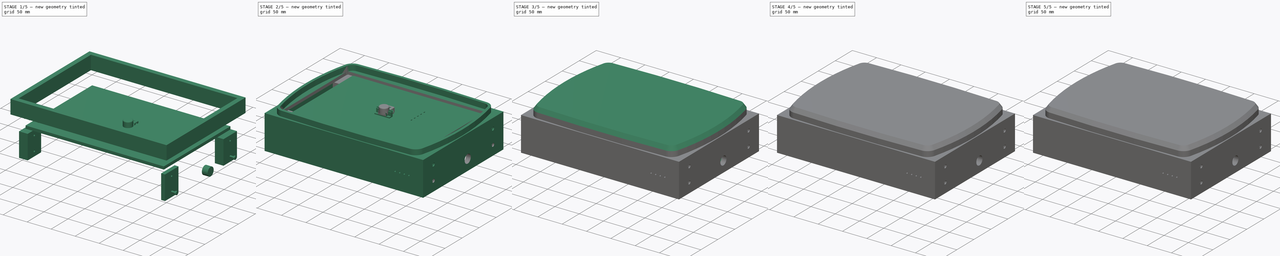
[diagram: build sequence overview — one tinted view per stage of 5, left to right]
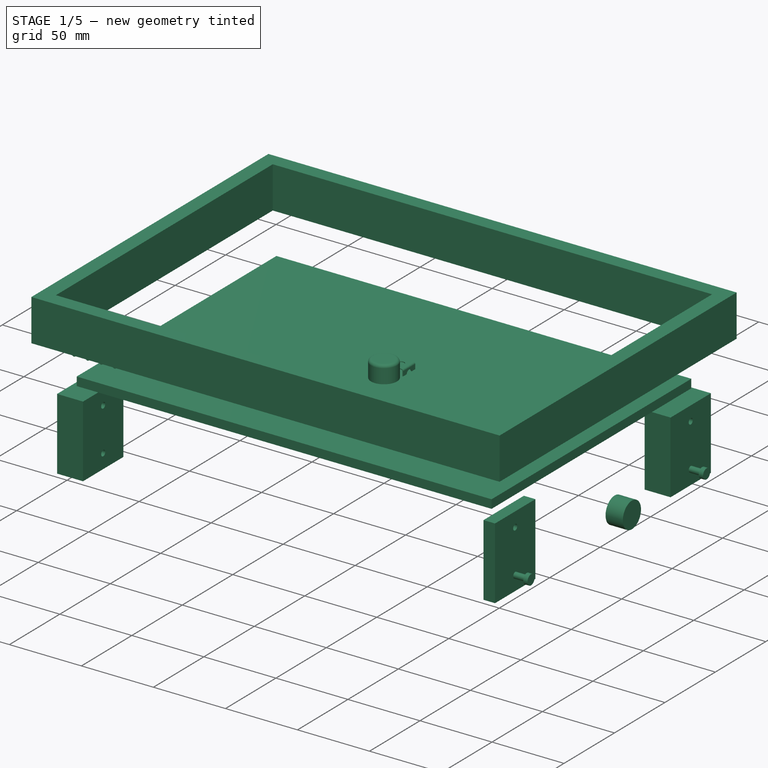
[diagram: stage 1 of 5 — iso view after this stage's code; geometry added in this stage tinted green]
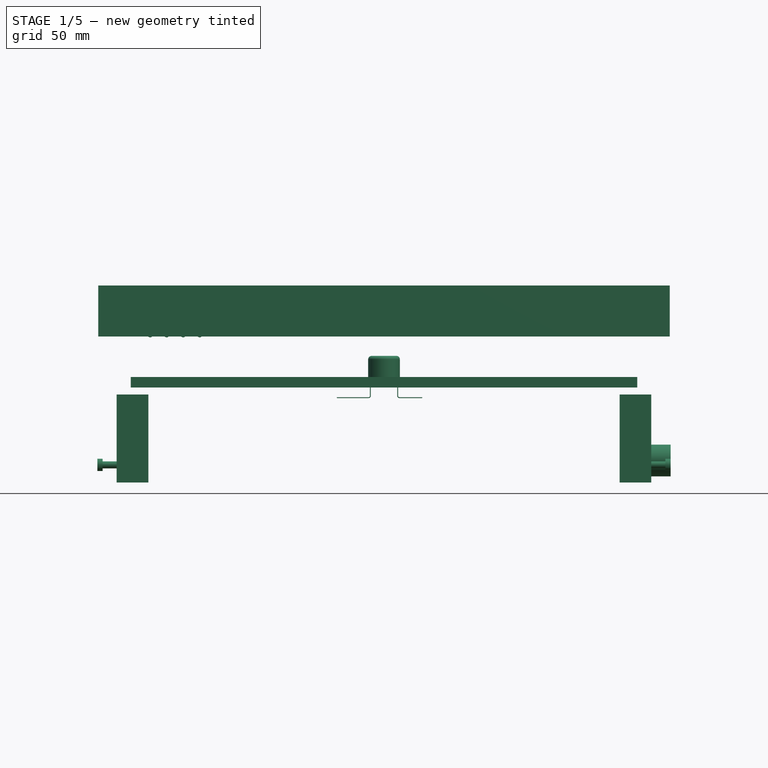
[diagram: stage 1 of 5 — front view after this stage's code; geometry added in this stage tinted green]
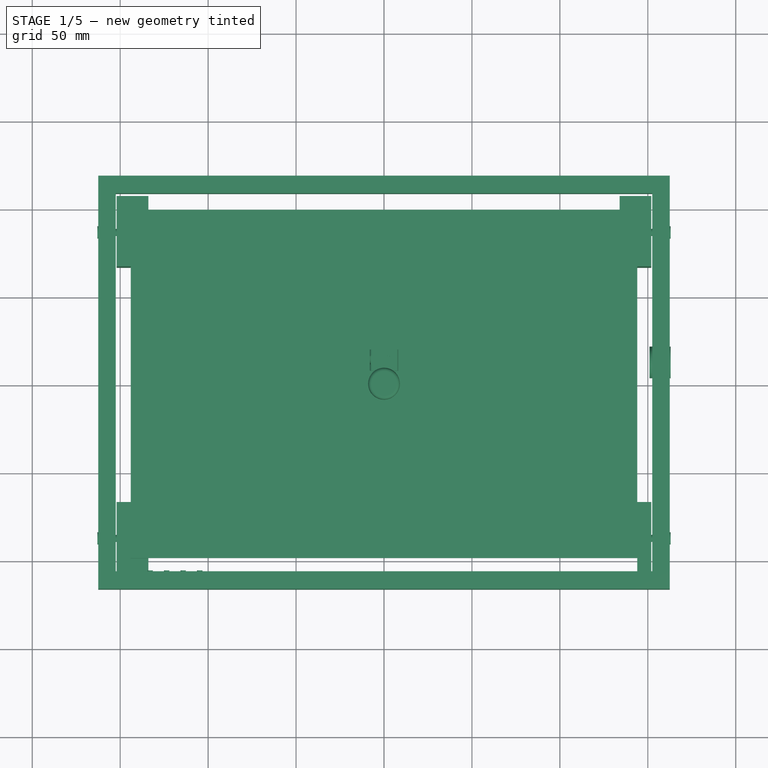
[diagram: stage 1 of 5 — top view after this stage's code; geometry added in this stage tinted green]
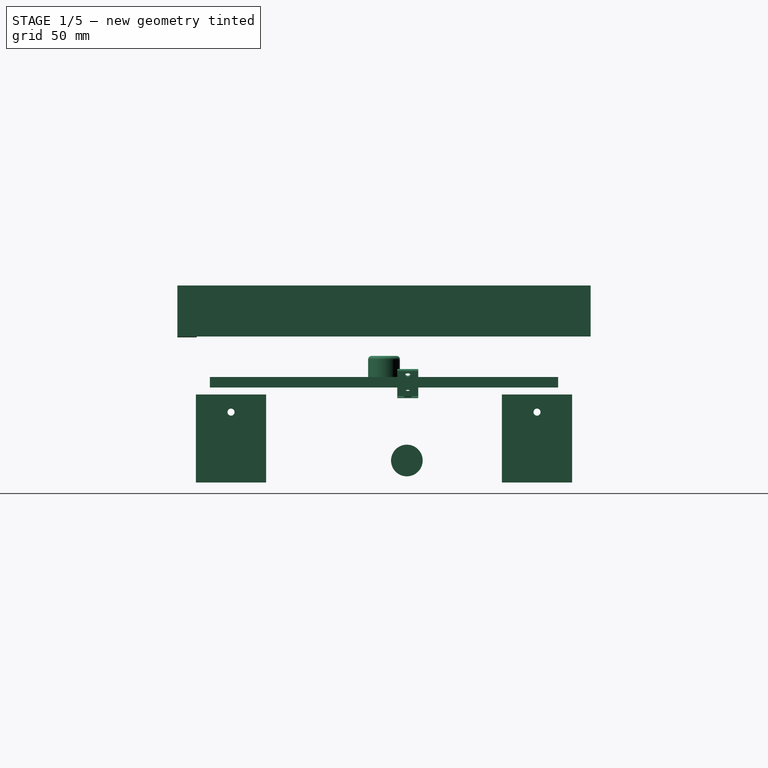
[diagram: stage 1 of 5 — right view after this stage's code; geometry added in this stage tinted green]
FCSTD DOCUMENT  (FreeCAD 0.17R13522 (Git))
Label: case
License: All rights reserved
LicenseURL: http://en.wikipedia.org/wiki/All_rights_reserved
objects: Drawing::FeatureViewPython×183, Sketcher::SketchObject×79, PartDesign::Pad×66, PartDesign::Body×45, Part::Cylinder×29, Part::FeaturePython×28, Part::Cut×27, Drawing::FeatureViewPart×25, Part::Box×16, App::Part×14, Image::ImagePlane×7, Drawing::FeaturePage×7, PartDesign::Fillet×5, Part::MultiFuse×4, PartDesign::Pocket×4, PartDesign::Revolution×4, Part::Loft×3, Part::Fillet×3, PartDesign::Chamfer×2, Part::Fuse×1, +1 more types
note: 391 computed .brp shape members not serialized (recipe doc carries the construction recipe); baked Part::Feature solids carry a one-line shape summary decoded from their .brp

FEATURE [Part::Box] Box005  label="CASE_2_frame_ui001"
  AttacherType = Attacher::AttachEngine3D
  Height = 6
  Length = 288
  Placement = pos=(-144,-99,0) rot=(0,0,1;0rad)
  Width = 198
FEATURE [Part::Box] Box006  label="CASE_2_frame_lo001"
  AttacherType = Attacher::AttachEngine3D
  Height = 29
  Length = 325
  Placement = pos=(-162.5,-117.5,0) rot=(0,0,1;0rad)
  Width = 235
FEATURE [Part::Box] Box007  label="CASE_2_frame_li001"
  AttacherType = Attacher::AttachEngine3D
  Height = 29
  Length = 305
  Placement = pos=(-152.5,-107.5,0) rot=(0,0,1;0rad)
  Width = 215
FEATURE [Part::Cut] Cut006  label="CASE_2_frame_l001"
  Base = -> Box006
  Placement = pos=(0,0,29) rot=(0,0,1;0rad)
  Tool = -> Box007
FEATURE [Part::Cylinder] Cylinder001  label="ROTARY_top"
  Angle = 360
  AttacherType = Attacher::AttachEngine3D
  Height = 10
  Radius = 3
FEATURE [Part::Cylinder] Cylinder010  label="GRILL_hole004"
  Angle = 360
  AttacherType = Attacher::AttachEngine3D
  Height = 11
  Placement = pos=(-30,-25,0) rot=(0,0,1;0rad)
  Radius = 1.5
FEATURE [Part::FeaturePython] Array007  label="BTN_holes"  # Draft array (typed FeaturePython)
  Angle = 0
  ArrayType = 0
  Axis = (0,0,1)
  Base = -> Cylinder010
  Center = (0,0,0)
  Fuse = false
  IntervalAxis = (0,0,0)
  IntervalX = (9.4,0,0)
  IntervalY = (0,0,0)
  IntervalZ = (0,0,0)
  NumberPolar = 0
  NumberX = 4
  NumberY = 1
  NumberZ = 1
  Placement = pos=(-103,-106.5,55) rot=(1,0,0;1.5708rad)
FEATURE [Part::Box] Box009  label="ROTARY_top_cutout"
  AttacherType = Attacher::AttachEngine3D
  Height = 7
  Length = 6
  Placement = pos=(1.4,-3,3) rot=(0,0,1;0rad)
  Width = 6
FEATURE [Part::Cut] Cut017  label="ROTARY_top_polished"
  Base = -> Cylinder001
  Tool = -> Box009
FEATURE [Part::Cylinder] Cylinder011  label="CASE_2_frame_cut"
  Angle = 360
  AttacherType = Attacher::AttachEngine3D
  Height = 12
  Placement = pos=(151,13,-41.5) rot=(0,1,0;1.5708rad)
  Radius = 9
FEATURE [PartDesign::Body] Body023  label="BUTTON_piston001"
  Group = -> [Sketch087,Revolution003]
  Origin = -> Origin106
  Tip = -> Revolution003
FEATURE [Part::Cylinder] Cylinder014  label="KNOB001"
  Angle = 360
  AttacherType = Attacher::AttachEngine3D
  Height = 12
  Placement = pos=(0,0,6) rot=(0,0,1;0rad)
  Radius = 9
FEATURE [Part::Cylinder] Cylinder016  label="KNOB_cut"
  Angle = 360
  AttacherType = Attacher::AttachEngine3D
  Height = 4
  Placement = pos=(0,0,6) rot=(0,0,1;0rad)
  Radius = 6
FEATURE [Part::Cylinder] Cylinder020  label="KNOB_cut002"
  Angle = 360
  AttacherType = Attacher::AttachEngine3D
  Height = 6
  Placement = pos=(0,0,10) rot=(0,0,1;0rad)
  Radius = 3.5
FEATURE [PartDesign::Body] Pad040Body  label="CASE_inner_cut"
  Group = -> [Sketch039,Pad118,Pocket004]
  Origin = -> Origin042
  Tip = -> Pocket004
FEATURE [App::Part] Part011  label="CASE_1"
  Group = -> [Pad040Body,Pad042Body,Cut001,Cut002,Loft,Loft002,Loft001,Cylinder,Sketch035,Sketch036,Sketch037,Sketch038,Sketch040,Sketch041,Body031]
  License = CC BY 3.0
  LicenseURL = http://creativecommons.org/licenses/by/3.0/
  Origin = -> Origin094
  Placement = pos=(0,0,-11) rot=(0,1,0;3.14159rad)
FEATURE [Part::Box] Box015  label="CASE_2_con"
  AttacherType = Attacher::AttachEngine3D
  Height = 50
  Length = 18
  Placement = pos=(-152,67,-54) rot=(0,0,1;0rad)
  Width = 40
FEATURE [Part::Cylinder] Cylinder023  label="CASE_2_con_cut"
  Angle = 360
  AttacherType = Attacher::AttachEngine3D
  Height = 18
  Placement = pos=(-152,87,-14) rot=(0,1,0;1.5708rad)
  Radius = 2
FEATURE [Part::Cylinder] Cylinder026  label="CASE_2_frame_cut004"
  Angle = 360
  AttacherType = Attacher::AttachEngine3D
  Height = 9
  Placement = pos=(3,0,0) rot=(0,1,0;1.5708rad)
  Radius = 2
FEATURE [Part::Cylinder] Cylinder027  label="CASE_2_frame_cut005"
  Angle = 360
  AttacherType = Attacher::AttachEngine3D
  Height = 3
  Placement = pos=(0,0,0) rot=(0,1,0;1.5708rad)
  Radius = 3.5
FEATURE [Part::MultiFuse] Fusion021  label="CASE_2_frame_cut006"
  Placement = pos=(-163,87,-14) rot=(0,0,1;0rad)
  Shapes = -> [Cylinder026,Cylinder027]
FEATURE [Part::FeaturePython] Array023  # Draft array (typed FeaturePython)
  Angle = 360
  ArrayType = 1
  Axis = (0,0,1)
  Base = -> Fusion021
  Center = (0,87,0)
  Fuse = false
  IntervalAxis = (0,0,0)
  IntervalX = (1,0,0)
  IntervalY = (0,1,0)
  IntervalZ = (0,0,0)
  NumberPolar = 2
  NumberX = 1
  NumberY = 1
  NumberZ = 1
FEATURE [Part::FeaturePython] Array024  # Draft array (typed FeaturePython)
  Angle = 360
  ArrayType = 0
  Axis = (0,0,1)
  Base = -> Array023
  Center = (0,0,0)
  Fuse = false
  IntervalAxis = (0,0,0)
  IntervalX = (1,0,0)
  IntervalY = (0,-174,0)
  IntervalZ = (0,0,0)
  NumberPolar = 1
  NumberX = 1
  NumberY = 2
  NumberZ = 1
  Placement = pos=(0,0,-30) rot=(0,0,1;0rad)
FEATURE [Part::FeaturePython] Array025  # Draft array (typed FeaturePython)
  Angle = 360
  ArrayType = 0
  Axis = (0,0,1)
  Base = -> Cylinder023
  Center = (0,0,0)
  Fuse = false
  IntervalAxis = (0,0,0)
  IntervalX = (1,0,0)
  IntervalY = (0,1,0)
  IntervalZ = (0,0,-30)
  NumberPolar = 1
  NumberX = 1
  NumberY = 1
  NumberZ = 2
FEATURE [Part::Cut] Cut026  label="CASE_2_con002"
  Base = -> Box015
  Tool = -> Array025
FEATURE [Part::Box] Box016  label="CASE_2_con004"
  AttacherType = Attacher::AttachEngine3D
  Height = 50
  Length = 18
  Placement = pos=(134,67,-54) rot=(0,0,1;0rad)
  Width = 40
FEATURE [Part::Cylinder] Cylinder028  label="CASE_2_con_cut001"
  Angle = 360
  AttacherType = Attacher::AttachEngine3D
  Height = 20
  Placement = pos=(134,87,-14) rot=(0,1,0;1.5708rad)
  Radius = 2
FEATURE [Part::FeaturePython] Array026  # Draft array (typed FeaturePython)
  Angle = 360
  ArrayType = 0
  Axis = (0,0,1)
  Base = -> Cylinder028
  Center = (0,0,0)
  Fuse = false
  IntervalAxis = (0,0,0)
  IntervalX = (1,0,0)
  IntervalY = (0,1,0)
  IntervalZ = (0,0,-30)
  NumberPolar = 1
  NumberX = 1
  NumberY = 1
  NumberZ = 2
FEATURE [Part::Cut] Cut027  label="CASE_2_con003"
  Base = -> Box016
  Tool = -> Array026
FEATURE [Part::Box] Box017  label="CASE_2_con006"
  AttacherType = Attacher::AttachEngine3D
  Height = 50
  Length = 8
  Placement = pos=(144,-107,-54) rot=(0,0,1;0rad)
  Width = 40
FEATURE [Part::Cylinder] Cylinder029  label="CASE_2_con_cut002"
  Angle = 360
  AttacherType = Attacher::AttachEngine3D
  Height = 8
  Placement = pos=(144,-87,-14) rot=(0,1,0;1.5708rad)
  Radius = 2
FEATURE [Part::FeaturePython] Array027  # Draft array (typed FeaturePython)
  Angle = 360
  ArrayType = 0
  Axis = (0,0,1)
  Base = -> Cylinder029
  Center = (0,0,0)
  Fuse = false
  IntervalAxis = (0,0,0)
  IntervalX = (1,0,0)
  IntervalY = (0,1,0)
  IntervalZ = (0,0,-30)
  NumberPolar = 1
  NumberX = 1
  NumberY = 1
  NumberZ = 2
FEATURE [Part::Cut] Cut028  label="CASE_2_con005"
  Base = -> Box017
  Tool = -> Array027
FEATURE [Part::FeaturePython] Array028  label="CASE_2_con007"  # Draft array (typed FeaturePython)
  Angle = 360
  ArrayType = 0
  Axis = (0,0,1)
  Base = -> Cut026
  Center = (0,0,0)
  Fuse = false
  IntervalAxis = (0,0,0)
  IntervalX = (1,0,0)
  IntervalY = (0,-174,0)
  IntervalZ = (0,0,0)
  NumberPolar = 1
  NumberX = 1
  NumberY = 2
  NumberZ = 1
FEATURE [App::Part] Part  label="CASE_2"
  Group = -> [Body003,Box,Box002,Box003,Box001,Cut004,Cut003,Fusion017,Box007,Box004,Box005,Box006,Cut005,Cut006,Fusion018,Cylinder010,Array007,Cut014,Box014,Cylinder008,Cylinder009,Array006,Array005,Cut012,Cut013,Array003,Box013,Cylinder006,Cylinder005,Array004,Cut010,Cut011,Part002,Body016,Body017,Cylinder011,Cut019,Cylinder024,Cylinder025,Fusion,Array021,Array022,Cut,Array023,Fusion021,Cylinder026,+16 more]
  License = CC BY 3.0
  LicenseURL = http://creativecommons.org/licenses/by/3.0/
  Origin = -> Origin
FEATURE [Part::Cut] Cut029
  Base = -> Cylinder014
  Tool = -> Cylinder016
FEATURE [Part::Cut] Cut030
  Base = -> Cut029
  Tool = -> Cylinder020
FEATURE [Part::Fillet] Fillet015  label="KNOB004"
  Base = -> Cut030
  Edges = 1 edges r=2: [Edge1]
FEATURE [App::Part] Part012  label="BUTTON"
  Group = -> [Body019,Cylinder012,Body020,Body021,Array016,Body022,Cylinder014,Cylinder016,Cylinder018,Cylinder020,Cut029,Cut030,Fillet015]
  License = CC BY 3.0
  LicenseURL = http://creativecommons.org/licenses/by/3.0/
  Origin = -> Origin102
FEATURE [App::Part] Part009  label="BUTTONS"
  Group = -> [Part012,Part013]
  License = CC BY 3.0
  LicenseURL = http://creativecommons.org/licenses/by/3.0/
  Origin = -> Origin092
  Placement = pos=(21.5,-78,-5.5) rot=(0,0,1;0rad)
FEATURE [Drawing::FeatureViewPart] View  label="Back_board"
  Direction = (0,0,1)
  HiddenWidth = 0.15
  LineWidth = 0.35
  Rotation = 90
  Scale = 0.5
  ShowHiddenLines = false
  ShowSmoothLines = false
  Source = -> Sketch045
  Tolerance = 0.05
  ViewResult = <g id="Back_board"\n   transform="rotate(90,110,110) translate(110,110) scale(0.5,0.5)"\n  >\n<g   fill="none"\n   stroke="rgb(0, 0, 0)"\n   stroke-linecap="butt"\n   stroke-linejoin="miter"\n   stroke-width="0.700000"\n   transform="scale(1,-1)"\n  >\n<path id= "1" d=" M 150 105 L -150 105 " />\n<path id= "2" d=" M -150 105 L -150 -105 " />\n<path id= "3" d=" M -150 -105 L 150 -105 " />\n<path id= "4" d=" M 150 -105 L 150 105 " />\n<path id= "5" d=" M 40 -35 L -40 -35 " />\n<path id= "6" d=" M -40 -35 L -40 -85 " />\n<path id= "7" d=" M -40 -85 L 40 -85 " />\n<path id= "8" d=" M 40 -85 L 40 -35 " />\n<circle cx ="-81" cy ="17" r ="1.5" /><circle cx ="-139" cy ="17" r ="1.5" /><circle cx ="-81" cy ="-32" r ="1.5" /><circle cx ="-139" cy ="-32" r ="1.5" /><circle cx ="140" cy ="-1" r ="1.5" /><circle cx ="86" cy ="-1" r ="1.5" /><circle cx ="140" cy ="-95" r ="1.5" /><circle cx ="86" cy ="-95" r ="1.5" /><path id= "17" d=" M -85 12.5 L -135 12.5 " />\n<path id= "18" d=" M -135 12.5 L -135 -27.5 " />\n<path id= "19" d=" M -135 -27.5 L -85 -27.5 " />\n<path id= "20" d=" M -85 -27.5 L -85 12.5 " />\n<circle cx ="34.5" cy ="-29.3" r ="1.5" /><circle cx ="4.7" cy ="10.5" r ="1.5" /><circle cx ="-15" cy ="-21.5" r ="2" /><circle cx ="-50.5" cy ="-21.5" r ="2" /><path id= "25" d=" M 30.6 8 L 8.6 8 " />\n<path id= "26" d=" M 8.6 8 L 8.6 -27 " />\n<path id= "27" d=" M 8.6 -27 L 30.6 -27 " />\n<path id= "28" d=" M 30.6 -27 L 30.6 8 " />\n</g>\n</g>
  Visible = true
  X = 110
  Y = 110
FEATURE [Drawing::FeatureViewPython] dimStack002  # drawing view (typed FeaturePython)
  Rotation = 0
  ViewResult = <g> <line x1="57.500000" y1="187.000000" x2="57.500000" y2="193.129237" style="stroke:rgb(0,0,255);stroke-width:0.20" />\n<line x1="67.500000" y1="132.000000" x2="67.500000" y2="193.129237" style="stroke:rgb(0,0,255);stroke-width:0.20" />\n<line x1="57.500000" y1="193.129237" x2="67.500000" y2="193.129237" style="stroke:rgb(0,0,255);stroke-width:0.20" />\n<polygon points="57.500000,193.129237 59.000000,193.629237 59.500000,193.129237 59.000000,192.629237" style="fill:rgb(0,0,255);stroke:rgb(0,0,255);stroke-width:0" />\n<polygon points="67.500000,193.129237 66.000000,192.629237 65.500000,193.129237 66.000000,193.629237" style="fill:rgb(0,0,255);stroke:rgb(0,0,255);stroke-width:0" />\n<text x="62.500000" y="191.129237" font-family="Verdana" font-size="2" fill="rgb(0,0,255)" text-anchor="middle" transform="rotate(0.000000 62.500000,191.129237)" >20</text> </g> 
  Visible = true
  X = 0
  Y = 0
  arrowL1 = 1.5
  arrowL2 = 0.5
  arrowW = 1
  arrow_scheme = 0
  autoPlaceOffset = 2
  click1_x = 68.2463
  click1_y = 193.129
  comma_decimal_place = false
  dimension_line_overshoot = 0
  gap_datum_points = 2
  lineColor = rgb(0,0,255)
  stack_offset = 7
  stack_offset0 = 0
  strokeWidth = 0.2
  textFormat_linear = %(value)3.3f
  textRenderer_color = rgb(0,0,255)
  textRenderer_family = Verdana
  textRenderer_size = 2
  unit_custom_scale = 1
  unit_scheme = 0
FEATURE [Drawing::FeatureViewPython] dimStack003  # drawing view (typed FeaturePython)
  Rotation = 0
  ViewResult = <g> <line x1="57.500000" y1="187.000000" x2="57.500000" y2="194.227453" style="stroke:rgb(0,0,255);stroke-width:0.20" />\n<line x1="92.500000" y1="132.000000" x2="92.500000" y2="194.227453" style="stroke:rgb(0,0,255);stroke-width:0.20" />\n<line x1="57.500000" y1="194.227453" x2="92.500000" y2="194.227453" style="stroke:rgb(0,0,255);stroke-width:0.20" />\n<polygon points="57.500000,194.227453 59.000000,194.727453 59.500000,194.227453 59.000000,193.727453" style="fill:rgb(0,0,255);stroke:rgb(0,0,255);stroke-width:0" />\n<polygon points="92.500000,194.227453 91.000000,193.727453 90.500000,194.227453 91.000000,194.727453" style="fill:rgb(0,0,255);stroke:rgb(0,0,255);stroke-width:0" />\n<text x="75.000000" y="192.227453" font-family="Verdana" font-size="2" fill="rgb(0,0,255)" text-anchor="middle" transform="rotate(0.000000 75.000000,192.227453)" >70</text> </g> 
  Visible = true
  X = 0
  Y = 0
  arrowL1 = 1.5
  arrowL2 = 0.5
  arrowW = 1
  arrow_scheme = 0
  autoPlaceOffset = 2
  click1_x = 81.5818
  click1_y = 194.227
  comma_decimal_place = false
  dimension_line_overshoot = 0
  gap_datum_points = 2
  lineColor = rgb(0,0,255)
  stack_offset = 7
  stack_offset0 = 0
  strokeWidth = 0.2
  textFormat_linear = %(value)3.3f
  textRenderer_color = rgb(0,0,255)
  textRenderer_family = Verdana
  textRenderer_size = 2
  unit_custom_scale = 1
  unit_scheme = 0
FEATURE [Drawing::FeatureViewPython] dimStack004  # drawing view (typed FeaturePython)
  Rotation = 0
  ViewResult = <g> <line x1="57.500000" y1="187.000000" x2="57.500000" y2="198.480321" style="stroke:rgb(0,0,255);stroke-width:0.20" />\n<line x1="95.350000" y1="129.250001" x2="95.350000" y2="198.480321" style="stroke:rgb(0,0,255);stroke-width:0.20" />\n<line x1="57.500000" y1="198.480321" x2="95.350000" y2="198.480321" style="stroke:rgb(0,0,255);stroke-width:0.20" />\n<polygon points="57.500000,198.480321 59.000000,198.980321 59.500000,198.480321 59.000000,197.980321" style="fill:rgb(0,0,255);stroke:rgb(0,0,255);stroke-width:0" />\n<polygon points="95.350000,198.480321 93.850000,197.980321 93.350000,198.480321 93.850000,198.980321" style="fill:rgb(0,0,255);stroke:rgb(0,0,255);stroke-width:0" />\n<text x="76.425000" y="196.480321" font-family="Verdana" font-size="2" fill="rgb(0,0,255)" text-anchor="middle" transform="rotate(0.000000 76.425000,196.480321)" >75.7</text> </g> 
  Visible = true
  X = 0
  Y = 0
  arrowL1 = 1.5
  arrowL2 = 0.5
  arrowW = 1
  arrow_scheme = 0
  autoPlaceOffset = 2
  click1_x = 95.2805
  click1_y = 198.48
  comma_decimal_place = false
  dimension_line_overshoot = 0
  gap_datum_points = 2
  lineColor = rgb(0,0,255)
  stack_offset = 7
  stack_offset0 = 0
  strokeWidth = 0.2
  textFormat_linear = %(value)3.3f
  textRenderer_color = rgb(0,0,255)
  textRenderer_family = Verdana
  textRenderer_size = 2
  unit_custom_scale = 1
  unit_scheme = 0
FEATURE [Drawing::FeatureViewPython] dimStack005  # drawing view (typed FeaturePython)
  Rotation = 0
  ViewResult = <g> <line x1="57.500000" y1="187.000000" x2="57.500000" y2="202.687510" style="stroke:rgb(0,0,255);stroke-width:0.20" />\n<line x1="96.500000" y1="127.300000" x2="96.500000" y2="202.687510" style="stroke:rgb(0,0,255);stroke-width:0.20" />\n<line x1="57.500000" y1="202.687510" x2="96.500000" y2="202.687510" style="stroke:rgb(0,0,255);stroke-width:0.20" />\n<polygon points="57.500000,202.687510 59.000000,203.187510 59.500000,202.687510 59.000000,202.187510" style="fill:rgb(0,0,255);stroke:rgb(0,0,255);stroke-width:0" />\n<polygon points="96.500000,202.687510 95.000000,202.187510 94.500000,202.687510 95.000000,203.187510" style="fill:rgb(0,0,255);stroke:rgb(0,0,255);stroke-width:0" />\n<text x="77.000000" y="200.687510" font-family="Verdana" font-size="2" fill="rgb(0,0,255)" text-anchor="middle" transform="rotate(0.000000 77.000000,200.687510)" >78</text> </g> 
  Visible = true
  X = 0
  Y = 0
  arrowL1 = 1.5
  arrowL2 = 0.5
  arrowW = 1
  arrow_scheme = 0
  autoPlaceOffset = 2
  click1_x = 98.7452
  click1_y = 202.688
  comma_decimal_place = false
  dimension_line_overshoot = 0
  gap_datum_points = 2
  lineColor = rgb(0,0,255)
  stack_offset = 7
  stack_offset0 = 0
  strokeWidth = 0.2
  textFormat_linear = %(value)3.3f
  textRenderer_color = rgb(0,0,255)
  textRenderer_family = Verdana
  textRenderer_size = 2
  unit_custom_scale = 1
  unit_scheme = 0
FEATURE [Drawing::FeatureViewPython] dimStack006  # drawing view (typed FeaturePython)
  Rotation = 0
  ViewResult = <g> <line x1="57.500000" y1="187.000000" x2="57.500000" y2="206.715745" style="stroke:rgb(0,0,255);stroke-width:0.20" />\n<line x1="109.500000" y1="182.000001" x2="109.500000" y2="206.715745" style="stroke:rgb(0,0,255);stroke-width:0.20" />\n<line x1="57.500000" y1="206.715745" x2="109.500000" y2="206.715745" style="stroke:rgb(0,0,255);stroke-width:0.20" />\n<polygon points="57.500000,206.715745 59.000000,207.215745 59.500000,206.715745 59.000000,206.215745" style="fill:rgb(0,0,255);stroke:rgb(0,0,255);stroke-width:0" />\n<polygon points="109.500000,206.715745 108.000000,206.215745 107.500000,206.715745 108.000000,207.215745" style="fill:rgb(0,0,255);stroke:rgb(0,0,255);stroke-width:0" />\n<text x="83.500000" y="204.715745" font-family="Verdana" font-size="2" fill="rgb(0,0,255)" text-anchor="middle" transform="rotate(0.000000 83.500000,204.715745)" >104</text> </g> 
  Visible = true
  X = 0
  Y = 0
  arrowL1 = 1.5
  arrowL2 = 0.5
  arrowW = 1
  arrow_scheme = 0
  autoPlaceOffset = 2
  click1_x = 115.595
  click1_y = 206.716
  comma_decimal_place = false
  dimension_line_overshoot = 0
  gap_datum_points = 2
  lineColor = rgb(0,0,255)
  stack_offset = 7
  stack_offset0 = 0
  strokeWidth = 0.2
  textFormat_linear = %(value)3.3f
  textRenderer_color = rgb(0,0,255)
  textRenderer_family = Verdana
  textRenderer_size = 2
  unit_custom_scale = 1
  unit_scheme = 0
FEATURE [Drawing::FeatureViewPython] dimStack008  # drawing view (typed FeaturePython)
  Rotation = 0
  ViewResult = <g> <line x1="57.500000" y1="187.000000" x2="57.500000" y2="215.198161" style="stroke:rgb(0,0,255);stroke-width:0.20" />\n<line x1="115.250000" y1="114.350001" x2="115.250000" y2="215.198161" style="stroke:rgb(0,0,255);stroke-width:0.20" />\n<line x1="57.500000" y1="215.198161" x2="115.250000" y2="215.198161" style="stroke:rgb(0,0,255);stroke-width:0.20" />\n<polygon points="57.500000,215.198161 59.000000,215.698161 59.500000,215.198161 59.000000,214.698161" style="fill:rgb(0,0,255);stroke:rgb(0,0,255);stroke-width:0" />\n<polygon points="115.250000,215.198161 113.750000,214.698161 113.250000,215.198161 113.750000,215.698161" style="fill:rgb(0,0,255);stroke:rgb(0,0,255);stroke-width:0" />\n<text x="86.375000" y="213.198161" font-family="Verdana" font-size="2" fill="rgb(0,0,255)" text-anchor="middle" transform="rotate(0.000000 86.375000,213.198161)" >115.5</text> </g> 
  Visible = true
  X = 0
  Y = 0
  arrowL1 = 1.5
  arrowL2 = 0.5
  arrowW = 1
  arrow_scheme = 0
  autoPlaceOffset = 2
  click1_x = 116.751
  click1_y = 215.198
  comma_decimal_place = false
  dimension_line_overshoot = 0
  gap_datum_points = 2
  lineColor = rgb(0,0,255)
  stack_offset = 7
  stack_offset0 = 0
  strokeWidth = 0.2
  textFormat_linear = %(value)3.3f
  textRenderer_color = rgb(0,0,255)
  textRenderer_family = Verdana
  textRenderer_size = 2
  unit_custom_scale = 1
  unit_scheme = 0
FEATURE [Drawing::FeatureViewPython] dim001  # drawing view (typed FeaturePython)
  Rotation = 0
  ViewResult = <g> \n  <line x1="57.500000" y1="187.000000" x2="57.500000" y2="219.466769" style="stroke:rgb(0,0,255);stroke-width:0.20" />\n<line x1="162.500000" y1="187.000000" x2="162.500000" y2="219.466769" style="stroke:rgb(0,0,255);stroke-width:0.20" />\n<line x1="57.500000" y1="219.466769" x2="162.500000" y2="219.466769" style="stroke:rgb(0,0,255);stroke-width:0.20" /> \n  <polygon points="162.500000,219.466769 161.000000,218.966769 160.500000,219.466769 161.000000,219.966769" style="fill:rgb(0,0,255);stroke:rgb(0,0,255);stroke-width:0" /><polygon points="57.500000,219.466769 59.000000,219.966769 59.500000,219.466769 59.000000,218.966769" style="fill:rgb(0,0,255);stroke:rgb(0,0,255);stroke-width:0" /> \n  <text x="110.000000" y="217.466769" font-family="Verdana" font-size="2" fill="rgb(0,0,255)" text-anchor="middle" transform="rotate(0.000000 110.000000,217.466769)" >210</text> </g>
  Visible = true
  X = 0
  Y = 0
  arrowL1 = 1.5
  arrowL2 = 0.5
  arrowW = 1
  arrow_scheme = 0
  autoPlaceOffset = 2
  autoPlaceText = true
  click1_x = 133.046
  click1_y = 219.467
  click2_x = 133.046
  click2_y = 219.467
  comma_decimal_place = false
  dimension_line_overshoot = 0
  gap_datum_points = 2
  halfDimension_linear = false
  lineColor = rgb(0,0,255)
  strokeWidth = 0.2
  textFormat_linear = %(value)3.3f
  textRenderer_color = rgb(0,0,255)
  textRenderer_family = Verdana
  textRenderer_size = 2
  unit_custom_scale = 1
  unit_scheme = 0
FEATURE [Drawing::FeatureViewPython] dimStack010  # drawing view (typed FeaturePython)
  Rotation = 0
  ViewResult = <g> <line x1="57.500000" y1="33.000000" x2="57.500000" y2="29.916648" style="stroke:rgb(0,0,255);stroke-width:0.20" />\n<line x1="96.250000" y1="40.500000" x2="96.250000" y2="29.916648" style="stroke:rgb(0,0,255);stroke-width:0.20" />\n<line x1="57.500000" y1="29.916648" x2="96.250000" y2="29.916648" style="stroke:rgb(0,0,255);stroke-width:0.20" />\n<polygon points="57.500000,29.916648 59.000000,30.416648 59.500000,29.916648 59.000000,29.416648" style="fill:rgb(0,0,255);stroke:rgb(0,0,255);stroke-width:0" />\n<polygon points="96.250000,29.916648 94.750000,29.416648 94.250000,29.916648 94.750000,30.416648" style="fill:rgb(0,0,255);stroke:rgb(0,0,255);stroke-width:0" />\n<text x="76.875000" y="27.916648" font-family="Verdana" font-size="2" fill="rgb(0,0,255)" text-anchor="middle" transform="rotate(0.000000 76.875000,27.916648)" >77.5</text> </g> 
  Visible = true
  X = 0
  Y = 0
  arrowL1 = 1.5
  arrowL2 = 0.5
  arrowW = 1
  arrow_scheme = 0
  autoPlaceOffset = 2
  click1_x = 95.7555
  click1_y = 29.9166
  comma_decimal_place = false
  dimension_line_overshoot = 0
  gap_datum_points = 2
  lineColor = rgb(0,0,255)
  stack_offset = 7
  stack_offset0 = 0
  strokeWidth = 0.2
  textFormat_linear = %(value)3.3f
  textRenderer_color = rgb(0,0,255)
  textRenderer_family = Verdana
  textRenderer_size = 2
  unit_custom_scale = 1
  unit_scheme = 0
FEATURE [Drawing::FeatureViewPython] dimStack012  # drawing view (typed FeaturePython)
  Rotation = 0
  ViewResult = <g> <line x1="57.500000" y1="33.000000" x2="57.500000" y2="21.139615" style="stroke:rgb(0,0,255);stroke-width:0.20" />\n<line x1="116.250000" y1="40.500000" x2="116.250000" y2="21.139615" style="stroke:rgb(0,0,255);stroke-width:0.20" />\n<line x1="57.500000" y1="21.139615" x2="116.250000" y2="21.139615" style="stroke:rgb(0,0,255);stroke-width:0.20" />\n<polygon points="57.500000,21.139615 59.000000,21.639615 59.500000,21.139615 59.000000,20.639615" style="fill:rgb(0,0,255);stroke:rgb(0,0,255);stroke-width:0" />\n<polygon points="116.250000,21.139615 114.750000,20.639615 114.250000,21.139615 114.750000,21.639615" style="fill:rgb(0,0,255);stroke:rgb(0,0,255);stroke-width:0" />\n<text x="86.875000" y="19.139615" font-family="Verdana" font-size="2" fill="rgb(0,0,255)" text-anchor="middle" transform="rotate(0.000000 86.875000,19.139615)" >117.5</text> </g> 
  Visible = true
  X = 0
  Y = 0
  arrowL1 = 1.5
  arrowL2 = 0.5
  arrowW = 1
  arrow_scheme = 0
  autoPlaceOffset = 2
  click1_x = 113.577
  click1_y = 21.1396
  comma_decimal_place = false
  dimension_line_overshoot = 0
  gap_datum_points = 2
  lineColor = rgb(0,0,255)
  stack_offset = 7
  stack_offset0 = 0
  strokeWidth = 0.2
  textFormat_linear = %(value)3.3f
  textRenderer_color = rgb(0,0,255)
  textRenderer_family = Verdana
  textRenderer_size = 2
  unit_custom_scale = 1
  unit_scheme = 0
FEATURE [Drawing::FeatureViewPython] dimStack013  # drawing view (typed FeaturePython)
  Rotation = 0
  ViewResult = <g> <line x1="57.500000" y1="33.000000" x2="57.500000" y2="17.135900" style="stroke:rgb(0,0,255);stroke-width:0.20" />\n<line x1="118.500000" y1="38.499999" x2="118.500000" y2="17.135900" style="stroke:rgb(0,0,255);stroke-width:0.20" />\n<line x1="57.500000" y1="17.135900" x2="118.500000" y2="17.135900" style="stroke:rgb(0,0,255);stroke-width:0.20" />\n<polygon points="57.500000,17.135900 59.000000,17.635900 59.500000,17.135900 59.000000,16.635900" style="fill:rgb(0,0,255);stroke:rgb(0,0,255);stroke-width:0" />\n<polygon points="118.500000,17.135900 117.000000,16.635900 116.500000,17.135900 117.000000,17.635900" style="fill:rgb(0,0,255);stroke:rgb(0,0,255);stroke-width:0" />\n<text x="88.000000" y="15.135900" font-family="Verdana" font-size="2" fill="rgb(0,0,255)" text-anchor="middle" transform="rotate(0.000000 88.000000,15.135900)" >122</text> </g> 
  Visible = true
  X = 0
  Y = 0
  arrowL1 = 1.5
  arrowL2 = 0.5
  arrowW = 1
  arrow_scheme = 0
  autoPlaceOffset = 2
  click1_x = 124.596
  click1_y = 17.1359
  comma_decimal_place = false
  dimension_line_overshoot = 0
  gap_datum_points = 2
  lineColor = rgb(0,0,255)
  stack_offset = 7
  stack_offset0 = 0
  strokeWidth = 0.2
  textFormat_linear = %(value)3.3f
  textRenderer_color = rgb(0,0,255)
  textRenderer_family = Verdana
  textRenderer_size = 2
  unit_custom_scale = 1
  unit_scheme = 0
FEATURE [Drawing::FeatureViewPython] dimStack014  # drawing view (typed FeaturePython)
  Rotation = 0
  ViewResult = <g> <line x1="55.500000" y1="185.000000" x2="56.529648" y2="185.000000" style="stroke:rgb(0,0,255);stroke-width:0.20" />\n<line x1="60.499999" y1="180.000000" x2="56.529648" y2="180.000000" style="stroke:rgb(0,0,255);stroke-width:0.20" />\n<line x1="56.529648" y1="185.000000" x2="56.529648" y2="180.000000" style="stroke:rgb(0,0,255);stroke-width:0.20" />\n<polygon points="56.529648,185.000000 56.029648,186.500000 56.529648,187.000000 57.029648,186.500000" style="fill:rgb(0,0,255);stroke:rgb(0,0,255);stroke-width:0" />\n<polygon points="56.529648,180.000000 57.029648,178.500000 56.529648,178.000000 56.029648,178.500000" style="fill:rgb(0,0,255);stroke:rgb(0,0,255);stroke-width:0" />\n<text x="54.529648" y="182.500000" font-family="Verdana" font-size="2" fill="rgb(0,0,255)" text-anchor="middle" transform="rotate(-90.000000 54.529648,182.500000)" >10</text> </g> 
  Visible = true
  X = 0
  Y = 0
  arrowL1 = 1.5
  arrowL2 = 0.5
  arrowW = 1
  arrow_scheme = 0
  autoPlaceOffset = 2
  click1_x = 56.5296
  click1_y = 179.94
  comma_decimal_place = false
  dimension_line_overshoot = 0
  gap_datum_points = 2
  lineColor = rgb(0,0,255)
  stack_offset = 7
  stack_offset0 = 0
  strokeWidth = 0.2
  textFormat_linear = %(value)3.3f
  textRenderer_color = rgb(0,0,255)
  textRenderer_family = Verdana
  textRenderer_size = 2
  unit_custom_scale = 1
  unit_scheme = 0
FEATURE [Drawing::FeatureViewPython] dimStack016  # drawing view (typed FeaturePython)
  Rotation = 0
  ViewResult = <g> <line x1="55.500000" y1="185.000000" x2="48.578408" y2="185.000000" style="stroke:rgb(0,0,255);stroke-width:0.20" />\n<line x1="65.500000" y1="130.000000" x2="48.578408" y2="130.000000" style="stroke:rgb(0,0,255);stroke-width:0.20" />\n<line x1="48.578408" y1="185.000000" x2="48.578408" y2="130.000000" style="stroke:rgb(0,0,255);stroke-width:0.20" />\n<polygon points="48.578408,185.000000 49.078408,183.500000 48.578408,183.000000 48.078408,183.500000" style="fill:rgb(0,0,255);stroke:rgb(0,0,255);stroke-width:0" />\n<polygon points="48.578408,130.000000 48.078408,131.500000 48.578408,132.000000 49.078408,131.500000" style="fill:rgb(0,0,255);stroke:rgb(0,0,255);stroke-width:0" />\n<text x="46.578408" y="157.500000" font-family="Verdana" font-size="2" fill="rgb(0,0,255)" text-anchor="middle" transform="rotate(-90.000000 46.578408,157.500000)" >110</text> </g> 
  Visible = true
  X = 0
  Y = 0
  arrowL1 = 1.5
  arrowL2 = 0.5
  arrowW = 1
  arrow_scheme = 0
  autoPlaceOffset = 2
  click1_x = 48.5784
  click1_y = 132.656
  comma_decimal_place = false
  dimension_line_overshoot = 0
  gap_datum_points = 2
  lineColor = rgb(0,0,255)
  stack_offset = 7
  stack_offset0 = 0
  strokeWidth = 0.2
  textFormat_linear = %(value)3.3f
  textRenderer_color = rgb(0,0,255)
  textRenderer_family = Verdana
  textRenderer_size = 2
  unit_custom_scale = 1
  unit_scheme = 0
FEATURE [Drawing::FeatureViewPython] dimStack020  # drawing view (typed FeaturePython)
  Rotation = 0
  ViewResult = <g> <line x1="164.500000" y1="185.000000" x2="175.574347" y2="185.000000" style="stroke:rgb(0,0,255);stroke-width:0.20" />\n<line x1="120.500001" y1="69.500000" x2="175.574347" y2="69.500000" style="stroke:rgb(0,0,255);stroke-width:0.20" />\n<line x1="175.574347" y1="185.000000" x2="175.574347" y2="69.500000" style="stroke:rgb(0,0,255);stroke-width:0.20" />\n<polygon points="175.574347,185.000000 176.074347,183.500000 175.574347,183.000000 175.074347,183.500000" style="fill:rgb(0,0,255);stroke:rgb(0,0,255);stroke-width:0" />\n<polygon points="175.574347,69.500000 175.074347,71.000000 175.574347,71.500000 176.074347,71.000000" style="fill:rgb(0,0,255);stroke:rgb(0,0,255);stroke-width:0" />\n<text x="173.574347" y="127.250000" font-family="Verdana" font-size="2" fill="rgb(0,0,255)" text-anchor="middle" transform="rotate(-90.000000 173.574347,127.250000)" >231</text> </g> 
  Visible = true
  X = 0
  Y = 0
  arrowL1 = 1.5
  arrowL2 = 0.5
  arrowW = 1
  arrow_scheme = 0
  autoPlaceOffset = 2
  click1_x = 175.574
  click1_y = 82.1031
  comma_decimal_place = false
  dimension_line_overshoot = 0
  gap_datum_points = 2
  lineColor = rgb(0,0,255)
  stack_offset = 7
  stack_offset0 = 0
  strokeWidth = 0.2
  textFormat_linear = %(value)3.3f
  textRenderer_color = rgb(0,0,255)
  textRenderer_family = Verdana
  textRenderer_size = 2
  unit_custom_scale = 1
  unit_scheme = 0
FEATURE [Drawing::FeatureViewPython] dimStack021  # drawing view (typed FeaturePython)
  Rotation = 0
  ViewResult = <g> <line x1="164.500000" y1="185.000000" x2="180.432380" y2="185.000000" style="stroke:rgb(0,0,255);stroke-width:0.20" />\n<line x1="118.250000" y1="67.500000" x2="180.432380" y2="67.500000" style="stroke:rgb(0,0,255);stroke-width:0.20" />\n<line x1="180.432380" y1="185.000000" x2="180.432380" y2="67.500000" style="stroke:rgb(0,0,255);stroke-width:0.20" />\n<polygon points="180.432380,185.000000 180.932380,183.500000 180.432380,183.000000 179.932380,183.500000" style="fill:rgb(0,0,255);stroke:rgb(0,0,255);stroke-width:0" />\n<polygon points="180.432380,67.500000 179.932380,69.000000 180.432380,69.500000 180.932380,69.000000" style="fill:rgb(0,0,255);stroke:rgb(0,0,255);stroke-width:0" />\n<text x="178.432380" y="126.250000" font-family="Verdana" font-size="2" fill="rgb(0,0,255)" text-anchor="middle" transform="rotate(-90.000000 178.432380,126.250000)" >235</text> </g> 
  Visible = true
  X = 0
  Y = 0
  arrowL1 = 1.5
  arrowL2 = 0.5
  arrowW = 1
  arrow_scheme = 0
  autoPlaceOffset = 2
  click1_x = 180.432
  click1_y = 84.4047
  comma_decimal_place = false
  dimension_line_overshoot = 0
  gap_datum_points = 2
  lineColor = rgb(0,0,255)
  stack_offset = 7
  stack_offset0 = 0
  strokeWidth = 0.2
  textFormat_linear = %(value)3.3f
  textRenderer_color = rgb(0,0,255)
  textRenderer_family = Verdana
  textRenderer_size = 2
  unit_custom_scale = 1
  unit_scheme = 0
FEATURE [Drawing::FeatureViewPython] dimStack022  # drawing view (typed FeaturePython)
  Rotation = 0
  ViewResult = <g> <line x1="164.500000" y1="185.000000" x2="184.860168" y2="185.000000" style="stroke:rgb(0,0,255);stroke-width:0.20" />\n<line x1="118.250000" y1="42.500000" x2="184.860168" y2="42.500000" style="stroke:rgb(0,0,255);stroke-width:0.20" />\n<line x1="184.860168" y1="185.000000" x2="184.860168" y2="42.500000" style="stroke:rgb(0,0,255);stroke-width:0.20" />\n<polygon points="184.860168,185.000000 185.360168,183.500000 184.860168,183.000000 184.360168,183.500000" style="fill:rgb(0,0,255);stroke:rgb(0,0,255);stroke-width:0" />\n<polygon points="184.860168,42.500000 184.360168,44.000000 184.860168,44.500000 185.360168,44.000000" style="fill:rgb(0,0,255);stroke:rgb(0,0,255);stroke-width:0" />\n<text x="182.860168" y="113.750000" font-family="Verdana" font-size="2" fill="rgb(0,0,255)" text-anchor="middle" transform="rotate(-90.000000 182.860168,113.750000)" >285</text> </g> 
  Visible = true
  X = 0
  Y = 0
  arrowL1 = 1.5
  arrowL2 = 0.5
  arrowW = 1
  arrow_scheme = 0
  autoPlaceOffset = 2
  click1_x = 184.86
  click1_y = 45.3848
  comma_decimal_place = false
  dimension_line_overshoot = 0
  gap_datum_points = 2
  lineColor = rgb(0,0,255)
  stack_offset = 7
  stack_offset0 = 0
  strokeWidth = 0.2
  textFormat_linear = %(value)3.3f
  textRenderer_color = rgb(0,0,255)
  textRenderer_family = Verdana
  textRenderer_size = 2
  unit_custom_scale = 1
  unit_scheme = 0
FEATURE [Drawing::FeatureViewPython] dim002  # drawing view (typed FeaturePython)
  Rotation = 0
  ViewResult = <g> \n  <line x1="164.500000" y1="185.000000" x2="194.015970" y2="185.000000" style="stroke:rgb(0,0,255);stroke-width:0.20" />\n<line x1="164.500000" y1="35.000000" x2="194.015970" y2="35.000000" style="stroke:rgb(0,0,255);stroke-width:0.20" />\n<line x1="194.015970" y1="185.000000" x2="194.015970" y2="35.000000" style="stroke:rgb(0,0,255);stroke-width:0.20" /> \n  <polygon points="194.015970,35.000000 193.515970,36.500000 194.015970,37.000000 194.515970,36.500000" style="fill:rgb(0,0,255);stroke:rgb(0,0,255);stroke-width:0" /><polygon points="194.015970,185.000000 194.515970,183.500000 194.015970,183.000000 193.515970,183.500000" style="fill:rgb(0,0,255);stroke:rgb(0,0,255);stroke-width:0" /> \n  <text x="192.015970" y="110.000000" font-family="Verdana" font-size="2" fill="rgb(0,0,255)" text-anchor="middle" transform="rotate(-90.000000 192.015970,110.000000)" >300</text> </g>
  Visible = true
  X = 0
  Y = 0
  arrowL1 = 1.5
  arrowL2 = 0.5
  arrowW = 1
  arrow_scheme = 0
  autoPlaceOffset = 2
  autoPlaceText = true
  click1_x = 194.016
  click1_y = 103.677
  click2_x = 194.016
  click2_y = 103.677
  comma_decimal_place = false
  dimension_line_overshoot = 0
  gap_datum_points = 2
  halfDimension_linear = false
  lineColor = rgb(0,0,255)
  strokeWidth = 0.2
  textFormat_linear = %(value)3.3f
  textRenderer_color = rgb(0,0,255)
  textRenderer_family = Verdana
  textRenderer_size = 2
  unit_custom_scale = 1
  unit_scheme = 0
FEATURE [Drawing::FeatureViewPart] View002  label="Back_board001"
  Direction = (0,0,1)
  HiddenWidth = 0.15
  LineWidth = 0.35
  Rotation = 90
  Scale = 0.5
  ShowHiddenLines = false
  ShowSmoothLines = false
  Source = -> Sketch062
  Tolerance = 0.05
  ViewResult = <g id="Back_board001"\n   transform="rotate(90,160,165) translate(160,165) scale(0.5,0.5)"\n  >\n<g   fill="none"\n   stroke="rgb(0, 0, 0)"\n   stroke-linecap="butt"\n   stroke-linejoin="miter"\n   stroke-width="0.700000"\n   transform="scale(1,-1)"\n  >\n<path id= "1" d=" M -42.5 -30 L 42.5 -30 " />\n<path id= "2" d=" M 42.5 -30 L 42.5 30 " />\n<path id= "3" d=" M 42.5 30 L -42.5 30 " />\n<path id= "4" d=" M -42.5 30 L -42.5 -30 " />\n</g>\n</g>
  Visible = true
  X = 160
  Y = 165
FEATURE [Drawing::FeatureViewPart] View003  label="Champfered"
  Direction = (-1,0,0)
  HiddenWidth = 0.15
  LineWidth = 0.35
  Rotation = 0
  Scale = 0.5
  ShowHiddenLines = false
  ShowSmoothLines = false
  Source = -> Chamfer001
  Tolerance = 0.05
  ViewResult = <g id="Champfered"\n   transform="rotate(0,90,160) translate(90,160) scale(0.5,0.5)"\n  >\n<g   fill="none"\n   stroke="rgb(0, 0, 0)"\n   stroke-linecap="butt"\n   stroke-linejoin="miter"\n   stroke-width="0.700000"\n   transform="scale(1,-1)"\n  >\n<path id= "1" d=" M -3 -37.5 L 10 -37.5 " />\n<path id= "2" d=" M -3 -37.5 L -10 -30.5 " />\n<path id= "3" d=" M 10 -37.5 L 10 37.5 " />\n<path id= "4" d=" M -10 -30 L -10 -30.5 " />\n<path id= "5" d=" M 10 37.5 L -10 37.5 " />\n<path id= "6" d=" M -9e-015 -30 L -10 -30 " />\n<path id= "7" d=" M -10 37.5 L -10 30 " />\n<path id= "8" d=" M -9e-015 -28 L -9e-015 -30 " />\n<path id= "9" d=" M -10 30 L -8.88178e-015 30 " />\n<path id= "10" d=" M -10 -28 L -8.88178e-015 -28 " />\n<path id= "11" d=" M -9e-015 30 L -9e-015 28 " />\n<path id= "12" d=" M -10 28 L -10 -28 " />\n<path id= "13" d=" M -9e-015 28 L -10 28 " />\n</g>\n</g>
  Visible = true
  X = 90
  Y = 160
FEATURE [Drawing::FeatureViewPart] View004  label="Side_counter_io"
  Direction = (0,1,0)
  HiddenWidth = 0.15
  LineWidth = 0.35
  Rotation = 0
  Scale = 0.5
  ShowHiddenLines = false
  ShowSmoothLines = false
  Source = -> Sketch064
  Tolerance = 0.05
  ViewResult = <g id="Side_counter_io"\n   transform="rotate(0,50,80) translate(50,80) scale(0.5,0.5)"\n  >\n<g   fill="none"\n   stroke="rgb(0, 0, 0)"\n   stroke-linecap="butt"\n   stroke-linejoin="miter"\n   stroke-width="0.700000"\n   transform="scale(1,-1)"\n  >\n<path id= "1" d=" M 10 52.5 L 10 -52.5 " />\n<path id= "2" d=" M 10 -52.5 L -10 -52.5 " />\n<path id= "3" d=" M -10 -43 L -10 -52.5 " />\n<path id= "4" d=" M 0 -43 L -10 -43 " />\n<path id= "5" d=" M 0 -41 L 0 -43 " />\n<path id= "6" d=" M -10 -41 L 0 -41 " />\n<path id= "7" d=" M -10 41 L -10 -41 " />\n<path id= "8" d=" M 0 41 L -10 41 " />\n<path id= "9" d=" M 0 43 L 0 41 " />\n<path id= "10" d=" M -10 43 L 0 43 " />\n<path id= "11" d=" M -10 52.5 L -10 43 " />\n<path id= "12" d=" M -10 52.5 L 10 52.5 " />\n</g>\n</g>
  Visible = true
  X = 50
  Y = 80
FEATURE [Drawing::FeatureViewPart] View005  label="Side_io"
  Direction = (0,1,0)
  HiddenWidth = 0.15
  LineWidth = 0.35
  Rotation = 0
  Scale = 0.5
  ShowHiddenLines = false
  ShowSmoothLines = false
  Source = -> Sketch063
  Tolerance = 0.05
  ViewResult = <g id="Side_io"\n   transform="rotate(0,90,80) translate(90,80) scale(0.5,0.5)"\n  >\n<g   fill="none"\n   stroke="rgb(0, 0, 0)"\n   stroke-linecap="butt"\n   stroke-linejoin="miter"\n   stroke-width="0.700000"\n   transform="scale(1,-1)"\n  >\n<path id= "1" d=" M -10 -52.5 L 10 -52.5 " />\n<path id= "2" d=" M 10 -52.5 L 10 23.2 " />\n<path id= "3" d=" M 10 23.2 L -5.7 23.2 " />\n<path id= "4" d=" M -5.7 23.2 L -5.7 37.5 " />\n<path id= "5" d=" M -5.7 37.5 L 10 37.5 " />\n<path id= "6" d=" M 10 37.5 L 10 52.5 " />\n<path id= "7" d=" M 10 52.5 L -10 52.5 " />\n<path id= "8" d=" M -10 43 L -10 52.5 " />\n<path id= "9" d=" M 0 43 L -10 43 " />\n<path id= "10" d=" M 0 41 L 0 43 " />\n<path id= "11" d=" M -10 41 L 0 41 " />\n<path id= "12" d=" M -10 -17.3 L -10 41 " />\n<path id= "13" d=" M 1.2 -17.3 L -10 -17.3 " />\n<path id= "14" d=" M 1.2 -26.5 L 1.2 -17.3 " />\n<path id= "15" d=" M -10 -26.5 L 1.2 -26.5 " />\n<path id= "16" d=" M -10 -41 L -10 -26.5 " />\n<path id= "17" d=" M 0 -41 L -10 -41 " />\n<path id= "18" d=" M 0 -43 L 0 -41 " />\n<path id= "19" d=" M -10 -43 L 0 -43 " />\n<path id= "20" d=" M -10 -52.5 L -10 -43 " />\n</g>\n</g>
  Visible = true
  X = 90
  Y = 80
FEATURE [Drawing::FeatureViewPart] View006  label="Side"
  Direction = (-1,0,0)
  HiddenWidth = 0.15
  LineWidth = 0.35
  Rotation = 0
  Scale = 0.5
  ShowHiddenLines = false
  ShowSmoothLines = false
  Source = -> Pad086
  Tolerance = 0.05
  ViewResult = <g id="Side"\n   transform="rotate(0,50,160) translate(50,160) scale(0.5,0.5)"\n  >\n<g   fill="none"\n   stroke="rgb(0, 0, 0)"\n   stroke-linecap="butt"\n   stroke-linejoin="miter"\n   stroke-width="0.700000"\n   transform="scale(1,-1)"\n  >\n<path id= "1" d=" M -10 -37.5 L 10 -37.5 " />\n<path id= "2" d=" M 10 -37.5 L 10 37.5 " />\n<path id= "3" d=" M 10 37.5 L -10 37.5 " />\n<path id= "4" d=" M -10 37.5 L -10 30 " />\n<path id= "5" d=" M -10 30 L 0 30 " />\n<path id= "6" d=" M 0 30 L 0 28 " />\n<path id= "7" d=" M 0 28 L -10 28 " />\n<path id= "8" d=" M -10 28 L -10 -28 " />\n<path id= "9" d=" M -10 -28 L 0 -28 " />\n<path id= "10" d=" M 0 -28 L 0 -30 " />\n<path id= "11" d=" M 0 -30 L -10 -30 " />\n<path id= "12" d=" M -10 -30 L -10 -37.5 " />\n</g>\n</g>
  Visible = true
  X = 50
  Y = 160
FEATURE [Drawing::FeatureViewPython] dimStack024  # drawing view (typed FeaturePython)
  Rotation = 0
  ViewResult = <g> <line x1="45.000000" y1="51.750000" x2="45.000000" y2="49.550488" style="stroke:rgb(0,0,255);stroke-width:0.20" />\n<line x1="50.000000" y1="56.500000" x2="50.000000" y2="49.550488" style="stroke:rgb(0,0,255);stroke-width:0.20" />\n<line x1="45.000000" y1="49.550488" x2="50.000000" y2="49.550488" style="stroke:rgb(0,0,255);stroke-width:0.20" />\n<polygon points="45.000000,49.550488 43.500000,49.050488 43.000000,49.550488 43.500000,50.050488" style="fill:rgb(0,0,255);stroke:rgb(0,0,255);stroke-width:0" />\n<polygon points="50.000000,49.550488 51.500000,50.050488 52.000000,49.550488 51.500000,49.050488" style="fill:rgb(0,0,255);stroke:rgb(0,0,255);stroke-width:0" />\n<text x="47.500000" y="47.550488" font-family="Verdana" font-size="2" fill="rgb(0,0,255)" text-anchor="middle" transform="rotate(0.000000 47.500000,47.550488)" >10</text> </g> 
  Visible = true
  X = 0
  Y = 0
  arrowL1 = 1.5
  arrowL2 = 0.5
  arrowW = 1
  arrow_scheme = 0
  autoPlaceOffset = 2
  click1_x = 51.2501
  click1_y = 49.5505
  comma_decimal_place = false
  dimension_line_overshoot = 0
  gap_datum_points = 2
  lineColor = rgb(0,0,255)
  stack_offset = 7
  stack_offset0 = 0
  strokeWidth = 0.2
  textFormat_linear = %(value)3.3f
  textRenderer_color = rgb(0,0,255)
  textRenderer_family = Verdana
  textRenderer_size = 2
  unit_custom_scale = 1
  unit_scheme = 0
FEATURE [Drawing::FeatureViewPython] dimStack025  # drawing view (typed FeaturePython)
  Rotation = 0
  ViewResult = <g> <line x1="43.000000" y1="53.750000" x2="42.621264" y2="53.750000" style="stroke:rgb(0,0,255);stroke-width:0.20" />\n<line x1="43.000000" y1="58.500000" x2="42.621264" y2="58.500000" style="stroke:rgb(0,0,255);stroke-width:0.20" />\n<line x1="42.621264" y1="53.750000" x2="42.621264" y2="58.500000" style="stroke:rgb(0,0,255);stroke-width:0.20" />\n<polygon points="42.621264,53.750000 43.121264,52.250000 42.621264,51.750000 42.121264,52.250000" style="fill:rgb(0,0,255);stroke:rgb(0,0,255);stroke-width:0" />\n<polygon points="42.621264,58.500000 42.121264,60.000000 42.621264,60.500000 43.121264,60.000000" style="fill:rgb(0,0,255);stroke:rgb(0,0,255);stroke-width:0" />\n<text x="40.621264" y="56.125000" font-family="Verdana" font-size="2" fill="rgb(0,0,255)" text-anchor="middle" transform="rotate(-90.000000 40.621264,56.125000)" >9.5</text> </g> 
  Visible = true
  X = 0
  Y = 0
  arrowL1 = 1.5
  arrowL2 = 0.5
  arrowW = 1
  arrow_scheme = 0
  autoPlaceOffset = 2
  click1_x = 42.6213
  click1_y = 56.6105
  comma_decimal_place = false
  dimension_line_overshoot = 0
  gap_datum_points = 2
  lineColor = rgb(0,0,255)
  stack_offset = 7
  stack_offset0 = 0
  strokeWidth = 0.2
  textFormat_linear = %(value)3.3f
  textRenderer_color = rgb(0,0,255)
  textRenderer_family = Verdana
  textRenderer_size = 2
  unit_custom_scale = 1
  unit_scheme = 0
FEATURE [Drawing::FeatureViewPython] dimStack026  # drawing view (typed FeaturePython)
  Rotation = 0
  ViewResult = <g> <line x1="43.000000" y1="53.750000" x2="38.176102" y2="53.750000" style="stroke:rgb(0,0,255);stroke-width:0.20" />\n<line x1="43.000000" y1="59.500000" x2="38.176102" y2="59.500000" style="stroke:rgb(0,0,255);stroke-width:0.20" />\n<line x1="38.176102" y1="53.750000" x2="38.176102" y2="59.500000" style="stroke:rgb(0,0,255);stroke-width:0.20" />\n<polygon points="38.176102,53.750000 37.676102,55.250000 38.176102,55.750000 38.676102,55.250000" style="fill:rgb(0,0,255);stroke:rgb(0,0,255);stroke-width:0" />\n<polygon points="38.176102,59.500000 38.676102,58.000000 38.176102,57.500000 37.676102,58.000000" style="fill:rgb(0,0,255);stroke:rgb(0,0,255);stroke-width:0" />\n<text x="36.176102" y="56.625000" font-family="Verdana" font-size="2" fill="rgb(0,0,255)" text-anchor="middle" transform="rotate(-90.000000 36.176102,56.625000)" >11.5</text> </g> 
  Visible = true
  X = 0
  Y = 0
  arrowL1 = 1.5
  arrowL2 = 0.5
  arrowW = 1
  arrow_scheme = 0
  autoPlaceOffset = 2
  click1_x = 38.1761
  click1_y = 59.6175
  comma_decimal_place = false
  dimension_line_overshoot = 0
  gap_datum_points = 2
  lineColor = rgb(0,0,255)
  stack_offset = 7
  stack_offset0 = 0
  strokeWidth = 0.2
  textFormat_linear = %(value)3.3f
  textRenderer_color = rgb(0,0,255)
  textRenderer_family = Verdana
  textRenderer_size = 2
  unit_custom_scale = 1
  unit_scheme = 0
FEATURE [Drawing::FeatureViewPython] dimStack027  # drawing view (typed FeaturePython)
  Rotation = 0
  ViewResult = <g> <line x1="43.000000" y1="53.750000" x2="33.338719" y2="53.750000" style="stroke:rgb(0,0,255);stroke-width:0.20" />\n<line x1="43.000000" y1="100.500000" x2="33.338719" y2="100.500000" style="stroke:rgb(0,0,255);stroke-width:0.20" />\n<line x1="33.338719" y1="53.750000" x2="33.338719" y2="100.500000" style="stroke:rgb(0,0,255);stroke-width:0.20" />\n<polygon points="33.338719,53.750000 32.838719,55.250000 33.338719,55.750000 33.838719,55.250000" style="fill:rgb(0,0,255);stroke:rgb(0,0,255);stroke-width:0" />\n<polygon points="33.338719,100.500000 33.838719,99.000000 33.338719,98.500000 32.838719,99.000000" style="fill:rgb(0,0,255);stroke:rgb(0,0,255);stroke-width:0" />\n<text x="31.338719" y="77.125000" font-family="Verdana" font-size="2" fill="rgb(0,0,255)" text-anchor="middle" transform="rotate(-90.000000 31.338719,77.125000)" >93.5</text> </g> 
  Visible = true
  X = 0
  Y = 0
  arrowL1 = 1.5
  arrowL2 = 0.5
  arrowW = 1
  arrow_scheme = 0
  autoPlaceOffset = 2
  click1_x = 33.3387
  click1_y = 99.4932
  comma_decimal_place = false
  dimension_line_overshoot = 0
  gap_datum_points = 2
  lineColor = rgb(0,0,255)
  stack_offset = 7
  stack_offset0 = 0
  strokeWidth = 0.2
  textFormat_linear = %(value)3.3f
  textRenderer_color = rgb(0,0,255)
  textRenderer_family = Verdana
  textRenderer_size = 2
  unit_custom_scale = 1
  unit_scheme = 0
FEATURE [Drawing::FeatureViewPython] dimStack028  # drawing view (typed FeaturePython)
  Rotation = 0
  ViewResult = <g> <line x1="43.000000" y1="101.500000" x2="29.155036" y2="101.500000" style="stroke:rgb(0,0,255);stroke-width:0.20" />\n<line x1="43.000000" y1="53.750000" x2="29.155036" y2="53.750000" style="stroke:rgb(0,0,255);stroke-width:0.20" />\n<line x1="29.155036" y1="101.500000" x2="29.155036" y2="53.750000" style="stroke:rgb(0,0,255);stroke-width:0.20" />\n<polygon points="29.155036,101.500000 29.655036,100.000000 29.155036,99.500000 28.655036,100.000000" style="fill:rgb(0,0,255);stroke:rgb(0,0,255);stroke-width:0" />\n<polygon points="29.155036,53.750000 28.655036,55.250000 29.155036,55.750000 29.655036,55.250000" style="fill:rgb(0,0,255);stroke:rgb(0,0,255);stroke-width:0" />\n<text x="27.155036" y="77.625000" font-family="Verdana" font-size="2" fill="rgb(0,0,255)" text-anchor="middle" transform="rotate(-90.000000 27.155036,77.625000)" >95.5</text> </g> 
  Visible = true
  X = 0
  Y = 0
  arrowL1 = 1.5
  arrowL2 = 0.5
  arrowW = 1
  arrow_scheme = 0
  autoPlaceOffset = 2
  click1_x = 29.155
  click1_y = 53.7342
  comma_decimal_place = false
  dimension_line_overshoot = 0
  gap_datum_points = 2
  lineColor = rgb(0,0,255)
  stack_offset = 7
  stack_offset0 = 0
  strokeWidth = 0.2
  textFormat_linear = %(value)3.3f
  textRenderer_color = rgb(0,0,255)
  textRenderer_family = Verdana
  textRenderer_size = 2
  unit_custom_scale = 1
  unit_scheme = 0
FEATURE [Drawing::FeatureViewPython] dim003  # drawing view (typed FeaturePython)
  Rotation = 0
  ViewResult = <g> \n  <line x1="45.000000" y1="51.750000" x2="45.000000" y2="43.797925" style="stroke:rgb(0,0,255);stroke-width:0.20" />\n<line x1="55.000000" y1="51.750000" x2="55.000000" y2="43.797925" style="stroke:rgb(0,0,255);stroke-width:0.20" />\n<line x1="45.000000" y1="43.797925" x2="55.000000" y2="43.797925" style="stroke:rgb(0,0,255);stroke-width:0.20" /> \n  <polygon points="55.000000,43.797925 53.500000,43.297925 53.000000,43.797925 53.500000,44.297925" style="fill:rgb(0,0,255);stroke:rgb(0,0,255);stroke-width:0" /><polygon points="45.000000,43.797925 46.500000,44.297925 47.000000,43.797925 46.500000,43.297925" style="fill:rgb(0,0,255);stroke:rgb(0,0,255);stroke-width:0" /> \n  <text x="50.000000" y="41.797925" font-family="Verdana" font-size="2" fill="rgb(0,0,255)" text-anchor="middle" transform="rotate(0.000000 50.000000,41.797925)" >20</text> </g>
  Visible = true
  X = 0
  Y = 0
  arrowL1 = 1.5
  arrowL2 = 0.5
  arrowW = 1
  arrow_scheme = 0
  autoPlaceOffset = 2
  autoPlaceText = true
  click1_x = 51.1194
  click1_y = 43.7979
  click2_x = 51.1194
  click2_y = 43.7979
  comma_decimal_place = false
  dimension_line_overshoot = 0
  gap_datum_points = 2
  halfDimension_linear = false
  lineColor = rgb(0,0,255)
  strokeWidth = 0.2
  textFormat_linear = %(value)3.3f
  textRenderer_color = rgb(0,0,255)
  textRenderer_family = Verdana
  textRenderer_size = 2
  unit_custom_scale = 1
  unit_scheme = 0
FEATURE [Drawing::FeatureViewPython] dimStack029  # drawing view (typed FeaturePython)
  Rotation = 0
  ViewResult = <g> <line x1="43.000000" y1="53.750000" x2="25.023219" y2="53.750000" style="stroke:rgb(0,0,255);stroke-width:0.20" />\n<line x1="43.000000" y1="106.250000" x2="25.023219" y2="106.250000" style="stroke:rgb(0,0,255);stroke-width:0.20" />\n<line x1="25.023219" y1="53.750000" x2="25.023219" y2="106.250000" style="stroke:rgb(0,0,255);stroke-width:0.20" />\n<polygon points="25.023219,53.750000 24.523219,55.250000 25.023219,55.750000 25.523219,55.250000" style="fill:rgb(0,0,255);stroke:rgb(0,0,255);stroke-width:0" />\n<polygon points="25.023219,106.250000 25.523219,104.750000 25.023219,104.250000 24.523219,104.750000" style="fill:rgb(0,0,255);stroke:rgb(0,0,255);stroke-width:0" />\n<text x="23.023219" y="80.000000" font-family="Verdana" font-size="2" fill="rgb(0,0,255)" text-anchor="middle" transform="rotate(-90.000000 23.023219,80.000000)" >105</text> </g> 
  Visible = true
  X = 0
  Y = 0
  arrowL1 = 1.5
  arrowL2 = 0.5
  arrowW = 1
  arrow_scheme = 0
  autoPlaceOffset = 2
  click1_x = 25.0232
  click1_y = 96.2004
  comma_decimal_place = false
  dimension_line_overshoot = 0
  gap_datum_points = 2
  lineColor = rgb(0,0,255)
  stack_offset = 7
  stack_offset0 = 0
  strokeWidth = 0.2
  textFormat_linear = %(value)3.3f
  textRenderer_color = rgb(0,0,255)
  textRenderer_family = Verdana
  textRenderer_size = 2
  unit_custom_scale = 1
  unit_scheme = 0
FEATURE [Drawing::FeatureViewPython] dimStack030  # drawing view (typed FeaturePython)
  Rotation = 0
  ViewResult = <g> <line x1="97.000000" y1="53.750000" x2="99.759231" y2="53.750000" style="stroke:rgb(0,0,255);stroke-width:0.20" />\n<line x1="97.000000" y1="61.250000" x2="99.759231" y2="61.250000" style="stroke:rgb(0,0,255);stroke-width:0.20" />\n<line x1="99.759231" y1="53.750000" x2="99.759231" y2="61.250000" style="stroke:rgb(0,0,255);stroke-width:0.20" />\n<polygon points="99.759231,53.750000 99.259231,55.250000 99.759231,55.750000 100.259231,55.250000" style="fill:rgb(0,0,255);stroke:rgb(0,0,255);stroke-width:0" />\n<polygon points="99.759231,61.250000 100.259231,59.750000 99.759231,59.250000 99.259231,59.750000" style="fill:rgb(0,0,255);stroke:rgb(0,0,255);stroke-width:0" />\n<text x="97.759231" y="57.500000" font-family="Verdana" font-size="2" fill="rgb(0,0,255)" text-anchor="middle" transform="rotate(-90.000000 97.759231,57.500000)" >15</text> </g> 
  Visible = true
  X = 0
  Y = 0
  arrowL1 = 1.5
  arrowL2 = 0.5
  arrowW = 1
  arrow_scheme = 0
  autoPlaceOffset = 2
  click1_x = 99.7592
  click1_y = 60.3894
  comma_decimal_place = false
  dimension_line_overshoot = 0
  gap_datum_points = 2
  lineColor = rgb(0,0,255)
  stack_offset = 7
  stack_offset0 = 0
  strokeWidth = 0.2
  textFormat_linear = %(value)3.3f
  textRenderer_color = rgb(0,0,255)
  textRenderer_family = Verdana
  textRenderer_size = 2
  unit_custom_scale = 1
  unit_scheme = 0
FEATURE [Drawing::FeatureViewPython] dimStack031  # drawing view (typed FeaturePython)
  Rotation = 0
  ViewResult = <g> <line x1="97.000000" y1="53.750000" x2="104.207804" y2="53.750000" style="stroke:rgb(0,0,255);stroke-width:0.20" />\n<line x1="97.000000" y1="68.400000" x2="104.207804" y2="68.400000" style="stroke:rgb(0,0,255);stroke-width:0.20" />\n<line x1="104.207804" y1="53.750000" x2="104.207804" y2="68.400000" style="stroke:rgb(0,0,255);stroke-width:0.20" />\n<polygon points="104.207804,53.750000 103.707804,55.250000 104.207804,55.750000 104.707804,55.250000" style="fill:rgb(0,0,255);stroke:rgb(0,0,255);stroke-width:0" />\n<polygon points="104.207804,68.400000 104.707804,66.900000 104.207804,66.400000 103.707804,66.900000" style="fill:rgb(0,0,255);stroke:rgb(0,0,255);stroke-width:0" />\n<text x="102.207804" y="61.075000" font-family="Verdana" font-size="2" fill="rgb(0,0,255)" text-anchor="middle" transform="rotate(-90.000000 102.207804,61.075000)" >29.3</text> </g> 
  Visible = true
  X = 0
  Y = 0
  arrowL1 = 1.5
  arrowL2 = 0.5
  arrowW = 1
  arrow_scheme = 0
  autoPlaceOffset = 2
  click1_x = 104.208
  click1_y = 68.2856
  comma_decimal_place = false
  dimension_line_overshoot = 0
  gap_datum_points = 2
  lineColor = rgb(0,0,255)
  stack_offset = 7
  stack_offset0 = 0
  strokeWidth = 0.2
  textFormat_linear = %(value)3.3f
  textRenderer_color = rgb(0,0,255)
  textRenderer_family = Verdana
  textRenderer_size = 2
  unit_custom_scale = 1
  unit_scheme = 0
FEATURE [Drawing::FeatureViewPython] dimStack032  # drawing view (typed FeaturePython)
  Rotation = 0
  ViewResult = <g> <line x1="97.000000" y1="53.750000" x2="108.990019" y2="53.750000" style="stroke:rgb(0,0,255);stroke-width:0.20" />\n<line x1="92.600000" y1="88.650000" x2="108.990019" y2="88.650000" style="stroke:rgb(0,0,255);stroke-width:0.20" />\n<line x1="108.990019" y1="53.750000" x2="108.990019" y2="88.650000" style="stroke:rgb(0,0,255);stroke-width:0.20" />\n<polygon points="108.990019,53.750000 108.490019,55.250000 108.990019,55.750000 109.490019,55.250000" style="fill:rgb(0,0,255);stroke:rgb(0,0,255);stroke-width:0" />\n<polygon points="108.990019,88.650000 109.490019,87.150000 108.990019,86.650000 108.490019,87.150000" style="fill:rgb(0,0,255);stroke:rgb(0,0,255);stroke-width:0" />\n<text x="106.990019" y="71.200000" font-family="Verdana" font-size="2" fill="rgb(0,0,255)" text-anchor="middle" transform="rotate(-90.000000 106.990019,71.200000)" >69.8</text> </g> 
  Visible = true
  X = 0
  Y = 0
  arrowL1 = 1.5
  arrowL2 = 0.5
  arrowW = 1
  arrow_scheme = 0
  autoPlaceOffset = 2
  click1_x = 108.99
  click1_y = 85.3014
  comma_decimal_place = false
  dimension_line_overshoot = 0
  gap_datum_points = 2
  lineColor = rgb(0,0,255)
  stack_offset = 7
  stack_offset0 = 0
  strokeWidth = 0.2
  textFormat_linear = %(value)3.3f
  textRenderer_color = rgb(0,0,255)
  textRenderer_family = Verdana
  textRenderer_size = 2
  unit_custom_scale = 1
  unit_scheme = 0
FEATURE [Drawing::FeatureViewPython] dimStack033  # drawing view (typed FeaturePython)
  Rotation = 0
  ViewResult = <g> <line x1="97.000000" y1="53.750000" x2="113.883448" y2="53.750000" style="stroke:rgb(0,0,255);stroke-width:0.20" />\n<line x1="92.600000" y1="93.250000" x2="113.883448" y2="93.250000" style="stroke:rgb(0,0,255);stroke-width:0.20" />\n<line x1="113.883448" y1="53.750000" x2="113.883448" y2="93.250000" style="stroke:rgb(0,0,255);stroke-width:0.20" />\n<polygon points="113.883448,53.750000 113.383448,55.250000 113.883448,55.750000 114.383448,55.250000" style="fill:rgb(0,0,255);stroke:rgb(0,0,255);stroke-width:0" />\n<polygon points="113.883448,93.250000 114.383448,91.750000 113.883448,91.250000 113.383448,91.750000" style="fill:rgb(0,0,255);stroke:rgb(0,0,255);stroke-width:0" />\n<text x="111.883448" y="73.500000" font-family="Verdana" font-size="2" fill="rgb(0,0,255)" text-anchor="middle" transform="rotate(-90.000000 111.883448,73.500000)" >79</text> </g> 
  Visible = true
  X = 0
  Y = 0
  arrowL1 = 1.5
  arrowL2 = 0.5
  arrowW = 1
  arrow_scheme = 0
  autoPlaceOffset = 2
  click1_x = 113.883
  click1_y = 93.7537
  comma_decimal_place = false
  dimension_line_overshoot = 0
  gap_datum_points = 2
  lineColor = rgb(0,0,255)
  stack_offset = 7
  stack_offset0 = 0
  strokeWidth = 0.2
  textFormat_linear = %(value)3.3f
  textRenderer_color = rgb(0,0,255)
  textRenderer_family = Verdana
  textRenderer_size = 2
  unit_custom_scale = 1
  unit_scheme = 0
FEATURE [Drawing::FeatureViewPython] dimStack034  # drawing view (typed FeaturePython)
  Rotation = 0
  ViewResult = <g> <line x1="43.000000" y1="141.250000" x2="42.359784" y2="141.250000" style="stroke:rgb(0,0,255);stroke-width:0.20" />\n<line x1="43.000000" y1="145.000000" x2="42.359784" y2="145.000000" style="stroke:rgb(0,0,255);stroke-width:0.20" />\n<line x1="42.359784" y1="141.250000" x2="42.359784" y2="145.000000" style="stroke:rgb(0,0,255);stroke-width:0.20" />\n<polygon points="42.359784,141.250000 42.859784,139.750000 42.359784,139.250000 41.859784,139.750000" style="fill:rgb(0,0,255);stroke:rgb(0,0,255);stroke-width:0" />\n<polygon points="42.359784,145.000000 41.859784,146.500000 42.359784,147.000000 42.859784,146.500000" style="fill:rgb(0,0,255);stroke:rgb(0,0,255);stroke-width:0" />\n<text x="40.359784" y="143.125000" font-family="Verdana" font-size="2" fill="rgb(0,0,255)" text-anchor="middle" transform="rotate(-90.000000 40.359784,143.125000)" >7.5</text> </g> 
  Visible = true
  X = 0
  Y = 0
  arrowL1 = 1.5
  arrowL2 = 0.5
  arrowW = 1
  arrow_scheme = 0
  autoPlaceOffset = 2
  click1_x = 42.3598
  click1_y = 143.945
  comma_decimal_place = false
  dimension_line_overshoot = 0
  gap_datum_points = 2
  lineColor = rgb(0,0,255)
  stack_offset = 7
  stack_offset0 = 0
  strokeWidth = 0.2
  textFormat_linear = %(value)3.3f
  textRenderer_color = rgb(0,0,255)
  textRenderer_family = Verdana
  textRenderer_size = 2
  unit_custom_scale = 1
  unit_scheme = 0
FEATURE [Drawing::FeatureViewPython] dimStack035  # drawing view (typed FeaturePython)
  Rotation = 0
  ViewResult = <g> <line x1="43.000000" y1="141.250000" x2="38.176102" y2="141.250000" style="stroke:rgb(0,0,255);stroke-width:0.20" />\n<line x1="43.000000" y1="146.000000" x2="38.176102" y2="146.000000" style="stroke:rgb(0,0,255);stroke-width:0.20" />\n<line x1="38.176102" y1="141.250000" x2="38.176102" y2="146.000000" style="stroke:rgb(0,0,255);stroke-width:0.20" />\n<polygon points="38.176102,141.250000 38.676102,139.750000 38.176102,139.250000 37.676102,139.750000" style="fill:rgb(0,0,255);stroke:rgb(0,0,255);stroke-width:0" />\n<polygon points="38.176102,146.000000 37.676102,147.500000 38.176102,148.000000 38.676102,147.500000" style="fill:rgb(0,0,255);stroke:rgb(0,0,255);stroke-width:0" />\n<text x="36.176102" y="143.625000" font-family="Verdana" font-size="2" fill="rgb(0,0,255)" text-anchor="middle" transform="rotate(-90.000000 36.176102,143.625000)" >9.5</text> </g> 
  Visible = true
  X = 0
  Y = 0
  arrowL1 = 1.5
  arrowL2 = 0.5
  arrowW = 1
  arrow_scheme = 0
  autoPlaceOffset = 2
  click1_x = 38.1761
  click1_y = 146.167
  comma_decimal_place = false
  dimension_line_overshoot = 0
  gap_datum_points = 2
  lineColor = rgb(0,0,255)
  stack_offset = 7
  stack_offset0 = 0
  strokeWidth = 0.2
  textFormat_linear = %(value)3.3f
  textRenderer_color = rgb(0,0,255)
  textRenderer_family = Verdana
  textRenderer_size = 2
  unit_custom_scale = 1
  unit_scheme = 0
FEATURE [Drawing::FeatureViewPython] dimStack036  # drawing view (typed FeaturePython)
  Rotation = 0
  ViewResult = <g> <line x1="43.000000" y1="141.250000" x2="33.730939" y2="141.250000" style="stroke:rgb(0,0,255);stroke-width:0.20" />\n<line x1="43.000000" y1="174.000000" x2="33.730939" y2="174.000000" style="stroke:rgb(0,0,255);stroke-width:0.20" />\n<line x1="33.730939" y1="141.250000" x2="33.730939" y2="174.000000" style="stroke:rgb(0,0,255);stroke-width:0.20" />\n<polygon points="33.730939,141.250000 33.230939,142.750000 33.730939,143.250000 34.230939,142.750000" style="fill:rgb(0,0,255);stroke:rgb(0,0,255);stroke-width:0" />\n<polygon points="33.730939,174.000000 34.230939,172.500000 33.730939,172.000000 33.230939,172.500000" style="fill:rgb(0,0,255);stroke:rgb(0,0,255);stroke-width:0" />\n<text x="31.730939" y="157.625000" font-family="Verdana" font-size="2" fill="rgb(0,0,255)" text-anchor="middle" transform="rotate(-90.000000 31.730939,157.625000)" >65.5</text> </g> 
  Visible = true
  X = 0
  Y = 0
  arrowL1 = 1.5
  arrowL2 = 0.5
  arrowW = 1
  arrow_scheme = 0
  autoPlaceOffset = 2
  click1_x = 33.7309
  click1_y = 169.047
  comma_decimal_place = false
  dimension_line_overshoot = 0
  gap_datum_points = 2
  lineColor = rgb(0,0,255)
  stack_offset = 7
  stack_offset0 = 0
  strokeWidth = 0.2
  textFormat_linear = %(value)3.3f
  textRenderer_color = rgb(0,0,255)
  textRenderer_family = Verdana
  textRenderer_size = 2
  unit_custom_scale = 1
  unit_scheme = 0
FEATURE [Drawing::FeatureViewPython] dimStack037  # drawing view (typed FeaturePython)
  Rotation = 0
  ViewResult = <g> <line x1="43.000000" y1="141.250000" x2="29.677997" y2="141.250000" style="stroke:rgb(0,0,255);stroke-width:0.20" />\n<line x1="43.000000" y1="175.000000" x2="29.677997" y2="175.000000" style="stroke:rgb(0,0,255);stroke-width:0.20" />\n<line x1="29.677997" y1="141.250000" x2="29.677997" y2="175.000000" style="stroke:rgb(0,0,255);stroke-width:0.20" />\n<polygon points="29.677997,141.250000 29.177997,142.750000 29.677997,143.250000 30.177997,142.750000" style="fill:rgb(0,0,255);stroke:rgb(0,0,255);stroke-width:0" />\n<polygon points="29.677997,175.000000 30.177997,173.500000 29.677997,173.000000 29.177997,173.500000" style="fill:rgb(0,0,255);stroke:rgb(0,0,255);stroke-width:0" />\n<text x="27.677997" y="158.125000" font-family="Verdana" font-size="2" fill="rgb(0,0,255)" text-anchor="middle" transform="rotate(-90.000000 27.677997,158.125000)" >67.5</text> </g> 
  Visible = true
  X = 0
  Y = 0
  arrowL1 = 1.5
  arrowL2 = 0.5
  arrowW = 1
  arrow_scheme = 0
  autoPlaceOffset = 2
  click1_x = 29.678
  click1_y = 169.962
  comma_decimal_place = false
  dimension_line_overshoot = 0
  gap_datum_points = 2
  lineColor = rgb(0,0,255)
  stack_offset = 7
  stack_offset0 = 0
  strokeWidth = 0.2
  textFormat_linear = %(value)3.3f
  textRenderer_color = rgb(0,0,255)
  textRenderer_family = Verdana
  textRenderer_size = 2
  unit_custom_scale = 1
  unit_scheme = 0
FEATURE [Drawing::FeatureViewPython] dimStack038  # drawing view (typed FeaturePython)
  Rotation = 0
  ViewResult = <g> <line x1="43.000000" y1="141.250000" x2="25.494314" y2="141.250000" style="stroke:rgb(0,0,255);stroke-width:0.20" />\n<line x1="43.000000" y1="178.750000" x2="25.494314" y2="178.750000" style="stroke:rgb(0,0,255);stroke-width:0.20" />\n<line x1="25.494314" y1="141.250000" x2="25.494314" y2="178.750000" style="stroke:rgb(0,0,255);stroke-width:0.20" />\n<polygon points="25.494314,141.250000 24.994314,142.750000 25.494314,143.250000 25.994314,142.750000" style="fill:rgb(0,0,255);stroke:rgb(0,0,255);stroke-width:0" />\n<polygon points="25.494314,178.750000 25.994314,177.250000 25.494314,176.750000 24.994314,177.250000" style="fill:rgb(0,0,255);stroke:rgb(0,0,255);stroke-width:0" />\n<text x="23.494314" y="160.000000" font-family="Verdana" font-size="2" fill="rgb(0,0,255)" text-anchor="middle" transform="rotate(-90.000000 23.494314,160.000000)" >75</text> </g> 
  Visible = true
  X = 0
  Y = 0
  arrowL1 = 1.5
  arrowL2 = 0.5
  arrowW = 1
  arrow_scheme = 0
  autoPlaceOffset = 2
  click1_x = 25.4943
  click1_y = 170.616
  comma_decimal_place = false
  dimension_line_overshoot = 0
  gap_datum_points = 2
  lineColor = rgb(0,0,255)
  stack_offset = 7
  stack_offset0 = 0
  strokeWidth = 0.2
  textFormat_linear = %(value)3.3f
  textRenderer_color = rgb(0,0,255)
  textRenderer_family = Verdana
  textRenderer_size = 2
  unit_custom_scale = 1
  unit_scheme = 0
FEATURE [Drawing::FeatureViewPython] dimStack039  # drawing view (typed FeaturePython)
  Rotation = 0
  ViewResult = <g> <line x1="88.500000" y1="180.750001" x2="88.500000" y2="184.617694" style="stroke:rgb(0,0,255);stroke-width:0.20" />\n<line x1="95.000000" y1="180.750001" x2="95.000000" y2="184.617694" style="stroke:rgb(0,0,255);stroke-width:0.20" />\n<line x1="88.500000" y1="184.617694" x2="95.000000" y2="184.617694" style="stroke:rgb(0,0,255);stroke-width:0.20" />\n<polygon points="88.500000,184.617694 90.000000,185.117694 90.500000,184.617694 90.000000,184.117694" style="fill:rgb(0,0,255);stroke:rgb(0,0,255);stroke-width:0" />\n<polygon points="95.000000,184.617694 93.500000,184.117694 93.000000,184.617694 93.500000,185.117694" style="fill:rgb(0,0,255);stroke:rgb(0,0,255);stroke-width:0" />\n<text x="91.750000" y="182.617694" font-family="Verdana" font-size="2" fill="rgb(0,0,255)" text-anchor="middle" transform="rotate(0.000000 91.750000,182.617694)" >13</text> </g> 
  Visible = true
  X = 0
  Y = 0
  arrowL1 = 1.5
  arrowL2 = 0.5
  arrowW = 1
  arrow_scheme = 0
  autoPlaceOffset = 2
  click1_x = 91.6527
  click1_y = 184.618
  comma_decimal_place = false
  dimension_line_overshoot = 0
  gap_datum_points = 2
  lineColor = rgb(0,0,255)
  stack_offset = 7
  stack_offset0 = 0
  strokeWidth = 0.2
  textFormat_linear = %(value)3.3f
  textRenderer_color = rgb(0,0,255)
  textRenderer_family = Verdana
  textRenderer_size = 2
  unit_custom_scale = 1
  unit_scheme = 0
FEATURE [Drawing::FeatureViewPython] dim004  # drawing view (typed FeaturePython)
  Rotation = 0
  ViewResult = <g> <line x1="83.585786" y1="173.835786" x2="80.943285" y2="171.193285" style="stroke:rgb(0,0,255);stroke-width:0.20" />\n<line x1="86.500000" y1="178.750000" x2="77.813191" y2="178.750000" style="stroke:rgb(0,0,255);stroke-width:0.20" />\n<path d = "M 80.943285 171.193285 A 10.686809 10.686809 0 0 0 77.813191 178.750000" style="stroke:rgb(0,0,255);stroke-width:0.20;fill:none" />\n<polygon points="80.943285,171.193285 79.529071,171.900392 79.529071,172.607498 80.236178,172.607498" style="fill:rgb(0,0,255);stroke:rgb(0,0,255);stroke-width:0" />\n<polygon points="77.813191,178.750000 78.313191,177.250000 77.813191,176.750000 77.313191,177.250000" style="fill:rgb(0,0,255);stroke:rgb(0,0,255);stroke-width:0" />\n<text x="73.004453" y="174.326622" font-family="Verdana" font-size="2" fill="rgb(0,0,255)" text-anchor="-2.86352696015"  >45.0°</text> </g>
  Visible = true
  X = 0
  Y = 0
  arrowL1 = 1.5
  arrowL2 = 0.5
  arrowW = 1
  arrow_scheme = 0
  click1_x = 78.4608
  click1_y = 175.086
  click2_x = 73.0045
  click2_y = 174.327
  comma_decimal_place = false
  dimension_line_overshoot = 0
  gap_datum_points = 2
  lineColor = rgb(0,0,255)
  strokeWidth = 0.2
  textFormat_angular = %(value)3.1f°
  textRenderer_color = rgb(0,0,255)
  textRenderer_family = Verdana
  textRenderer_size = 2
FEATURE [Drawing::FeatureViewPython] dim005  # drawing view (typed FeaturePython)
  Rotation = 0
  ViewResult = <g> \n  <line x1="177.000000" y1="186.250000" x2="180.554343" y2="186.250000" style="stroke:rgb(0,0,255);stroke-width:0.20" />\n<line x1="177.000000" y1="143.750000" x2="180.554343" y2="143.750000" style="stroke:rgb(0,0,255);stroke-width:0.20" />\n<line x1="180.554343" y1="186.250000" x2="180.554343" y2="143.750000" style="stroke:rgb(0,0,255);stroke-width:0.20" /> \n  <polygon points="180.554343,143.750000 180.054343,145.250000 180.554343,145.750000 181.054343,145.250000" style="fill:rgb(0,0,255);stroke:rgb(0,0,255);stroke-width:0" /><polygon points="180.554343,186.250000 181.054343,184.750000 180.554343,184.250000 180.054343,184.750000" style="fill:rgb(0,0,255);stroke:rgb(0,0,255);stroke-width:0" /> \n  <text x="178.554343" y="165.000000" font-family="Verdana" font-size="2" fill="rgb(0,0,255)" text-anchor="middle" transform="rotate(-90.000000 178.554343,165.000000)" >85</text> </g>
  Visible = true
  X = 0
  Y = 0
  arrowL1 = 1.5
  arrowL2 = 0.5
  arrowW = 1
  arrow_scheme = 0
  autoPlaceOffset = 2
  autoPlaceText = true
  click1_x = 180.554
  click1_y = 162.933
  click2_x = 180.554
  click2_y = 162.933
  comma_decimal_place = false
  dimension_line_overshoot = 0
  gap_datum_points = 2
  halfDimension_linear = false
  lineColor = rgb(0,0,255)
  strokeWidth = 0.2
  textFormat_linear = %(value)3.3f
  textRenderer_color = rgb(0,0,255)
  textRenderer_family = Verdana
  textRenderer_size = 2
  unit_custom_scale = 1
  unit_scheme = 0
FEATURE [Drawing::FeatureViewPython] dim006  # drawing view (typed FeaturePython)
  Rotation = 0
  ViewResult = <g> \n  <line x1="145.000000" y1="188.250000" x2="145.000000" y2="191.940653" style="stroke:rgb(0,0,255);stroke-width:0.20" />\n<line x1="175.000000" y1="188.250000" x2="175.000000" y2="191.940653" style="stroke:rgb(0,0,255);stroke-width:0.20" />\n<line x1="145.000000" y1="191.940653" x2="175.000000" y2="191.940653" style="stroke:rgb(0,0,255);stroke-width:0.20" /> \n  <polygon points="175.000000,191.940653 173.500000,191.440653 173.000000,191.940653 173.500000,192.440653" style="fill:rgb(0,0,255);stroke:rgb(0,0,255);stroke-width:0" /><polygon points="145.000000,191.940653 146.500000,192.440653 147.000000,191.940653 146.500000,191.440653" style="fill:rgb(0,0,255);stroke:rgb(0,0,255);stroke-width:0" /> \n  <text x="160.000000" y="189.940653" font-family="Verdana" font-size="2" fill="rgb(0,0,255)" text-anchor="middle" transform="rotate(0.000000 160.000000,189.940653)" >60</text> </g>
  Visible = true
  X = 0
  Y = 0
  arrowL1 = 1.5
  arrowL2 = 0.5
  arrowW = 1
  arrow_scheme = 0
  autoPlaceOffset = 2
  autoPlaceText = true
  click1_x = 160.222
  click1_y = 191.941
  click2_x = 160.222
  click2_y = 191.941
  comma_decimal_place = false
  dimension_line_overshoot = 0
  gap_datum_points = 2
  halfDimension_linear = false
  lineColor = rgb(0,0,255)
  strokeWidth = 0.2
  textFormat_linear = %(value)3.3f
  textRenderer_color = rgb(0,0,255)
  textRenderer_family = Verdana
  textRenderer_size = 2
  unit_custom_scale = 1
  unit_scheme = 0
FEATURE [Drawing::FeaturePage] Page  label="IO"
  EditableTexts = Jan Siegmund | I/O Ausschnitt | A4 | X / Y | 1:2 | 2.3.4.5.6 | 2 | 17/06/2018 | REV A
  Group = -> [View002,View003,View004,View005,View006,dimStack024,dimStack025,dimStack026,dimStack027,dimStack028,dim003,dimStack029,dimStack030,dimStack031,dimStack032,dimStack033,dimStack034,dimStack035,dimStack036,dimStack037,dimStack038,dimStack039,dim004,dim005,dim006]
  Template = C:/Program Files/FreeCAD 0.17/data/Mod/Drawing/Templates/A4_Portrait_ISO7200.svg
FEATURE [Drawing::FeatureViewPart] View007
  Direction = (0,0,1)
  HiddenWidth = 0.15
  LineWidth = 0.35
  Rotation = 90
  Scale = 0.5
  ShowHiddenLines = false
  ShowSmoothLines = false
  Source = -> Body003
  Tolerance = 0.05
  ViewResult = <g id="View007"\n   transform="rotate(90,110,120) translate(110,120) scale(0.5,0.5)"\n  >\n<g   fill="none"\n   stroke="rgb(0, 0, 0)"\n   stroke-linecap="butt"\n   stroke-linejoin="miter"\n   stroke-width="0.700000"\n   transform="scale(1,-1)"\n  >\n<path id= "1" d=" M -150 -105 L 150 -105 " />\n<path id= "2" d=" M 150 -105 L 150 105 " />\n<path id= "3" d=" M 150 105 L -150 105 " />\n<path id= "4" d=" M -150 105 L -150 -105 " />\n<path id= "5" d=" M 93.5 -71 L 109.5 -71 " />\n<path id= "6" d=" M 109.5 -71 L 109.5 -85 " />\n<path id= "7" d=" M 109.5 -85 L 93.5 -85 " />\n<path id= "8" d=" M 93.5 -85 L 93.5 -71 " />\n<circle cx ="51.5" cy ="-78" r ="6" /><circle cx ="21.5" cy ="-78" r ="6" /><circle cx ="128.5" cy ="-67" r ="1.5" /><circle cx ="-128.5" cy ="-67" r ="1.5" /><circle cx ="128.5" cy ="95" r ="1.5" /><circle cx ="-128.5" cy ="95" r ="1.5" /></g>\n</g>
  Visible = true
  X = 110
  Y = 120
FEATURE [Drawing::FeatureViewPart] View008  label="Screen_front001"
  Direction = (0,0,1)
  HiddenWidth = 0.15
  LineWidth = 0.35
  Rotation = 90
  Scale = 0.5
  ShowHiddenLines = false
  ShowSmoothLines = false
  Source = -> Body017
  Tolerance = 0.05
  ViewResult = <g id="Screen_front001"\n   transform="rotate(90,110,120) translate(110,120) scale(0.5,0.5)"\n  >\n<g   fill="none"\n   stroke="rgb(0, 0, 0)"\n   stroke-linecap="butt"\n   stroke-linejoin="miter"\n   stroke-width="0.700000"\n   transform="scale(1,-1)"\n  >\n<path id= "1" d=" M -150 -105 L 150 -105 " />\n<path id= "2" d=" M 150 -105 L 150 105 " />\n<path id= "3" d=" M 150 105 L -150 105 " />\n<path id= "4" d=" M -150 105 L -150 -105 " />\n<circle cx ="101.5" cy ="-78" r ="3.5" /><circle cx ="51.5" cy ="-78" r ="3.5" /><circle cx ="21.5" cy ="-78" r ="3.5" /><circle cx ="128.5" cy ="-67" r ="1.5" /><circle cx ="-128.5" cy ="-67" r ="1.5" /><circle cx ="128.5" cy ="95" r ="1.5" /><circle cx ="-128.5" cy ="95" r ="1.5" /></g>\n</g>
  Visible = true
  X = 110
  Y = 120
FEATURE [Drawing::FeatureViewPython] dia001  # drawing view (typed FeaturePython)
  Rotation = 0
  ViewResult = <g>  <circle cx ="71.000000" cy ="170.750000" r="0.500000" stroke="none" fill="rgb(0,0,255)" /> \n<line x1="75.066592" y1="175.518549" x2="69.864456" y2="169.418444" style="stroke:rgb(0,0,255);stroke-width:0.20" />\n<polygon points="72.135544,172.081556 72.728422,173.547330 73.433308,173.603334 73.489311,172.898448" style="fill:rgb(0,0,255);stroke:rgb(0,0,255);stroke-width:0" />\n<polygon points="69.864456,169.418444 69.271578,167.952670 68.566692,167.896666 68.510689,168.601552" style="fill:rgb(0,0,255);stroke:rgb(0,0,255);stroke-width:0" />\n<line x1="75.066592" y1="175.518549" x2="86.070548" y2="175.518549" style="stroke:rgb(0,0,255);stroke-width:0.20" />\n<text x="80.568570" y="173.518549" font-family="Verdana" font-size="2" fill="rgb(0,0,255)" text-anchor="middle" transform="rotate(0.000000 80.568570,173.518549)" >Ø7</text> </g>
  Visible = true
  X = 0
  Y = 0
  arrowL1 = 1.5
  arrowL2 = 0.5
  arrowW = 1
  arrow_scheme = 0
  autoPlaceOffset = 2
  autoPlaceText = true
  centerPointDia = 1
  click1_x = 75.0666
  click1_y = 175.519
  click2_x = 86.0705
  click2_y = 175.736
  click3_x = 86.0705
  click3_y = 175.736
  comma_decimal_place = false
  lineColor = rgb(0,0,255)
  strokeWidth = 0.2
  textFormat_circular = Ø%(value)3.3f
  textRenderer_color = rgb(0,0,255)
  textRenderer_family = Verdana
  textRenderer_size = 2
  unit_custom_scale = 1
  unit_scheme = 0
FEATURE [Drawing::FeatureViewPython] dia002  # drawing view (typed FeaturePython)
  Rotation = 0
  ViewResult = <g>  <circle cx ="76.500000" cy ="184.250000" r="0.500000" stroke="none" fill="rgb(0,0,255)" /> \n<line x1="80.288805" y1="188.750605" x2="76.016986" y2="183.676243" style="stroke:rgb(0,0,255);stroke-width:0.20" />\n<polygon points="76.983014,184.823757 77.566537,186.293281 78.271051,186.353777 78.331547,185.649263" style="fill:rgb(0,0,255);stroke:rgb(0,0,255);stroke-width:0" />\n<polygon points="76.016986,183.676243 75.433463,182.206719 74.728949,182.146223 74.668453,182.850737" style="fill:rgb(0,0,255);stroke:rgb(0,0,255);stroke-width:0" />\n<line x1="80.288805" y1="188.750605" x2="91.794893" y2="188.750605" style="stroke:rgb(0,0,255);stroke-width:0.20" />\n<text x="86.041849" y="186.750605" font-family="Verdana" font-size="2" fill="rgb(0,0,255)" text-anchor="middle" transform="rotate(0.000000 86.041849,186.750605)" >Ø3</text> </g>
  Visible = true
  X = 0
  Y = 0
  arrowL1 = 1.5
  arrowL2 = 0.5
  arrowW = 1
  arrow_scheme = 0
  autoPlaceOffset = 2
  autoPlaceText = true
  centerPointDia = 1
  click1_x = 80.2888
  click1_y = 188.751
  click2_x = 91.7949
  click2_y = 189.174
  click3_x = 91.7949
  click3_y = 189.174
  comma_decimal_place = false
  lineColor = rgb(0,0,255)
  strokeWidth = 0.2
  textFormat_circular = Ø%(value)3.3f
  textRenderer_color = rgb(0,0,255)
  textRenderer_family = Verdana
  textRenderer_size = 2
  unit_custom_scale = 1
  unit_scheme = 0
FEATURE [Drawing::FeatureViewPython] dimStack040  # drawing view (typed FeaturePython)
  Rotation = 0
  ViewResult = <g> <line x1="57.500000" y1="197.000000" x2="57.500000" y2="199.410657" style="stroke:rgb(0,0,255);stroke-width:0.20" />\n<line x1="71.000000" y1="172.750001" x2="71.000000" y2="199.410657" style="stroke:rgb(0,0,255);stroke-width:0.20" />\n<line x1="57.500000" y1="199.410657" x2="71.000000" y2="199.410657" style="stroke:rgb(0,0,255);stroke-width:0.20" />\n<polygon points="57.500000,199.410657 59.000000,199.910657 59.500000,199.410657 59.000000,198.910657" style="fill:rgb(0,0,255);stroke:rgb(0,0,255);stroke-width:0" />\n<polygon points="71.000000,199.410657 69.500000,198.910657 69.000000,199.410657 69.500000,199.910657" style="fill:rgb(0,0,255);stroke:rgb(0,0,255);stroke-width:0" />\n<text x="64.250000" y="197.410657" font-family="Verdana" font-size="2" fill="rgb(0,0,255)" text-anchor="middle" transform="rotate(0.000000 64.250000,197.410657)" >27</text> </g> 
  Visible = true
  X = 0
  Y = 0
  arrowL1 = 1.5
  arrowL2 = 0.5
  arrowW = 1
  arrow_scheme = 0
  autoPlaceOffset = 2
  click1_x = 68.5289
  click1_y = 199.411
  comma_decimal_place = false
  dimension_line_overshoot = 0
  gap_datum_points = 2
  lineColor = rgb(0,0,255)
  stack_offset = 7
  stack_offset0 = 0
  strokeWidth = 0.2
  textFormat_linear = %(value)3.3f
  textRenderer_color = rgb(0,0,255)
  textRenderer_family = Verdana
  textRenderer_size = 2
  unit_custom_scale = 1
  unit_scheme = 0
FEATURE [Drawing::FeatureViewPython] dimStack041  # drawing view (typed FeaturePython)
  Rotation = 0
  ViewResult = <g> <line x1="57.500000" y1="197.000000" x2="57.500000" y2="204.029315" style="stroke:rgb(0,0,255);stroke-width:0.20" />\n<line x1="76.500000" y1="186.250001" x2="76.500000" y2="204.029315" style="stroke:rgb(0,0,255);stroke-width:0.20" />\n<line x1="57.500000" y1="204.029315" x2="76.500000" y2="204.029315" style="stroke:rgb(0,0,255);stroke-width:0.20" />\n<polygon points="57.500000,204.029315 59.000000,204.529315 59.500000,204.029315 59.000000,203.529315" style="fill:rgb(0,0,255);stroke:rgb(0,0,255);stroke-width:0" />\n<polygon points="76.500000,204.029315 75.000000,203.529315 74.500000,204.029315 75.000000,204.529315" style="fill:rgb(0,0,255);stroke:rgb(0,0,255);stroke-width:0" />\n<text x="67.000000" y="202.029315" font-family="Verdana" font-size="2" fill="rgb(0,0,255)" text-anchor="middle" transform="rotate(0.000000 67.000000,202.029315)" >38</text> </g> 
  Visible = true
  X = 0
  Y = 0
  arrowL1 = 1.5
  arrowL2 = 0.5
  arrowW = 1
  arrow_scheme = 0
  autoPlaceOffset = 2
  click1_x = 73.1879
  click1_y = 204.029
  comma_decimal_place = false
  dimension_line_overshoot = 0
  gap_datum_points = 2
  lineColor = rgb(0,0,255)
  stack_offset = 7
  stack_offset0 = 0
  strokeWidth = 0.2
  textFormat_linear = %(value)3.3f
  textRenderer_color = rgb(0,0,255)
  textRenderer_family = Verdana
  textRenderer_size = 2
  unit_custom_scale = 1
  unit_scheme = 0
FEATURE [Drawing::FeatureViewPython] dimStack042  # drawing view (typed FeaturePython)
  Rotation = 0
  ViewResult = <g> <line x1="57.500000" y1="197.000000" x2="57.500000" y2="205.678822" style="stroke:rgb(0,0,255);stroke-width:0.20" />\n<line x1="157.500000" y1="186.250001" x2="157.500000" y2="205.678822" style="stroke:rgb(0,0,255);stroke-width:0.20" />\n<line x1="57.500000" y1="205.678822" x2="157.500000" y2="205.678822" style="stroke:rgb(0,0,255);stroke-width:0.20" />\n<polygon points="57.500000,205.678822 59.000000,206.178822 59.500000,205.678822 59.000000,205.178822" style="fill:rgb(0,0,255);stroke:rgb(0,0,255);stroke-width:0" />\n<polygon points="157.500000,205.678822 156.000000,205.178822 155.500000,205.678822 156.000000,206.178822" style="fill:rgb(0,0,255);stroke:rgb(0,0,255);stroke-width:0" />\n<text x="107.500000" y="203.678822" font-family="Verdana" font-size="2" fill="rgb(0,0,255)" text-anchor="middle" transform="rotate(0.000000 107.500000,203.678822)" >200</text> </g> 
  Visible = true
  X = 0
  Y = 0
  arrowL1 = 1.5
  arrowL2 = 0.5
  arrowW = 1
  arrow_scheme = 0
  autoPlaceOffset = 2
  click1_x = 152.628
  click1_y = 205.679
  comma_decimal_place = false
  dimension_line_overshoot = 0
  gap_datum_points = 2
  lineColor = rgb(0,0,255)
  stack_offset = 7
  stack_offset0 = 0
  strokeWidth = 0.2
  textFormat_linear = %(value)3.3f
  textRenderer_color = rgb(0,0,255)
  textRenderer_family = Verdana
  textRenderer_size = 2
  unit_custom_scale = 1
  unit_scheme = 0
FEATURE [Drawing::FeatureViewPython] dimStack043  # drawing view (typed FeaturePython)
  Rotation = 0
  ViewResult = <g> <line x1="164.500000" y1="195.000000" x2="166.688000" y2="195.000000" style="stroke:rgb(0,0,255);stroke-width:0.20" />\n<line x1="159.500001" y1="184.250000" x2="166.688000" y2="184.250000" style="stroke:rgb(0,0,255);stroke-width:0.20" />\n<line x1="166.688000" y1="195.000000" x2="166.688000" y2="184.250000" style="stroke:rgb(0,0,255);stroke-width:0.20" />\n<polygon points="166.688000,195.000000 167.188000,193.500000 166.688000,193.000000 166.188000,193.500000" style="fill:rgb(0,0,255);stroke:rgb(0,0,255);stroke-width:0" />\n<polygon points="166.688000,184.250000 166.188000,185.750000 166.688000,186.250000 167.188000,185.750000" style="fill:rgb(0,0,255);stroke:rgb(0,0,255);stroke-width:0" />\n<text x="164.688000" y="189.625000" font-family="Verdana" font-size="2" fill="rgb(0,0,255)" text-anchor="middle" transform="rotate(-90.000000 164.688000,189.625000)" >21.5</text> </g> 
  Visible = true
  X = 0
  Y = 0
  arrowL1 = 1.5
  arrowL2 = 0.5
  arrowW = 1
  arrow_scheme = 0
  autoPlaceOffset = 2
  click1_x = 166.688
  click1_y = 183.637
  comma_decimal_place = false
  dimension_line_overshoot = 0
  gap_datum_points = 2
  lineColor = rgb(0,0,255)
  stack_offset = 7
  stack_offset0 = 0
  strokeWidth = 0.2
  textFormat_linear = %(value)3.3f
  textRenderer_color = rgb(0,0,255)
  textRenderer_family = Verdana
  textRenderer_size = 2
  unit_custom_scale = 1
  unit_scheme = 0
FEATURE [Drawing::FeatureViewPython] dimStack044  # drawing view (typed FeaturePython)
  Rotation = 0
  ViewResult = <g> <line x1="164.500000" y1="195.000000" x2="170.872716" y2="195.000000" style="stroke:rgb(0,0,255);stroke-width:0.20" />\n<line x1="73.000001" y1="170.750000" x2="170.872716" y2="170.750000" style="stroke:rgb(0,0,255);stroke-width:0.20" />\n<line x1="170.872716" y1="195.000000" x2="170.872716" y2="170.750000" style="stroke:rgb(0,0,255);stroke-width:0.20" />\n<polygon points="170.872716,195.000000 171.372716,193.500000 170.872716,193.000000 170.372716,193.500000" style="fill:rgb(0,0,255);stroke:rgb(0,0,255);stroke-width:0" />\n<polygon points="170.872716,170.750000 170.372716,172.250000 170.872716,172.750000 171.372716,172.250000" style="fill:rgb(0,0,255);stroke:rgb(0,0,255);stroke-width:0" />\n<text x="168.872716" y="182.875000" font-family="Verdana" font-size="2" fill="rgb(0,0,255)" text-anchor="middle" transform="rotate(-90.000000 168.872716,182.875000)" >48.5</text> </g> 
  Visible = true
  X = 0
  Y = 0
  arrowL1 = 1.5
  arrowL2 = 0.5
  arrowW = 1
  arrow_scheme = 0
  autoPlaceOffset = 2
  click1_x = 170.873
  click1_y = 175.259
  comma_decimal_place = false
  dimension_line_overshoot = 0
  gap_datum_points = 2
  lineColor = rgb(0,0,255)
  stack_offset = 7
  stack_offset0 = 0
  strokeWidth = 0.2
  textFormat_linear = %(value)3.3f
  textRenderer_color = rgb(0,0,255)
  textRenderer_family = Verdana
  textRenderer_size = 2
  unit_custom_scale = 1
  unit_scheme = 0
FEATURE [Drawing::FeatureViewPython] dimStack045  # drawing view (typed FeaturePython)
  Rotation = 0
  ViewResult = <g> <line x1="164.500000" y1="195.000000" x2="175.266626" y2="195.000000" style="stroke:rgb(0,0,255);stroke-width:0.20" />\n<line x1="73.000001" y1="145.750000" x2="175.266626" y2="145.750000" style="stroke:rgb(0,0,255);stroke-width:0.20" />\n<line x1="175.266626" y1="195.000000" x2="175.266626" y2="145.750000" style="stroke:rgb(0,0,255);stroke-width:0.20" />\n<polygon points="175.266626,195.000000 175.766626,193.500000 175.266626,193.000000 174.766626,193.500000" style="fill:rgb(0,0,255);stroke:rgb(0,0,255);stroke-width:0" />\n<polygon points="175.266626,145.750000 174.766626,147.250000 175.266626,147.750000 175.766626,147.250000" style="fill:rgb(0,0,255);stroke:rgb(0,0,255);stroke-width:0" />\n<text x="173.266626" y="170.375000" font-family="Verdana" font-size="2" fill="rgb(0,0,255)" text-anchor="middle" transform="rotate(-90.000000 173.266626,170.375000)" >98.5</text> </g> 
  Visible = true
  X = 0
  Y = 0
  arrowL1 = 1.5
  arrowL2 = 0.5
  arrowW = 1
  arrow_scheme = 0
  autoPlaceOffset = 2
  click1_x = 175.267
  click1_y = 155.664
  comma_decimal_place = false
  dimension_line_overshoot = 0
  gap_datum_points = 2
  lineColor = rgb(0,0,255)
  stack_offset = 7
  stack_offset0 = 0
  strokeWidth = 0.2
  textFormat_linear = %(value)3.3f
  textRenderer_color = rgb(0,0,255)
  textRenderer_family = Verdana
  textRenderer_size = 2
  unit_custom_scale = 1
  unit_scheme = 0
FEATURE [Drawing::FeatureViewPython] dimStack046  # drawing view (typed FeaturePython)
  Rotation = 0
  ViewResult = <g> <line x1="164.500000" y1="195.000000" x2="179.648292" y2="195.000000" style="stroke:rgb(0,0,255);stroke-width:0.20" />\n<line x1="73.000001" y1="130.750000" x2="179.648292" y2="130.750000" style="stroke:rgb(0,0,255);stroke-width:0.20" />\n<line x1="179.648292" y1="195.000000" x2="179.648292" y2="130.750000" style="stroke:rgb(0,0,255);stroke-width:0.20" />\n<polygon points="179.648292,195.000000 180.148292,193.500000 179.648292,193.000000 179.148292,193.500000" style="fill:rgb(0,0,255);stroke:rgb(0,0,255);stroke-width:0" />\n<polygon points="179.648292,130.750000 179.148292,132.250000 179.648292,132.750000 180.148292,132.250000" style="fill:rgb(0,0,255);stroke:rgb(0,0,255);stroke-width:0" />\n<text x="177.648292" y="162.875000" font-family="Verdana" font-size="2" fill="rgb(0,0,255)" text-anchor="middle" transform="rotate(-90.000000 177.648292,162.875000)" >128.5</text> </g> 
  Visible = true
  X = 0
  Y = 0
  arrowL1 = 1.5
  arrowL2 = 0.5
  arrowW = 1
  arrow_scheme = 0
  autoPlaceOffset = 2
  click1_x = 179.648
  click1_y = 143.442
  comma_decimal_place = false
  dimension_line_overshoot = 0
  gap_datum_points = 2
  lineColor = rgb(0,0,255)
  stack_offset = 7
  stack_offset0 = 0
  strokeWidth = 0.2
  textFormat_linear = %(value)3.3f
  textRenderer_color = rgb(0,0,255)
  textRenderer_family = Verdana
  textRenderer_size = 2
  unit_custom_scale = 1
  unit_scheme = 0
FEATURE [Drawing::FeatureViewPython] dimStack047  # drawing view (typed FeaturePython)
  Rotation = 0
  ViewResult = <g> <line x1="164.500000" y1="195.000000" x2="180.879472" y2="195.000000" style="stroke:rgb(0,0,255);stroke-width:0.20" />\n<line x1="159.500001" y1="55.750000" x2="180.879472" y2="55.750000" style="stroke:rgb(0,0,255);stroke-width:0.20" />\n<line x1="180.879472" y1="195.000000" x2="180.879472" y2="55.750000" style="stroke:rgb(0,0,255);stroke-width:0.20" />\n<polygon points="180.879472,195.000000 181.379472,193.500000 180.879472,193.000000 180.379472,193.500000" style="fill:rgb(0,0,255);stroke:rgb(0,0,255);stroke-width:0" />\n<polygon points="180.879472,55.750000 180.379472,57.250000 180.879472,57.750000 181.379472,57.250000" style="fill:rgb(0,0,255);stroke:rgb(0,0,255);stroke-width:0" />\n<text x="178.879472" y="125.375000" font-family="Verdana" font-size="2" fill="rgb(0,0,255)" text-anchor="middle" transform="rotate(-90.000000 178.879472,125.375000)" >278.5</text> </g> 
  Visible = true
  X = 0
  Y = 0
  arrowL1 = 1.5
  arrowL2 = 0.5
  arrowW = 1
  arrow_scheme = 0
  autoPlaceOffset = 2
  click1_x = 180.879
  click1_y = 96.7554
  comma_decimal_place = false
  dimension_line_overshoot = 0
  gap_datum_points = 2
  lineColor = rgb(0,0,255)
  stack_offset = 7
  stack_offset0 = 0
  strokeWidth = 0.2
  textFormat_linear = %(value)3.3f
  textRenderer_color = rgb(0,0,255)
  textRenderer_family = Verdana
  textRenderer_size = 2
  unit_custom_scale = 1
  unit_scheme = 0
FEATURE [Drawing::FeatureViewPython] dim007  # drawing view (typed FeaturePython)
  Rotation = 0
  ViewResult = <g> \n  <line x1="57.500000" y1="197.000000" x2="57.500000" y2="209.858724" style="stroke:rgb(0,0,255);stroke-width:0.20" />\n<line x1="162.500000" y1="197.000000" x2="162.500000" y2="209.858724" style="stroke:rgb(0,0,255);stroke-width:0.20" />\n<line x1="57.500000" y1="209.858724" x2="162.500000" y2="209.858724" style="stroke:rgb(0,0,255);stroke-width:0.20" /> \n  <polygon points="162.500000,209.858724 161.000000,209.358724 160.500000,209.858724 161.000000,210.358724" style="fill:rgb(0,0,255);stroke:rgb(0,0,255);stroke-width:0" /><polygon points="57.500000,209.858724 59.000000,210.358724 59.500000,209.858724 59.000000,209.358724" style="fill:rgb(0,0,255);stroke:rgb(0,0,255);stroke-width:0" /> \n  <text x="110.000000" y="207.858724" font-family="Verdana" font-size="2" fill="rgb(0,0,255)" text-anchor="middle" transform="rotate(0.000000 110.000000,207.858724)" >210</text> </g>
  Visible = true
  X = 0
  Y = 0
  arrowL1 = 1.5
  arrowL2 = 0.5
  arrowW = 1
  arrow_scheme = 0
  autoPlaceOffset = 2
  autoPlaceText = true
  click1_x = 108.158
  click1_y = 209.859
  click2_x = 108.158
  click2_y = 209.859
  comma_decimal_place = false
  dimension_line_overshoot = 0
  gap_datum_points = 2
  halfDimension_linear = false
  lineColor = rgb(0,0,255)
  strokeWidth = 0.2
  textFormat_linear = %(value)3.3f
  textRenderer_color = rgb(0,0,255)
  textRenderer_family = Verdana
  textRenderer_size = 2
  unit_custom_scale = 1
  unit_scheme = 0
FEATURE [Drawing::FeatureViewPython] dim008  # drawing view (typed FeaturePython)
  Rotation = 0
  ViewResult = <g> \n  <line x1="164.500000" y1="195.000000" x2="184.952414" y2="195.000000" style="stroke:rgb(0,0,255);stroke-width:0.20" />\n<line x1="164.500000" y1="45.000000" x2="184.952414" y2="45.000000" style="stroke:rgb(0,0,255);stroke-width:0.20" />\n<line x1="184.952414" y1="195.000000" x2="184.952414" y2="45.000000" style="stroke:rgb(0,0,255);stroke-width:0.20" /> \n  <polygon points="184.952414,45.000000 184.452414,46.500000 184.952414,47.000000 185.452414,46.500000" style="fill:rgb(0,0,255);stroke:rgb(0,0,255);stroke-width:0" /><polygon points="184.952414,195.000000 185.452414,193.500000 184.952414,193.000000 184.452414,193.500000" style="fill:rgb(0,0,255);stroke:rgb(0,0,255);stroke-width:0" /> \n  <text x="182.952414" y="120.000000" font-family="Verdana" font-size="2" fill="rgb(0,0,255)" text-anchor="middle" transform="rotate(-90.000000 182.952414,120.000000)" >300</text> </g>
  Visible = true
  X = 0
  Y = 0
  arrowL1 = 1.5
  arrowL2 = 0.5
  arrowW = 1
  arrow_scheme = 0
  autoPlaceOffset = 2
  autoPlaceText = true
  click1_x = 184.952
  click1_y = 126.146
  click2_x = 184.952
  click2_y = 126.146
  comma_decimal_place = false
  dimension_line_overshoot = 0
  gap_datum_points = 2
  halfDimension_linear = false
  lineColor = rgb(0,0,255)
  strokeWidth = 0.2
  textFormat_linear = %(value)3.3f
  textRenderer_color = rgb(0,0,255)
  textRenderer_family = Verdana
  textRenderer_size = 2
  unit_custom_scale = 1
  unit_scheme = 0
FEATURE [Drawing::FeatureViewPython] dia004  # drawing view (typed FeaturePython)
  Rotation = 0
  ViewResult = <g>  <circle cx ="71.000000" cy ="145.750000" r="0.500000" stroke="none" fill="rgb(0,0,255)" /> \n<line x1="77.218682" y1="153.124526" x2="69.066037" y2="143.456578" style="stroke:rgb(0,0,255);stroke-width:0.20" />\n<polygon points="72.933963,148.043422 72.349219,146.574384 71.644654,146.514474 71.584745,147.219038" style="fill:rgb(0,0,255);stroke:rgb(0,0,255);stroke-width:0" />\n<polygon points="69.066037,143.456578 69.650781,144.925616 70.355346,144.985526 70.415255,144.280962" style="fill:rgb(0,0,255);stroke:rgb(0,0,255);stroke-width:0" />\n<line x1="77.218682" y1="153.124526" x2="88.437470" y2="153.124526" style="stroke:rgb(0,0,255);stroke-width:0.20" />\n<text x="82.828076" y="151.124526" font-family="Verdana" font-size="2" fill="rgb(0,0,255)" text-anchor="middle" transform="rotate(0.000000 82.828076,151.124526)" >Ø12</text> </g>
  Visible = true
  X = 0
  Y = 0
  arrowL1 = 1.5
  arrowL2 = 0.5
  arrowW = 1
  arrow_scheme = 0
  autoPlaceOffset = 2
  autoPlaceText = true
  centerPointDia = 1
  click1_x = 77.2187
  click1_y = 153.125
  click2_x = 88.4375
  click2_y = 153.363
  click3_x = 88.4375
  click3_y = 153.363
  comma_decimal_place = false
  lineColor = rgb(0,0,255)
  strokeWidth = 0.2
  textFormat_circular = Ø%(value)3.3f
  textRenderer_color = rgb(0,0,255)
  textRenderer_family = Verdana
  textRenderer_size = 2
  unit_custom_scale = 1
  unit_scheme = 0
FEATURE [Drawing::FeatureViewPython] dia005  # drawing view (typed FeaturePython)
  Rotation = 0
  ViewResult = <g>  <circle cx ="76.500000" cy ="184.250000" r="0.500000" stroke="none" fill="rgb(0,0,255)" /> \n<line x1="79.772746" y1="188.618863" x2="76.050343" y2="183.649743" style="stroke:rgb(0,0,255);stroke-width:0.20" />\n<polygon points="76.949657,184.850257 77.448799,186.350543 78.148742,186.450943 78.249142,185.751000" style="fill:rgb(0,0,255);stroke:rgb(0,0,255);stroke-width:0" />\n<polygon points="76.050343,183.649743 75.551201,182.149457 74.851258,182.049057 74.750858,182.749000" style="fill:rgb(0,0,255);stroke:rgb(0,0,255);stroke-width:0" />\n<line x1="79.772746" y1="188.618863" x2="94.810697" y2="188.618863" style="stroke:rgb(0,0,255);stroke-width:0.20" />\n<text x="87.291721" y="186.618863" font-family="Verdana" font-size="2" fill="rgb(0,0,255)" text-anchor="middle" transform="rotate(0.000000 87.291721,186.618863)" >Ø3</text> </g>
  Visible = true
  X = 0
  Y = 0
  arrowL1 = 1.5
  arrowL2 = 0.5
  arrowW = 1
  arrow_scheme = 0
  autoPlaceOffset = 2
  autoPlaceText = true
  centerPointDia = 1
  click1_x = 79.7727
  click1_y = 188.619
  click2_x = 94.8107
  click2_y = 190.194
  click3_x = 94.8107
  click3_y = 190.194
  comma_decimal_place = false
  lineColor = rgb(0,0,255)
  strokeWidth = 0.2
  textFormat_circular = Ø%(value)3.3f
  textRenderer_color = rgb(0,0,255)
  textRenderer_family = Verdana
  textRenderer_size = 2
  unit_custom_scale = 1
  unit_scheme = 0
FEATURE [Drawing::FeatureViewPython] dimStack048  # drawing view (typed FeaturePython)
  Rotation = 0
  ViewResult = <g> <line x1="55.500000" y1="195.000000" x2="55.019803" y2="195.000000" style="stroke:rgb(0,0,255);stroke-width:0.20" />\n<line x1="65.500000" y1="174.750000" x2="55.019803" y2="174.750000" style="stroke:rgb(0,0,255);stroke-width:0.20" />\n<line x1="55.019803" y1="195.000000" x2="55.019803" y2="174.750000" style="stroke:rgb(0,0,255);stroke-width:0.20" />\n<polygon points="55.019803,195.000000 55.519803,193.500000 55.019803,193.000000 54.519803,193.500000" style="fill:rgb(0,0,255);stroke:rgb(0,0,255);stroke-width:0" />\n<polygon points="55.019803,174.750000 54.519803,176.250000 55.019803,176.750000 55.519803,176.250000" style="fill:rgb(0,0,255);stroke:rgb(0,0,255);stroke-width:0" />\n<text x="53.019803" y="184.875000" font-family="Verdana" font-size="2" fill="rgb(0,0,255)" text-anchor="middle" transform="rotate(-90.000000 53.019803,184.875000)" >40.5</text> </g> 
  Visible = true
  X = 0
  Y = 0
  arrowL1 = 1.5
  arrowL2 = 0.5
  arrowW = 1
  arrow_scheme = 0
  autoPlaceOffset = 2
  click1_x = 55.0198
  click1_y = 173.653
  comma_decimal_place = false
  dimension_line_overshoot = 0
  gap_datum_points = 2
  lineColor = rgb(0,0,255)
  stack_offset = 7
  stack_offset0 = 0
  strokeWidth = 0.2
  textFormat_linear = %(value)3.3f
  textRenderer_color = rgb(0,0,255)
  textRenderer_family = Verdana
  textRenderer_size = 2
  unit_custom_scale = 1
  unit_scheme = 0
FEATURE [Drawing::FeatureViewPython] dimStack052  # drawing view (typed FeaturePython)
  Rotation = 0
  ViewResult = <g> <line x1="57.500000" y1="197.000000" x2="57.500000" y2="204.260000" style="stroke:rgb(0,0,255);stroke-width:0.20" />\n<line x1="74.500000" y1="176.750000" x2="74.500000" y2="204.260000" style="stroke:rgb(0,0,255);stroke-width:0.20" />\n<line x1="57.500000" y1="204.260000" x2="74.500000" y2="204.260000" style="stroke:rgb(0,0,255);stroke-width:0.20" />\n<polygon points="57.500000,204.260000 59.000000,204.760000 59.500000,204.260000 59.000000,203.760000" style="fill:rgb(0,0,255);stroke:rgb(0,0,255);stroke-width:0" />\n<polygon points="74.500000,204.260000 73.000000,203.760000 72.500000,204.260000 73.000000,204.760000" style="fill:rgb(0,0,255);stroke:rgb(0,0,255);stroke-width:0" />\n<text x="66.000000" y="202.260000" font-family="Verdana" font-size="2" fill="rgb(0,0,255)" text-anchor="middle" transform="rotate(0.000000 66.000000,202.260000)" >34</text> </g> 
  Visible = true
  X = 0
  Y = 0
  arrowL1 = 1.5
  arrowL2 = 0.5
  arrowW = 1
  arrow_scheme = 0
  autoPlaceOffset = 2
  click1_x = 76.0252
  click1_y = 204.26
  comma_decimal_place = false
  dimension_line_overshoot = 0
  gap_datum_points = 2
  lineColor = rgb(0,0,255)
  stack_offset = 7
  stack_offset0 = 0
  strokeWidth = 0.2
  textFormat_linear = %(value)3.3f
  textRenderer_color = rgb(0,0,255)
  textRenderer_family = Verdana
  textRenderer_size = 2
  unit_custom_scale = 1
  unit_scheme = 0
FEATURE [Drawing::FeatureViewPython] dimStack053  # drawing view (typed FeaturePython)
  Rotation = 0
  ViewResult = <g> <line x1="57.500000" y1="197.000000" x2="57.500000" y2="209.480000" style="stroke:rgb(0,0,255);stroke-width:0.20" />\n<line x1="76.500000" y1="186.250001" x2="76.500000" y2="209.480000" style="stroke:rgb(0,0,255);stroke-width:0.20" />\n<line x1="57.500000" y1="209.480000" x2="76.500000" y2="209.480000" style="stroke:rgb(0,0,255);stroke-width:0.20" />\n<polygon points="57.500000,209.480000 59.000000,209.980000 59.500000,209.480000 59.000000,208.980000" style="fill:rgb(0,0,255);stroke:rgb(0,0,255);stroke-width:0" />\n<polygon points="76.500000,209.480000 75.000000,208.980000 74.500000,209.480000 75.000000,209.980000" style="fill:rgb(0,0,255);stroke:rgb(0,0,255);stroke-width:0" />\n<text x="67.000000" y="207.480000" font-family="Verdana" font-size="2" fill="rgb(0,0,255)" text-anchor="middle" transform="rotate(0.000000 67.000000,207.480000)" >38</text> </g> 
  Visible = true
  X = 0
  Y = 0
  arrowL1 = 1.5
  arrowL2 = 0.5
  arrowW = 1
  arrow_scheme = 0
  autoPlaceOffset = 2
  click1_x = 76.5425
  click1_y = 209.48
  comma_decimal_place = false
  dimension_line_overshoot = 0
  gap_datum_points = 2
  lineColor = rgb(0,0,255)
  stack_offset = 7
  stack_offset0 = 0
  strokeWidth = 0.2
  textFormat_linear = %(value)3.3f
  textRenderer_color = rgb(0,0,255)
  textRenderer_family = Verdana
  textRenderer_size = 2
  unit_custom_scale = 1
  unit_scheme = 0
FEATURE [Drawing::FeatureViewPython] dimStack054  # drawing view (typed FeaturePython)
  Rotation = 0
  ViewResult = <g> <line x1="57.500000" y1="197.000000" x2="57.500000" y2="210.740000" style="stroke:rgb(0,0,255);stroke-width:0.20" />\n<line x1="157.500000" y1="186.250001" x2="157.500000" y2="210.740000" style="stroke:rgb(0,0,255);stroke-width:0.20" />\n<line x1="57.500000" y1="210.740000" x2="157.500000" y2="210.740000" style="stroke:rgb(0,0,255);stroke-width:0.20" />\n<polygon points="57.500000,210.740000 59.000000,211.240000 59.500000,210.740000 59.000000,210.240000" style="fill:rgb(0,0,255);stroke:rgb(0,0,255);stroke-width:0" />\n<polygon points="157.500000,210.740000 156.000000,210.240000 155.500000,210.740000 156.000000,211.240000" style="fill:rgb(0,0,255);stroke:rgb(0,0,255);stroke-width:0" />\n<text x="107.500000" y="208.740000" font-family="Verdana" font-size="2" fill="rgb(0,0,255)" text-anchor="middle" transform="rotate(0.000000 107.500000,208.740000)" >200</text> </g> 
  Visible = true
  X = 0
  Y = 0
  arrowL1 = 1.5
  arrowL2 = 0.5
  arrowW = 1
  arrow_scheme = 0
  autoPlaceOffset = 2
  click1_x = 135.334
  click1_y = 210.74
  comma_decimal_place = false
  dimension_line_overshoot = 0
  gap_datum_points = 2
  lineColor = rgb(0,0,255)
  stack_offset = 7
  stack_offset0 = 0
  strokeWidth = 0.2
  textFormat_linear = %(value)3.3f
  textRenderer_color = rgb(0,0,255)
  textRenderer_family = Verdana
  textRenderer_size = 2
  unit_custom_scale = 1
  unit_scheme = 0
FEATURE [Drawing::FeatureViewPython] dimStack055  # drawing view (typed FeaturePython)
  Rotation = 0
  ViewResult = <g> <line x1="164.500000" y1="195.000000" x2="166.782786" y2="195.000000" style="stroke:rgb(0,0,255);stroke-width:0.20" />\n<line x1="159.500001" y1="184.250000" x2="166.782786" y2="184.250000" style="stroke:rgb(0,0,255);stroke-width:0.20" />\n<line x1="166.782786" y1="195.000000" x2="166.782786" y2="184.250000" style="stroke:rgb(0,0,255);stroke-width:0.20" />\n<polygon points="166.782786,195.000000 167.282786,193.500000 166.782786,193.000000 166.282786,193.500000" style="fill:rgb(0,0,255);stroke:rgb(0,0,255);stroke-width:0" />\n<polygon points="166.782786,184.250000 166.282786,185.750000 166.782786,186.250000 167.282786,185.750000" style="fill:rgb(0,0,255);stroke:rgb(0,0,255);stroke-width:0" />\n<text x="164.782786" y="189.625000" font-family="Verdana" font-size="2" fill="rgb(0,0,255)" text-anchor="middle" transform="rotate(-90.000000 164.782786,189.625000)" >21.5</text> </g> 
  Visible = true
  X = 0
  Y = 0
  arrowL1 = 1.5
  arrowL2 = 0.5
  arrowW = 1
  arrow_scheme = 0
  autoPlaceOffset = 2
  click1_x = 166.783
  click1_y = 182.15
  comma_decimal_place = false
  dimension_line_overshoot = 0
  gap_datum_points = 2
  lineColor = rgb(0,0,255)
  stack_offset = 7
  stack_offset0 = 0
  strokeWidth = 0.2
  textFormat_linear = %(value)3.3f
  textRenderer_color = rgb(0,0,255)
  textRenderer_family = Verdana
  textRenderer_size = 2
  unit_custom_scale = 1
  unit_scheme = 0
FEATURE [Drawing::FeatureViewPython] dimStack056  # drawing view (typed FeaturePython)
  Rotation = 0
  ViewResult = <g> <line x1="164.500000" y1="195.000000" x2="168.309541" y2="195.000000" style="stroke:rgb(0,0,255);stroke-width:0.20" />\n<line x1="73.000001" y1="145.750000" x2="168.309541" y2="145.750000" style="stroke:rgb(0,0,255);stroke-width:0.20" />\n<line x1="168.309541" y1="195.000000" x2="168.309541" y2="145.750000" style="stroke:rgb(0,0,255);stroke-width:0.20" />\n<polygon points="168.309541,195.000000 168.809541,193.500000 168.309541,193.000000 167.809541,193.500000" style="fill:rgb(0,0,255);stroke:rgb(0,0,255);stroke-width:0" />\n<polygon points="168.309541,145.750000 167.809541,147.250000 168.309541,147.750000 168.809541,147.250000" style="fill:rgb(0,0,255);stroke:rgb(0,0,255);stroke-width:0" />\n<text x="166.309541" y="170.375000" font-family="Verdana" font-size="2" fill="rgb(0,0,255)" text-anchor="middle" transform="rotate(-90.000000 166.309541,170.375000)" >98.5</text> </g> 
  Visible = true
  X = 0
  Y = 0
  arrowL1 = 1.5
  arrowL2 = 0.5
  arrowW = 1
  arrow_scheme = 0
  autoPlaceOffset = 2
  click1_x = 168.31
  click1_y = 151.177
  comma_decimal_place = false
  dimension_line_overshoot = 0
  gap_datum_points = 2
  lineColor = rgb(0,0,255)
  stack_offset = 7
  stack_offset0 = 0
  strokeWidth = 0.2
  textFormat_linear = %(value)3.3f
  textRenderer_color = rgb(0,0,255)
  textRenderer_family = Verdana
  textRenderer_size = 2
  unit_custom_scale = 1
  unit_scheme = 0
FEATURE [Drawing::FeatureViewPython] dimStack057  # drawing view (typed FeaturePython)
  Rotation = 0
  ViewResult = <g> <line x1="164.500000" y1="195.000000" x2="173.204450" y2="195.000000" style="stroke:rgb(0,0,255);stroke-width:0.20" />\n<line x1="73.000001" y1="130.750000" x2="173.204450" y2="130.750000" style="stroke:rgb(0,0,255);stroke-width:0.20" />\n<line x1="173.204450" y1="195.000000" x2="173.204450" y2="130.750000" style="stroke:rgb(0,0,255);stroke-width:0.20" />\n<polygon points="173.204450,195.000000 173.704450,193.500000 173.204450,193.000000 172.704450,193.500000" style="fill:rgb(0,0,255);stroke:rgb(0,0,255);stroke-width:0" />\n<polygon points="173.204450,130.750000 172.704450,132.250000 173.204450,132.750000 173.704450,132.250000" style="fill:rgb(0,0,255);stroke:rgb(0,0,255);stroke-width:0" />\n<text x="171.204450" y="162.875000" font-family="Verdana" font-size="2" fill="rgb(0,0,255)" text-anchor="middle" transform="rotate(-90.000000 171.204450,162.875000)" >128.5</text> </g> 
  Visible = true
  X = 0
  Y = 0
  arrowL1 = 1.5
  arrowL2 = 0.5
  arrowW = 1
  arrow_scheme = 0
  autoPlaceOffset = 2
  click1_x = 173.204
  click1_y = 133.857
  comma_decimal_place = false
  dimension_line_overshoot = 0
  gap_datum_points = 2
  lineColor = rgb(0,0,255)
  stack_offset = 7
  stack_offset0 = 0
  strokeWidth = 0.2
  textFormat_linear = %(value)3.3f
  textRenderer_color = rgb(0,0,255)
  textRenderer_family = Verdana
  textRenderer_size = 2
  unit_custom_scale = 1
  unit_scheme = 0
FEATURE [Drawing::FeatureViewPython] dimStack058  # drawing view (typed FeaturePython)
  Rotation = 0
  ViewResult = <g> <line x1="164.500000" y1="195.000000" x2="175.217042" y2="195.000000" style="stroke:rgb(0,0,255);stroke-width:0.20" />\n<line x1="159.500001" y1="55.750000" x2="175.217042" y2="55.750000" style="stroke:rgb(0,0,255);stroke-width:0.20" />\n<line x1="175.217042" y1="195.000000" x2="175.217042" y2="55.750000" style="stroke:rgb(0,0,255);stroke-width:0.20" />\n<polygon points="175.217042,195.000000 175.717042,193.500000 175.217042,193.000000 174.717042,193.500000" style="fill:rgb(0,0,255);stroke:rgb(0,0,255);stroke-width:0" />\n<polygon points="175.217042,55.750000 174.717042,57.250000 175.217042,57.750000 175.717042,57.250000" style="fill:rgb(0,0,255);stroke:rgb(0,0,255);stroke-width:0" />\n<text x="173.217042" y="125.375000" font-family="Verdana" font-size="2" fill="rgb(0,0,255)" text-anchor="middle" transform="rotate(-90.000000 173.217042,125.375000)" >278.5</text> </g> 
  Visible = true
  X = 0
  Y = 0
  arrowL1 = 1.5
  arrowL2 = 0.5
  arrowW = 1
  arrow_scheme = 0
  autoPlaceOffset = 2
  click1_x = 175.217
  click1_y = 80.1841
  comma_decimal_place = false
  dimension_line_overshoot = 0
  gap_datum_points = 2
  lineColor = rgb(0,0,255)
  stack_offset = 7
  stack_offset0 = 0
  strokeWidth = 0.2
  textFormat_linear = %(value)3.3f
  textRenderer_color = rgb(0,0,255)
  textRenderer_family = Verdana
  textRenderer_size = 2
  unit_custom_scale = 1
  unit_scheme = 0
FEATURE [Drawing::FeatureViewPython] dim009  # drawing view (typed FeaturePython)
  Rotation = 0
  ViewResult = <g> \n  <line x1="57.500000" y1="197.000000" x2="57.500000" y2="215.100000" style="stroke:rgb(0,0,255);stroke-width:0.20" />\n<line x1="162.500000" y1="197.000000" x2="162.500000" y2="215.100000" style="stroke:rgb(0,0,255);stroke-width:0.20" />\n<line x1="57.500000" y1="215.100000" x2="162.500000" y2="215.100000" style="stroke:rgb(0,0,255);stroke-width:0.20" /> \n  <polygon points="162.500000,215.100000 161.000000,214.600000 160.500000,215.100000 161.000000,215.600000" style="fill:rgb(0,0,255);stroke:rgb(0,0,255);stroke-width:0" /><polygon points="57.500000,215.100000 59.000000,215.600000 59.500000,215.100000 59.000000,214.600000" style="fill:rgb(0,0,255);stroke:rgb(0,0,255);stroke-width:0" /> \n  <text x="110.000000" y="213.100000" font-family="Verdana" font-size="2" fill="rgb(0,0,255)" text-anchor="middle" transform="rotate(0.000000 110.000000,213.100000)" >210</text> </g>
  Visible = true
  X = 0
  Y = 0
  arrowL1 = 1.5
  arrowL2 = 0.5
  arrowW = 1
  arrow_scheme = 0
  autoPlaceOffset = 2
  autoPlaceText = true
  click1_x = 94.439
  click1_y = 215.1
  click2_x = 94.439
  click2_y = 218.101
  comma_decimal_place = false
  dimension_line_overshoot = 0
  gap_datum_points = 2
  halfDimension_linear = false
  lineColor = rgb(0,0,255)
  strokeWidth = 0.2
  textFormat_linear = %(value)3.3f
  textRenderer_color = rgb(0,0,255)
  textRenderer_family = Verdana
  textRenderer_size = 2
  unit_custom_scale = 1
  unit_scheme = 0
FEATURE [Drawing::FeatureViewPython] dim010  # drawing view (typed FeaturePython)
  Rotation = 0
  ViewResult = <g> \n  <line x1="164.500000" y1="195.000000" x2="180.325064" y2="195.000000" style="stroke:rgb(0,0,255);stroke-width:0.20" />\n<line x1="164.500000" y1="45.000000" x2="180.325064" y2="45.000000" style="stroke:rgb(0,0,255);stroke-width:0.20" />\n<line x1="180.325064" y1="195.000000" x2="180.325064" y2="45.000000" style="stroke:rgb(0,0,255);stroke-width:0.20" /> \n  <polygon points="180.325064,45.000000 179.825064,46.500000 180.325064,47.000000 180.825064,46.500000" style="fill:rgb(0,0,255);stroke:rgb(0,0,255);stroke-width:0" /><polygon points="180.325064,195.000000 180.825064,193.500000 180.325064,193.000000 179.825064,193.500000" style="fill:rgb(0,0,255);stroke:rgb(0,0,255);stroke-width:0" /> \n  <text x="178.325064" y="120.000000" font-family="Verdana" font-size="2" fill="rgb(0,0,255)" text-anchor="middle" transform="rotate(-90.000000 178.325064,120.000000)" >300</text> </g>
  Visible = true
  X = 0
  Y = 0
  arrowL1 = 1.5
  arrowL2 = 0.5
  arrowW = 1
  arrow_scheme = 0
  autoPlaceOffset = 2
  autoPlaceText = true
  click1_x = 180.325
  click1_y = 98.3591
  click2_x = 180.325
  click2_y = 98.3591
  comma_decimal_place = false
  dimension_line_overshoot = 0
  gap_datum_points = 2
  halfDimension_linear = false
  lineColor = rgb(0,0,255)
  strokeWidth = 0.2
  textFormat_linear = %(value)3.3f
  textRenderer_color = rgb(0,0,255)
  textRenderer_family = Verdana
  textRenderer_size = 2
  unit_custom_scale = 1
  unit_scheme = 0
FEATURE [Drawing::FeatureViewPython] dimStack049  # drawing view (typed FeaturePython)
  Rotation = 0
  ViewResult = <g> <line x1="55.500000" y1="195.000000" x2="50.365199" y2="195.000000" style="stroke:rgb(0,0,255);stroke-width:0.20" />\n<line x1="65.500000" y1="166.750000" x2="50.365199" y2="166.750000" style="stroke:rgb(0,0,255);stroke-width:0.20" />\n<line x1="50.365199" y1="195.000000" x2="50.365199" y2="166.750000" style="stroke:rgb(0,0,255);stroke-width:0.20" />\n<polygon points="50.365199,195.000000 50.865199,193.500000 50.365199,193.000000 49.865199,193.500000" style="fill:rgb(0,0,255);stroke:rgb(0,0,255);stroke-width:0" />\n<polygon points="50.365199,166.750000 49.865199,168.250000 50.365199,168.750000 50.865199,168.250000" style="fill:rgb(0,0,255);stroke:rgb(0,0,255);stroke-width:0" />\n<text x="48.365199" y="180.875000" font-family="Verdana" font-size="2" fill="rgb(0,0,255)" text-anchor="middle" transform="rotate(-90.000000 48.365199,180.875000)" >56.5</text> </g> 
  Visible = true
  X = 0
  Y = 0
  arrowL1 = 1.5
  arrowL2 = 0.5
  arrowW = 1
  arrow_scheme = 0
  autoPlaceOffset = 2
  click1_x = 50.3652
  click1_y = 167.924
  comma_decimal_place = false
  dimension_line_overshoot = 0
  gap_datum_points = 2
  lineColor = rgb(0,0,255)
  stack_offset = 7
  stack_offset0 = 0
  strokeWidth = 0.2
  textFormat_linear = %(value)3.3f
  textRenderer_color = rgb(0,0,255)
  textRenderer_family = Verdana
  textRenderer_size = 2
  unit_custom_scale = 1
  unit_scheme = 0
FEATURE [Drawing::FeatureViewPython] dimStack050  # drawing view (typed FeaturePython)
  Rotation = 0
  ViewResult = <g> <line x1="57.500000" y1="197.000000" x2="57.500000" y2="199.670563" style="stroke:rgb(0,0,255);stroke-width:0.20" />\n<line x1="67.500000" y1="176.750000" x2="67.500000" y2="199.670563" style="stroke:rgb(0,0,255);stroke-width:0.20" />\n<line x1="57.500000" y1="199.670563" x2="67.500000" y2="199.670563" style="stroke:rgb(0,0,255);stroke-width:0.20" />\n<polygon points="57.500000,199.670563 59.000000,200.170563 59.500000,199.670563 59.000000,199.170563" style="fill:rgb(0,0,255);stroke:rgb(0,0,255);stroke-width:0" />\n<polygon points="67.500000,199.670563 66.000000,199.170563 65.500000,199.670563 66.000000,200.170563" style="fill:rgb(0,0,255);stroke:rgb(0,0,255);stroke-width:0" />\n<text x="62.500000" y="197.670563" font-family="Verdana" font-size="2" fill="rgb(0,0,255)" text-anchor="middle" transform="rotate(0.000000 62.500000,197.670563)" >20</text> </g> 
  Visible = true
  X = 0
  Y = 0
  arrowL1 = 1.5
  arrowL2 = 0.5
  arrowW = 1
  arrow_scheme = 0
  autoPlaceOffset = 2
  click1_x = 66.5966
  click1_y = 199.671
  comma_decimal_place = false
  dimension_line_overshoot = 0
  gap_datum_points = 2
  lineColor = rgb(0,0,255)
  stack_offset = 7
  stack_offset0 = 0
  strokeWidth = 0.2
  textFormat_linear = %(value)3.3f
  textRenderer_color = rgb(0,0,255)
  textRenderer_family = Verdana
  textRenderer_size = 2
  unit_custom_scale = 1
  unit_scheme = 0
FEATURE [Drawing::FeatureViewPython] dimStack051  # drawing view (typed FeaturePython)
  Rotation = 0
  ViewResult = <g> <line x1="57.500000" y1="43.000000" x2="57.500000" y2="40.628245" style="stroke:rgb(0,0,255);stroke-width:0.20" />\n<line x1="71.000000" y1="128.749999" x2="71.000000" y2="40.628245" style="stroke:rgb(0,0,255);stroke-width:0.20" />\n<line x1="57.500000" y1="40.628245" x2="71.000000" y2="40.628245" style="stroke:rgb(0,0,255);stroke-width:0.20" />\n<polygon points="57.500000,40.628245 59.000000,41.128245 59.500000,40.628245 59.000000,40.128245" style="fill:rgb(0,0,255);stroke:rgb(0,0,255);stroke-width:0" />\n<polygon points="71.000000,40.628245 69.500000,40.128245 69.000000,40.628245 69.500000,41.128245" style="fill:rgb(0,0,255);stroke:rgb(0,0,255);stroke-width:0" />\n<text x="64.250000" y="38.628245" font-family="Verdana" font-size="2" fill="rgb(0,0,255)" text-anchor="middle" transform="rotate(0.000000 64.250000,38.628245)" >27</text> </g> 
  Visible = true
  X = 0
  Y = 0
  arrowL1 = 1.5
  arrowL2 = 0.5
  arrowW = 1
  arrow_scheme = 0
  autoPlaceOffset = 2
  click1_x = 73.4196
  click1_y = 40.6282
  comma_decimal_place = false
  dimension_line_overshoot = 0
  gap_datum_points = 2
  lineColor = rgb(0,0,255)
  stack_offset = 7
  stack_offset0 = 0
  strokeWidth = 0.2
  textFormat_linear = %(value)3.3f
  textRenderer_color = rgb(0,0,255)
  textRenderer_family = Verdana
  textRenderer_size = 2
  unit_custom_scale = 1
  unit_scheme = 0
FEATURE [Drawing::FeatureViewPart] View009  label="Knob"
  Direction = (0,1,0)
  HiddenWidth = 0.15
  LineWidth = 0.35
  Rotation = -90
  ShowHiddenLines = true
  ShowSmoothLines = false
  Source = -> Fillet015
  Tolerance = 0.05
  ViewResult = <blob: 3584 chars omitted>
  Visible = true
  X = 70
  Y = 45
FEATURE [Drawing::FeatureViewPart] View010  label="Jogwheel"
  Direction = (0,1,0)
  HiddenWidth = 0.15
  LineWidth = 0.35
  Rotation = -90
  ShowHiddenLines = true
  ShowSmoothLines = false
  Source = -> Fillet013
  Tolerance = 0.05
  ViewResult = <blob: 4456 chars omitted>
  Visible = true
  X = 140
  Y = 45
FEATURE [Drawing::FeatureViewPart] View011  label="Con_front"
  Direction = (1,0,0)
  HiddenWidth = 0.15
  LineWidth = 0.35
  Rotation = 90
  ShowHiddenLines = false
  ShowSmoothLines = false
  Source = -> Cut027
  Tolerance = 0.05
  ViewResult = <g id="Con_front"\n   transform="rotate(90,250,177.5) translate(250,177.5) scale(1,1)"\n  >\n<g   fill="none"\n   stroke="rgb(0, 0, 0)"\n   stroke-linecap="butt"\n   stroke-linejoin="miter"\n   stroke-width="0.350000"\n   transform="scale(1,-1)"\n  >\n<path id= "1" d=" M -54 -67 L -4 -67 " />\n<path id= "2" d=" M -4 -67 L -4 -107 " />\n<path id= "3" d=" M -54 -67 L -54 -107 " />\n<path id= "4" d=" M -54 -107 L -4 -107 " />\n<circle cx ="-14" cy ="-87" r ="2" /><circle cx ="-44" cy ="-87" r ="2" /></g>\n</g>
  Visible = true
  X = 250
  Y = 177.5
FEATURE [Drawing::FeatureViewPart] View012  label="Con_front001"
  Direction = (1,0,0)
  HiddenWidth = 0.15
  LineWidth = 0.35
  Rotation = 90
  ShowHiddenLines = false
  ShowSmoothLines = false
  Source = -> Cut028
  Tolerance = 0.05
  ViewResult = <g id="Con_front001"\n   transform="rotate(90,-20,177.5) translate(-20,177.5) scale(1,1)"\n  >\n<g   fill="none"\n   stroke="rgb(0, 0, 0)"\n   stroke-linecap="butt"\n   stroke-linejoin="miter"\n   stroke-width="0.350000"\n   transform="scale(1,-1)"\n  >\n<path id= "1" d=" M -54 107 L -4 107 " />\n<path id= "2" d=" M -4 107 L -4 67 " />\n<path id= "3" d=" M -54 107 L -54 67 " />\n<path id= "4" d=" M -54 67 L -4 67 " />\n<circle cx ="-14" cy ="87" r ="2" /><circle cx ="-44" cy ="87" r ="2" /></g>\n</g>
  Visible = true
  X = -20
  Y = 177.5
FEATURE [Drawing::FeatureViewPart] View013  label="Con_top"
  Direction = (0,0,1)
  HiddenWidth = 0.15
  LineWidth = 0.35
  Rotation = 90
  ShowHiddenLines = false
  ShowSmoothLines = false
  Source = -> Cut027
  Tolerance = 0.05
  ViewResult = <g id="Con_top"\n   transform="rotate(90,76,47) translate(76,47) scale(1,1)"\n  >\n<g   fill="none"\n   stroke="rgb(0, 0, 0)"\n   stroke-linecap="butt"\n   stroke-linejoin="miter"\n   stroke-width="0.350000"\n   transform="scale(1,-1)"\n  >\n<path id= "1" d=" M 134 67 L 134 107 " />\n<path id= "2" d=" M 134 67 L 152 67 " />\n<path id= "3" d=" M 134 107 L 152 107 " />\n<path id= "4" d=" M 152 67 L 152 107 " />\n</g>\n</g>
  Visible = true
  X = 76
  Y = 47
FEATURE [Drawing::FeatureViewPart] View014  label="Con_top001"
  Direction = (0,0,1)
  HiddenWidth = 0.15
  LineWidth = 0.35
  Rotation = 90
  ShowHiddenLines = false
  ShowSmoothLines = false
  Source = -> Cut028
  Tolerance = 0.05
  ViewResult = <g id="Con_top001"\n   transform="rotate(90,154,36) translate(154,36) scale(1,1)"\n  >\n<g   fill="none"\n   stroke="rgb(0, 0, 0)"\n   stroke-linecap="butt"\n   stroke-linejoin="miter"\n   stroke-width="0.350000"\n   transform="scale(1,-1)"\n  >\n<path id= "1" d=" M 144 -107 L 144 -67 " />\n<path id= "2" d=" M 144 -107 L 152 -107 " />\n<path id= "3" d=" M 144 -67 L 152 -67 " />\n<path id= "4" d=" M 152 -107 L 152 -67 " />\n</g>\n</g>
  Visible = true
  X = 154
  Y = 36
FEATURE [Drawing::FeatureViewPart] View015  label="Con_side"
  Direction = (0,1,0)
  HiddenWidth = 0.15
  LineWidth = 0.35
  Rotation = 90
  ShowHiddenLines = false
  ShowSmoothLines = false
  Source = -> Cut027
  Tolerance = 0.05
  ViewResult = <g id="Con_side"\n   transform="rotate(90,-14,177.5) translate(-14,177.5) scale(1,1)"\n  >\n<g   fill="none"\n   stroke="rgb(0, 0, 0)"\n   stroke-linecap="butt"\n   stroke-linejoin="miter"\n   stroke-width="0.350000"\n   transform="scale(1,-1)"\n  >\n<path id= "1" d=" M -54 134 L -4 134 " />\n<path id= "2" d=" M -4 134 L -4 152 " />\n<path id= "3" d=" M -54 134 L -54 152 " />\n<path id= "4" d=" M -54 152 L -4 152 " />\n</g>\n</g>
  Visible = true
  X = -14
  Y = 177.5
FEATURE [Drawing::FeatureViewPart] View016  label="Con_side001"
  Direction = (0,1,0)
  HiddenWidth = 0.15
  LineWidth = 0.35
  Rotation = 90
  ShowHiddenLines = false
  ShowSmoothLines = false
  Source = -> Cut028
  Tolerance = 0.05
  ViewResult = <g id="Con_side001"\n   transform="rotate(90,-110,177.5) translate(-110,177.5) scale(1,1)"\n  >\n<g   fill="none"\n   stroke="rgb(0, 0, 0)"\n   stroke-linecap="butt"\n   stroke-linejoin="miter"\n   stroke-width="0.350000"\n   transform="scale(1,-1)"\n  >\n<path id= "1" d=" M -54 144 L -4 144 " />\n<path id= "2" d=" M -4 144 L -4 152 " />\n<path id= "3" d=" M -54 144 L -54 152 " />\n<path id= "4" d=" M -54 152 L -4 152 " />\n</g>\n</g>
  Visible = true
  X = -110
  Y = 177.5
FEATURE [Drawing::FeatureViewPart] View017  label="Jogwheel001"
  Direction = (0,0,-1)
  HiddenWidth = 0.15
  LineWidth = 0.35
  Rotation = 0
  ShowHiddenLines = false
  ShowSmoothLines = false
  Source = -> Fillet013
  Tolerance = 0.05
  ViewResult = <g id="Jogwheel001"\n   transform="rotate(0,140,75) translate(140,75) scale(1,1)"\n  >\n<g   fill="none"\n   stroke="rgb(0, 0, 0)"\n   stroke-linecap="butt"\n   stroke-linejoin="miter"\n   stroke-width="0.350000"\n   transform="scale(1,-1)"\n  >\n<circle cx ="0" cy ="0" r ="16.5" /><circle cx ="0" cy ="0" r ="6" /><path d="M-1.63023 2.85 A3.28331 3.28331 0 1 0 -1.63023 -2.85" /><path id= "4" d=" M -1.63023 2.85 L -1.63023 -2.85 " />\n</g>\n</g>
  Visible = true
  X = 140
  Y = 75
FEATURE [Drawing::FeatureViewPart] View018  label="Knob001"
  Direction = (0,0,-1)
  HiddenWidth = 0.15
  LineWidth = 0.35
  Rotation = 0
  ShowHiddenLines = false
  ShowSmoothLines = false
  Source = -> Fillet015
  Tolerance = 0.05
  ViewResult = <g id="Knob001"\n   transform="rotate(0,70,55) translate(70,55) scale(1,1)"\n  >\n<g   fill="none"\n   stroke="rgb(0, 0, 0)"\n   stroke-linecap="butt"\n   stroke-linejoin="miter"\n   stroke-width="0.350000"\n   transform="scale(1,-1)"\n  >\n<circle cx ="0" cy ="0" r ="9" /><circle cx ="0" cy ="0" r ="6" /><circle cx ="0" cy ="0" r ="3.5" /></g>\n</g>
  Visible = true
  X = 70
  Y = 55
FEATURE [Drawing::FeatureViewPython] dimStack060  # drawing view (typed FeaturePython)
  Rotation = 0
  ViewResult = <g> <line x1="123.500000" y1="72.999999" x2="123.500000" y2="20.795337" style="stroke:rgb(0,0,255);stroke-width:0.20" />\n<line x1="156.500000" y1="72.999999" x2="156.500000" y2="20.795337" style="stroke:rgb(0,0,255);stroke-width:0.20" />\n<line x1="123.500000" y1="20.795337" x2="156.500000" y2="20.795337" style="stroke:rgb(0,0,255);stroke-width:0.20" />\n<polygon points="123.500000,20.795337 125.000000,21.295337 125.500000,20.795337 125.000000,20.295337" style="fill:rgb(0,0,255);stroke:rgb(0,0,255);stroke-width:0" />\n<polygon points="156.500000,20.795337 155.000000,20.295337 154.500000,20.795337 155.000000,21.295337" style="fill:rgb(0,0,255);stroke:rgb(0,0,255);stroke-width:0" />\n<text x="140.000000" y="18.795337" font-family="Verdana" font-size="2" fill="rgb(0,0,255)" text-anchor="middle" transform="rotate(0.000000 140.000000,18.795337)" >33</text> </g> 
  Visible = true
  X = 0
  Y = 0
  arrowL1 = 1.5
  arrowL2 = 0.5
  arrowW = 1
  arrow_scheme = 0
  autoPlaceOffset = 2
  click1_x = 153.817
  click1_y = 20.7953
  comma_decimal_place = false
  dimension_line_overshoot = 0
  gap_datum_points = 2
  lineColor = rgb(0,0,255)
  stack_offset = 7
  stack_offset0 = 0
  strokeWidth = 0.2
  textFormat_linear = %(value)3.3f
  textRenderer_color = rgb(0,0,255)
  textRenderer_family = Verdana
  textRenderer_size = 2
  unit_custom_scale = 1
  unit_scheme = 0
FEATURE [Drawing::FeatureViewPython] dia006  # drawing view (typed FeaturePython)
  Rotation = 0
  ViewResult = <g>  <circle cx ="70.000000" cy ="55.000000" r="0.500000" stroke="none" fill="rgb(0,0,255)" /> \n<line x1="77.338031" y1="64.018703" x2="67.791052" y2="52.285124" style="stroke:rgb(0,0,255);stroke-width:0.20" />\n<polygon points="72.208948,57.714876 71.650095,56.235794 70.946692,56.163518 70.874416,56.866922" style="fill:rgb(0,0,255);stroke:rgb(0,0,255);stroke-width:0" />\n<polygon points="67.791052,52.285124 68.349905,53.764206 69.053308,53.836482 69.125584,53.133078" style="fill:rgb(0,0,255);stroke:rgb(0,0,255);stroke-width:0" />\n<line x1="77.338031" y1="64.018703" x2="93.664948" y2="64.018703" style="stroke:rgb(0,0,255);stroke-width:0.20" />\n<text x="85.501489" y="62.018703" font-family="Verdana" font-size="2" fill="rgb(0,0,255)" text-anchor="middle" transform="rotate(0.000000 85.501489,62.018703)" >Ø7</text> </g>
  Visible = true
  X = 0
  Y = 0
  arrowL1 = 1.5
  arrowL2 = 0.5
  arrowW = 1
  arrow_scheme = 0
  autoPlaceOffset = 2
  autoPlaceText = true
  centerPointDia = 1
  click1_x = 77.338
  click1_y = 64.0187
  click2_x = 93.6649
  click2_y = 65.0212
  click3_x = 93.6649
  click3_y = 65.0212
  comma_decimal_place = false
  lineColor = rgb(0,0,255)
  strokeWidth = 0.2
  textFormat_circular = Ø%(value)3.3f
  textRenderer_color = rgb(0,0,255)
  textRenderer_family = Verdana
  textRenderer_size = 2
  unit_custom_scale = 1
  unit_scheme = 0
FEATURE [Drawing::FeatureViewPython] dia007  # drawing view (typed FeaturePython)
  Rotation = 0
  ViewResult = <g>  <circle cx ="139.999992" cy ="75.000000" r="0.500000" stroke="none" fill="rgb(0,0,255)" /> \n<line x1="154.691655" y1="88.955546" x2="137.619470" y2="72.738753" style="stroke:rgb(0,0,255);stroke-width:0.20" />\n<polygon points="142.380514,77.261247 141.637313,75.865664 140.930440,75.883828 140.948604,76.590701" style="fill:rgb(0,0,255);stroke:rgb(0,0,255);stroke-width:0" />\n<polygon points="137.619470,72.738753 138.362671,74.134336 139.069545,74.116172 139.051381,73.409299" style="fill:rgb(0,0,255);stroke:rgb(0,0,255);stroke-width:0" />\n<line x1="154.691655" y1="88.955546" x2="176.812876" y2="88.955546" style="stroke:rgb(0,0,255);stroke-width:0.20" />\n<text x="165.752265" y="86.955546" font-family="Verdana" font-size="2" fill="rgb(0,0,255)" text-anchor="middle" transform="rotate(0.000000 165.752265,86.955546)" >Ø6.567</text> </g>
  Visible = true
  X = 0
  Y = 0
  arrowL1 = 1.5
  arrowL2 = 0.5
  arrowW = 1
  arrow_scheme = 0
  autoPlaceOffset = 2
  autoPlaceText = true
  centerPointDia = 1
  click1_x = 154.692
  click1_y = 88.9555
  click2_x = 176.813
  click2_y = 88.9555
  click3_x = 176.813
  click3_y = 88.9555
  comma_decimal_place = false
  lineColor = rgb(0,0,255)
  strokeWidth = 0.2
  textFormat_circular = Ø%(value)3.3f
  textRenderer_color = rgb(0,0,255)
  textRenderer_family = Verdana
  textRenderer_size = 2
  unit_custom_scale = 1
  unit_scheme = 0
FEATURE [Drawing::FeatureViewPython] dim011  # drawing view (typed FeaturePython)
  Rotation = 0
  ViewResult = <g> \n  <line x1="136.369770" y1="72.150000" x2="119.104207" y2="72.150000" style="stroke:rgb(0,0,255);stroke-width:0.20" />\n<line x1="136.369770" y1="77.850000" x2="119.104207" y2="77.850000" style="stroke:rgb(0,0,255);stroke-width:0.20" />\n<line x1="119.104207" y1="72.150000" x2="119.104207" y2="77.850000" style="stroke:rgb(0,0,255);stroke-width:0.20" /> \n  <polygon points="119.104207,77.850000 119.604207,76.350000 119.104207,75.850000 118.604207,76.350000" style="fill:rgb(0,0,255);stroke:rgb(0,0,255);stroke-width:0" /><polygon points="119.104207,72.150000 118.604207,73.650000 119.104207,74.150000 119.604207,73.650000" style="fill:rgb(0,0,255);stroke:rgb(0,0,255);stroke-width:0" /> \n  <text x="117.104207" y="75.000000" font-family="Verdana" font-size="2" fill="rgb(0,0,255)" text-anchor="middle" transform="rotate(-90.000000 117.104207,75.000000)" >5.7</text> </g>
  Visible = true
  X = 0
  Y = 0
  arrowL1 = 1.5
  arrowL2 = 0.5
  arrowW = 1
  arrow_scheme = 0
  autoPlaceOffset = 2
  autoPlaceText = true
  click1_x = 119.104
  click1_y = 71.7763
  click2_x = 119.104
  click2_y = 71.7763
  comma_decimal_place = false
  dimension_line_overshoot = 0
  gap_datum_points = 2
  halfDimension_linear = false
  lineColor = rgb(0,0,255)
  strokeWidth = 0.2
  textFormat_linear = %(value)3.3f
  textRenderer_color = rgb(0,0,255)
  textRenderer_family = Verdana
  textRenderer_size = 2
  unit_custom_scale = 1
  unit_scheme = 0
FEATURE [Drawing::FeatureViewPython] dia008  # drawing view (typed FeaturePython)
  Rotation = 0
  ViewResult = <g>  <circle cx ="70.000000" cy ="55.000000" r="0.500000" stroke="none" fill="rgb(0,0,255)" /> \n<line x1="80.632058" y1="68.028823" x2="66.206537" y2="50.351383" style="stroke:rgb(0,0,255);stroke-width:0.20" />\n<polygon points="73.793463,59.648617 73.232482,58.170341 72.528975,58.099078 72.457713,58.802584" style="fill:rgb(0,0,255);stroke:rgb(0,0,255);stroke-width:0" />\n<polygon points="66.206537,50.351383 66.767518,51.829659 67.471025,51.900922 67.542287,51.197416" style="fill:rgb(0,0,255);stroke:rgb(0,0,255);stroke-width:0" />\n<line x1="80.632058" y1="68.028823" x2="93.808167" y2="68.028823" style="stroke:rgb(0,0,255);stroke-width:0.20" />\n<text x="87.220112" y="66.028823" font-family="Verdana" font-size="2" fill="rgb(0,0,255)" text-anchor="middle" transform="rotate(0.000000 87.220112,66.028823)" >Ø12</text> </g>
  Visible = true
  X = 0
  Y = 0
  arrowL1 = 1.5
  arrowL2 = 0.5
  arrowW = 1
  arrow_scheme = 0
  autoPlaceOffset = 2
  autoPlaceText = true
  centerPointDia = 1
  click1_x = 80.6321
  click1_y = 68.0288
  click2_x = 93.8082
  click2_y = 70.0339
  click3_x = 93.8082
  click3_y = 70.0339
  comma_decimal_place = false
  lineColor = rgb(0,0,255)
  strokeWidth = 0.2
  textFormat_circular = Ø%(value)3.3f
  textRenderer_color = rgb(0,0,255)
  textRenderer_family = Verdana
  textRenderer_size = 2
  unit_custom_scale = 1
  unit_scheme = 0
FEATURE [Drawing::FeatureViewPython] dia009  # drawing view (typed FeaturePython)
  Rotation = 0
  ViewResult = <g>  <circle cx ="140.000000" cy ="75.000000" r="0.500000" stroke="none" fill="rgb(0,0,255)" /> \n<line x1="159.975148" y1="93.808167" x2="135.631676" y2="70.886881" style="stroke:rgb(0,0,255);stroke-width:0.20" />\n<polygon points="144.368324,79.113119 143.619003,77.720812 142.912216,77.742079 142.933483,78.448866" style="fill:rgb(0,0,255);stroke:rgb(0,0,255);stroke-width:0" />\n<polygon points="135.631676,70.886881 136.380997,72.279188 137.087784,72.257921 137.066517,71.551134" style="fill:rgb(0,0,255);stroke:rgb(0,0,255);stroke-width:0" />\n<line x1="159.975148" y1="93.808167" x2="179.023219" y2="93.808167" style="stroke:rgb(0,0,255);stroke-width:0.20" />\n<text x="169.499184" y="91.808167" font-family="Verdana" font-size="2" fill="rgb(0,0,255)" text-anchor="middle" transform="rotate(0.000000 169.499184,91.808167)" >Ø12</text> </g>
  Visible = true
  X = 0
  Y = 0
  arrowL1 = 1.5
  arrowL2 = 0.5
  arrowW = 1
  arrow_scheme = 0
  autoPlaceOffset = 2
  autoPlaceText = true
  centerPointDia = 1
  click1_x = 159.975
  click1_y = 93.8082
  click2_x = 179.023
  click2_y = 93.3785
  click3_x = 179.023
  click3_y = 93.3785
  comma_decimal_place = false
  lineColor = rgb(0,0,255)
  strokeWidth = 0.2
  textFormat_circular = Ø%(value)3.3f
  textRenderer_color = rgb(0,0,255)
  textRenderer_family = Verdana
  textRenderer_size = 2
  unit_custom_scale = 1
  unit_scheme = 0
FEATURE [Drawing::FeatureViewPython] dim019  # drawing view (typed FeaturePython)
  Rotation = 0
  ViewResult = <g> \n  <line x1="78.000000" y1="39.000000" x2="83.410729" y2="39.000000" style="stroke:rgb(0,0,255);stroke-width:0.20" />\n<line x1="78.000000" y1="35.000000" x2="83.410729" y2="35.000000" style="stroke:rgb(0,0,255);stroke-width:0.20" />\n<line x1="83.410729" y1="39.000000" x2="83.410729" y2="35.000000" style="stroke:rgb(0,0,255);stroke-width:0.20" /> \n  <polygon points="83.410729,35.000000 83.910729,33.500000 83.410729,33.000000 82.910729,33.500000" style="fill:rgb(0,0,255);stroke:rgb(0,0,255);stroke-width:0" /><polygon points="83.410729,39.000000 82.910729,40.500000 83.410729,41.000000 83.910729,40.500000" style="fill:rgb(0,0,255);stroke:rgb(0,0,255);stroke-width:0" /> \n  <text x="81.410729" y="37.000000" font-family="Verdana" font-size="2" fill="rgb(0,0,255)" text-anchor="middle" transform="rotate(-90.000000 81.410729,37.000000)" >4</text> </g>
  Visible = true
  X = 0
  Y = 0
  arrowL1 = 1.5
  arrowL2 = 0.5
  arrowW = 1
  arrow_scheme = 0
  autoPlaceOffset = 2
  autoPlaceText = true
  click1_x = 83.4107
  click1_y = 36.917
  click2_x = 83.4107
  click2_y = 36.917
  comma_decimal_place = false
  dimension_line_overshoot = 0
  gap_datum_points = 2
  halfDimension_linear = false
  lineColor = rgb(0,0,255)
  strokeWidth = 0.2
  textFormat_linear = %(value)3.3f
  textRenderer_color = rgb(0,0,255)
  textRenderer_family = Verdana
  textRenderer_size = 2
  unit_custom_scale = 1
  unit_scheme = 0
FEATURE [Drawing::FeatureViewPython] noteCircle001  # drawing view (typed FeaturePython)
  Rotation = 0
  ViewResult = <g> <line x1="38.112181" y1="55.683382" x2="70.389411" y2="35.000000" style="stroke:rgb(0,0,255);stroke-width:0.20" />\n<line x1="38.112181" y1="55.683382" x2="38.112181" y2="55.683382" style="stroke:rgb(0,0,255);stroke-width:0.20" />\n <circle cx ="38.112181" cy ="55.683382" r="4.500000" stroke="rgb(0,0,255)" fill="rgb(255,255,255)" /> \n<text x="36.612181" y="57.183382" font-family="inherit" font-size="5" fill="rgb(0,150,0)" text-anchor="inherit"  >1</text> </g>
  Visible = true
  X = 0
  Y = 0
  click1_x = 38.1122
  click1_y = 55.6834
  click2_x = 38.1122
  click2_y = 59.8906
  lineColor = rgb(0,0,255)
  noteCircle_fill = rgb(255,255,255)
  noteCircle_radius = 4.5
  noteText = 1
  strokeWidth = 0.2
  textRenderer_noteCircle_color = rgb(0,150,0)
  textRenderer_noteCircle_family = inherit
  textRenderer_noteCircle_size = 5
FEATURE [Drawing::FeatureViewPart] View019
  Direction = (1,0,0)
  HiddenWidth = 0.15
  LineWidth = 0.35
  Rotation = 180
  Scale = 0.5
  ShowHiddenLines = false
  ShowSmoothLines = false
  Source = -> Cut025
  Tolerance = 0.05
  ViewResult = <g id="View019"\n   transform="rotate(180,230,70) translate(230,70) scale(0.5,0.5)"\n  >\n<g   fill="none"\n   stroke="rgb(0, 0, 0)"\n   stroke-linecap="butt"\n   stroke-linejoin="miter"\n   stroke-width="0.700000"\n   transform="scale(1,-1)"\n  >\n<path id= "1" d=" M -29 117.5 L -29 -117.5 " />\n<path id= "2" d=" M -29 -117.5 L -58 -117.5 " />\n<path id= "3" d=" M -29 117.5 L -58 117.5 " />\n<path id= "4" d=" M -58 117.5 L -58 -117.5 " />\n<circle cx ="-44" cy ="87" r ="3.5" /><circle cx ="-41.5" cy ="-13" r ="9" /><circle cx ="-44" cy ="-87" r ="3.5" /><path id= "8" d=" M -58 -117.5 L -64 -117.5 " />\n<path id= "9" d=" M -58 117.5 L -64 117.5 " />\n<circle cx ="-44" cy ="87" r ="2" /><circle cx ="-44" cy ="-87" r ="2" /><path id= "12" d=" M -64 117.5 L -64 -117.5 " />\n</g>\n</g>
  Visible = true
  X = 230
  Y = 70
FEATURE [Drawing::FeatureViewPart] View020
  Direction = (0,-1,0)
  HiddenWidth = 0.15
  LineWidth = 0.35
  Rotation = 90
  Scale = 0.5
  ShowHiddenLines = false
  ShowSmoothLines = false
  Source = -> Cut025
  Tolerance = 0.05
  ViewResult = <g id="View020"\n   transform="rotate(90,148.5,120) translate(148.5,120) scale(0.5,0.5)"\n  >\n<g   fill="none"\n   stroke="rgb(0, 0, 0)"\n   stroke-linecap="butt"\n   stroke-linejoin="miter"\n   stroke-width="0.700000"\n   transform="scale(1,-1)"\n  >\n<path id= "1" d=" M 29 103.682 L 29 -162.5 " />\n<path id= "2" d=" M 29 134.118 L 29 131.882 " />\n<path id= "3" d=" M 29 124.718 L 29 122.482 " />\n<path id= "4" d=" M 29 115.318 L 29 113.082 " />\n<path id= "5" d=" M 29 105.918 L 29 103.682 " />\n<path id= "6" d=" M 29 162.5 L 29 134.118 " />\n<path id= "7" d=" M 29 -162.5 L 58 -162.5 " />\n<path d="M30 131.5 A1.5 1.5 0 1 1 29 134.118" /><path d="M29 131.882 A1.5 1.5 0 0 1 30 131.5" /><path id= "10" d=" M 29 131.882 L 29 124.718 " />\n<path d="M30 122.1 A1.5 1.5 0 1 1 29 124.718" /><path d="M29 122.482 A1.5 1.5 0 0 1 30 122.1" /><path id= "13" d=" M 29 122.482 L 29 115.318 " />\n<path d="M30 112.7 A1.5 1.5 0 1 1 29 115.318" /><path d="M29 113.082 A1.5 1.5 0 0 1 30 112.7" /><path id= "16" d=" M 29 113.082 L 29 105.918 " />\n<path d="M30 103.3 A1.5 1.5 0 1 1 29 105.918" /><path d="M29 103.682 A1.5 1.5 0 0 1 30 103.3" /><path id= "19" d=" M 58 162.5 L 58 -162.5 " />\n<path id= "20" d=" M 29 162.5 L 58 162.5 " />\n<path id= "21" d=" M 58 -162.5 L 64 -162.5 " />\n<path id= "22" d=" M 58 162.5 L 64 162.5 " />\n<path id= "23" d=" M 64 162.5 L 64 -162.5 " />\n</g>\n</g>
  Visible = true
  X = 148.5
  Y = 120
FEATURE [Drawing::FeatureViewPart] View021
  Direction = (1,0,0)
  HiddenWidth = 0.15
  LineWidth = 0.35
  Rotation = 180
  Scale = 0.5
  ShowHiddenLines = false
  ShowSmoothLines = false
  Source = -> Cut
  Tolerance = 0.05
  ViewResult = <g id="View021"\n   transform="rotate(180,40,70) translate(40,70) scale(0.5,0.5)"\n  >\n<g   fill="none"\n   stroke="rgb(0, 0, 0)"\n   stroke-linecap="butt"\n   stroke-linejoin="miter"\n   stroke-width="0.700000"\n   transform="scale(1,-1)"\n  >\n<path id= "1" d=" M 6 117.5 L 6 -117.5 " />\n<path id= "2" d=" M 6 117.5 L 0 117.5 " />\n<path id= "3" d=" M 0 117.5 L 0 -117.5 " />\n<path id= "4" d=" M 6 -117.5 L 0 -117.5 " />\n<path id= "5" d=" M 0 117.5 L -29 117.5 " />\n<path id= "6" d=" M -29 117.5 L -29 -117.5 " />\n<path id= "7" d=" M 0 -117.5 L -29 -117.5 " />\n<circle cx ="-14" cy ="-87" r ="3.5" /><circle cx ="-14" cy ="87" r ="3.5" /><circle cx ="-14" cy ="-87" r ="2" /><circle cx ="-14" cy ="87" r ="2" /></g>\n</g>
  Visible = true
  X = 40
  Y = 70
FEATURE [Drawing::FeatureViewPython] centerLines001  # drawing view (typed FeaturePython)
  Rotation = 0
  ViewResult = <g transform="scale(1.000000,1.000000)" stroke="rgb(0,0,255)"  stroke-width="0.300000" > <path d="M 70.000000,55.000000 L 70.000000,57.000000 M 70.000000,59.000000 L 70.000000,65.000000 "/>\n<path d="M 70.000000,55.000000 L 68.000000,55.000000 M 66.000000,55.000000 L 60.000000,55.000000 "/>\n<path d="M 70.000000,55.000000 L 70.000000,53.000000 M 70.000000,51.000000 L 70.000000,45.000000 M 70.000000,43.000000 L 70.000000,42.830448 "/>\n<path d="M 70.000000,55.000000 L 72.000000,55.000000 M 74.000000,55.000000 L 80.000000,55.000000 "/> </g> 
  Visible = true
  X = 0
  Y = 0
  centerLine_color = rgb(0,0,255)
  centerLine_len_dash = 6
  centerLine_len_dot = 2
  centerLine_len_gap = 2
  centerLine_width = 0.3
  click1_x = 58.6761
  click1_y = 66.5205
  click2_x = 81.268
  click2_y = 42.8304
FEATURE [Drawing::FeatureViewPython] centerLines004  # drawing view (typed FeaturePython)
  Rotation = 0
  ViewResult = <g transform="scale(1.000000,1.000000)" stroke="rgb(0,0,255)"  stroke-width="0.300000" > <path d="M 139.999992,75.000000 L 139.999992,77.000000 M 139.999992,79.000000 L 139.999992,85.000000 M 139.999992,87.000000 L 139.999992,89.000000 M 139.999992,91.000000 L 139.999992,93.569469 "/>\n<path d="M 139.999992,75.000000 L 141.999992,75.000000 M 143.999992,75.000000 L 149.999992,75.000000 M 151.999992,75.000000 L 153.999992,75.000000 M 155.999992,75.000000 L 158.137177,75.000000 "/>\n<path d="M 139.999992,75.000000 L 139.999992,73.000000 M 139.999992,71.000000 L 139.999992,65.000000 M 139.999992,63.000000 L 139.999992,61.000000 M 139.999992,59.000000 L 139.999992,56.451988 "/>\n<path d="M 139.999992,75.000000 L 137.999992,75.000000 M 135.999992,75.000000 L 129.999992,75.000000 M 127.999992,75.000000 L 125.999992,75.000000 M 123.999992,75.000000 L 121.855138,75.000000 "/> </g> 
  Visible = true
  X = 0
  Y = 0
  centerLine_color = rgb(0,0,255)
  centerLine_len_dash = 6
  centerLine_len_dot = 2
  centerLine_len_gap = 2
  centerLine_width = 0.3
  click1_x = 158.137
  click1_y = 93.5695
  click2_x = 121.855
  click2_y = 56.452
FEATURE [Drawing::FeatureViewPython] dia010  # drawing view (typed FeaturePython)
  Rotation = 0
  ViewResult = <g>  <circle cx ="67.000000" cy ="133.500000" r="0.500000" stroke="none" fill="rgb(0,0,255)" /> \n<line x1="77.659604" y1="119.705611" x2="65.777083" y2="135.082553" style="stroke:rgb(0,0,255);stroke-width:0.20" />\n<polygon points="68.222917,131.917447 69.535743,131.036261 69.445834,130.334894 68.744466,130.424803" style="fill:rgb(0,0,255);stroke:rgb(0,0,255);stroke-width:0" />\n<polygon points="65.777083,135.082553 64.464257,135.963739 64.554166,136.665106 65.255534,136.575197" style="fill:rgb(0,0,255);stroke:rgb(0,0,255);stroke-width:0" />\n<line x1="77.659604" y1="119.705611" x2="97.113727" y2="119.705611" style="stroke:rgb(0,0,255);stroke-width:0.20" />\n<text x="87.386665" y="117.705611" font-family="Verdana" font-size="2" fill="rgb(0,0,255)" text-anchor="middle" transform="rotate(0.000000 87.386665,117.705611)" >Ø4</text> </g>
  Visible = true
  X = 0
  Y = 0
  arrowL1 = 1.5
  arrowL2 = 0.5
  arrowW = 1
  arrow_scheme = 0
  autoPlaceOffset = 2
  autoPlaceText = true
  centerPointDia = 1
  click1_x = 77.6596
  click1_y = 119.706
  click2_x = 97.1137
  click2_y = 118.921
  click3_x = 97.1137
  click3_y = 118.921
  comma_decimal_place = false
  lineColor = rgb(0,0,255)
  strokeWidth = 0.2
  textFormat_circular = Ø%(value)3.3f
  textRenderer_color = rgb(0,0,255)
  textRenderer_family = Verdana
  textRenderer_size = 2
  unit_custom_scale = 1
  unit_scheme = 0
FEATURE [Drawing::FeatureViewPython] dia011  # drawing view (typed FeaturePython)
  Rotation = 0
  ViewResult = <g>  <circle cx ="163.000000" cy ="133.500000" r="0.500000" stroke="none" fill="rgb(0,0,255)" /> \n<line x1="173.675114" y1="120.490052" x2="161.731347" y2="135.046130" style="stroke:rgb(0,0,255);stroke-width:0.20" />\n<polygon points="164.268653,131.953870 165.606676,131.111436 165.537307,130.407740 164.833611,130.477109" style="fill:rgb(0,0,255);stroke:rgb(0,0,255);stroke-width:0" />\n<polygon points="161.731347,135.046130 160.393324,135.888564 160.462693,136.592260 161.166389,136.522891" style="fill:rgb(0,0,255);stroke:rgb(0,0,255);stroke-width:0" />\n<line x1="173.675114" y1="120.490052" x2="191.403468" y2="120.490052" style="stroke:rgb(0,0,255);stroke-width:0.20" />\n<text x="182.539291" y="118.490052" font-family="Verdana" font-size="2" fill="rgb(0,0,255)" text-anchor="middle" transform="rotate(0.000000 182.539291,118.490052)" >Ø4</text> </g>
  Visible = true
  X = 0
  Y = 0
  arrowL1 = 1.5
  arrowL2 = 0.5
  arrowW = 1
  arrow_scheme = 0
  autoPlaceOffset = 2
  autoPlaceText = true
  centerPointDia = 1
  click1_x = 173.675
  click1_y = 120.49
  click2_x = 191.403
  click2_y = 119.235
  click3_x = 191.403
  click3_y = 119.235
  comma_decimal_place = false
  lineColor = rgb(0,0,255)
  strokeWidth = 0.2
  textFormat_circular = Ø%(value)3.3f
  textRenderer_color = rgb(0,0,255)
  textRenderer_family = Verdana
  textRenderer_size = 2
  unit_custom_scale = 1
  unit_scheme = 0
FEATURE [Drawing::FeatureViewPython] dimStack062  # drawing view (typed FeaturePython)
  Rotation = 0
  ViewResult = <g> <line x1="89.000000" y1="123.500000" x2="94.667478" y2="123.500000" style="stroke:rgb(0,0,255);stroke-width:0.20" />\n<line x1="69.000001" y1="163.500000" x2="94.667478" y2="163.500000" style="stroke:rgb(0,0,255);stroke-width:0.20" />\n<line x1="94.667478" y1="123.500000" x2="94.667478" y2="163.500000" style="stroke:rgb(0,0,255);stroke-width:0.20" />\n<polygon points="94.667478,123.500000 94.167478,125.000000 94.667478,125.500000 95.167478,125.000000" style="fill:rgb(0,0,255);stroke:rgb(0,0,255);stroke-width:0" />\n<polygon points="94.667478,163.500000 95.167478,162.000000 94.667478,161.500000 94.167478,162.000000" style="fill:rgb(0,0,255);stroke:rgb(0,0,255);stroke-width:0" />\n<text x="92.667478" y="143.500000" font-family="Verdana" font-size="2" fill="rgb(0,0,255)" text-anchor="middle" transform="rotate(-90.000000 92.667478,143.500000)" >40</text> </g> 
  Visible = true
  X = 0
  Y = 0
  arrowL1 = 1.5
  arrowL2 = 0.5
  arrowW = 1
  arrow_scheme = 0
  autoPlaceOffset = 2
  click1_x = 94.6675
  click1_y = 161.837
  comma_decimal_place = false
  dimension_line_overshoot = 0
  gap_datum_points = 2
  lineColor = rgb(0,0,255)
  stack_offset = 7
  stack_offset0 = 0
  strokeWidth = 0.2
  textFormat_linear = %(value)3.3f
  textRenderer_color = rgb(0,0,255)
  textRenderer_family = Verdana
  textRenderer_size = 2
  unit_custom_scale = 1
  unit_scheme = 0
FEATURE [Drawing::FeatureViewPython] dim012  # drawing view (typed FeaturePython)
  Rotation = 0
  ViewResult = <g> \n  <line x1="45.000000" y1="123.500000" x2="29.503026" y2="123.500000" style="stroke:rgb(0,0,255);stroke-width:0.20" />\n<line x1="45.000000" y1="173.500000" x2="29.503026" y2="173.500000" style="stroke:rgb(0,0,255);stroke-width:0.20" />\n<line x1="29.503026" y1="123.500000" x2="29.503026" y2="173.500000" style="stroke:rgb(0,0,255);stroke-width:0.20" /> \n  <polygon points="29.503026,173.500000 30.003026,172.000000 29.503026,171.500000 29.003026,172.000000" style="fill:rgb(0,0,255);stroke:rgb(0,0,255);stroke-width:0" /><polygon points="29.503026,123.500000 29.003026,125.000000 29.503026,125.500000 30.003026,125.000000" style="fill:rgb(0,0,255);stroke:rgb(0,0,255);stroke-width:0" /> \n  <text x="27.503026" y="148.500000" font-family="Verdana" font-size="2" fill="rgb(0,0,255)" text-anchor="middle" transform="rotate(-90.000000 27.503026,148.500000)" >50</text> </g>
  Visible = true
  X = 0
  Y = 0
  arrowL1 = 1.5
  arrowL2 = 0.5
  arrowW = 1
  arrow_scheme = 0
  autoPlaceOffset = 2
  autoPlaceText = true
  click1_x = 29.503
  click1_y = 144.794
  click2_x = 29.503
  click2_y = 144.794
  comma_decimal_place = false
  dimension_line_overshoot = 0
  gap_datum_points = 2
  halfDimension_linear = false
  lineColor = rgb(0,0,255)
  strokeWidth = 0.2
  textFormat_linear = %(value)3.3f
  textRenderer_color = rgb(0,0,255)
  textRenderer_family = Verdana
  textRenderer_size = 2
  unit_custom_scale = 1
  unit_scheme = 0
FEATURE [Drawing::FeatureViewPython] dim013  # drawing view (typed FeaturePython)
  Rotation = 0
  ViewResult = <g> \n  <line x1="87.000000" y1="175.500000" x2="87.000000" y2="194.204388" style="stroke:rgb(0,0,255);stroke-width:0.20" />\n<line x1="47.000000" y1="175.500000" x2="47.000000" y2="194.204388" style="stroke:rgb(0,0,255);stroke-width:0.20" />\n<line x1="87.000000" y1="194.204388" x2="47.000000" y2="194.204388" style="stroke:rgb(0,0,255);stroke-width:0.20" /> \n  <polygon points="47.000000,194.204388 48.500000,194.704388 49.000000,194.204388 48.500000,193.704388" style="fill:rgb(0,0,255);stroke:rgb(0,0,255);stroke-width:0" /><polygon points="87.000000,194.204388 85.500000,193.704388 85.000000,194.204388 85.500000,194.704388" style="fill:rgb(0,0,255);stroke:rgb(0,0,255);stroke-width:0" /> \n  <text x="67.000000" y="192.204388" font-family="Verdana" font-size="2" fill="rgb(0,0,255)" text-anchor="middle" transform="rotate(0.000000 67.000000,192.204388)" >40</text> </g>
  Visible = true
  X = 0
  Y = 0
  arrowL1 = 1.5
  arrowL2 = 0.5
  arrowW = 1
  arrow_scheme = 0
  autoPlaceOffset = 2
  autoPlaceText = true
  click1_x = 61.584
  click1_y = 194.204
  click2_x = 61.584
  click2_y = 194.204
  comma_decimal_place = false
  dimension_line_overshoot = 0
  gap_datum_points = 2
  halfDimension_linear = false
  lineColor = rgb(0,0,255)
  strokeWidth = 0.2
  textFormat_linear = %(value)3.3f
  textRenderer_color = rgb(0,0,255)
  textRenderer_family = Verdana
  textRenderer_size = 2
  unit_custom_scale = 1
  unit_scheme = 0
FEATURE [Drawing::FeatureViewPython] dim014  # drawing view (typed FeaturePython)
  Rotation = 0
  ViewResult = <g> \n  <line x1="141.000000" y1="123.500000" x2="116.150264" y2="123.500000" style="stroke:rgb(0,0,255);stroke-width:0.20" />\n<line x1="141.000000" y1="173.500000" x2="116.150264" y2="173.500000" style="stroke:rgb(0,0,255);stroke-width:0.20" />\n<line x1="116.150264" y1="123.500000" x2="116.150264" y2="173.500000" style="stroke:rgb(0,0,255);stroke-width:0.20" /> \n  <polygon points="116.150264,173.500000 116.650264,172.000000 116.150264,171.500000 115.650264,172.000000" style="fill:rgb(0,0,255);stroke:rgb(0,0,255);stroke-width:0" /><polygon points="116.150264,123.500000 115.650264,125.000000 116.150264,125.500000 116.650264,125.000000" style="fill:rgb(0,0,255);stroke:rgb(0,0,255);stroke-width:0" /> \n  <text x="114.150264" y="148.500000" font-family="Verdana" font-size="2" fill="rgb(0,0,255)" text-anchor="middle" transform="rotate(-90.000000 114.150264,148.500000)" >50</text> </g>
  Visible = true
  X = 0
  Y = 0
  arrowL1 = 1.5
  arrowL2 = 0.5
  arrowW = 1
  arrow_scheme = 0
  autoPlaceOffset = 2
  autoPlaceText = true
  click1_x = 116.15
  click1_y = 150.38
  click2_x = 116.15
  click2_y = 150.38
  comma_decimal_place = false
  dimension_line_overshoot = 0
  gap_datum_points = 2
  halfDimension_linear = false
  lineColor = rgb(0,0,255)
  strokeWidth = 0.2
  textFormat_linear = %(value)3.3f
  textRenderer_color = rgb(0,0,255)
  textRenderer_family = Verdana
  textRenderer_size = 2
  unit_custom_scale = 1
  unit_scheme = 0
FEATURE [Drawing::FeatureViewPython] dim015  # drawing view (typed FeaturePython)
  Rotation = 0
  ViewResult = <g> \n  <line x1="183.000000" y1="175.500000" x2="183.000000" y2="204.230638" style="stroke:rgb(0,0,255);stroke-width:0.20" />\n<line x1="143.000000" y1="175.500000" x2="143.000000" y2="204.230638" style="stroke:rgb(0,0,255);stroke-width:0.20" />\n<line x1="183.000000" y1="204.230638" x2="143.000000" y2="204.230638" style="stroke:rgb(0,0,255);stroke-width:0.20" /> \n  <polygon points="143.000000,204.230638 144.500000,204.730638 145.000000,204.230638 144.500000,203.730638" style="fill:rgb(0,0,255);stroke:rgb(0,0,255);stroke-width:0" /><polygon points="183.000000,204.230638 181.500000,203.730638 181.000000,204.230638 181.500000,204.730638" style="fill:rgb(0,0,255);stroke:rgb(0,0,255);stroke-width:0" /> \n  <text x="163.000000" y="202.230638" font-family="Verdana" font-size="2" fill="rgb(0,0,255)" text-anchor="middle" transform="rotate(0.000000 163.000000,202.230638)" >40</text> </g>
  Visible = true
  X = 0
  Y = 0
  arrowL1 = 1.5
  arrowL2 = 0.5
  arrowW = 1
  arrow_scheme = 0
  autoPlaceOffset = 2
  autoPlaceText = true
  click1_x = 160.854
  click1_y = 204.231
  click2_x = 160.854
  click2_y = 204.231
  comma_decimal_place = false
  dimension_line_overshoot = 0
  gap_datum_points = 2
  halfDimension_linear = false
  lineColor = rgb(0,0,255)
  strokeWidth = 0.2
  textFormat_linear = %(value)3.3f
  textRenderer_color = rgb(0,0,255)
  textRenderer_family = Verdana
  textRenderer_size = 2
  unit_custom_scale = 1
  unit_scheme = 0
FEATURE [Drawing::FeatureViewPython] centerLines007  # drawing view (typed FeaturePython)
  Rotation = 0
  ViewResult = <g transform="scale(0.500000,0.500000)" stroke="rgb(0,0,255)"  stroke-width="0.600000" > <path d="M 125.000000,306.000000 L 125.000000,310.000000 "/>\n<path d="M 125.000000,306.000000 L 129.000000,306.000000 "/>\n<path d="M 125.000000,306.000000 L 125.000000,302.000000 "/>\n<path d="M 125.000000,306.000000 L 121.000000,306.000000 "/> </g> 
  Visible = true
  X = 0
  Y = 0
  centerLine_color = rgb(0,0,255)
  centerLine_len_dash = 6
  centerLine_len_dot = 2
  centerLine_len_gap = 2
  centerLine_width = 0.3
  click1_x = 64.7098
  click1_y = 155.817
  click2_x = 60.4936
  click2_y = 150.867
FEATURE [Drawing::FeatureViewPython] centerLines008  # drawing view (typed FeaturePython)
  Rotation = 0
  ViewResult = <g transform="scale(0.500000,0.500000)" stroke="rgb(0,0,255)"  stroke-width="0.600000" > <path d="M 125.000000,360.000000 L 125.000000,363.694829 "/>\n<path d="M 125.000000,360.000000 L 128.136434,360.000000 "/>\n<path d="M 125.000000,360.000000 L 125.000000,356.000000 "/>\n<path d="M 125.000000,360.000000 L 121.170505,360.000000 "/> </g> 
  Visible = true
  X = 0
  Y = 0
  centerLine_color = rgb(0,0,255)
  centerLine_len_dash = 6
  centerLine_len_dot = 2
  centerLine_len_gap = 2
  centerLine_width = 0.3
  click1_x = 64.0682
  click1_y = 181.847
  click2_x = 60.5853
  click2_y = 177.631
FEATURE [Drawing::FeatureViewPython] centerLines009  # drawing view (typed FeaturePython)
  Rotation = 0
  ViewResult = <g transform="scale(0.500000,0.500000)" stroke="rgb(0,0,255)"  stroke-width="0.600000" > <path d="M 219.000000,360.000000 L 219.000000,356.000000 "/>\n<path d="M 219.000000,360.000000 L 215.577177,360.000000 "/>\n<path d="M 219.000000,360.000000 L 219.000000,363.328202 "/>\n<path d="M 219.000000,360.000000 L 222.726420,360.000000 "/> </g> 
  Visible = true
  X = 0
  Y = 0
  centerLine_color = rgb(0,0,255)
  centerLine_len_dash = 6
  centerLine_len_dot = 2
  centerLine_len_gap = 2
  centerLine_width = 0.3
  click1_x = 107.789
  click1_y = 177.265
  click2_x = 111.363
  click2_y = 181.664
FEATURE [Drawing::FeatureViewPython] centerLines010  # drawing view (typed FeaturePython)
  Rotation = 0
  ViewResult = <g transform="scale(0.500000,0.500000)" stroke="rgb(0,0,255)"  stroke-width="0.600000" > <path d="M 190.700000,254.500000 L 190.700000,258.500000 "/>\n<path d="M 190.700000,254.500000 L 194.700000,254.500000 "/>\n<path d="M 190.700000,254.500000 L 190.700000,250.500000 "/>\n<path d="M 190.700000,254.500000 L 187.163519,254.500000 "/> </g> 
  Visible = true
  X = 0
  Y = 0
  centerLine_color = rgb(0,0,255)
  centerLine_len_dash = 6
  centerLine_len_dot = 2
  centerLine_len_gap = 2
  centerLine_width = 0.3
  click1_x = 97.8896
  click1_y = 129.328
  click2_x = 93.5818
  click2_y = 124.837
FEATURE [Drawing::FeatureViewPython] centerLines011  # drawing view (typed FeaturePython)
  Rotation = 0
  ViewResult = <g transform="scale(0.500000,0.500000)" stroke="rgb(0,0,255)"  stroke-width="0.600000" > <path d="M 219.000000,306.000000 L 219.000000,302.000000 "/>\n<path d="M 219.000000,306.000000 L 215.027235,306.000000 "/>\n<path d="M 219.000000,306.000000 L 219.000000,309.617221 "/>\n<path d="M 219.000000,306.000000 L 222.543106,306.000000 "/> </g> 
  Visible = true
  X = 0
  Y = 0
  centerLine_color = rgb(0,0,255)
  centerLine_len_dash = 6
  centerLine_len_dot = 2
  centerLine_len_gap = 2
  centerLine_width = 0.3
  click1_x = 107.514
  click1_y = 150.867
  click2_x = 111.272
  click2_y = 154.809
FEATURE [Drawing::FeatureViewPython] centerLines012  # drawing view (typed FeaturePython)
  Rotation = 0
  ViewResult = <g transform="scale(0.500000,0.500000)" stroke="rgb(0,0,255)"  stroke-width="0.600000" > <path d="M 230.500000,224.700000 L 230.500000,228.142864 "/>\n<path d="M 230.500000,224.700000 L 233.581478,224.700000 "/>\n<path d="M 230.500000,224.700000 L 230.500000,221.309734 "/>\n<path d="M 230.500000,224.700000 L 227.027251,224.700000 "/> </g> 
  Visible = true
  X = 0
  Y = 0
  centerLine_color = rgb(0,0,255)
  centerLine_len_dash = 6
  centerLine_len_dot = 2
  centerLine_len_gap = 2
  centerLine_width = 0.3
  click1_x = 116.791
  click1_y = 114.071
  click2_x = 113.514
  click2_y = 110.655
FEATURE [Drawing::FeatureViewPython] centerLines015  # drawing view (typed FeaturePython)
  Rotation = 0
  ViewResult = <g transform="scale(0.500000,0.500000)" stroke="rgb(0,0,255)"  stroke-width="0.600000" > <path d="M 188.000000,139.000000 L 188.000000,141.961758 "/>\n<path d="M 188.000000,139.000000 L 191.048731,139.000000 "/>\n<path d="M 188.000000,139.000000 L 188.000000,136.104789 "/>\n<path d="M 188.000000,139.000000 L 185.191762,139.000000 "/> </g> 
  Visible = true
  X = 0
  Y = 0
  centerLine_color = rgb(0,0,255)
  centerLine_len_dash = 6
  centerLine_len_dot = 2
  centerLine_len_gap = 2
  centerLine_width = 0.3
  click1_x = 95.5244
  click1_y = 70.9809
  click2_x = 92.5959
  click2_y = 68.0524
FEATURE [Drawing::FeatureViewPython] centerLines016  # drawing view (typed FeaturePython)
  Rotation = 0
  ViewResult = <g transform="scale(0.500000,0.500000)" stroke="rgb(0,0,255)"  stroke-width="0.600000" > <path d="M 237.000000,139.000000 L 237.000000,135.546983 "/>\n<path d="M 237.000000,139.000000 L 233.720929,139.000000 "/>\n<path d="M 237.000000,139.000000 L 237.000000,142.240661 "/>\n<path d="M 237.000000,139.000000 L 240.554059,139.000000 "/> </g> 
  Visible = true
  X = 0
  Y = 0
  centerLine_color = rgb(0,0,255)
  centerLine_len_dash = 6
  centerLine_len_dot = 2
  centerLine_len_gap = 2
  centerLine_width = 0.3
  click1_x = 116.86
  click1_y = 67.7735
  click2_x = 120.277
  click2_y = 71.1203
FEATURE [Drawing::FeatureViewPython] centerLines017  # drawing view (typed FeaturePython)
  Rotation = 0
  ViewResult = <g transform="scale(0.500000,0.500000)" stroke="rgb(0,0,255)"  stroke-width="0.600000" > <path d="M 188.000000,81.000000 L 188.000000,84.782691 "/>\n<path d="M 188.000000,81.000000 L 191.563053,81.000000 "/>\n<path d="M 188.000000,81.000000 L 188.000000,77.297372 "/>\n<path d="M 188.000000,81.000000 L 184.688781,81.000000 "/> </g> 
  Visible = true
  X = 0
  Y = 0
  centerLine_color = rgb(0,0,255)
  centerLine_len_dash = 6
  centerLine_len_dot = 2
  centerLine_len_gap = 2
  centerLine_width = 0.3
  click1_x = 95.7815
  click1_y = 42.3913
  click2_x = 92.3444
  click2_y = 38.6487
FEATURE [Drawing::FeatureViewPython] centerLines018  # drawing view (typed FeaturePython)
  Rotation = 0
  ViewResult = <g transform="scale(0.500000,0.500000)" stroke="rgb(0,0,255)"  stroke-width="0.600000" > <path d="M 237.000000,81.000000 L 237.000000,77.450134 "/>\n<path d="M 237.000000,81.000000 L 233.572494,81.000000 "/>\n<path d="M 237.000000,81.000000 L 237.000000,84.477168 "/>\n<path d="M 237.000000,81.000000 L 240.446766,81.000000 "/> </g> 
  Visible = true
  X = 0
  Y = 0
  centerLine_color = rgb(0,0,255)
  centerLine_len_dash = 6
  centerLine_len_dot = 2
  centerLine_len_gap = 2
  centerLine_width = 0.3
  click1_x = 116.786
  click1_y = 38.7251
  click2_x = 120.223
  click2_y = 42.2386
FEATURE [Drawing::FeatureViewPython] centerLines020  # drawing view (typed FeaturePython)
  Rotation = 0
  ViewResult = <g transform="scale(0.500000,0.500000)" stroke="rgb(0,0,255)"  stroke-width="0.600000" > <path d="M 315.000000,111.500000 L 315.000000,108.029330 "/>\n<path d="M 315.000000,111.500000 L 311.888277,111.500000 "/>\n<path d="M 315.000000,111.500000 L 315.000000,115.013222 "/>\n<path d="M 315.000000,111.500000 L 318.164940,111.500000 "/> </g> 
  Visible = true
  X = 0
  Y = 0
  centerLine_color = rgb(0,0,255)
  centerLine_len_dash = 6
  centerLine_len_dot = 2
  centerLine_len_gap = 2
  centerLine_width = 0.3
  click1_x = 155.944
  click1_y = 54.0147
  click2_x = 159.082
  click2_y = 57.5066
FEATURE [Drawing::FeatureViewPython] centerLines025  # drawing view (typed FeaturePython)
  Rotation = 0
  ViewResult = <g transform="scale(0.500000,0.500000)" stroke="rgb(0,0,255)"  stroke-width="0.600000" > <path d="M 315.000000,368.500000 L 315.000000,364.641951 "/>\n<path d="M 315.000000,368.500000 L 311.633674,368.500000 "/>\n<path d="M 315.000000,368.500000 L 315.000000,372.500000 "/>\n<path d="M 315.000000,368.500000 L 318.507947,368.500000 "/> </g> 
  Visible = true
  X = 0
  Y = 0
  centerLine_color = rgb(0,0,255)
  centerLine_len_dash = 6
  centerLine_len_dot = 2
  centerLine_len_gap = 2
  centerLine_width = 0.3
  click1_x = 155.817
  click1_y = 182.321
  click2_x = 159.254
  click2_y = 186.293
FEATURE [Drawing::FeatureViewPython] noteCircle002  # drawing view (typed FeaturePython)
  Rotation = 0
  ViewResult = <g> <line x1="118.834781" y1="199.169519" x2="143.000000" y2="148.500000" style="stroke:rgb(0,0,255);stroke-width:0.20" />\n<line x1="118.834781" y1="199.169519" x2="119.441081" y2="199.169519" style="stroke:rgb(0,0,255);stroke-width:0.20" />\n <circle cx ="119.441081" cy ="199.169519" r="4.500000" stroke="rgb(0,0,255)" fill="rgb(255,255,255)" /> \n<text x="117.941081" y="200.669519" font-family="inherit" font-size="5" fill="rgb(0,150,0)" text-anchor="inherit"  >2</text> </g>
  Visible = true
  X = 0
  Y = 0
  click1_x = 118.835
  click1_y = 199.17
  click2_x = 119.441
  click2_y = 212.508
  lineColor = rgb(0,0,255)
  noteCircle_fill = rgb(255,255,255)
  noteCircle_radius = 4.5
  noteText = 2
  strokeWidth = 0.2
  textRenderer_noteCircle_color = rgb(0,150,0)
  textRenderer_noteCircle_family = inherit
  textRenderer_noteCircle_size = 5
FEATURE [Drawing::FeatureViewPython] centerLines027  # drawing view (typed FeaturePython)
  Rotation = 0
  ViewResult = <g transform="scale(0.500000,0.500000)" stroke="rgb(0,0,255)"  stroke-width="0.600000" > <path d="M 315.000000,111.500000 L 315.000000,107.500000 "/>\n<path d="M 315.000000,111.500000 L 311.000000,111.500000 "/>\n<path d="M 315.000000,111.500000 L 315.000000,115.370519 "/>\n<path d="M 315.000000,111.500000 L 318.860244,111.500000 "/> </g> 
  Visible = true
  X = 0
  Y = 0
  centerLine_color = rgb(0,0,255)
  centerLine_len_dash = 6
  centerLine_len_dot = 2
  centerLine_len_gap = 2
  centerLine_width = 0.3
  click1_x = 155.253
  click1_y = 53.6075
  click2_x = 159.43
  click2_y = 57.6853
FEATURE [Drawing::FeatureViewPython] centerLines031  # drawing view (typed FeaturePython)
  Rotation = 0
  ViewResult = <g transform="scale(0.500000,0.500000)" stroke="rgb(0,0,255)"  stroke-width="0.600000" > <path d="M 315.000000,368.500000 L 315.000000,364.500000 "/>\n<path d="M 315.000000,368.500000 L 311.379275,368.500000 "/>\n<path d="M 315.000000,368.500000 L 315.000000,372.500000 "/>\n<path d="M 315.000000,368.500000 L 318.787880,368.500000 "/> </g> 
  Visible = true
  X = 0
  Y = 0
  centerLine_color = rgb(0,0,255)
  centerLine_len_dash = 6
  centerLine_len_dot = 2
  centerLine_len_gap = 2
  centerLine_width = 0.3
  click1_x = 155.69
  click1_y = 181.838
  click2_x = 159.394
  click2_y = 186.305
FEATURE [Drawing::FeatureViewPart] View022
  Direction = (0,0,1)
  HiddenWidth = 0.15
  LineWidth = 0.35
  Rotation = 0
  Scale = 0.5
  ShowHiddenLines = true
  ShowSmoothLines = false
  Source = -> Cut025
  Tolerance = 0.05
  ViewResult = <blob: 28468 chars omitted>
  Visible = true
  X = 148.5
  Y = 70
FEATURE [Drawing::FeatureViewPython] centerLines032  # drawing view (typed FeaturePython)
  Rotation = 0
  ViewResult = <g transform="scale(0.500000,0.500000)" stroke="rgb(0,0,255)"  stroke-width="0.600000" > <path d="M 144.500000,53.000000 L 148.500000,53.000000 M 152.500000,53.000000 L 164.500000,53.000000 "/>\n<path d="M 144.500000,53.000000 L 140.500000,53.000000 M 136.500000,53.000000 L 124.500000,53.000000 "/> </g> 
  Visible = true
  X = 0
  Y = 0
  centerLine_color = rgb(0,0,255)
  centerLine_len_dash = 6
  centerLine_len_dot = 2
  centerLine_len_gap = 2
  centerLine_width = 0.3
  click1_x = 83.0587
  click1_y = 26.3095
  click2_x = 62.0677
  click2_y = 26.168
FEATURE [Drawing::FeatureViewPython] centerLines033  # drawing view (typed FeaturePython)
  Rotation = 0
  ViewResult = <g transform="scale(0.500000,0.500000)" stroke="rgb(0,0,255)"  stroke-width="0.600000" > <path d="M 144.500000,227.000000 L 148.500000,227.000000 M 152.500000,227.000000 L 164.500000,227.000000 "/>\n<path d="M 144.500000,227.000000 L 140.500000,227.000000 M 136.500000,227.000000 L 124.500000,227.000000 "/> </g> 
  Visible = true
  X = 0
  Y = 0
  centerLine_color = rgb(0,0,255)
  centerLine_len_dash = 6
  centerLine_len_dot = 2
  centerLine_len_gap = 2
  centerLine_width = 0.3
  click1_x = 82.5212
  click1_y = 113.159
  click2_x = 61.615
  click2_y = 113.442
FEATURE [Drawing::FeatureViewPython] centerLines034  # drawing view (typed FeaturePython)
  Rotation = 0
  ViewResult = <g transform="scale(0.500000,0.500000)" stroke="rgb(0,0,255)"  stroke-width="0.600000" > <path d="M 449.500000,227.000000 L 445.500000,227.000000 M 441.500000,227.000000 L 429.500000,227.000000 "/>\n<path d="M 449.500000,227.000000 L 453.500000,227.000000 M 457.500000,227.000000 L 469.500000,227.000000 "/> </g> 
  Visible = true
  X = 0
  Y = 0
  centerLine_color = rgb(0,0,255)
  centerLine_len_dash = 6
  centerLine_len_dot = 2
  centerLine_len_gap = 2
  centerLine_width = 0.3
  click1_x = 214.6
  click1_y = 115.129
  click2_x = 235.323
  click2_y = 114.898
FEATURE [Drawing::FeatureViewPython] centerLines035  # drawing view (typed FeaturePython)
  Rotation = 0
  ViewResult = <g transform="scale(0.500000,0.500000)" stroke="rgb(0,0,255)"  stroke-width="0.600000" > <path d="M 449.500000,53.000000 L 445.500000,53.000000 M 441.500000,53.000000 L 429.500000,53.000000 "/>\n<path d="M 449.500000,53.000000 L 453.500000,53.000000 M 457.500000,53.000000 L 469.500000,53.000000 "/> </g> 
  Visible = true
  X = 0
  Y = 0
  centerLine_color = rgb(0,0,255)
  centerLine_len_dash = 6
  centerLine_len_dot = 2
  centerLine_len_gap = 2
  centerLine_width = 0.3
  click1_x = 214.749
  click1_y = 28.7267
  click2_x = 235.418
  click2_y = 27.3254
FEATURE [Drawing::FeatureViewPython] centerLines037  # drawing view (typed FeaturePython)
  Rotation = 0
  ViewResult = <g transform="scale(0.500000,0.500000)" stroke="rgb(0,0,255)"  stroke-width="0.600000" > <path d="M 94.000000,227.000000 L 94.000000,223.000000 M 94.000000,219.000000 L 94.000000,216.884932 "/>\n<path d="M 94.000000,227.000000 L 90.000000,227.000000 M 86.000000,227.000000 L 83.592765,227.000000 "/>\n<path d="M 94.000000,227.000000 L 94.000000,231.000000 M 94.000000,235.000000 L 94.000000,237.335014 "/>\n<path d="M 94.000000,227.000000 L 98.000000,227.000000 M 102.000000,227.000000 L 104.042847,227.000000 "/> </g> 
  Visible = true
  X = 0
  Y = 0
  centerLine_color = rgb(0,0,255)
  centerLine_len_dash = 6
  centerLine_len_dot = 2
  centerLine_len_gap = 2
  centerLine_width = 0.3
  click1_x = 41.7964
  click1_y = 108.442
  click2_x = 52.0214
  click2_y = 118.668
FEATURE [Drawing::FeatureViewPython] centerLines038  # drawing view (typed FeaturePython)
  Rotation = 0
  ViewResult = <g transform="scale(0.500000,0.500000)" stroke="rgb(0,0,255)"  stroke-width="0.600000" > <path d="M 504.000000,53.000000 L 504.000000,49.000000 M 504.000000,45.000000 L 504.000000,43.181448 "/>\n<path d="M 504.000000,53.000000 L 500.000000,53.000000 M 496.000000,53.000000 L 494.060943,53.000000 "/>\n<path d="M 504.000000,53.000000 L 504.000000,57.000000 M 504.000000,61.000000 L 504.000000,62.898260 "/>\n<path d="M 504.000000,53.000000 L 508.000000,53.000000 M 512.000000,53.000000 L 514.185127,53.000000 "/> </g> 
  Visible = true
  X = 0
  Y = 0
  centerLine_color = rgb(0,0,255)
  centerLine_len_dash = 6
  centerLine_len_dot = 2
  centerLine_len_gap = 2
  centerLine_width = 0.3
  click1_x = 247.03
  click1_y = 21.5907
  click2_x = 257.093
  click2_y = 31.4491
FEATURE [Drawing::FeatureViewPython] centerLines040  # drawing view (typed FeaturePython)
  Rotation = 0
  ViewResult = <g transform="scale(0.500000,0.500000)" stroke="rgb(0,0,255)"  stroke-width="0.600000" > <path d="M 501.500000,127.000000 L 501.500000,131.000000 M 501.500000,135.000000 L 501.500000,141.105461 "/>\n<path d="M 501.500000,127.000000 L 505.500000,127.000000 M 509.500000,127.000000 L 515.690927,127.000000 "/>\n<path d="M 501.500000,127.000000 L 501.500000,123.000000 M 501.500000,119.000000 L 501.500000,113.078008 "/>\n<path d="M 501.500000,127.000000 L 497.500000,127.000000 M 493.500000,127.000000 L 486.920193,127.000000 "/> </g> 
  Visible = true
  X = 0
  Y = 0
  centerLine_color = rgb(0,0,255)
  centerLine_len_dash = 6
  centerLine_len_dot = 2
  centerLine_len_gap = 2
  centerLine_width = 0.3
  click1_x = 257.845
  click1_y = 70.5527
  click2_x = 243.46
  click2_y = 56.539
FEATURE [Drawing::FeatureViewPython] centerLines045  # drawing view (typed FeaturePython)
  Rotation = 0
  ViewResult = <g transform="scale(0.500000,0.500000)" stroke="rgb(0,0,255)"  stroke-width="0.600000" > <path d="M 401.800000,247.500000 L 401.800000,243.500000 "/>\n<path d="M 401.800000,247.500000 L 401.800000,251.500000 M 401.800000,255.500000 L 401.800000,261.612293 "/> </g> 
  Visible = true
  X = 0
  Y = 0
  centerLine_color = rgb(0,0,255)
  centerLine_len_dash = 6
  centerLine_len_dot = 2
  centerLine_len_gap = 2
  centerLine_width = 0.3
  click1_x = 200.981
  click1_y = 119.919
  click2_x = 201.402
  click2_y = 130.806
FEATURE [Drawing::FeatureViewPython] centerLines046  # drawing view (typed FeaturePython)
  Rotation = 0
  ViewResult = <g transform="scale(0.500000,0.500000)" stroke="rgb(0,0,255)"  stroke-width="0.600000" > <path d="M 411.200000,247.500000 L 411.200000,243.528251 "/>\n<path d="M 411.200000,247.500000 L 411.200000,251.500000 M 411.200000,255.500000 L 411.200000,261.665016 "/> </g> 
  Visible = true
  X = 0
  Y = 0
  centerLine_color = rgb(0,0,255)
  centerLine_len_dash = 6
  centerLine_len_dot = 2
  centerLine_len_gap = 2
  centerLine_width = 0.3
  click1_x = 205.488
  click1_y = 121.764
  click2_x = 206.2
  click2_y = 130.833
FEATURE [Drawing::FeatureViewPython] centerLines047  # drawing view (typed FeaturePython)
  Rotation = 0
  ViewResult = <g transform="scale(0.500000,0.500000)" stroke="rgb(0,0,255)"  stroke-width="0.600000" > <path d="M 420.600000,247.500000 L 420.600000,243.500000 "/>\n<path d="M 420.600000,247.500000 L 420.600000,251.500000 M 420.600000,255.500000 L 420.600000,261.682590 "/> </g> 
  Visible = true
  X = 0
  Y = 0
  centerLine_color = rgb(0,0,255)
  centerLine_len_dash = 6
  centerLine_len_dot = 2
  centerLine_len_gap = 2
  centerLine_width = 0.3
  click1_x = 209.948
  click1_y = 121.703
  click2_x = 210.343
  click2_y = 130.841
FEATURE [Drawing::FeatureViewPython] centerLines048  # drawing view (typed FeaturePython)
  Rotation = 0
  ViewResult = <g transform="scale(0.500000,0.500000)" stroke="rgb(0,0,255)"  stroke-width="0.600000" > <path d="M 430.000000,247.500000 L 430.000000,243.679330 "/>\n<path d="M 430.000000,247.500000 L 430.000000,251.500000 M 430.000000,255.500000 L 430.000000,261.727868 "/> </g> 
  Visible = true
  X = 0
  Y = 0
  centerLine_color = rgb(0,0,255)
  centerLine_len_dash = 6
  centerLine_len_dot = 2
  centerLine_len_gap = 2
  centerLine_width = 0.3
  click1_x = 214.826
  click1_y = 121.84
  click2_x = 215.355
  click2_y = 130.864
FEATURE [Drawing::FeatureViewPython] centerLines049  # drawing view (typed FeaturePython)
  Rotation = 0
  ViewResult = <g transform="scale(0.500000,0.500000)" stroke="rgb(0,0,255)"  stroke-width="0.600000" > <path d="M 459.500000,127.000000 L 463.500000,127.000000 M 467.500000,127.000000 L 476.358442,127.000000 "/>\n<path d="M 459.500000,127.000000 L 455.500000,127.000000 M 451.500000,127.000000 L 439.500000,127.000000 M 435.500000,127.000000 L 431.500000,127.000000 "/> </g> 
  Visible = true
  X = 0
  Y = 0
  centerLine_color = rgb(0,0,255)
  centerLine_len_dash = 6
  centerLine_len_dot = 2
  centerLine_len_gap = 2
  centerLine_width = 0.3
  click1_x = 238.179
  click1_y = 63.497
  click2_x = 214.237
  click2_y = 63.3658
FEATURE [Drawing::FeatureViewPython] dimStack067  # drawing view (typed FeaturePython)
  Rotation = 0
  ViewResult = <g> <line x1="67.250000" y1="128.750000" x2="67.250000" y2="130.850000" style="stroke:rgb(0,0,255);stroke-width:0.20" />\n<line x1="68.500000" y1="113.500001" x2="68.500000" y2="130.850000" style="stroke:rgb(0,0,255);stroke-width:0.20" />\n<line x1="67.250000" y1="130.850000" x2="68.500000" y2="130.850000" style="stroke:rgb(0,0,255);stroke-width:0.20" />\n<polygon points="67.250000,130.850000 65.750000,130.350000 65.250000,130.850000 65.750000,131.350000" style="fill:rgb(0,0,255);stroke:rgb(0,0,255);stroke-width:0" />\n<polygon points="68.500000,130.850000 70.000000,131.350000 70.500000,130.850000 70.000000,130.350000" style="fill:rgb(0,0,255);stroke:rgb(0,0,255);stroke-width:0" />\n<text x="67.875000" y="132.850000" font-family="Verdana" font-size="2" fill="rgb(0,0,255)" text-anchor="middle" transform="rotate(0.000000 67.875000,132.850000)" >2.5</text> </g> 
  Visible = true
  X = 0
  Y = 0
  arrowL1 = 1.5
  arrowL2 = 0.5
  arrowW = 1
  arrow_scheme = 0
  autoPlaceOffset = -2
  click1_x = 69.03
  click1_y = 130.85
  comma_decimal_place = false
  dimension_line_overshoot = 0
  gap_datum_points = 0
  lineColor = rgb(0,0,255)
  stack_offset = 7
  stack_offset0 = 0
  strokeWidth = 0.2
  textFormat_linear = %(value)3.3f
  textRenderer_color = rgb(0,0,255)
  textRenderer_family = Verdana
  textRenderer_size = 2
  unit_custom_scale = 1
  unit_scheme = 4
FEATURE [Drawing::FeatureViewPython] dia013  # drawing view (typed FeaturePython)
  Rotation = 0
  ViewResult = <g>  <circle cx ="47.000000" cy ="26.500000" r="0.500000" stroke="none" fill="rgb(0,0,255)" /> \n<line x1="57.732220" y1="38.049206" x2="45.808736" y2="25.218052" style="stroke:rgb(0,0,255);stroke-width:0.20" />\n<polygon points="48.191264,27.781948 48.846076,29.221122 49.552708,29.247032 49.578618,28.540400" style="fill:rgb(0,0,255);stroke:rgb(0,0,255);stroke-width:0" />\n<polygon points="45.808736,25.218052 45.153924,23.778878 44.447292,23.752968 44.421382,24.459600" style="fill:rgb(0,0,255);stroke:rgb(0,0,255);stroke-width:0" />\n<line x1="57.732220" y1="38.049206" x2="66.187599" y2="38.049206" style="stroke:rgb(0,0,255);stroke-width:0.20" />\n<text x="61.959910" y="36.049206" font-family="Verdana" font-size="2" fill="rgb(0,0,255)" text-anchor="middle" transform="rotate(0.000000 61.959910,36.049206)" >Ø7</text> </g>
  Visible = true
  X = 0
  Y = 0
  arrowL1 = 1.5
  arrowL2 = 0.5
  arrowW = 1
  arrow_scheme = 0
  autoPlaceOffset = 2
  autoPlaceText = true
  centerPointDia = 1
  click1_x = 57.7322
  click1_y = 38.0492
  click2_x = 66.1876
  click2_y = 37.0443
  click3_x = 66.1876
  click3_y = 37.0443
  comma_decimal_place = false
  lineColor = rgb(0,0,255)
  strokeWidth = 0.2
  textFormat_circular = Ø%(value)3.3f
  textRenderer_color = rgb(0,0,255)
  textRenderer_family = Verdana
  textRenderer_size = 2
  unit_custom_scale = 1
  unit_scheme = 0
FEATURE [Drawing::FeatureViewPython] dimStack068  # drawing view (typed FeaturePython)
  Rotation = 0
  ViewResult = <g> <line x1="65.250000" y1="11.250000" x2="33.401369" y2="11.250000" style="stroke:rgb(0,0,255);stroke-width:0.20" />\n<line x1="65.249999" y1="26.500000" x2="33.401369" y2="26.500000" style="stroke:rgb(0,0,255);stroke-width:0.20" />\n<line x1="33.401369" y1="11.250000" x2="33.401369" y2="26.500000" style="stroke:rgb(0,0,255);stroke-width:0.20" />\n<polygon points="33.401369,11.250000 32.901369,12.750000 33.401369,13.250000 33.901369,12.750000" style="fill:rgb(0,0,255);stroke:rgb(0,0,255);stroke-width:0" />\n<polygon points="33.401369,26.500000 33.901369,25.000000 33.401369,24.500000 32.901369,25.000000" style="fill:rgb(0,0,255);stroke:rgb(0,0,255);stroke-width:0" />\n<text x="31.401369" y="18.875000" font-family="Verdana" font-size="2" fill="rgb(0,0,255)" text-anchor="middle" transform="rotate(-90.000000 31.401369,18.875000)" >30.5</text> </g> 
  Visible = true
  X = 0
  Y = 0
  arrowL1 = 1.5
  arrowL2 = 0.5
  arrowW = 1
  arrow_scheme = 0
  autoPlaceOffset = 2
  click1_x = 33.4014
  click1_y = 24.3371
  comma_decimal_place = false
  dimension_line_overshoot = 0
  gap_datum_points = 2
  lineColor = rgb(0,0,255)
  stack_offset = 7
  stack_offset0 = 0
  strokeWidth = 0.2
  textFormat_linear = %(value)3.3f
  textRenderer_color = rgb(0,0,255)
  textRenderer_family = Verdana
  textRenderer_size = 2
  unit_custom_scale = 1
  unit_scheme = 0
FEATURE [Drawing::FeatureViewPython] dimStack069  # drawing view (typed FeaturePython)
  Rotation = 0
  ViewResult = <g> <line x1="65.250000" y1="11.250000" x2="28.430737" y2="11.250000" style="stroke:rgb(0,0,255);stroke-width:0.20" />\n<line x1="65.249999" y1="113.500000" x2="28.430737" y2="113.500000" style="stroke:rgb(0,0,255);stroke-width:0.20" />\n<line x1="28.430737" y1="11.250000" x2="28.430737" y2="113.500000" style="stroke:rgb(0,0,255);stroke-width:0.20" />\n<polygon points="28.430737,11.250000 27.930737,12.750000 28.430737,13.250000 28.930737,12.750000" style="fill:rgb(0,0,255);stroke:rgb(0,0,255);stroke-width:0" />\n<polygon points="28.430737,113.500000 28.930737,112.000000 28.430737,111.500000 27.930737,112.000000" style="fill:rgb(0,0,255);stroke:rgb(0,0,255);stroke-width:0" />\n<text x="26.430737" y="62.375000" font-family="Verdana" font-size="2" fill="rgb(0,0,255)" text-anchor="middle" transform="rotate(-90.000000 26.430737,62.375000)" >204.5</text> </g> 
  Visible = true
  X = 0
  Y = 0
  arrowL1 = 1.5
  arrowL2 = 0.5
  arrowW = 1
  arrow_scheme = 0
  autoPlaceOffset = 2
  click1_x = 28.4307
  click1_y = 107.631
  comma_decimal_place = false
  dimension_line_overshoot = 0
  gap_datum_points = 2
  lineColor = rgb(0,0,255)
  stack_offset = 7
  stack_offset0 = 0
  strokeWidth = 0.2
  textFormat_linear = %(value)3.3f
  textRenderer_color = rgb(0,0,255)
  textRenderer_family = Verdana
  textRenderer_size = 2
  unit_custom_scale = 1
  unit_scheme = 0
FEATURE [Drawing::FeatureViewPython] dimStack070  # drawing view (typed FeaturePython)
  Rotation = 0
  ViewResult = <g> <line x1="37.000000" y1="130.750000" x2="37.000000" y2="136.836068" style="stroke:rgb(0,0,255);stroke-width:0.20" />\n<line x1="47.000000" y1="115.500001" x2="47.000000" y2="136.836068" style="stroke:rgb(0,0,255);stroke-width:0.20" />\n<line x1="37.000000" y1="136.836068" x2="47.000000" y2="136.836068" style="stroke:rgb(0,0,255);stroke-width:0.20" />\n<polygon points="37.000000,136.836068 38.500000,137.336068 39.000000,136.836068 38.500000,136.336068" style="fill:rgb(0,0,255);stroke:rgb(0,0,255);stroke-width:0" />\n<polygon points="47.000000,136.836068 45.500000,136.336068 45.000000,136.836068 45.500000,137.336068" style="fill:rgb(0,0,255);stroke:rgb(0,0,255);stroke-width:0" />\n<text x="42.000000" y="134.836068" font-family="Verdana" font-size="2" fill="rgb(0,0,255)" text-anchor="middle" transform="rotate(-0.000000 42.000000,134.836068)" >20</text> </g> 
  Visible = true
  X = 0
  Y = 0
  arrowL1 = 1.5
  arrowL2 = 0.5
  arrowW = 1
  arrow_scheme = 0
  autoPlaceOffset = 2
  click1_x = 47.607
  click1_y = 136.836
  comma_decimal_place = false
  dimension_line_overshoot = 0
  gap_datum_points = 2
  lineColor = rgb(0,0,255)
  stack_offset = 7
  stack_offset0 = 0
  strokeWidth = 0.2
  textFormat_linear = %(value)3.3f
  textRenderer_color = rgb(0,0,255)
  textRenderer_family = Verdana
  textRenderer_size = 2
  unit_custom_scale = 1
  unit_scheme = 0
FEATURE [Drawing::FeatureViewPython] dimStack071  # drawing view (typed FeaturePython)
  Rotation = 0
  ViewResult = <g> <line x1="37.000000" y1="130.750000" x2="37.000000" y2="143.473842" style="stroke:rgb(0,0,255);stroke-width:0.20" />\n<line x1="54.500000" y1="130.750000" x2="54.500000" y2="143.473842" style="stroke:rgb(0,0,255);stroke-width:0.20" />\n<line x1="37.000000" y1="143.473842" x2="54.500000" y2="143.473842" style="stroke:rgb(0,0,255);stroke-width:0.20" />\n<polygon points="37.000000,143.473842 38.500000,143.973842 39.000000,143.473842 38.500000,142.973842" style="fill:rgb(0,0,255);stroke:rgb(0,0,255);stroke-width:0" />\n<polygon points="54.500000,143.473842 53.000000,142.973842 52.500000,143.473842 53.000000,143.973842" style="fill:rgb(0,0,255);stroke:rgb(0,0,255);stroke-width:0" />\n<text x="45.750000" y="141.473842" font-family="Verdana" font-size="2" fill="rgb(0,0,255)" text-anchor="middle" transform="rotate(-0.000000 45.750000,141.473842)" >35</text> </g> 
  Visible = true
  X = 0
  Y = 0
  arrowL1 = 1.5
  arrowL2 = 0.5
  arrowW = 1
  arrow_scheme = 0
  autoPlaceOffset = 2
  click1_x = 53.211
  click1_y = 143.474
  comma_decimal_place = false
  dimension_line_overshoot = 0
  gap_datum_points = 2
  lineColor = rgb(0,0,255)
  stack_offset = 7
  stack_offset0 = 0
  strokeWidth = 0.2
  textFormat_linear = %(value)3.3f
  textRenderer_color = rgb(0,0,255)
  textRenderer_family = Verdana
  textRenderer_size = 2
  unit_custom_scale = 1
  unit_scheme = 0
FEATURE [Drawing::FeatureViewPython] dimStack072  # drawing view (typed FeaturePython)
  Rotation = 0
  ViewResult = <g> <line x1="38.000000" y1="11.250000" x2="23.172851" y2="11.250000" style="stroke:rgb(0,0,255);stroke-width:0.20" />\n<line x1="38.000000" y1="128.750000" x2="23.172851" y2="128.750000" style="stroke:rgb(0,0,255);stroke-width:0.20" />\n<line x1="23.172851" y1="11.250000" x2="23.172851" y2="128.750000" style="stroke:rgb(0,0,255);stroke-width:0.20" />\n<polygon points="23.172851,11.250000 22.672851,12.750000 23.172851,13.250000 23.672851,12.750000" style="fill:rgb(0,0,255);stroke:rgb(0,0,255);stroke-width:0" />\n<polygon points="23.172851,128.750000 23.672851,127.250000 23.172851,126.750000 22.672851,127.250000" style="fill:rgb(0,0,255);stroke:rgb(0,0,255);stroke-width:0" />\n<text x="21.172851" y="70.000000" font-family="Verdana" font-size="2" fill="rgb(0,0,255)" text-anchor="middle" transform="rotate(-90.000000 21.172851,70.000000)" >235</text> </g> 
  Visible = true
  X = 0
  Y = 0
  arrowL1 = 1.5
  arrowL2 = 0.5
  arrowW = 1
  arrow_scheme = 0
  autoPlaceOffset = 2
  click1_x = 23.1729
  click1_y = 124.618
  comma_decimal_place = false
  dimension_line_overshoot = 0
  gap_datum_points = 2
  lineColor = rgb(0,0,255)
  stack_offset = 7
  stack_offset0 = 0
  strokeWidth = 0.2
  textFormat_linear = %(value)3.3f
  textRenderer_color = rgb(0,0,255)
  textRenderer_family = Verdana
  textRenderer_size = 2
  unit_custom_scale = 1
  unit_scheme = 0
FEATURE [Drawing::FeatureViewPython] dia015  # drawing view (typed FeaturePython)
  Rotation = 0
  ViewResult = <g>  <circle cx ="215.000000" cy ="135.000019" r="0.500000" stroke="none" fill="rgb(0,0,255)" /> \n<line x1="222.639836" y1="142.258289" x2="214.456266" y2="134.483441" style="stroke:rgb(0,0,255);stroke-width:0.20" />\n<polygon points="215.543734,135.516597 216.286818,136.912243 216.993693,136.894138 216.975589,136.187263" style="fill:rgb(0,0,255);stroke:rgb(0,0,255);stroke-width:0" />\n<polygon points="214.456266,134.483441 213.713182,133.087795 213.006307,133.105900 213.024411,133.812775" style="fill:rgb(0,0,255);stroke:rgb(0,0,255);stroke-width:0" />\n<line x1="222.639836" y1="142.258289" x2="241.893150" y2="142.258289" style="stroke:rgb(0,0,255);stroke-width:0.20" />\n<text x="232.266493" y="140.258289" font-family="Verdana" font-size="2" fill="rgb(0,0,255)" text-anchor="middle" transform="rotate(0.000000 232.266493,140.258289)" >Ø3</text> </g>
  Visible = true
  X = 0
  Y = 0
  arrowL1 = 1.5
  arrowL2 = 0.5
  arrowW = 1
  arrow_scheme = 0
  autoPlaceOffset = 2
  autoPlaceText = true
  centerPointDia = 1
  click1_x = 222.64
  click1_y = 142.258
  click2_x = 241.893
  click2_y = 143.714
  click3_x = 241.893
  click3_y = 143.714
  comma_decimal_place = false
  lineColor = rgb(0,0,255)
  strokeWidth = 0.2
  textFormat_circular = Ø%(value)3.3f
  textRenderer_color = rgb(0,0,255)
  textRenderer_family = Verdana
  textRenderer_size = 2
  unit_custom_scale = 1
  unit_scheme = 0
FEATURE [Drawing::FeatureViewPython] dimStack073  # drawing view (typed FeaturePython)
  Rotation = 0
  ViewResult = <g> <line x1="229.750000" y1="151.000000" x2="229.750000" y2="156.109032" style="stroke:rgb(0,0,255);stroke-width:0.20" />\n<line x1="215.000000" y1="137.000020" x2="215.000000" y2="156.109032" style="stroke:rgb(0,0,255);stroke-width:0.20" />\n<line x1="229.750000" y1="156.109032" x2="215.000000" y2="156.109032" style="stroke:rgb(0,0,255);stroke-width:0.20" />\n<polygon points="229.750000,156.109032 228.250000,155.609032 227.750000,156.109032 228.250000,156.609032" style="fill:rgb(0,0,255);stroke:rgb(0,0,255);stroke-width:0" />\n<polygon points="215.000000,156.109032 216.500000,156.609032 217.000000,156.109032 216.500000,155.609032" style="fill:rgb(0,0,255);stroke:rgb(0,0,255);stroke-width:0" />\n<text x="222.375000" y="154.109032" font-family="Verdana" font-size="2" fill="rgb(0,0,255)" text-anchor="middle" transform="rotate(0.000000 222.375000,154.109032)" >29.5</text> </g> 
  Visible = true
  X = 0
  Y = 0
  arrowL1 = 1.5
  arrowL2 = 0.5
  arrowW = 1
  arrow_scheme = 1
  autoPlaceOffset = 2
  click1_x = 220.96
  click1_y = 156.109
  comma_decimal_place = false
  dimension_line_overshoot = 0
  gap_datum_points = 2
  lineColor = rgb(0,0,255)
  stack_offset = 7
  stack_offset0 = 0
  strokeWidth = 0.2
  textFormat_linear = %(value)3.3f
  textRenderer_color = rgb(0,0,255)
  textRenderer_family = Verdana
  textRenderer_size = 2
  unit_custom_scale = 1
  unit_scheme = 0
FEATURE [Drawing::FeatureViewPython] dimStack074  # drawing view (typed FeaturePython)
  Rotation = 0
  ViewResult = <g> <line x1="215.000000" y1="137.000020" x2="215.000000" y2="156.109032" style="stroke:rgb(0,0,255);stroke-width:0.20" />\n<line x1="210.300000" y1="137.000020" x2="210.300000" y2="156.109032" style="stroke:rgb(0,0,255);stroke-width:0.20" />\n<line x1="215.000000" y1="156.109032" x2="210.300000" y2="156.109032" style="stroke:rgb(0,0,255);stroke-width:0.20" />\n<polygon points="215.000000,156.109032 213.500000,155.609032 213.000000,156.109032 213.500000,156.609032" style="fill:rgb(0,0,255);stroke:rgb(0,0,255);stroke-width:0" />\n<polygon points="210.300000,156.109032 211.800000,156.609032 212.300000,156.109032 211.800000,155.609032" style="fill:rgb(0,0,255);stroke:rgb(0,0,255);stroke-width:0" />\n<text x="212.650000" y="154.109032" font-family="Verdana" font-size="2" fill="rgb(0,0,255)" text-anchor="middle" transform="rotate(0.000000 212.650000,154.109032)" >9.4</text> </g> 
  Visible = true
  X = 0
  Y = 0
  arrowL1 = 1.5
  arrowL2 = 0.5
  arrowW = 1
  arrow_scheme = 1
  autoPlaceOffset = 2
  click1_x = 211.08
  click1_y = 156.109
  comma_decimal_place = false
  dimension_line_overshoot = 0
  gap_datum_points = 2
  lineColor = rgb(0,0,255)
  stack_offset = 7
  stack_offset0 = 0
  strokeWidth = 0.2
  textFormat_linear = %(value)3.3f
  textRenderer_color = rgb(0,0,255)
  textRenderer_family = Verdana
  textRenderer_size = 2
  unit_custom_scale = 1
  unit_scheme = 0
FEATURE [Drawing::FeatureViewPython] dimStack075  # drawing view (typed FeaturePython)
  Rotation = 0
  ViewResult = <g> <line x1="210.300000" y1="137.000020" x2="210.300000" y2="156.109032" style="stroke:rgb(0,0,255);stroke-width:0.20" />\n<line x1="205.600000" y1="137.000020" x2="205.600000" y2="156.109032" style="stroke:rgb(0,0,255);stroke-width:0.20" />\n<line x1="210.300000" y1="156.109032" x2="205.600000" y2="156.109032" style="stroke:rgb(0,0,255);stroke-width:0.20" />\n<polygon points="210.300000,156.109032 208.800000,155.609032 208.300000,156.109032 208.800000,156.609032" style="fill:rgb(0,0,255);stroke:rgb(0,0,255);stroke-width:0" />\n<polygon points="205.600000,156.109032 207.100000,156.609032 207.600000,156.109032 207.100000,155.609032" style="fill:rgb(0,0,255);stroke:rgb(0,0,255);stroke-width:0" />\n<text x="207.950000" y="154.109032" font-family="Verdana" font-size="2" fill="rgb(0,0,255)" text-anchor="middle" transform="rotate(0.000000 207.950000,154.109032)" >9.4</text> </g> 
  Visible = true
  X = 0
  Y = 0
  arrowL1 = 1.5
  arrowL2 = 0.5
  arrowW = 1
  arrow_scheme = 1
  autoPlaceOffset = 2
  click1_x = 206.169
  click1_y = 156.109
  comma_decimal_place = false
  dimension_line_overshoot = 0
  gap_datum_points = 2
  lineColor = rgb(0,0,255)
  stack_offset = 7
  stack_offset0 = 0
  strokeWidth = 0.2
  textFormat_linear = %(value)3.3f
  textRenderer_color = rgb(0,0,255)
  textRenderer_family = Verdana
  textRenderer_size = 2
  unit_custom_scale = 1
  unit_scheme = 0
FEATURE [Drawing::FeatureViewPython] dimStack076  # drawing view (typed FeaturePython)
  Rotation = 0
  ViewResult = <g> <line x1="205.600000" y1="137.000020" x2="205.600000" y2="156.109032" style="stroke:rgb(0,0,255);stroke-width:0.20" />\n<line x1="200.900000" y1="137.000020" x2="200.900000" y2="156.109032" style="stroke:rgb(0,0,255);stroke-width:0.20" />\n<line x1="205.600000" y1="156.109032" x2="200.900000" y2="156.109032" style="stroke:rgb(0,0,255);stroke-width:0.20" />\n<polygon points="205.600000,156.109032 204.100000,155.609032 203.600000,156.109032 204.100000,156.609032" style="fill:rgb(0,0,255);stroke:rgb(0,0,255);stroke-width:0" />\n<polygon points="200.900000,156.109032 202.400000,156.609032 202.900000,156.109032 202.400000,155.609032" style="fill:rgb(0,0,255);stroke:rgb(0,0,255);stroke-width:0" />\n<text x="203.250000" y="154.109032" font-family="Verdana" font-size="2" fill="rgb(0,0,255)" text-anchor="middle" transform="rotate(0.000000 203.250000,154.109032)" >9.4</text> </g> 
  Visible = true
  X = 0
  Y = 0
  arrowL1 = 1.5
  arrowL2 = 0.5
  arrowW = 1
  arrow_scheme = 1
  autoPlaceOffset = 2
  click1_x = 204.014
  click1_y = 156.109
  comma_decimal_place = false
  dimension_line_overshoot = 0
  gap_datum_points = 2
  lineColor = rgb(0,0,255)
  stack_offset = 7
  stack_offset0 = 0
  strokeWidth = 0.2
  textFormat_linear = %(value)3.3f
  textRenderer_color = rgb(0,0,255)
  textRenderer_family = Verdana
  textRenderer_size = 2
  unit_custom_scale = 1
  unit_scheme = 0
FEATURE [Drawing::FeatureViewPython] dimStack077  # drawing view (typed FeaturePython)
  Rotation = 0
  ViewResult = <g> <line x1="261.000000" y1="128.750000" x2="266.868066" y2="128.750000" style="stroke:rgb(0,0,255);stroke-width:0.20" />\n<line x1="252.750001" y1="63.500000" x2="266.868066" y2="63.500000" style="stroke:rgb(0,0,255);stroke-width:0.20" />\n<line x1="266.868066" y1="128.750000" x2="266.868066" y2="63.500000" style="stroke:rgb(0,0,255);stroke-width:0.20" />\n<polygon points="266.868066,128.750000 267.368066,127.250000 266.868066,126.750000 266.368066,127.250000" style="fill:rgb(0,0,255);stroke:rgb(0,0,255);stroke-width:0" />\n<polygon points="266.868066,63.500000 266.368066,65.000000 266.868066,65.500000 267.368066,65.000000" style="fill:rgb(0,0,255);stroke:rgb(0,0,255);stroke-width:0" />\n<text x="264.868066" y="96.125000" font-family="Verdana" font-size="2" fill="rgb(0,0,255)" text-anchor="middle" transform="rotate(-90.000000 264.868066,96.125000)" >130.5</text> </g> 
  Visible = true
  X = 0
  Y = 0
  arrowL1 = 1.5
  arrowL2 = 0.5
  arrowW = 1
  arrow_scheme = 0
  autoPlaceOffset = 2
  click1_x = 266.868
  click1_y = 63.551
  comma_decimal_place = false
  dimension_line_overshoot = 0
  gap_datum_points = 2
  lineColor = rgb(0,0,255)
  stack_offset = 7
  stack_offset0 = 0
  strokeWidth = 0.2
  textFormat_linear = %(value)3.3f
  textRenderer_color = rgb(0,0,255)
  textRenderer_family = Verdana
  textRenderer_size = 2
  unit_custom_scale = 1
  unit_scheme = 0
FEATURE [Drawing::FeatureViewPython] dimStack078  # drawing view (typed FeaturePython)
  Rotation = 0
  ViewResult = <g> <line x1="244.500000" y1="130.750000" x2="244.500000" y2="134.956289" style="stroke:rgb(0,0,255);stroke-width:0.20" />\n<line x1="250.750000" y1="65.500001" x2="250.750000" y2="134.956289" style="stroke:rgb(0,0,255);stroke-width:0.20" />\n<line x1="244.500000" y1="134.956289" x2="250.750000" y2="134.956289" style="stroke:rgb(0,0,255);stroke-width:0.20" />\n<polygon points="244.500000,134.956289 246.000000,135.456289 246.500000,134.956289 246.000000,134.456289" style="fill:rgb(0,0,255);stroke:rgb(0,0,255);stroke-width:0" />\n<polygon points="250.750000,134.956289 249.250000,134.456289 248.750000,134.956289 249.250000,135.456289" style="fill:rgb(0,0,255);stroke:rgb(0,0,255);stroke-width:0" />\n<text x="247.625000" y="132.956289" font-family="Verdana" font-size="2" fill="rgb(0,0,255)" text-anchor="middle" transform="rotate(0.000000 247.625000,132.956289)" >12.5</text> </g> 
  Visible = true
  X = 0
  Y = 0
  arrowL1 = 1.5
  arrowL2 = 0.5
  arrowW = 1
  arrow_scheme = 0
  autoPlaceOffset = 2
  click1_x = 253.922
  click1_y = 134.956
  comma_decimal_place = false
  dimension_line_overshoot = 0
  gap_datum_points = 2
  lineColor = rgb(0,0,255)
  stack_offset = 7
  stack_offset0 = 0
  strokeWidth = 0.2
  textFormat_linear = %(value)3.3f
  textRenderer_color = rgb(0,0,255)
  textRenderer_family = Verdana
  textRenderer_size = 2
  unit_custom_scale = 1
  unit_scheme = 0
FEATURE [Drawing::FeatureViewPython] dimStack079  # drawing view (typed FeaturePython)
  Rotation = 0
  ViewResult = <g> <line x1="244.500000" y1="130.750000" x2="244.500000" y2="137.674603" style="stroke:rgb(0,0,255);stroke-width:0.20" />\n<line x1="262.000000" y1="130.750000" x2="262.000000" y2="137.674603" style="stroke:rgb(0,0,255);stroke-width:0.20" />\n<line x1="244.500000" y1="137.674603" x2="262.000000" y2="137.674603" style="stroke:rgb(0,0,255);stroke-width:0.20" />\n<polygon points="244.500000,137.674603 246.000000,138.174603 246.500000,137.674603 246.000000,137.174603" style="fill:rgb(0,0,255);stroke:rgb(0,0,255);stroke-width:0" />\n<polygon points="262.000000,137.674603 260.500000,137.174603 260.000000,137.674603 260.500000,138.174603" style="fill:rgb(0,0,255);stroke:rgb(0,0,255);stroke-width:0" />\n<text x="253.250000" y="135.674603" font-family="Verdana" font-size="2" fill="rgb(0,0,255)" text-anchor="middle" transform="rotate(0.000000 253.250000,135.674603)" >35</text> </g> 
  Visible = true
  X = 0
  Y = 0
  arrowL1 = 1.5
  arrowL2 = 0.5
  arrowW = 1
  arrow_scheme = 0
  autoPlaceOffset = 2
  click1_x = 257.6
  click1_y = 137.675
  comma_decimal_place = false
  dimension_line_overshoot = 0
  gap_datum_points = 2
  lineColor = rgb(0,0,255)
  stack_offset = 7
  stack_offset0 = 0
  strokeWidth = 0.2
  textFormat_linear = %(value)3.3f
  textRenderer_color = rgb(0,0,255)
  textRenderer_family = Verdana
  textRenderer_size = 2
  unit_custom_scale = 1
  unit_scheme = 0
FEATURE [Drawing::FeatureViewPython] dia012  # drawing view (typed FeaturePython)
  Rotation = 0
  ViewResult = <g>  <circle cx ="47.000000" cy ="26.500000" r="0.500000" stroke="none" fill="rgb(0,0,255)" /> \n<line x1="52.153056" y1="32.054204" x2="46.319862" y2="25.766916" style="stroke:rgb(0,0,255);stroke-width:0.20" />\n<polygon points="47.680138,27.233084 48.333802,28.672780 49.040414,28.699253 49.066887,27.992642" style="fill:rgb(0,0,255);stroke:rgb(0,0,255);stroke-width:0" />\n<polygon points="46.319862,25.766916 45.666198,24.327220 44.959586,24.300747 44.933113,25.007358" style="fill:rgb(0,0,255);stroke:rgb(0,0,255);stroke-width:0" />\n<line x1="52.153056" y1="32.054204" x2="63.484650" y2="32.054204" style="stroke:rgb(0,0,255);stroke-width:0.20" />\n<text x="57.818853" y="30.054204" font-family="Verdana" font-size="2" fill="rgb(0,0,255)" text-anchor="middle" transform="rotate(0.000000 57.818853,30.054204)" >Ø4</text> </g>
  Visible = true
  X = 0
  Y = 0
  arrowL1 = 1.5
  arrowL2 = 0.5
  arrowW = 1
  arrow_scheme = 0
  autoPlaceOffset = 2
  autoPlaceText = true
  centerPointDia = 1
  click1_x = 52.1531
  click1_y = 32.0542
  click2_x = 63.4847
  click2_y = 31.9156
  click3_x = 63.4847
  click3_y = 31.9156
  comma_decimal_place = false
  lineColor = rgb(0,0,255)
  strokeWidth = 0.2
  textFormat_circular = Ø%(value)3.3f
  textRenderer_color = rgb(0,0,255)
  textRenderer_family = Verdana
  textRenderer_size = 2
  unit_custom_scale = 1
  unit_scheme = 0
FEATURE [Drawing::FeatureViewPython] dia014  # drawing view (typed FeaturePython)
  Rotation = 0
  ViewResult = <g>  <circle cx ="250.750000" cy ="63.500000" r="0.500000" stroke="none" fill="rgb(0,0,255)" /> \n<line x1="242.904935" y1="54.841157" x2="253.771412" y2="66.834827" style="stroke:rgb(0,0,255);stroke-width:0.20" />\n<polygon points="247.728588,60.165173 248.365189,61.612495 249.071438,61.647318 249.106262,60.941070" style="fill:rgb(0,0,255);stroke:rgb(0,0,255);stroke-width:0" />\n<polygon points="253.771412,66.834827 253.134811,65.387505 252.428562,65.352682 252.393738,66.058930" style="fill:rgb(0,0,255);stroke:rgb(0,0,255);stroke-width:0" />\n<line x1="242.904935" y1="54.841157" x2="231.522808" y2="54.841157" style="stroke:rgb(0,0,255);stroke-width:0.20" />\n<text x="237.213871" y="52.841157" font-family="Verdana" font-size="2" fill="rgb(0,0,255)" text-anchor="middle" transform="rotate(0.000000 237.213871,52.841157)" >Ø18</text> </g>
  Visible = true
  X = 0
  Y = 0
  arrowL1 = 1.5
  arrowL2 = 0.5
  arrowW = 1
  arrow_scheme = 0
  autoPlaceOffset = 2
  autoPlaceText = true
  centerPointDia = 1
  click1_x = 242.905
  click1_y = 54.8412
  click2_x = 231.523
  click2_y = 54.2376
  click3_x = 231.523
  click3_y = 54.2376
  comma_decimal_place = false
  lineColor = rgb(0,0,255)
  strokeWidth = 0.2
  textFormat_circular = Ø%(value)3.3f
  textRenderer_color = rgb(0,0,255)
  textRenderer_family = Verdana
  textRenderer_size = 2
  unit_custom_scale = 1
  unit_scheme = 0
FEATURE [Drawing::FeatureViewPart] View023
  Direction = (0,0,1)
  HiddenWidth = 0.15
  LineWidth = 0.35
  Rotation = 0
  Scale = 0.5
  ShowHiddenLines = true
  ShowSmoothLines = false
  Source = -> Cut
  Tolerance = 0.05
  ViewResult = <blob: 19306 chars omitted>
  Visible = true
  X = 148.5
  Y = 80
FEATURE [Drawing::FeatureViewPart] View024
  Direction = (1,0,0)
  HiddenWidth = 0.15
  LineWidth = 0.35
  Rotation = 180
  Scale = 0.5
  ShowHiddenLines = false
  ShowSmoothLines = false
  Source = -> Cut
  Tolerance = 0.05
  ViewResult = <g id="View024"\n   transform="rotate(180,40,80) translate(40,80) scale(0.5,0.5)"\n  >\n<g   fill="none"\n   stroke="rgb(0, 0, 0)"\n   stroke-linecap="butt"\n   stroke-linejoin="miter"\n   stroke-width="0.700000"\n   transform="scale(1,-1)"\n  >\n<path id= "1" d=" M 6 117.5 L 6 -117.5 " />\n<path id= "2" d=" M 6 117.5 L 0 117.5 " />\n<path id= "3" d=" M 0 117.5 L 0 -117.5 " />\n<path id= "4" d=" M 6 -117.5 L 0 -117.5 " />\n<path id= "5" d=" M 0 117.5 L -29 117.5 " />\n<path id= "6" d=" M -29 117.5 L -29 -117.5 " />\n<path id= "7" d=" M 0 -117.5 L -29 -117.5 " />\n<circle cx ="-14" cy ="-87" r ="3.5" /><circle cx ="-14" cy ="87" r ="3.5" /><circle cx ="-14" cy ="-87" r ="2" /><circle cx ="-14" cy ="87" r ="2" /></g>\n</g>
  Visible = true
  X = 40
  Y = 80
FEATURE [Drawing::FeatureViewPart] View025
  Direction = (-1,0,0)
  HiddenWidth = 0.15
  LineWidth = 0.35
  Rotation = 180
  Scale = 0.5
  ShowHiddenLines = false
  ShowSmoothLines = false
  Source = -> Cut
  Tolerance = 0.05
  ViewResult = <g id="View025"\n   transform="rotate(180,257,80) translate(257,80) scale(0.5,0.5)"\n  >\n<g   fill="none"\n   stroke="rgb(0, 0, 0)"\n   stroke-linecap="butt"\n   stroke-linejoin="miter"\n   stroke-width="0.700000"\n   transform="scale(1,-1)"\n  >\n<path id= "1" d=" M -6 117.5 L -6 -117.5 " />\n<path id= "2" d=" M -6 -117.5 L 0 -117.5 " />\n<path id= "3" d=" M -6 117.5 L 0 117.5 " />\n<path id= "4" d=" M 0 117.5 L 0 -117.5 " />\n<path id= "5" d=" M 0 -117.5 L 29 -117.5 " />\n<path id= "6" d=" M 0 117.5 L 29 117.5 " />\n<path id= "7" d=" M 29 117.5 L 29 -117.5 " />\n<circle cx ="14" cy ="-87" r ="3.5" /><circle cx ="14" cy ="87" r ="3.5" /><circle cx ="14" cy ="-87" r ="2" /><circle cx ="14" cy ="87" r ="2" /></g>\n</g>
  Visible = true
  X = 257
  Y = 80
FEATURE [Drawing::FeatureViewPython] centerLines050  # drawing view (typed FeaturePython)
  Rotation = 0
  ViewResult = <g transform="scale(0.500000,0.500000)" stroke="rgb(0,0,255)"  stroke-width="0.600000" > <path d="M 94.000000,73.000000 L 94.000000,69.000000 M 94.000000,65.000000 L 94.000000,63.232383 "/>\n<path d="M 94.000000,73.000000 L 90.000000,73.000000 M 86.000000,73.000000 L 84.515478,73.000000 "/>\n<path d="M 94.000000,73.000000 L 94.000000,77.000000 M 94.000000,81.000000 L 94.000000,82.973224 "/>\n<path d="M 94.000000,73.000000 L 98.000000,73.000000 M 102.000000,73.000000 L 103.793643,73.000000 "/> </g> 
  Visible = true
  X = 0
  Y = 0
  centerLine_color = rgb(0,0,255)
  centerLine_len_dash = 6
  centerLine_len_dot = 2
  centerLine_len_gap = 2
  centerLine_width = 0.3
  click1_x = 42.2577
  click1_y = 31.6162
  click2_x = 51.8968
  click2_y = 41.4866
FEATURE [Drawing::FeatureViewPython] centerLines051  # drawing view (typed FeaturePython)
  Rotation = 0
  ViewResult = <g transform="scale(0.500000,0.500000)" stroke="rgb(0,0,255)"  stroke-width="0.600000" > <path d="M 94.000000,247.000000 L 94.000000,243.000000 M 94.000000,239.000000 L 94.000000,237.121436 "/>\n<path d="M 94.000000,247.000000 L 90.000000,247.000000 M 86.000000,247.000000 L 84.716827,247.000000 "/>\n<path d="M 94.000000,247.000000 L 94.000000,251.000000 M 94.000000,255.000000 L 94.000000,256.613803 "/>\n<path d="M 94.000000,247.000000 L 98.000000,247.000000 M 102.000000,247.000000 L 103.673690,247.000000 "/> </g> 
  Visible = true
  X = 0
  Y = 0
  centerLine_color = rgb(0,0,255)
  centerLine_len_dash = 6
  centerLine_len_dot = 2
  centerLine_len_gap = 2
  centerLine_width = 0.3
  click1_x = 42.3584
  click1_y = 118.561
  click2_x = 51.8368
  click2_y = 128.307
FEATURE [Drawing::FeatureViewPython] centerLines052  # drawing view (typed FeaturePython)
  Rotation = 0
  ViewResult = <g transform="scale(0.500000,0.500000)" stroke="rgb(0,0,255)"  stroke-width="0.600000" > <path d="M 500.000000,73.000000 L 500.000000,69.000000 M 500.000000,65.000000 L 500.000000,62.761139 "/>\n<path d="M 500.000000,73.000000 L 496.000000,73.000000 M 492.000000,73.000000 L 490.308009,73.000000 "/>\n<path d="M 500.000000,73.000000 L 500.000000,77.000000 M 500.000000,81.000000 L 500.000000,82.574809 "/>\n<path d="M 500.000000,73.000000 L 504.000000,73.000000 M 508.000000,73.000000 L 509.800377,73.000000 "/> </g> 
  Visible = true
  X = 0
  Y = 0
  centerLine_color = rgb(0,0,255)
  centerLine_len_dash = 6
  centerLine_len_dot = 2
  centerLine_len_gap = 2
  centerLine_width = 0.3
  click1_x = 245.154
  click1_y = 31.3806
  click2_x = 254.9
  click2_y = 41.2874
FEATURE [Drawing::FeatureViewPython] centerLines053  # drawing view (typed FeaturePython)
  Rotation = 0
  ViewResult = <g transform="scale(0.500000,0.500000)" stroke="rgb(0,0,255)"  stroke-width="0.600000" > <path d="M 500.000000,247.000000 L 500.000000,243.000000 M 500.000000,239.000000 L 500.000000,237.228537 "/>\n<path d="M 500.000000,247.000000 L 496.000000,247.000000 M 492.000000,247.000000 L 490.200909,247.000000 "/>\n<path d="M 500.000000,247.000000 L 500.000000,251.000000 M 500.000000,255.000000 L 500.000000,257.042207 "/>\n<path d="M 500.000000,247.000000 L 504.000000,247.000000 M 508.000000,247.000000 L 509.907478,247.000000 "/> </g> 
  Visible = true
  X = 0
  Y = 0
  centerLine_color = rgb(0,0,255)
  centerLine_len_dash = 6
  centerLine_len_dot = 2
  centerLine_len_gap = 2
  centerLine_width = 0.3
  click1_x = 245.1
  click1_y = 118.614
  click2_x = 254.954
  click2_y = 128.521
FEATURE [Drawing::FeatureViewPython] centerLines054  # drawing view (typed FeaturePython)
  Rotation = 0
  ViewResult = <g transform="scale(0.500000,0.500000)" stroke="rgb(0,0,255)"  stroke-width="0.600000" > <path d="M 134.500000,73.000000 L 130.500000,73.000000 M 126.500000,73.000000 L 123.277621,73.000000 "/>\n<path d="M 134.500000,73.000000 L 138.500000,73.000000 M 142.500000,73.000000 L 154.500000,73.000000 "/> </g> 
  Visible = true
  X = 0
  Y = 0
  centerLine_color = rgb(0,0,255)
  centerLine_len_dash = 6
  centerLine_len_dot = 2
  centerLine_len_gap = 2
  centerLine_width = 0.3
  click1_x = 61.6388
  click1_y = 36.1342
  click2_x = 79.1791
  click2_y = 36.8159
FEATURE [Drawing::FeatureViewPython] centerLines055  # drawing view (typed FeaturePython)
  Rotation = 0
  ViewResult = <g transform="scale(0.500000,0.500000)" stroke="rgb(0,0,255)"  stroke-width="0.600000" > <path d="M 134.500000,247.000000 L 138.500000,247.000000 M 142.500000,247.000000 L 154.500000,247.000000 "/>\n<path d="M 134.500000,247.000000 L 130.500000,247.000000 M 126.500000,247.000000 L 122.036303,247.000000 "/> </g> 
  Visible = true
  X = 0
  Y = 0
  centerLine_color = rgb(0,0,255)
  centerLine_len_dash = 6
  centerLine_len_dot = 2
  centerLine_len_gap = 2
  centerLine_width = 0.3
  click1_x = 78.0572
  click1_y = 123.188
  click2_x = 61.0182
  click2_y = 122.267
FEATURE [Drawing::FeatureViewPython] centerLines056  # drawing view (typed FeaturePython)
  Rotation = 0
  ViewResult = <g transform="scale(0.500000,0.500000)" stroke="rgb(0,0,255)"  stroke-width="0.600000" > <path d="M 459.500000,247.000000 L 455.500000,247.000000 M 451.500000,247.000000 L 439.791204,247.000000 "/>\n<path d="M 459.500000,247.000000 L 463.500000,247.000000 M 467.500000,247.000000 L 472.487723,247.000000 "/> </g> 
  Visible = true
  X = 0
  Y = 0
  centerLine_color = rgb(0,0,255)
  centerLine_len_dash = 6
  centerLine_len_dot = 2
  centerLine_len_gap = 2
  centerLine_width = 0.3
  click1_x = 219.896
  click1_y = 123.648
  click2_x = 236.244
  click2_y = 122.727
FEATURE [Drawing::FeatureViewPython] centerLines057  # drawing view (typed FeaturePython)
  Rotation = 0
  ViewResult = <g transform="scale(0.500000,0.500000)" stroke="rgb(0,0,255)"  stroke-width="0.600000" > <path d="M 459.500000,73.000000 L 463.500000,73.000000 M 467.500000,73.000000 L 471.707407,73.000000 "/>\n<path d="M 459.500000,73.000000 L 455.500000,73.000000 M 451.500000,73.000000 L 440.047046,73.000000 "/> </g> 
  Visible = true
  X = 0
  Y = 0
  centerLine_color = rgb(0,0,255)
  centerLine_len_dash = 6
  centerLine_len_dot = 2
  centerLine_len_gap = 2
  centerLine_width = 0.3
  click1_x = 235.854
  click1_y = 36.4574
  click2_x = 220.024
  click2_y = 36.2975
FEATURE [Drawing::FeatureViewPython] dia016  # drawing view (typed FeaturePython)
  Rotation = 0
  ViewResult = <g>  <circle cx ="47.000000" cy ="36.500000" r="0.500000" stroke="none" fill="rgb(0,0,255)" /> \n<line x1="52.693652" y1="42.947469" x2="46.338071" y2="35.750434" style="stroke:rgb(0,0,255);stroke-width:0.20" />\n<polygon points="47.661929,37.249566 48.280040,38.704880 48.985788,38.748699 49.029607,38.042951" style="fill:rgb(0,0,255);stroke:rgb(0,0,255);stroke-width:0" />\n<polygon points="46.338071,35.750434 45.719960,34.295120 45.014212,34.251301 44.970393,34.957049" style="fill:rgb(0,0,255);stroke:rgb(0,0,255);stroke-width:0" />\n<line x1="52.693652" y1="42.947469" x2="62.118533" y2="42.947469" style="stroke:rgb(0,0,255);stroke-width:0.20" />\n<text x="57.406093" y="40.947469" font-family="Verdana" font-size="2" fill="rgb(0,0,255)" text-anchor="middle" transform="rotate(0.000000 57.406093,40.947469)" >Ø4</text> </g>
  Visible = true
  X = 0
  Y = 0
  arrowL1 = 1.5
  arrowL2 = 0.5
  arrowW = 1
  arrow_scheme = 0
  autoPlaceOffset = 2
  autoPlaceText = true
  centerPointDia = 1
  click1_x = 52.6937
  click1_y = 42.9475
  click2_x = 62.1185
  click2_y = 43.2152
  click3_x = 62.1185
  click3_y = 43.2152
  comma_decimal_place = false
  lineColor = rgb(0,0,255)
  strokeWidth = 0.2
  textFormat_circular = Ø%(value)3.3f
  textRenderer_color = rgb(0,0,255)
  textRenderer_family = Verdana
  textRenderer_size = 2
  unit_custom_scale = 1
  unit_scheme = 0
FEATURE [Drawing::FeatureViewPython] dia017  # drawing view (typed FeaturePython)
  Rotation = 0
  ViewResult = <g>  <circle cx ="47.000000" cy ="36.500000" r="0.500000" stroke="none" fill="rgb(0,0,255)" /> \n<line x1="59.601662" y1="50.872937" x2="45.846303" y2="35.184141" style="stroke:rgb(0,0,255);stroke-width:0.20" />\n<polygon points="48.153697,37.815859 48.766620,39.273365 49.472207,39.319697 49.518539,38.614110" style="fill:rgb(0,0,255);stroke:rgb(0,0,255);stroke-width:0" />\n<polygon points="45.846303,35.184141 45.233380,33.726635 44.527793,33.680303 44.481461,34.385890" style="fill:rgb(0,0,255);stroke:rgb(0,0,255);stroke-width:0" />\n<line x1="59.601662" y1="50.872937" x2="65.545763" y2="50.872937" style="stroke:rgb(0,0,255);stroke-width:0.20" />\n<text x="62.573712" y="48.872937" font-family="Verdana" font-size="2" fill="rgb(0,0,255)" text-anchor="middle" transform="rotate(0.000000 62.573712,48.872937)" >Ø7</text> </g>
  Visible = true
  X = 0
  Y = 0
  arrowL1 = 1.5
  arrowL2 = 0.5
  arrowW = 1
  arrow_scheme = 0
  autoPlaceOffset = 2
  autoPlaceText = true
  centerPointDia = 1
  click1_x = 59.6017
  click1_y = 50.8729
  click2_x = 65.5458
  click2_y = 50.9265
  click3_x = 65.5458
  click3_y = 50.9265
  comma_decimal_place = false
  lineColor = rgb(0,0,255)
  strokeWidth = 0.2
  textFormat_circular = Ø%(value)3.3f
  textRenderer_color = rgb(0,0,255)
  textRenderer_family = Verdana
  textRenderer_size = 2
  unit_custom_scale = 1
  unit_scheme = 0
FEATURE [Drawing::FeatureViewPython] dimStack080  # drawing view (typed FeaturePython)
  Rotation = 0
  ViewResult = <g> <line x1="67.250000" y1="138.750000" x2="67.250000" y2="143.603571" style="stroke:rgb(0,0,255);stroke-width:0.20" />\n<line x1="68.500000" y1="123.500001" x2="68.500000" y2="143.603571" style="stroke:rgb(0,0,255);stroke-width:0.20" />\n<line x1="67.250000" y1="143.603571" x2="68.500000" y2="143.603571" style="stroke:rgb(0,0,255);stroke-width:0.20" />\n<polygon points="67.250000,143.603571 65.750000,143.103571 65.250000,143.603571 65.750000,144.103571" style="fill:rgb(0,0,255);stroke:rgb(0,0,255);stroke-width:0" />\n<polygon points="68.500000,143.603571 70.000000,144.103571 70.500000,143.603571 70.000000,143.103571" style="fill:rgb(0,0,255);stroke:rgb(0,0,255);stroke-width:0" />\n<text x="67.875000" y="146.603571" font-family="Verdana" font-size="2" fill="rgb(0,0,255)" text-anchor="middle" transform="rotate(0.000000 67.875000,146.603571)" >2.5</text> </g> 
  Visible = true
  X = 0
  Y = 0
  arrowL1 = 1.5
  arrowL2 = 0.5
  arrowW = 1
  arrow_scheme = 0
  autoPlaceOffset = -3
  click1_x = 70.6051
  click1_y = 143.604
  comma_decimal_place = false
  dimension_line_overshoot = 0
  gap_datum_points = 0
  lineColor = rgb(0,0,255)
  stack_offset = 7
  stack_offset0 = 0
  strokeWidth = 0.2
  textFormat_linear = %(value)3.3f
  textRenderer_color = rgb(0,0,255)
  textRenderer_family = Verdana
  textRenderer_size = 2
  unit_custom_scale = 1
  unit_scheme = 0
FEATURE [Drawing::FeatureViewPython] dimStack081  # drawing view (typed FeaturePython)
  Rotation = 0
  ViewResult = <g> <line x1="65.250000" y1="21.250000" x2="34.181029" y2="21.250000" style="stroke:rgb(0,0,255);stroke-width:0.20" />\n<line x1="65.249999" y1="36.500000" x2="34.181029" y2="36.500000" style="stroke:rgb(0,0,255);stroke-width:0.20" />\n<line x1="34.181029" y1="21.250000" x2="34.181029" y2="36.500000" style="stroke:rgb(0,0,255);stroke-width:0.20" />\n<polygon points="34.181029,21.250000 33.681029,22.750000 34.181029,23.250000 34.681029,22.750000" style="fill:rgb(0,0,255);stroke:rgb(0,0,255);stroke-width:0" />\n<polygon points="34.181029,36.500000 34.681029,35.000000 34.181029,34.500000 33.681029,35.000000" style="fill:rgb(0,0,255);stroke:rgb(0,0,255);stroke-width:0" />\n<text x="32.181029" y="28.875000" font-family="Verdana" font-size="2" fill="rgb(0,0,255)" text-anchor="middle" transform="rotate(-90.000000 32.181029,28.875000)" >30.5</text> </g> 
  Visible = true
  X = 0
  Y = 0
  arrowL1 = 1.5
  arrowL2 = 0.5
  arrowW = 1
  arrow_scheme = 0
  autoPlaceOffset = 2
  click1_x = 34.181
  click1_y = 36.9788
  comma_decimal_place = false
  dimension_line_overshoot = 0
  gap_datum_points = 2
  lineColor = rgb(0,0,255)
  stack_offset = 7
  stack_offset0 = 0
  strokeWidth = 0.2
  textFormat_linear = %(value)3.3f
  textRenderer_color = rgb(0,0,255)
  textRenderer_family = Verdana
  textRenderer_size = 2
  unit_custom_scale = 1
  unit_scheme = 0
FEATURE [Drawing::FeatureViewPython] dimStack082  # drawing view (typed FeaturePython)
  Rotation = 0
  ViewResult = <g> <line x1="65.250000" y1="21.250000" x2="29.565021" y2="21.250000" style="stroke:rgb(0,0,255);stroke-width:0.20" />\n<line x1="65.249999" y1="123.500000" x2="29.565021" y2="123.500000" style="stroke:rgb(0,0,255);stroke-width:0.20" />\n<line x1="29.565021" y1="21.250000" x2="29.565021" y2="123.500000" style="stroke:rgb(0,0,255);stroke-width:0.20" />\n<polygon points="29.565021,21.250000 29.065021,22.750000 29.565021,23.250000 30.065021,22.750000" style="fill:rgb(0,0,255);stroke:rgb(0,0,255);stroke-width:0" />\n<polygon points="29.565021,123.500000 30.065021,122.000000 29.565021,121.500000 29.065021,122.000000" style="fill:rgb(0,0,255);stroke:rgb(0,0,255);stroke-width:0" />\n<text x="27.565021" y="72.375000" font-family="Verdana" font-size="2" fill="rgb(0,0,255)" text-anchor="middle" transform="rotate(-90.000000 27.565021,72.375000)" >204.5</text> </g> 
  Visible = true
  X = 0
  Y = 0
  arrowL1 = 1.5
  arrowL2 = 0.5
  arrowW = 1
  arrow_scheme = 0
  autoPlaceOffset = 2
  click1_x = 29.565
  click1_y = 92.5634
  comma_decimal_place = false
  dimension_line_overshoot = 0
  gap_datum_points = 2
  lineColor = rgb(0,0,255)
  stack_offset = 7
  stack_offset0 = 0
  strokeWidth = 0.2
  textFormat_linear = %(value)3.3f
  textRenderer_color = rgb(0,0,255)
  textRenderer_family = Verdana
  textRenderer_size = 2
  unit_custom_scale = 1
  unit_scheme = 0
FEATURE [Drawing::FeatureViewPython] dimStack083  # drawing view (typed FeaturePython)
  Rotation = 0
  ViewResult = <g> <line x1="65.250000" y1="21.250000" x2="24.315158" y2="21.250000" style="stroke:rgb(0,0,255);stroke-width:0.20" />\n<line x1="65.250000" y1="138.750000" x2="24.315158" y2="138.750000" style="stroke:rgb(0,0,255);stroke-width:0.20" />\n<line x1="24.315158" y1="21.250000" x2="24.315158" y2="138.750000" style="stroke:rgb(0,0,255);stroke-width:0.20" />\n<polygon points="24.315158,21.250000 23.815158,22.750000 24.315158,23.250000 24.815158,22.750000" style="fill:rgb(0,0,255);stroke:rgb(0,0,255);stroke-width:0" />\n<polygon points="24.315158,138.750000 24.815158,137.250000 24.315158,136.750000 23.815158,137.250000" style="fill:rgb(0,0,255);stroke:rgb(0,0,255);stroke-width:0" />\n<text x="22.315158" y="80.000000" font-family="Verdana" font-size="2" fill="rgb(0,0,255)" text-anchor="middle" transform="rotate(-90.000000 22.315158,80.000000)" >235</text> </g> 
  Visible = true
  X = 0
  Y = 0
  arrowL1 = 1.5
  arrowL2 = 0.5
  arrowW = 1
  arrow_scheme = 0
  autoPlaceOffset = 2
  click1_x = 24.3152
  click1_y = 136.496
  comma_decimal_place = false
  dimension_line_overshoot = 0
  gap_datum_points = 2
  lineColor = rgb(0,0,255)
  stack_offset = 7
  stack_offset0 = 0
  strokeWidth = 0.2
  textFormat_linear = %(value)3.3f
  textRenderer_color = rgb(0,0,255)
  textRenderer_family = Verdana
  textRenderer_size = 2
  unit_custom_scale = 1
  unit_scheme = 0
FEATURE [Drawing::FeaturePage] Page007  label="Frame_front"
  EditableTexts = Jan Siegmund | Rahmen Frontseite | A4 | X / Y | 1:2 | 17 | 7 | 17/06/2018 | REV A
  Group = -> [View023,View024,View025,centerLines050,centerLines051,centerLines052,centerLines053,centerLines054,centerLines055,centerLines056,centerLines057,dia016,dia017,dimStack080,dimStack081,dimStack082,dimStack083]
  Template = C:/Program Files/FreeCAD 0.17/data/Mod/Drawing/Templates/A4_Landscape_ISO7200.svg
FEATURE [Drawing::FeatureViewPython] centerLines058  # drawing view (typed FeaturePython)
  Rotation = 0
  ViewResult = <g transform="scale(1.000000,1.000000)" stroke="rgb(0,0,255)"  stroke-width="0.300000" > <path d="M 70.000000,39.000000 L 70.000000,41.000000 M 70.000000,43.000000 L 70.000000,43.407068 "/>\n<path d="M 70.000000,39.000000 L 70.000000,37.000000 M 70.000000,35.000000 L 70.000000,29.000000 M 70.000000,27.000000 L 70.000000,25.000000 M 70.000000,23.000000 L 70.000000,22.103231 "/> </g> 
  Visible = true
  X = 0
  Y = 0
  centerLine_color = rgb(0,0,255)
  centerLine_len_dash = 6
  centerLine_len_dot = 2
  centerLine_len_gap = 2
  centerLine_width = 0.3
  click1_x = 71.4658
  click1_y = 43.4071
  click2_x = 70.6664
  click2_y = 22.1032
FEATURE [Drawing::FeatureViewPython] centerLines059  # drawing view (typed FeaturePython)
  Rotation = 0
  ViewResult = <g transform="scale(1.000000,1.000000)" stroke="rgb(0,0,255)"  stroke-width="0.300000" > <path d="M 140.000000,46.500000 L 140.000000,48.500000 M 140.000000,50.500000 L 140.000000,53.490000 "/>\n<path d="M 140.000000,46.500000 L 140.000000,44.500000 M 140.000000,42.500000 L 140.000000,36.500000 M 140.000000,34.500000 L 140.000000,32.500000 M 140.000000,30.500000 L 140.000000,24.500000 M 140.000000,22.500000 L 140.000000,21.980000 "/> </g> 
  Visible = true
  X = 0
  Y = 0
  centerLine_color = rgb(0,0,255)
  centerLine_len_dash = 6
  centerLine_len_dot = 2
  centerLine_len_gap = 2
  centerLine_width = 0.3
  click1_x = 140.87
  click1_y = 53.49
  click2_x = 140.55
  click2_y = 21.98
FEATURE [Part::Chamfer] Chamfer002
  Base = -> Cut017
  Edges = 1 edges r=0.5: [Edge1]
FEATURE [App::Part] Part008  label="ROTARY"
  Group = -> [Sketch060,Pad059,Box009,Cylinder001,Cut017,Box010,Cylinder002,Fusion020,Cylinder007,Body018,Cut018,Cylinder022,Cut024,Fillet013,Chamfer002]
  License = CC BY 3.0
  LicenseURL = http://creativecommons.org/licenses/by/3.0/
  Origin = -> Origin091
  Placement = pos=(101.5,-78,2) rot=(0,0,1;0rad)
FEATURE [Drawing::FeatureViewPython] dimStack059  # drawing view (typed FeaturePython)
  Rotation = 0
  ViewResult = <g> <line x1="61.000000" y1="52.999999" x2="61.000000" y2="20.155761" style="stroke:rgb(0,0,255);stroke-width:0.20" />\n<line x1="79.000000" y1="52.999999" x2="79.000000" y2="20.155761" style="stroke:rgb(0,0,255);stroke-width:0.20" />\n<line x1="61.000000" y1="20.155761" x2="79.000000" y2="20.155761" style="stroke:rgb(0,0,255);stroke-width:0.20" />\n<polygon points="61.000000,20.155761 62.500000,20.655761 63.000000,20.155761 62.500000,19.655761" style="fill:rgb(0,0,255);stroke:rgb(0,0,255);stroke-width:0" />\n<polygon points="79.000000,20.155761 77.500000,19.655761 77.000000,20.155761 77.500000,20.655761" style="fill:rgb(0,0,255);stroke:rgb(0,0,255);stroke-width:0" />\n<text x="70.000000" y="18.155761" font-family="Verdana" font-size="2" fill="rgb(0,0,255)" text-anchor="middle" transform="rotate(0.000000 70.000000,18.155761)" >18</text> </g> 
  Visible = true
  X = 0
  Y = 0
  arrowL1 = 1.5
  arrowL2 = 0.5
  arrowW = 1
  arrow_scheme = 0
  autoPlaceOffset = 2
  click1_x = 77.6269
  click1_y = 20.1558
  comma_decimal_place = false
  dimension_line_overshoot = 0
  gap_datum_points = 2
  lineColor = rgb(0,0,255)
  stack_offset = 7
  stack_offset0 = 0
  strokeWidth = 0.2
  textFormat_linear = %(value)3.3f
  textRenderer_color = rgb(0,0,255)
  textRenderer_family = Verdana
  textRenderer_size = 2
  unit_custom_scale = 1
  unit_scheme = 0
FEATURE [Drawing::FeatureViewPython] dimStack061  # drawing view (typed FeaturePython)
  Rotation = 0
  ViewResult = <g> <line x1="89.000000" y1="123.500000" x2="91.946325" y2="123.500000" style="stroke:rgb(0,0,255);stroke-width:0.20" />\n<line x1="69.000001" y1="133.500000" x2="91.946325" y2="133.500000" style="stroke:rgb(0,0,255);stroke-width:0.20" />\n<line x1="91.946325" y1="123.500000" x2="91.946325" y2="133.500000" style="stroke:rgb(0,0,255);stroke-width:0.20" />\n<polygon points="91.946325,123.500000 91.446325,125.000000 91.946325,125.500000 92.446325,125.000000" style="fill:rgb(0,0,255);stroke:rgb(0,0,255);stroke-width:0" />\n<polygon points="91.946325,133.500000 92.446325,132.000000 91.946325,131.500000 91.446325,132.000000" style="fill:rgb(0,0,255);stroke:rgb(0,0,255);stroke-width:0" />\n<text x="89.946325" y="128.500000" font-family="Verdana" font-size="2" fill="rgb(0,0,255)" text-anchor="middle" transform="rotate(-90.000000 89.946325,128.500000)" >10</text> </g> 
  Visible = true
  X = 0
  Y = 0
  arrowL1 = 1.5
  arrowL2 = 0.5
  arrowW = 1
  arrow_scheme = 0
  autoPlaceOffset = 2
  click1_x = 91.9463
  click1_y = 131.904
  comma_decimal_place = false
  dimension_line_overshoot = 0
  gap_datum_points = 2
  lineColor = rgb(0,0,255)
  stack_offset = 7
  stack_offset0 = 0
  strokeWidth = 0.2
  textFormat_linear = %(value)3.3f
  textRenderer_color = rgb(0,0,255)
  textRenderer_family = Verdana
  textRenderer_size = 2
  unit_custom_scale = 1
  unit_scheme = 0
FEATURE [Drawing::FeatureViewPython] dimStack063  # drawing view (typed FeaturePython)
  Rotation = 0
  ViewResult = <g> <line x1="185.000000" y1="123.500000" x2="188.332426" y2="123.500000" style="stroke:rgb(0,0,255);stroke-width:0.20" />\n<line x1="165.000001" y1="133.500000" x2="188.332426" y2="133.500000" style="stroke:rgb(0,0,255);stroke-width:0.20" />\n<line x1="188.332426" y1="123.500000" x2="188.332426" y2="133.500000" style="stroke:rgb(0,0,255);stroke-width:0.20" />\n<polygon points="188.332426,123.500000 187.832426,125.000000 188.332426,125.500000 188.832426,125.000000" style="fill:rgb(0,0,255);stroke:rgb(0,0,255);stroke-width:0" />\n<polygon points="188.332426,133.500000 188.832426,132.000000 188.332426,131.500000 187.832426,132.000000" style="fill:rgb(0,0,255);stroke:rgb(0,0,255);stroke-width:0" />\n<text x="186.332426" y="128.500000" font-family="Verdana" font-size="2" fill="rgb(0,0,255)" text-anchor="middle" transform="rotate(-90.000000 186.332426,128.500000)" >10</text> </g> 
  Visible = true
  X = 0
  Y = 0
  arrowL1 = 1.5
  arrowL2 = 0.5
  arrowW = 1
  arrow_scheme = 0
  autoPlaceOffset = 2
  click1_x = 188.332
  click1_y = 135.198
  comma_decimal_place = false
  dimension_line_overshoot = 0
  gap_datum_points = 2
  lineColor = rgb(0,0,255)
  stack_offset = 7
  stack_offset0 = 0
  strokeWidth = 0.2
  textFormat_linear = %(value)3.3f
  textRenderer_color = rgb(0,0,255)
  textRenderer_family = Verdana
  textRenderer_size = 2
  unit_custom_scale = 1
  unit_scheme = 0
FEATURE [Drawing::FeatureViewPython] dimStack064  # drawing view (typed FeaturePython)
  Rotation = 0
  ViewResult = <g> <line x1="185.000000" y1="123.500000" x2="191.483235" y2="123.500000" style="stroke:rgb(0,0,255);stroke-width:0.20" />\n<line x1="165.000001" y1="163.500000" x2="191.483235" y2="163.500000" style="stroke:rgb(0,0,255);stroke-width:0.20" />\n<line x1="191.483235" y1="123.500000" x2="191.483235" y2="163.500000" style="stroke:rgb(0,0,255);stroke-width:0.20" />\n<polygon points="191.483235,123.500000 190.983235,125.000000 191.483235,125.500000 191.983235,125.000000" style="fill:rgb(0,0,255);stroke:rgb(0,0,255);stroke-width:0" />\n<polygon points="191.483235,163.500000 191.983235,162.000000 191.483235,161.500000 190.983235,162.000000" style="fill:rgb(0,0,255);stroke:rgb(0,0,255);stroke-width:0" />\n<text x="189.483235" y="143.500000" font-family="Verdana" font-size="2" fill="rgb(0,0,255)" text-anchor="middle" transform="rotate(-90.000000 189.483235,143.500000)" >40</text> </g> 
  Visible = true
  X = 0
  Y = 0
  arrowL1 = 1.5
  arrowL2 = 0.5
  arrowW = 1
  arrow_scheme = 0
  autoPlaceOffset = 2
  click1_x = 191.483
  click1_y = 158.973
  comma_decimal_place = false
  dimension_line_overshoot = 0
  gap_datum_points = 2
  lineColor = rgb(0,0,255)
  stack_offset = 7
  stack_offset0 = 0
  strokeWidth = 0.2
  textFormat_linear = %(value)3.3f
  textRenderer_color = rgb(0,0,255)
  textRenderer_family = Verdana
  textRenderer_size = 2
  unit_custom_scale = 1
  unit_scheme = 0
FEATURE [Drawing::FeatureViewPython] dimStack065  # drawing view (typed FeaturePython)
  Rotation = 0
  ViewResult = <g> <line x1="81.000001" y1="39.000000" x2="87.811311" y2="39.000000" style="stroke:rgb(0,0,255);stroke-width:0.20" />\n<line x1="75.500001" y1="29.000000" x2="87.811311" y2="29.000000" style="stroke:rgb(0,0,255);stroke-width:0.20" />\n<line x1="87.811311" y1="39.000000" x2="87.811311" y2="29.000000" style="stroke:rgb(0,0,255);stroke-width:0.20" />\n<polygon points="87.811311,39.000000 88.311311,37.500000 87.811311,37.000000 87.311311,37.500000" style="fill:rgb(0,0,255);stroke:rgb(0,0,255);stroke-width:0" />\n<polygon points="87.811311,29.000000 87.311311,30.500000 87.811311,31.000000 88.311311,30.500000" style="fill:rgb(0,0,255);stroke:rgb(0,0,255);stroke-width:0" />\n<text x="85.811311" y="34.000000" font-family="Verdana" font-size="2" fill="rgb(0,0,255)" text-anchor="middle" transform="rotate(-90.000000 85.811311,34.000000)" >10</text> </g> 
  Visible = true
  X = 0
  Y = 0
  arrowL1 = 1.5
  arrowL2 = 0.5
  arrowW = 1
  arrow_scheme = 0
  autoPlaceOffset = 2
  click1_x = 87.8113
  click1_y = 33.7278
  comma_decimal_place = false
  dimension_line_overshoot = 0
  gap_datum_points = 2
  lineColor = rgb(0,0,255)
  stack_offset = 7
  stack_offset0 = 0
  strokeWidth = 0.2
  textFormat_linear = %(value)3.3f
  textRenderer_color = rgb(0,0,255)
  textRenderer_family = Verdana
  textRenderer_size = 2
  unit_custom_scale = 1
  unit_scheme = 0
FEATURE [Drawing::FeatureViewPython] dim016  # drawing view (typed FeaturePython)
  Rotation = 0
  ViewResult = <g> \n  <line x1="148.000000" y1="46.500000" x2="161.083492" y2="46.500000" style="stroke:rgb(0,0,255);stroke-width:0.20" />\n<line x1="148.000000" y1="42.000000" x2="161.083492" y2="42.000000" style="stroke:rgb(0,0,255);stroke-width:0.20" />\n<line x1="161.083492" y1="46.500000" x2="161.083492" y2="42.000000" style="stroke:rgb(0,0,255);stroke-width:0.20" /> \n  <polygon points="161.083492,42.000000 161.583492,40.500000 161.083492,40.000000 160.583492,40.500000" style="fill:rgb(0,0,255);stroke:rgb(0,0,255);stroke-width:0" /><polygon points="161.083492,46.500000 160.583492,48.000000 161.083492,48.500000 161.583492,48.000000" style="fill:rgb(0,0,255);stroke:rgb(0,0,255);stroke-width:0" /> \n  <text x="159.083492" y="44.250000" font-family="Verdana" font-size="2" fill="rgb(0,0,255)" text-anchor="middle" transform="rotate(-90.000000 159.083492,44.250000)" >4.5</text> </g>
  Visible = true
  X = 0
  Y = 0
  arrowL1 = 1.5
  arrowL2 = 0.5
  arrowW = 1
  arrow_scheme = 0
  autoPlaceOffset = 2
  autoPlaceText = true
  click1_x = 161.083
  click1_y = 44.6603
  click2_x = 161.083
  click2_y = 44.6603
  comma_decimal_place = false
  dimension_line_overshoot = 0
  gap_datum_points = 2
  halfDimension_linear = false
  lineColor = rgb(0,0,255)
  strokeWidth = 0.2
  textFormat_linear = %(value)3.3f
  textRenderer_color = rgb(0,0,255)
  textRenderer_family = Verdana
  textRenderer_size = 2
  unit_custom_scale = 1
  unit_scheme = 0
FEATURE [Drawing::FeatureViewPython] dimStack066  # drawing view (typed FeaturePython)
  Rotation = 0
  ViewResult = <g> <line x1="142.000001" y1="46.500000" x2="165.940771" y2="46.500000" style="stroke:rgb(0,0,255);stroke-width:0.20" />\n<line x1="141.764967" y1="35.000000" x2="165.940771" y2="35.000000" style="stroke:rgb(0,0,255);stroke-width:0.20" />\n<line x1="165.940771" y1="46.500000" x2="165.940771" y2="35.000000" style="stroke:rgb(0,0,255);stroke-width:0.20" />\n<polygon points="165.940771,46.500000 166.440771,45.000000 165.940771,44.500000 165.440771,45.000000" style="fill:rgb(0,0,255);stroke:rgb(0,0,255);stroke-width:0" />\n<polygon points="165.940771,35.000000 165.440771,36.500000 165.940771,37.000000 166.440771,36.500000" style="fill:rgb(0,0,255);stroke:rgb(0,0,255);stroke-width:0" />\n<text x="163.940771" y="40.750000" font-family="Verdana" font-size="2" fill="rgb(0,0,255)" text-anchor="middle" transform="rotate(-90.000000 163.940771,40.750000)" >11.5</text> </g> 
  Visible = true
  X = 0
  Y = 0
  arrowL1 = 1.5
  arrowL2 = 0.5
  arrowW = 1
  arrow_scheme = 0
  autoPlaceOffset = 2
  click1_x = 165.941
  click1_y = 40.6691
  comma_decimal_place = false
  dimension_line_overshoot = 0
  gap_datum_points = 2
  lineColor = rgb(0,0,255)
  stack_offset = 7
  stack_offset0 = 0
  strokeWidth = 0.2
  textFormat_linear = %(value)3.3f
  textRenderer_color = rgb(0,0,255)
  textRenderer_family = Verdana
  textRenderer_size = 2
  unit_custom_scale = 1
  unit_scheme = 0
FEATURE [Drawing::FeatureViewPython] dimStack084  # drawing view (typed FeaturePython)
  Rotation = 0
  ViewResult = <g> <line x1="72.000001" y1="39.000000" x2="92.648184" y2="39.000000" style="stroke:rgb(0,0,255);stroke-width:0.20" />\n<line x1="72.000001" y1="27.000000" x2="92.648184" y2="27.000000" style="stroke:rgb(0,0,255);stroke-width:0.20" />\n<line x1="92.648184" y1="39.000000" x2="92.648184" y2="27.000000" style="stroke:rgb(0,0,255);stroke-width:0.20" />\n<polygon points="92.648184,39.000000 93.148184,37.500000 92.648184,37.000000 92.148184,37.500000" style="fill:rgb(0,0,255);stroke:rgb(0,0,255);stroke-width:0" />\n<polygon points="92.648184,27.000000 92.148184,28.500000 92.648184,29.000000 93.148184,28.500000" style="fill:rgb(0,0,255);stroke:rgb(0,0,255);stroke-width:0" />\n<text x="90.648184" y="33.000000" font-family="Verdana" font-size="2" fill="rgb(0,0,255)" text-anchor="middle" transform="rotate(-90.000000 90.648184,33.000000)" >12</text> </g> 
  Visible = true
  X = 0
  Y = 0
  arrowL1 = 1.5
  arrowL2 = 0.5
  arrowW = 1
  arrow_scheme = 0
  autoPlaceOffset = 2
  click1_x = 92.6482
  click1_y = 28.1973
  comma_decimal_place = false
  dimension_line_overshoot = 0
  gap_datum_points = 2
  lineColor = rgb(0,0,255)
  stack_offset = 7
  stack_offset0 = 0
  strokeWidth = 0.2
  textFormat_linear = %(value)3.3f
  textRenderer_color = rgb(0,0,255)
  textRenderer_family = Verdana
  textRenderer_size = 2
  unit_custom_scale = 1
  unit_scheme = 0
FEATURE [Drawing::FeatureViewPython] dimStack085  # drawing view (typed FeaturePython)
  Rotation = 0
  ViewResult = <g> <line x1="142.000001" y1="46.500000" x2="170.540963" y2="46.500000" style="stroke:rgb(0,0,255);stroke-width:0.20" />\n<line x1="142.000001" y1="26.500000" x2="170.540963" y2="26.500000" style="stroke:rgb(0,0,255);stroke-width:0.20" />\n<line x1="170.540963" y1="46.500000" x2="170.540963" y2="26.500000" style="stroke:rgb(0,0,255);stroke-width:0.20" />\n<polygon points="170.540963,46.500000 171.040963,45.000000 170.540963,44.500000 170.040963,45.000000" style="fill:rgb(0,0,255);stroke:rgb(0,0,255);stroke-width:0" />\n<polygon points="170.540963,26.500000 170.040963,28.000000 170.540963,28.500000 171.040963,28.000000" style="fill:rgb(0,0,255);stroke:rgb(0,0,255);stroke-width:0" />\n<text x="168.540963" y="36.500000" font-family="Verdana" font-size="2" fill="rgb(0,0,255)" text-anchor="middle" transform="rotate(-90.000000 168.540963,36.500000)" >20</text> </g> 
  Visible = true
  X = 0
  Y = 0
  arrowL1 = 1.5
  arrowL2 = 0.5
  arrowW = 1
  arrow_scheme = 0
  autoPlaceOffset = 2
  click1_x = 170.541
  click1_y = 27.8908
  comma_decimal_place = false
  dimension_line_overshoot = 0
  gap_datum_points = 2
  lineColor = rgb(0,0,255)
  stack_offset = 7
  stack_offset0 = 0
  strokeWidth = 0.2
  textFormat_linear = %(value)3.3f
  textRenderer_color = rgb(0,0,255)
  textRenderer_family = Verdana
  textRenderer_size = 2
  unit_custom_scale = 1
  unit_scheme = 0
FEATURE [Part::Cylinder] Cylinder030  label="Zylinder"
  Angle = 360
  AttacherType = Attacher::AttachEngine3D
  Height = 4
  Radius = 2.5
FEATURE [Sketcher::SketchObject] Sketch095
  AttachmentOffset = pos=(0,0,-7.5) rot=(0,0,1;0rad)
  MapMode = 5
  Placement = pos=(0,7.5,1e-12) rot=(1,0,0;1.5708rad)
  Support = -> [XZ_Plane114]
  sketch-geometry (20):
    g0: LineSegment StartX=-6.72676 StartY=10 StartZ=0 EndX=6.72676 EndY=10 EndZ=0
    g1: LineSegment StartX=7.5 StartY=9.22676 StartZ=0 EndX=7.5 EndY=-4.72676 EndZ=0
    g2: LineSegment StartX=-7.5 StartY=-4.72676 StartZ=0 EndX=-7.5 EndY=9.22676 EndZ=0
    g3: LineSegment StartX=-8.77324 StartY=-6 StartZ=0 EndX=-26.7732 EndY=-6 EndZ=0
    g4: LineSegment StartX=-26.7732 StartY=-6 StartZ=0 EndX=-26.7732 EndY=-5.5 EndZ=0
    g5: LineSegment StartX=-26.7732 StartY=-5.5 StartZ=0 EndX=-8.77324 EndY=-5.5 EndZ=0
    g6: LineSegment StartX=-8 StartY=-4.72676 StartZ=0 EndX=-8 EndY=9.22676 EndZ=0
    g7: LineSegment StartX=-6.72676 StartY=10.5 StartZ=0 EndX=6.72676 EndY=10.5 EndZ=0
    g8: LineSegment StartX=8 StartY=9.22676 StartZ=0 EndX=8 EndY=-4.72676 EndZ=0
    g9: LineSegment StartX=8.77324 StartY=-5.5 StartZ=0 EndX=21.7732 EndY=-5.5 EndZ=0
    g10: LineSegment StartX=21.7732 StartY=-5.5 StartZ=0 EndX=21.7732 EndY=-6 EndZ=0
    g11: LineSegment StartX=21.7732 StartY=-6 StartZ=0 EndX=8.77324 EndY=-6 EndZ=0
    g12: ArcOfCircle CenterX=-6.72676 CenterY=9.22676 CenterZ=0 NormalX=0 NormalY=0 NormalZ=1 AngleXU=0 Radius=0.77324 StartAngle=1.5708 EndAngle=3.14159
    g13: ArcOfCircle CenterX=-6.72676 CenterY=9.22676 CenterZ=0 NormalX=0 NormalY=0 NormalZ=1 AngleXU=0 Radius=1.27324 StartAngle=1.5708 EndAngle=3.14159
    g14: ArcOfCircle CenterX=6.72676 CenterY=9.22676 CenterZ=0 NormalX=0 NormalY=0 NormalZ=1 AngleXU=0 Radius=0.77324 StartAngle=0 EndAngle=1.5708
    g15: ArcOfCircle CenterX=6.72676 CenterY=9.22676 CenterZ=0 NormalX=0 NormalY=0 NormalZ=1 AngleXU=0 Radius=1.27324 StartAngle=0 EndAngle=1.5708
    g16: ArcOfCircle CenterX=-8.77324 CenterY=-4.72676 CenterZ=0 NormalX=0 NormalY=0 NormalZ=1 AngleXU=0 Radius=0.77324 StartAngle=4.71239 EndAngle=6.28319
    g17: ArcOfCircle CenterX=-8.77324 CenterY=-4.72676 CenterZ=0 NormalX=0 NormalY=0 NormalZ=1 AngleXU=0 Radius=1.27324 StartAngle=4.71239 EndAngle=6.28319
    g18: ArcOfCircle CenterX=8.77324 CenterY=-4.72676 CenterZ=0 NormalX=0 NormalY=0 NormalZ=1 AngleXU=0 Radius=0.77324 StartAngle=3.14159 EndAngle=4.71239
    g19: ArcOfCircle CenterX=8.77324 CenterY=-4.72676 CenterZ=0 NormalX=0 NormalY=0 NormalZ=1 AngleXU=0 Radius=1.27324 StartAngle=3.14159 EndAngle=4.71239
  constraints (51):
    c: Horizontal(g0)
    c: Vertical(g1)
    c: Vertical(g2)
    c: Horizontal(g3)
    c: Coincident(g3,g4)
    c: Vertical(g4)
    c: Coincident(g4,g5)
    c: Horizontal(g5)
    c: Vertical(g6)
    c: Horizontal(g7)
    c: Vertical(g8)
    c: Horizontal(g9)
    c: Coincident(g9,g10)
    c: Vertical(g10)
    c: Coincident(g10,g11)
    c: Horizontal(g11)
    c: Equal(g6,g2)
    c: Equal(g1,g8)
    c: Equal(g2,g1)
    c: DistanceY(g4,g4) = 0.5
    c: Equal(g4,g10)
    c: Tangent(g2,g12) = 1.5708
    c: Tangent(g6,g13) = 1.5708
    c: Tangent(g7,g13) = 1.5708
    c: Tangent(g0,g14) = 1.5708
    c: Tangent(g1,g14) = 1.5708
    c: Tangent(g7,g15) = 1.5708
    c: Tangent(g8,g15) = 1.5708
    c: Coincident(g12,g0)
    c: Tangent(g5,g16) = -1.5708
    c: Tangent(g6,g16) = -1.5708
    c: Tangent(g2,g17) = -1.5708
    c: Tangent(g3,g17) = 1.5708
    c: Tangent(g8,g18) = -1.5708
    c: Tangent(g9,g18) = -1.5708
    c: Tangent(g1,g19) = -1.5708
    c: Tangent(g11,g19) = 1.5708
    c: Coincident(g17,g16)
    c: Coincident(g12,g13)
    c: Coincident(g14,g15)
    c: Equal(g19,g17)
    c: Equal(g15,g13)
    c: DistanceX(g2,g1) = 15
    c: Equal(g0,g7)
    c: DistanceY(g11,g0) = 16
    c: DistanceY(g-1,g3) = -6
    c: Symmetric(g7,g7,g-2)
    c: Radius(g17) = 1.27324
    c: Equal(g13,g17)
    c: DistanceX(g5,g5) = 18
    c: DistanceX(g9,g9) = 13
FEATURE [PartDesign::Pad] Pad119
  Length = 12
  Length2 = 100
  Placement = pos=(0,0,0) rot=(1,0,0;1.5708rad)
  Profile = -> Sketch095
  Reversed = true
  Type = 0
FEATURE [PartDesign::Body] Body032
  Group = -> [Sketch095,Pad119]
  Origin = -> Origin114
  Tip = -> Pad119
FEATURE [Sketcher::SketchObject] Sketch096
  AttachmentOffset = pos=(0,0,-7.5) rot=(0,0,1;0rad)
  MapMode = 5
  Placement = pos=(0,0,1e-12) rot=(1,0,0;1.5708rad)
  sketch-geometry (9):
    g0: LineSegment StartX=-6.72471 StartY=10 StartZ=0 EndX=6.71005 EndY=10 EndZ=0
    g1: LineSegment StartX=7.5 StartY=9.21005 StartZ=0 EndX=7.5 EndY=-4.72676 EndZ=0
    g2: LineSegment StartX=-7.5 StartY=-4.72676 StartZ=0 EndX=-7.5 EndY=9.21005 EndZ=0
    g3: LineSegment StartX=-8.77324 StartY=-6 StartZ=0 EndX=-20.2732 EndY=-6 EndZ=0
    g4: LineSegment StartX=15.2732 StartY=-6 StartZ=0 EndX=8.77324 EndY=-6 EndZ=0
    g5: ArcOfCircle CenterX=-6.70992 CenterY=9.21005 CenterZ=0 NormalX=0 NormalY=0 NormalZ=1 AngleXU=0 Radius=0.790085 StartAngle=1.58952 EndAngle=3.14159
    g6: ArcOfCircle CenterX=6.71005 CenterY=9.21005 CenterZ=0 NormalX=0 NormalY=0 NormalZ=1 AngleXU=0 Radius=0.789946 StartAngle=0 EndAngle=1.5708
    g7: ArcOfCircle CenterX=-8.77324 CenterY=-4.72676 CenterZ=0 NormalX=0 NormalY=0 NormalZ=1 AngleXU=0 Radius=1.27324 StartAngle=4.71239 EndAngle=6.28319
    g8: ArcOfCircle CenterX=8.77324 CenterY=-4.72676 CenterZ=0 NormalX=0 NormalY=0 NormalZ=1 AngleXU=0 Radius=1.27324 StartAngle=3.14159 EndAngle=4.71239
  constraints (21):
    c: Horizontal(g0)
    c: Vertical(g1)
    c: Vertical(g2)
    c: Horizontal(g3)
    c: Horizontal(g4)
    c: Equal(g2,g1)
    c: Tangent(g2,g5) = 1.5708
    c: Tangent(g0,g6) = 1.5708
    c: Tangent(g1,g6) = 1.5708
    c: Coincident(g5,g0)
    c: Tangent(g2,g7) = -1.5708
    c: Tangent(g3,g7) = 1.5708
    c: Tangent(g1,g8) = -1.5708
    c: Tangent(g4,g8) = 1.5708
    c: Equal(g8,g7)
    c: DistanceX(g2,g1) = 15
    c: DistanceY(g4,g0) = 16
    c: DistanceY(g-1,g3) = -6
    c: Radius(g7) = 1.27324
    c: DistanceX(g3,g3) = 11.5
    c: DistanceX(g4,g4) = 6.5
FEATURE [Part::FeaturePython] PathArray  # WARN: FeaturePython — macro-defined, semantics opaque (R4)
  Align = true
  Base = -> Cylinder030
  Count = 8
  PathObj = -> Sketch096
  Xlate = (0,-13.5,-3)
FEATURE [Part::Cut] Cut031  label="RJ45_mount"
  Base = -> Body032
  Tool = -> PathArray
FEATURE [App::Part] Part007  label="RJ45_adapter001"
  Group = -> [Box008,Sketch046,Sketch047,Pad045,Pad046,Cut015,Cut016,Body032,Cylinder030,Sketch096,PathArray,Cut031]
  License = CC BY 3.0
  LicenseURL = http://creativecommons.org/licenses/by/3.0/
  Origin = -> Origin090
  Placement = pos=(-30.35,-35,-48.4) rot=(0,0,1;0rad)
FEATURE [Drawing::FeatureViewPython] dimStack015  # drawing view (typed FeaturePython)
  Rotation = 0
  ViewResult = <g> <line x1="55.500000" y1="185.000000" x2="52.582123" y2="185.000000" style="stroke:rgb(0,0,255);stroke-width:0.20" />\n<line x1="60.499999" y1="153.000000" x2="52.582123" y2="153.000000" style="stroke:rgb(0,0,255);stroke-width:0.20" />\n<line x1="52.582123" y1="185.000000" x2="52.582123" y2="153.000000" style="stroke:rgb(0,0,255);stroke-width:0.20" />\n<polygon points="52.582123,185.000000 53.082123,183.500000 52.582123,183.000000 52.082123,183.500000" style="fill:rgb(0,0,255);stroke:rgb(0,0,255);stroke-width:0" />\n<polygon points="52.582123,153.000000 52.082123,154.500000 52.582123,155.000000 53.082123,154.500000" style="fill:rgb(0,0,255);stroke:rgb(0,0,255);stroke-width:0" />\n<text x="50.582123" y="169.000000" font-family="Verdana" font-size="2" fill="rgb(0,0,255)" text-anchor="middle" transform="rotate(-90.000000 50.582123,169.000000)" >64</text> </g> 
  Visible = true
  X = 0
  Y = 0
  arrowL1 = 1.5
  arrowL2 = 0.5
  arrowW = 1
  arrow_scheme = 0
  autoPlaceOffset = 2
  click1_x = 52.5821
  click1_y = 154.81
  comma_decimal_place = false
  dimension_line_overshoot = 0
  gap_datum_points = 2
  lineColor = rgb(0,0,255)
  stack_offset = 7
  stack_offset0 = 0
  strokeWidth = 0.2
  textFormat_linear = %(value)3.3f
  textRenderer_color = rgb(0,0,255)
  textRenderer_family = Verdana
  textRenderer_size = 2
  unit_custom_scale = 1
  unit_scheme = 0
FEATURE [Drawing::FeatureViewPython] dimStack017  # drawing view (typed FeaturePython)
  Rotation = 0
  ViewResult = <g> <line x1="55.500000" y1="185.000000" x2="44.441236" y2="185.000000" style="stroke:rgb(0,0,255);stroke-width:0.20" />\n<line x1="65.500000" y1="90.000000" x2="44.441236" y2="90.000000" style="stroke:rgb(0,0,255);stroke-width:0.20" />\n<line x1="44.441236" y1="185.000000" x2="44.441236" y2="90.000000" style="stroke:rgb(0,0,255);stroke-width:0.20" />\n<polygon points="44.441236,185.000000 44.941236,183.500000 44.441236,183.000000 43.941236,183.500000" style="fill:rgb(0,0,255);stroke:rgb(0,0,255);stroke-width:0" />\n<polygon points="44.441236,90.000000 43.941236,91.500000 44.441236,92.000000 44.941236,91.500000" style="fill:rgb(0,0,255);stroke:rgb(0,0,255);stroke-width:0" />\n<text x="42.441236" y="137.500000" font-family="Verdana" font-size="2" fill="rgb(0,0,255)" text-anchor="middle" transform="rotate(-90.000000 42.441236,137.500000)" >190</text> </g> 
  Visible = true
  X = 0
  Y = 0
  arrowL1 = 1.5
  arrowL2 = 0.5
  arrowW = 1
  arrow_scheme = 0
  autoPlaceOffset = 2
  click1_x = 44.4412
  click1_y = 97.6906
  comma_decimal_place = false
  dimension_line_overshoot = 0
  gap_datum_points = 2
  lineColor = rgb(0,0,255)
  stack_offset = 7
  stack_offset0 = 0
  strokeWidth = 0.2
  textFormat_linear = %(value)3.3f
  textRenderer_color = rgb(0,0,255)
  textRenderer_family = Verdana
  textRenderer_size = 2
  unit_custom_scale = 1
  unit_scheme = 0
FEATURE [Drawing::FeatureViewPython] dimStack023  # drawing view (typed FeaturePython)
  Rotation = 0
  ViewResult = <g> <line x1="164.500000" y1="185.000000" x2="189.468720" y2="185.000000" style="stroke:rgb(0,0,255);stroke-width:0.20" />\n<line x1="120.500001" y1="40.500000" x2="189.468720" y2="40.500000" style="stroke:rgb(0,0,255);stroke-width:0.20" />\n<line x1="189.468720" y1="185.000000" x2="189.468720" y2="40.500000" style="stroke:rgb(0,0,255);stroke-width:0.20" />\n<polygon points="189.468720,185.000000 189.968720,183.500000 189.468720,183.000000 188.968720,183.500000" style="fill:rgb(0,0,255);stroke:rgb(0,0,255);stroke-width:0" />\n<polygon points="189.468720,40.500000 188.968720,42.000000 189.468720,42.500000 189.968720,42.000000" style="fill:rgb(0,0,255);stroke:rgb(0,0,255);stroke-width:0" />\n<text x="187.468720" y="112.750000" font-family="Verdana" font-size="2" fill="rgb(0,0,255)" text-anchor="middle" transform="rotate(-90.000000 187.468720,112.750000)" >289</text> </g> 
  Visible = true
  X = 0
  Y = 0
  arrowL1 = 1.5
  arrowL2 = 0.5
  arrowW = 1
  arrow_scheme = 0
  autoPlaceOffset = 2
  click1_x = 189.469
  click1_y = 76.0906
  comma_decimal_place = false
  dimension_line_overshoot = 0
  gap_datum_points = 2
  lineColor = rgb(0,0,255)
  stack_offset = 7
  stack_offset0 = 0
  strokeWidth = 0.2
  textFormat_linear = %(value)3.3f
  textRenderer_color = rgb(0,0,255)
  textRenderer_family = Verdana
  textRenderer_size = 2
  unit_custom_scale = 1
  unit_scheme = 0
FEATURE [Drawing::FeatureViewPython] dimStack001  # drawing view (typed FeaturePython)
  Rotation = 0
  ViewResult = <g> <line x1="57.500000" y1="187.000000" x2="57.500000" y2="189.096871" style="stroke:rgb(0,0,255);stroke-width:0.20" />\n<line x1="62.500000" y1="182.000001" x2="62.500000" y2="189.096871" style="stroke:rgb(0,0,255);stroke-width:0.20" />\n<line x1="57.500000" y1="189.096871" x2="62.500000" y2="189.096871" style="stroke:rgb(0,0,255);stroke-width:0.20" />\n<polygon points="57.500000,189.096871 56.000000,188.596871 55.500000,189.096871 56.000000,189.596871" style="fill:rgb(0,0,255);stroke:rgb(0,0,255);stroke-width:0" />\n<polygon points="62.500000,189.096871 64.000000,189.596871 64.500000,189.096871 64.000000,188.596871" style="fill:rgb(0,0,255);stroke:rgb(0,0,255);stroke-width:0" />\n<text x="60.000000" y="187.096871" font-family="Verdana" font-size="2" fill="rgb(0,0,255)" text-anchor="middle" transform="rotate(0.000000 60.000000,187.096871)" >10</text> </g> 
  Visible = true
  X = 0
  Y = 0
  arrowL1 = 1.5
  arrowL2 = 0.5
  arrowW = 1
  arrow_scheme = 0
  autoPlaceOffset = 2
  click1_x = 62.4718
  click1_y = 189.097
  comma_decimal_place = false
  dimension_line_overshoot = 0
  gap_datum_points = 2
  lineColor = rgb(0,0,255)
  stack_offset = 7
  stack_offset0 = 0
  strokeWidth = 0.2
  textFormat_linear = %(value)3.3f
  textRenderer_color = rgb(0,0,255)
  textRenderer_family = Verdana
  textRenderer_size = 2
  unit_custom_scale = 1
  unit_scheme = 0
FEATURE [Drawing::FeatureViewPython] dimStack007  # drawing view (typed FeaturePython)
  Rotation = 0
  ViewResult = <g> <line x1="57.500000" y1="187.000000" x2="57.500000" y2="210.857591" style="stroke:rgb(0,0,255);stroke-width:0.20" />\n<line x1="114.000000" y1="127.300000" x2="114.000000" y2="210.857591" style="stroke:rgb(0,0,255);stroke-width:0.20" />\n<line x1="57.500000" y1="210.857591" x2="114.000000" y2="210.857591" style="stroke:rgb(0,0,255);stroke-width:0.20" />\n<polygon points="57.500000,210.857591 59.000000,211.357591 59.500000,210.857591 59.000000,210.357591" style="fill:rgb(0,0,255);stroke:rgb(0,0,255);stroke-width:0" />\n<polygon points="114.000000,210.857591 112.500000,210.357591 112.000000,210.857591 112.500000,211.357591" style="fill:rgb(0,0,255);stroke:rgb(0,0,255);stroke-width:0" />\n<text x="85.750000" y="208.857591" font-family="Verdana" font-size="2" fill="rgb(0,0,255)" text-anchor="middle" transform="rotate(0.000000 85.750000,208.857591)" >113</text> </g> 
  Visible = true
  X = 0
  Y = 0
  arrowL1 = 1.5
  arrowL2 = 0.5
  arrowW = 1
  arrow_scheme = 0
  autoPlaceOffset = 2
  click1_x = 118.796
  click1_y = 210.858
  comma_decimal_place = false
  dimension_line_overshoot = 0
  gap_datum_points = 2
  lineColor = rgb(0,0,255)
  stack_offset = 7
  stack_offset0 = 0
  strokeWidth = 0.2
  textFormat_linear = %(value)3.3f
  textRenderer_color = rgb(0,0,255)
  textRenderer_family = Verdana
  textRenderer_size = 2
  unit_custom_scale = 1
  unit_scheme = 0
FEATURE [Drawing::FeatureViewPython] dimStack009  # drawing view (typed FeaturePython)
  Rotation = 0
  ViewResult = <g> <line x1="57.500000" y1="33.000000" x2="57.500000" y2="33.920363" style="stroke:rgb(0,0,255);stroke-width:0.20" />\n<line x1="94.000000" y1="38.499999" x2="94.000000" y2="33.920363" style="stroke:rgb(0,0,255);stroke-width:0.20" />\n<line x1="57.500000" y1="33.920363" x2="94.000000" y2="33.920363" style="stroke:rgb(0,0,255);stroke-width:0.20" />\n<polygon points="57.500000,33.920363 59.000000,34.420363 59.500000,33.920363 59.000000,33.420363" style="fill:rgb(0,0,255);stroke:rgb(0,0,255);stroke-width:0" />\n<polygon points="94.000000,33.920363 92.500000,33.420363 92.000000,33.920363 92.500000,34.420363" style="fill:rgb(0,0,255);stroke:rgb(0,0,255);stroke-width:0" />\n<text x="75.750000" y="31.920363" font-family="Verdana" font-size="2" fill="rgb(0,0,255)" text-anchor="middle" transform="rotate(0.000000 75.750000,31.920363)" >73</text> </g> 
  Visible = true
  X = 0
  Y = 0
  arrowL1 = 1.5
  arrowL2 = 0.5
  arrowW = 1
  arrow_scheme = 0
  autoPlaceOffset = 2
  click1_x = 91.863
  click1_y = 33.9204
  comma_decimal_place = false
  dimension_line_overshoot = 0
  gap_datum_points = 2
  lineColor = rgb(0,0,255)
  stack_offset = 7
  stack_offset0 = 0
  strokeWidth = 0.2
  textFormat_linear = %(value)3.3f
  textRenderer_color = rgb(0,0,255)
  textRenderer_family = Verdana
  textRenderer_size = 2
  unit_custom_scale = 1
  unit_scheme = 0
FEATURE [Drawing::FeatureViewPython] dia003  # drawing view (typed FeaturePython)
  Rotation = 0
  ViewResult = <g>  <circle cx ="99.250000" cy ="84.750000" r="0.500000" stroke="none" fill="rgb(0,0,255)" /> \n<line x1="107.712303" y1="92.097500" x2="98.494908" y2="84.094382" style="stroke:rgb(0,0,255);stroke-width:0.20" />\n<polygon points="100.005092,85.405618 100.809922,86.766592 101.515277,86.716855 101.465540,86.011500" style="fill:rgb(0,0,255);stroke:rgb(0,0,255);stroke-width:0" />\n<polygon points="98.494908,84.094382 97.690078,82.733408 96.984723,82.783145 97.034460,83.488500" style="fill:rgb(0,0,255);stroke:rgb(0,0,255);stroke-width:0" />\n<line x1="107.712303" y1="92.097500" x2="122.133618" y2="92.097500" style="stroke:rgb(0,0,255);stroke-width:0.20" />\n<text x="114.922961" y="90.097500" font-family="Verdana" font-size="2" fill="rgb(0,0,255)" text-anchor="middle" transform="rotate(0.000000 114.922961,90.097500)" >Ø4</text> </g>
  Visible = true
  X = 0
  Y = 0
  arrowL1 = 1.5
  arrowL2 = 0.5
  arrowW = 1
  arrow_scheme = 0
  autoPlaceOffset = 2
  autoPlaceText = true
  centerPointDia = 1
  click1_x = 107.712
  click1_y = 92.0975
  click2_x = 122.134
  click2_y = 92.0975
  click3_x = 122.134
  click3_y = 92.0975
  comma_decimal_place = false
  lineColor = rgb(0,0,255)
  strokeWidth = 0.2
  textFormat_circular = Ø%(value)3.3f
  textRenderer_color = rgb(0,0,255)
  textRenderer_family = Verdana
  textRenderer_size = 2
  unit_custom_scale = 1
  unit_scheme = 0
FEATURE [Drawing::FeatureViewPython] dia018  # drawing view (typed FeaturePython)
  Rotation = 0
  ViewResult = <g>  <circle cx ="109.500000" cy ="153.000000" r="0.500000" stroke="none" fill="rgb(0,0,255)" /> \n<line x1="119.001290" y1="160.476066" x2="108.910586" y2="152.536221" style="stroke:rgb(0,0,255);stroke-width:0.20" />\n<polygon points="110.089414,153.463779 110.959056,154.784280 111.661185,154.700523 111.577428,153.998394" style="fill:rgb(0,0,255);stroke:rgb(0,0,255);stroke-width:0" />\n<polygon points="108.910586,152.536221 108.040944,151.215720 107.338815,151.299477 107.422572,152.001606" style="fill:rgb(0,0,255);stroke:rgb(0,0,255);stroke-width:0" />\n<line x1="119.001290" y1="160.476066" x2="132.367931" y2="160.476066" style="stroke:rgb(0,0,255);stroke-width:0.20" />\n<text x="125.684611" y="158.476066" font-family="Verdana" font-size="2" fill="rgb(0,0,255)" text-anchor="middle" transform="rotate(0.000000 125.684611,158.476066)" >Ø3</text> </g>
  Visible = true
  X = 0
  Y = 0
  arrowL1 = 1.5
  arrowL2 = 0.5
  arrowW = 1
  arrow_scheme = 0
  autoPlaceOffset = 2
  autoPlaceText = true
  centerPointDia = 1
  click1_x = 119.001
  click1_y = 160.476
  click2_x = 132.368
  click2_y = 160.323
  click3_x = 132.368
  click3_y = 160.323
  comma_decimal_place = false
  lineColor = rgb(0,0,255)
  strokeWidth = 0.2
  textFormat_circular = Ø%(value)3.3f
  textRenderer_color = rgb(0,0,255)
  textRenderer_family = Verdana
  textRenderer_size = 2
  unit_custom_scale = 1
  unit_scheme = 0
FEATURE [Drawing::FeatureViewPython] dimStack011  # drawing view (typed FeaturePython)
  Rotation = 0
  ViewResult = <g> <line x1="57.500000" y1="33.000000" x2="57.500000" y2="25.434807" style="stroke:rgb(0,0,255);stroke-width:0.20" />\n<line x1="99.250000" y1="82.749999" x2="99.250000" y2="25.434807" style="stroke:rgb(0,0,255);stroke-width:0.20" />\n<line x1="57.500000" y1="25.434807" x2="99.250000" y2="25.434807" style="stroke:rgb(0,0,255);stroke-width:0.20" />\n<polygon points="57.500000,25.434807 59.000000,25.934807 59.500000,25.434807 59.000000,24.934807" style="fill:rgb(0,0,255);stroke:rgb(0,0,255);stroke-width:0" />\n<polygon points="99.250000,25.434807 97.750000,24.934807 97.250000,25.434807 97.750000,25.934807" style="fill:rgb(0,0,255);stroke:rgb(0,0,255);stroke-width:0" />\n<text x="78.375000" y="23.434807" font-family="Verdana" font-size="2" fill="rgb(0,0,255)" text-anchor="middle" transform="rotate(0.000000 78.375000,23.434807)" >83.5</text> </g> 
  Visible = true
  X = 0
  Y = 0
  arrowL1 = 1.5
  arrowL2 = 0.5
  arrowW = 1
  arrow_scheme = 0
  autoPlaceOffset = 2
  click1_x = 84.0189
  click1_y = 25.4348
  comma_decimal_place = false
  dimension_line_overshoot = 0
  gap_datum_points = 2
  lineColor = rgb(0,0,255)
  stack_offset = 7
  stack_offset0 = 0
  strokeWidth = 0.2
  textFormat_linear = %(value)3.3f
  textRenderer_color = rgb(0,0,255)
  textRenderer_family = Verdana
  textRenderer_size = 2
  unit_custom_scale = 1
  unit_scheme = 0
FEATURE [Drawing::FeatureViewPython] dimStack018  # drawing view (typed FeaturePython)
  Rotation = 0
  ViewResult = <g> <line x1="164.500000" y1="185.000000" x2="166.893253" y2="185.000000" style="stroke:rgb(0,0,255);stroke-width:0.20" />\n<line x1="101.250001" y1="102.500000" x2="166.893253" y2="102.500000" style="stroke:rgb(0,0,255);stroke-width:0.20" />\n<line x1="166.893253" y1="185.000000" x2="166.893253" y2="102.500000" style="stroke:rgb(0,0,255);stroke-width:0.20" />\n<polygon points="166.893253,185.000000 167.393253,183.500000 166.893253,183.000000 166.393253,183.500000" style="fill:rgb(0,0,255);stroke:rgb(0,0,255);stroke-width:0" />\n<polygon points="166.893253,102.500000 166.393253,104.000000 166.893253,104.500000 167.393253,104.000000" style="fill:rgb(0,0,255);stroke:rgb(0,0,255);stroke-width:0" />\n<text x="164.893253" y="143.750000" font-family="Verdana" font-size="2" fill="rgb(0,0,255)" text-anchor="middle" transform="rotate(-90.000000 164.893253,143.750000)" >165</text> </g> 
  Visible = true
  X = 0
  Y = 0
  arrowL1 = 1.5
  arrowL2 = 0.5
  arrowW = 1
  arrow_scheme = 0
  autoPlaceOffset = 2
  click1_x = 166.893
  click1_y = 152.403
  comma_decimal_place = false
  dimension_line_overshoot = 0
  gap_datum_points = 2
  lineColor = rgb(0,0,255)
  stack_offset = 7
  stack_offset0 = 0
  strokeWidth = 0.2
  textFormat_linear = %(value)3.3f
  textRenderer_color = rgb(0,0,255)
  textRenderer_family = Verdana
  textRenderer_size = 2
  unit_custom_scale = 1
  unit_scheme = 0
FEATURE [Drawing::FeatureViewPython] dimStack019  # drawing view (typed FeaturePython)
  Rotation = 0
  ViewResult = <g> <line x1="164.500000" y1="185.000000" x2="171.281963" y2="185.000000" style="stroke:rgb(0,0,255);stroke-width:0.20" />\n<line x1="101.250001" y1="84.750000" x2="171.281963" y2="84.750000" style="stroke:rgb(0,0,255);stroke-width:0.20" />\n<line x1="171.281963" y1="185.000000" x2="171.281963" y2="84.750000" style="stroke:rgb(0,0,255);stroke-width:0.20" />\n<polygon points="171.281963,185.000000 171.781963,183.500000 171.281963,183.000000 170.781963,183.500000" style="fill:rgb(0,0,255);stroke:rgb(0,0,255);stroke-width:0" />\n<polygon points="171.281963,84.750000 170.781963,86.250000 171.281963,86.750000 171.781963,86.250000" style="fill:rgb(0,0,255);stroke:rgb(0,0,255);stroke-width:0" />\n<text x="169.281963" y="134.875000" font-family="Verdana" font-size="2" fill="rgb(0,0,255)" text-anchor="middle" transform="rotate(-90.000000 169.281963,134.875000)" >200.5</text> </g> 
  Visible = true
  X = 0
  Y = 0
  arrowL1 = 1.5
  arrowL2 = 0.5
  arrowW = 1
  arrow_scheme = 0
  autoPlaceOffset = 2
  click1_x = 171.282
  click1_y = 116.317
  comma_decimal_place = false
  dimension_line_overshoot = 0
  gap_datum_points = 2
  lineColor = rgb(0,0,255)
  stack_offset = 7
  stack_offset0 = 0
  strokeWidth = 0.2
  textFormat_linear = %(value)3.3f
  textRenderer_color = rgb(0,0,255)
  textRenderer_family = Verdana
  textRenderer_size = 2
  unit_custom_scale = 1
  unit_scheme = 0
FEATURE [Drawing::FeatureViewPython] centerLines026  # drawing view (typed FeaturePython)
  Rotation = 0
  ViewResult = <g transform="scale(0.500000,0.500000)" stroke="rgb(0,0,255)"  stroke-width="0.600000" > <path d="M 153.000000,111.500000 L 153.000000,107.612846 "/>\n<path d="M 153.000000,111.500000 L 149.384930,111.500000 "/>\n<path d="M 153.000000,111.500000 L 153.000000,114.972689 "/>\n<path d="M 153.000000,111.500000 L 157.000000,111.500000 "/> </g> 
  Visible = true
  X = 0
  Y = 0
  centerLine_color = rgb(0,0,255)
  centerLine_len_dash = 6
  centerLine_len_dot = 2
  centerLine_len_gap = 2
  centerLine_width = 0.3
  click1_x = 74.6925
  click1_y = 53.8064
  click2_x = 78.7702
  click2_y = 57.4863
FEATURE [Drawing::FeatureViewPython] centerLines030  # drawing view (typed FeaturePython)
  Rotation = 0
  ViewResult = <g transform="scale(0.500000,0.500000)" stroke="rgb(0,0,255)"  stroke-width="0.600000" > <path d="M 153.000000,368.500000 L 153.000000,364.500000 "/>\n<path d="M 153.000000,368.500000 L 149.261584,368.500000 "/>\n<path d="M 153.000000,368.500000 L 153.000000,372.500000 "/>\n<path d="M 153.000000,368.500000 L 157.000000,368.500000 "/> </g> 
  Visible = true
  X = 0
  Y = 0
  centerLine_color = rgb(0,0,255)
  centerLine_len_dash = 6
  centerLine_len_dot = 2
  centerLine_len_gap = 2
  centerLine_width = 0.3
  click1_x = 74.6308
  click1_y = 182.056
  click2_x = 78.8798
  click2_y = 187.067
FEATURE [Drawing::FeatureViewPython] centerLines028  # drawing view (typed FeaturePython)
  Rotation = 0
  ViewResult = <g transform="scale(0.500000,0.500000)" stroke="rgb(0,0,255)"  stroke-width="0.600000" > <path d="M 142.000000,261.500000 L 142.000000,257.500000 M 142.000000,253.500000 L 142.000000,248.046615 "/>\n<path d="M 142.000000,261.500000 L 138.000000,261.500000 M 134.000000,261.500000 L 131.084779,261.500000 "/>\n<path d="M 142.000000,261.500000 L 142.000000,265.500000 M 142.000000,269.500000 L 142.000000,272.712037 "/>\n<path d="M 142.000000,261.500000 L 146.000000,261.500000 M 150.000000,261.500000 L 155.153456,261.500000 "/> </g> 
  Visible = true
  X = 0
  Y = 0
  centerLine_color = rgb(0,0,255)
  centerLine_len_dash = 6
  centerLine_len_dot = 2
  centerLine_len_gap = 2
  centerLine_width = 0.3
  click1_x = 65.5424
  click1_y = 124.023
  click2_x = 77.5767
  click2_y = 136.356
FEATURE [Drawing::FeatureViewPython] centerLines029  # drawing view (typed FeaturePython)
  Rotation = 0
  ViewResult = <g transform="scale(0.500000,0.500000)" stroke="rgb(0,0,255)"  stroke-width="0.600000" > <path d="M 142.000000,291.500000 L 142.000000,287.500000 M 142.000000,283.500000 L 142.000000,279.475136 "/>\n<path d="M 142.000000,291.500000 L 138.000000,291.500000 M 134.000000,291.500000 L 130.686950,291.500000 "/>\n<path d="M 142.000000,291.500000 L 142.000000,295.500000 M 142.000000,299.500000 L 142.000000,302.549240 "/>\n<path d="M 142.000000,291.500000 L 146.000000,291.500000 M 150.000000,291.500000 L 152.965395,291.500000 "/> </g> 
  Visible = true
  X = 0
  Y = 0
  centerLine_color = rgb(0,0,255)
  centerLine_len_dash = 6
  centerLine_len_dot = 2
  centerLine_len_gap = 2
  centerLine_width = 0.3
  click1_x = 65.3435
  click1_y = 139.738
  click2_x = 76.4827
  click2_y = 151.275
FEATURE [Drawing::FeaturePage] Page004  label="Screen_back"
  EditableTexts = Jan Siegmund | Bildschirm Rückseite | A4 | X / Y | 1:2 | 8 | 4 | 17/06/2018 | REV A
  Group = -> [View007,dia004,dia005,dimStack048,dimStack049,dimStack050,dimStack052,dimStack053,dimStack054,dimStack055,dimStack056,dimStack057,dimStack058,dim009,dim010,dimStack051,centerLines026,centerLines027,centerLines030,centerLines031,centerLines028,centerLines029]
  Template = C:/Program Files/FreeCAD 0.17/data/Mod/Drawing/Templates/A4_Portrait_ISO7200.svg
FEATURE [Drawing::FeatureViewPython] centerLines036  # drawing view (typed FeaturePython)
  Rotation = 0
  ViewResult = <g transform="scale(0.500000,0.500000)" stroke="rgb(0,0,255)"  stroke-width="0.600000" > <path d="M 94.000000,53.000000 L 94.000000,49.000000 M 94.000000,45.000000 L 94.000000,42.840368 "/>\n<path d="M 94.000000,53.000000 L 90.000000,53.000000 M 86.000000,53.000000 L 84.341974,53.000000 "/>\n<path d="M 94.000000,53.000000 L 94.000000,57.000000 M 94.000000,61.000000 L 94.000000,63.074788 "/>\n<path d="M 94.000000,53.000000 L 98.000000,53.000000 M 102.000000,53.000000 L 103.812003,53.000000 "/> </g> 
  Visible = true
  X = 0
  Y = 0
  centerLine_color = rgb(0,0,255)
  centerLine_len_dash = 6
  centerLine_len_dot = 2
  centerLine_len_gap = 2
  centerLine_width = 0.3
  click1_x = 42.171
  click1_y = 21.4202
  click2_x = 51.906
  click2_y = 31.5374
FEATURE [Drawing::FeatureViewPython] centerLines039  # drawing view (typed FeaturePython)
  Rotation = 0
  ViewResult = <g transform="scale(0.500000,0.500000)" stroke="rgb(0,0,255)"  stroke-width="0.600000" > <path d="M 504.000000,227.000000 L 504.000000,223.000000 M 504.000000,219.000000 L 504.000000,216.772261 "/>\n<path d="M 504.000000,227.000000 L 500.000000,227.000000 M 496.000000,227.000000 L 494.056542,227.000000 "/>\n<path d="M 504.000000,227.000000 L 504.000000,231.000000 M 504.000000,235.000000 L 504.000000,236.907234 "/>\n<path d="M 504.000000,227.000000 L 508.000000,227.000000 M 512.000000,227.000000 L 514.298615,227.000000 "/> </g> 
  Visible = true
  X = 0
  Y = 0
  centerLine_color = rgb(0,0,255)
  centerLine_len_dash = 6
  centerLine_len_dot = 2
  centerLine_len_gap = 2
  centerLine_width = 0.3
  click1_x = 247.028
  click1_y = 108.386
  click2_x = 257.149
  click2_y = 118.454
FEATURE [Drawing::FeatureViewPython] centerLines041  # drawing view (typed FeaturePython)
  Rotation = 0
  ViewResult = <g transform="scale(0.500000,0.500000)" stroke="rgb(0,0,255)"  stroke-width="0.600000" > <path d="M 401.800000,270.000038 L 401.800000,266.088970 "/>\n<path d="M 401.800000,270.000038 L 398.429516,270.000038 "/>\n<path d="M 401.800000,270.000038 L 401.800000,273.550724 "/>\n<path d="M 401.800000,270.000038 L 405.046543,270.000038 "/> </g> 
  Visible = true
  X = 0
  Y = 0
  centerLine_color = rgb(0,0,255)
  centerLine_len_dash = 6
  centerLine_len_dot = 2
  centerLine_len_gap = 2
  centerLine_width = 0.3
  click1_x = 199.215
  click1_y = 133.044
  click2_x = 202.523
  click2_y = 136.775
FEATURE [Drawing::FeatureViewPython] centerLines042  # drawing view (typed FeaturePython)
  Rotation = 0
  ViewResult = <g transform="scale(0.500000,0.500000)" stroke="rgb(0,0,255)"  stroke-width="0.600000" > <path d="M 411.200000,270.000038 L 411.200000,266.000038 "/>\n<path d="M 411.200000,270.000038 L 407.721512,270.000038 "/>\n<path d="M 411.200000,270.000038 L 411.200000,273.409937 "/>\n<path d="M 411.200000,270.000038 L 414.760903,270.000038 "/> </g> 
  Visible = true
  X = 0
  Y = 0
  centerLine_color = rgb(0,0,255)
  centerLine_len_dash = 6
  centerLine_len_dot = 2
  centerLine_len_gap = 2
  centerLine_width = 0.3
  click1_x = 203.861
  click1_y = 132.763
  click2_x = 207.38
  click2_y = 136.705
FEATURE [Drawing::FeatureViewPython] centerLines043  # drawing view (typed FeaturePython)
  Rotation = 0
  ViewResult = <g transform="scale(0.500000,0.500000)" stroke="rgb(0,0,255)"  stroke-width="0.600000" > <path d="M 420.600000,270.000038 L 420.600000,266.652121 "/>\n<path d="M 420.600000,270.000038 L 417.435871,270.000038 "/>\n<path d="M 420.600000,270.000038 L 420.600000,273.269149 "/>\n<path d="M 420.600000,270.000038 L 424.052898,270.000038 "/> </g> 
  Visible = true
  X = 0
  Y = 0
  centerLine_color = rgb(0,0,255)
  centerLine_len_dash = 6
  centerLine_len_dot = 2
  centerLine_len_gap = 2
  centerLine_width = 0.3
  click1_x = 208.718
  click1_y = 133.326
  click2_x = 212.026
  click2_y = 136.635
FEATURE [Drawing::FeatureViewPython] centerLines044  # drawing view (typed FeaturePython)
  Rotation = 0
  ViewResult = <g transform="scale(0.500000,0.500000)" stroke="rgb(0,0,255)"  stroke-width="0.600000" > <path d="M 430.000000,270.000038 L 430.000000,266.652121 "/>\n<path d="M 430.000000,270.000038 L 426.305503,270.000038 "/>\n<path d="M 430.000000,270.000038 L 430.000000,273.550724 "/>\n<path d="M 430.000000,270.000038 L 433.485682,270.000038 "/> </g> 
  Visible = true
  X = 0
  Y = 0
  centerLine_color = rgb(0,0,255)
  centerLine_len_dash = 6
  centerLine_len_dot = 2
  centerLine_len_gap = 2
  centerLine_width = 0.3
  click1_x = 213.153
  click1_y = 133.326
  click2_x = 216.743
  click2_y = 136.775
FEATURE [Drawing::FeaturePage] Page006  label="Frame_back"
  EditableTexts = Jan Siegmund | Rahmen Rückseite | A4 | X / Y | 1:2 | 16 | 6 | 17/06/2018 | REV A
  Group = -> [View019,View020,View021,View022,centerLines032,centerLines033,centerLines034,centerLines035,centerLines036,centerLines037,centerLines038,centerLines039,centerLines040,centerLines045,centerLines046,centerLines047,centerLines048,centerLines049,dimStack067,dia012,dia013,dimStack068,dimStack069,dimStack070,dimStack071,dimStack072,dia015,dimStack073,dimStack074,dimStack075,dimStack076,dimStack077,+7 more]
  Template = C:/Program Files/FreeCAD 0.17/data/Mod/Drawing/Templates/A4_Landscape_ISO7200.svg
FEATURE [Drawing::FeatureViewPython] centerLines002  # drawing view (typed FeaturePython)
  Rotation = 0
  ViewResult = <g transform="scale(1.000000,1.000000)" stroke="rgb(0,0,255)"  stroke-width="0.300000" > <path d="M 67.000000,133.500000 L 67.000000,131.500000 M 67.000000,129.500000 L 67.000000,127.802687 "/>\n<path d="M 67.000000,133.500000 L 65.000000,133.500000 M 63.000000,133.500000 L 61.564096,133.500000 "/>\n<path d="M 67.000000,133.500000 L 67.000000,135.500000 M 67.000000,137.500000 L 67.000000,139.041367 "/>\n<path d="M 67.000000,133.500000 L 69.000000,133.500000 M 71.000000,133.500000 L 72.603861,133.500000 "/> </g> 
  Visible = true
  X = 0
  Y = 0
  centerLine_color = rgb(0,0,255)
  centerLine_len_dash = 6
  centerLine_len_dot = 2
  centerLine_len_gap = 2
  centerLine_width = 0.3
  click1_x = 61.5641
  click1_y = 127.803
  click2_x = 72.6039
  click2_y = 139.041
FEATURE [Drawing::FeatureViewPython] centerLines003  # drawing view (typed FeaturePython)
  Rotation = 0
  ViewResult = <g transform="scale(1.000000,1.000000)" stroke="rgb(0,0,255)"  stroke-width="0.300000" > <path d="M 67.000000,163.500000 L 67.000000,161.500000 M 67.000000,159.500000 L 67.000000,158.236634 "/>\n<path d="M 67.000000,163.500000 L 65.000000,163.500000 M 63.000000,163.500000 L 62.061383,163.500000 "/>\n<path d="M 67.000000,163.500000 L 67.000000,165.500000 M 67.000000,167.500000 L 67.000000,168.779112 "/>\n<path d="M 67.000000,163.500000 L 69.000000,163.500000 M 71.000000,163.500000 L 72.703318,163.500000 "/> </g> 
  Visible = true
  X = 0
  Y = 0
  centerLine_color = rgb(0,0,255)
  centerLine_len_dash = 6
  centerLine_len_dot = 2
  centerLine_len_gap = 2
  centerLine_width = 0.3
  click1_x = 62.0614
  click1_y = 158.237
  click2_x = 72.7033
  click2_y = 168.779
FEATURE [Drawing::FeatureViewPython] centerLines005  # drawing view (typed FeaturePython)
  Rotation = 0
  ViewResult = <g transform="scale(1.000000,1.000000)" stroke="rgb(0,0,255)"  stroke-width="0.300000" > <path d="M 163.000000,133.500000 L 163.000000,131.500000 M 163.000000,129.500000 L 163.000000,127.603772 "/>\n<path d="M 163.000000,133.500000 L 161.000000,133.500000 M 159.000000,133.500000 L 157.242060,133.500000 "/>\n<path d="M 163.000000,133.500000 L 163.000000,135.500000 M 163.000000,137.500000 L 163.000000,139.638111 "/>\n<path d="M 163.000000,133.500000 L 165.000000,133.500000 M 167.000000,133.500000 L 168.779112,133.500000 "/> </g> 
  Visible = true
  X = 0
  Y = 0
  centerLine_color = rgb(0,0,255)
  centerLine_len_dash = 6
  centerLine_len_dot = 2
  centerLine_len_gap = 2
  centerLine_width = 0.3
  click1_x = 157.242
  click1_y = 127.604
  click2_x = 168.779
  click2_y = 139.638
FEATURE [Drawing::FeatureViewPython] centerLines006  # drawing view (typed FeaturePython)
  Rotation = 0
  ViewResult = <g transform="scale(1.000000,1.000000)" stroke="rgb(0,0,255)"  stroke-width="0.300000" > <path d="M 163.000000,163.500000 L 163.000000,161.500000 M 163.000000,159.500000 L 163.000000,157.739347 "/>\n<path d="M 163.000000,163.500000 L 161.000000,163.500000 M 159.000000,163.500000 L 157.639890,163.500000 "/>\n<path d="M 163.000000,163.500000 L 163.000000,165.500000 M 163.000000,167.500000 L 163.000000,168.978027 "/>\n<path d="M 163.000000,163.500000 L 165.000000,163.500000 M 167.000000,163.500000 L 168.580198,163.500000 "/> </g> 
  Visible = true
  X = 0
  Y = 0
  centerLine_color = rgb(0,0,255)
  centerLine_len_dash = 6
  centerLine_len_dot = 2
  centerLine_len_gap = 2
  centerLine_width = 0.3
  click1_x = 157.64
  click1_y = 157.739
  click2_x = 168.58
  click2_y = 168.978
FEATURE [Drawing::FeatureViewPython] centerLines013  # drawing view (typed FeaturePython)
  Rotation = 0
  ViewResult = <g transform="scale(0.500000,0.500000)" stroke="rgb(0,0,255)"  stroke-width="0.600000" > <path d="M 198.500000,169.500000 L 198.500000,165.500000 "/>\n<path d="M 198.500000,169.500000 L 194.500000,169.500000 "/>\n<path d="M 198.500000,169.500000 L 198.500000,173.500000 "/>\n<path d="M 198.500000,169.500000 L 202.500000,169.500000 "/> </g> 
  Visible = true
  X = 0
  Y = 0
  centerLine_color = rgb(0,0,255)
  centerLine_len_dash = 6
  centerLine_len_dot = 2
  centerLine_len_gap = 2
  centerLine_width = 0.3
  click1_x = 96.073
  click1_y = 80.9472
  click2_x = 102.013
  click2_y = 88.2684
FEATURE [Drawing::FeatureViewPython] centerLines014  # drawing view (typed FeaturePython)
  Rotation = 0
  ViewResult = <g transform="scale(0.500000,0.500000)" stroke="rgb(0,0,255)"  stroke-width="0.600000" > <path d="M 198.500000,205.000000 L 198.500000,201.000000 "/>\n<path d="M 198.500000,205.000000 L 194.500000,205.000000 "/>\n<path d="M 198.500000,205.000000 L 198.500000,209.000000 "/>\n<path d="M 198.500000,205.000000 L 202.500000,205.000000 "/> </g> 
  Visible = true
  X = 0
  Y = 0
  centerLine_color = rgb(0,0,255)
  centerLine_len_dash = 6
  centerLine_len_dot = 2
  centerLine_len_gap = 2
  centerLine_width = 0.3
  click1_x = 96.1421
  click1_y = 99.112
  click2_x = 101.391
  click2_y = 104.914
FEATURE [Drawing::FeaturePage] Page002  label="Back"
  EditableTexts = Jan Siegmund | Rückseite Basisplatte | A4 | X / Y | 1:2 | 1 | 1 | 17/06/2018 | REV A
  Group = -> [View,dimStack001,dimStack002,dimStack003,dimStack004,dimStack005,dimStack006,dimStack007,dimStack008,dim001,dimStack009,dimStack010,dimStack012,dimStack013,dimStack014,dimStack015,dimStack016,dimStack017,dimStack020,dimStack021,dimStack022,dimStack023,dim002,centerLines007,centerLines008,centerLines009,centerLines010,centerLines011,centerLines012,centerLines015,centerLines016,centerLines017,+8 more]
  Template = C:/Program Files/FreeCAD 0.17/data/Mod/Drawing/Templates/A4_Portrait_ISO7200.svg
FEATURE [Drawing::FeatureViewPython] centerLines019  # drawing view (typed FeaturePython)
  Rotation = 0
  ViewResult = <g transform="scale(0.500000,0.500000)" stroke="rgb(0,0,255)"  stroke-width="0.600000" > <path d="M 153.000000,111.500000 L 153.000000,114.876727 "/>\n<path d="M 153.000000,111.500000 L 156.122360,111.500000 "/>\n<path d="M 153.000000,111.500000 L 153.000000,108.002455 "/>\n<path d="M 153.000000,111.500000 L 149.400850,111.500000 "/> </g> 
  Visible = true
  X = 0
  Y = 0
  centerLine_color = rgb(0,0,255)
  centerLine_len_dash = 6
  centerLine_len_dot = 2
  centerLine_len_gap = 2
  centerLine_width = 0.3
  click1_x = 78.0612
  click1_y = 57.4384
  click2_x = 74.7004
  click2_y = 54.0012
FEATURE [Drawing::FeatureViewPython] centerLines024  # drawing view (typed FeaturePython)
  Rotation = 0
  ViewResult = <g transform="scale(0.500000,0.500000)" stroke="rgb(0,0,255)"  stroke-width="0.600000" > <path d="M 153.000000,368.500000 L 153.000000,364.500000 "/>\n<path d="M 153.000000,368.500000 L 149.095327,368.500000 "/>\n<path d="M 153.000000,368.500000 L 153.000000,372.500000 "/>\n<path d="M 153.000000,368.500000 L 156.427884,368.500000 "/> </g> 
  Visible = true
  X = 0
  Y = 0
  centerLine_color = rgb(0,0,255)
  centerLine_len_dash = 6
  centerLine_len_dot = 2
  centerLine_len_gap = 2
  centerLine_width = 0.3
  click1_x = 74.5477
  click1_y = 181.71
  click2_x = 78.2139
  click2_y = 186.293
FEATURE [Drawing::FeatureViewPython] centerLines021  # drawing view (typed FeaturePython)
  Rotation = 0
  ViewResult = <g transform="scale(0.500000,0.500000)" stroke="rgb(0,0,255)"  stroke-width="0.600000" > <path d="M 142.000000,261.500000 L 142.000000,257.500000 M 142.000000,253.500000 L 142.000000,250.155111 "/>\n<path d="M 142.000000,261.500000 L 138.000000,261.500000 M 134.000000,261.500000 L 131.999787,261.500000 "/>\n<path d="M 142.000000,261.500000 L 142.000000,265.500000 M 142.000000,269.500000 L 142.000000,271.876595 "/>\n<path d="M 142.000000,261.500000 L 146.000000,261.500000 M 150.000000,261.500000 L 153.005178,261.500000 "/> </g> 
  Visible = true
  X = 0
  Y = 0
  centerLine_color = rgb(0,0,255)
  centerLine_len_dash = 6
  centerLine_len_dot = 2
  centerLine_len_gap = 2
  centerLine_width = 0.3
  click1_x = 65.9999
  click1_y = 125.078
  click2_x = 76.5026
  click2_y = 135.938
FEATURE [Drawing::FeatureViewPython] centerLines022  # drawing view (typed FeaturePython)
  Rotation = 0
  ViewResult = <g transform="scale(0.500000,0.500000)" stroke="rgb(0,0,255)"  stroke-width="0.600000" > <path d="M 142.000000,291.500000 L 142.000000,287.500000 M 142.000000,283.500000 L 142.000000,280.947105 "/>\n<path d="M 142.000000,291.500000 L 138.000000,291.500000 M 134.000000,291.500000 L 131.761089,291.500000 "/>\n<path d="M 142.000000,291.500000 L 142.000000,295.500000 M 142.000000,299.500000 L 142.000000,302.429891 "/>\n<path d="M 142.000000,291.500000 L 146.000000,291.500000 M 150.000000,291.500000 L 153.005178,291.500000 "/> </g> 
  Visible = true
  X = 0
  Y = 0
  centerLine_color = rgb(0,0,255)
  centerLine_len_dash = 6
  centerLine_len_dot = 2
  centerLine_len_gap = 2
  centerLine_width = 0.3
  click1_x = 65.8805
  click1_y = 140.474
  click2_x = 76.5026
  click2_y = 151.215
FEATURE [Drawing::FeatureViewPython] centerLines023  # drawing view (typed FeaturePython)
  Rotation = 0
  ViewResult = <g transform="scale(0.500000,0.500000)" stroke="rgb(0,0,255)"  stroke-width="0.600000" > <path d="M 142.000000,341.500000 L 142.000000,337.500000 M 142.000000,333.500000 L 142.000000,330.118815 "/>\n<path d="M 142.000000,341.500000 L 138.000000,341.500000 M 134.000000,341.500000 L 131.283694,341.500000 "/>\n<path d="M 142.000000,341.500000 L 142.000000,345.500000 M 142.000000,349.500000 L 142.000000,353.749880 "/>\n<path d="M 142.000000,341.500000 L 146.000000,341.500000 M 150.000000,341.500000 L 153.005178,341.500000 "/> </g> 
  Visible = true
  X = 0
  Y = 0
  centerLine_color = rgb(0,0,255)
  centerLine_len_dash = 6
  centerLine_len_dot = 2
  centerLine_len_gap = 2
  centerLine_width = 0.3
  click1_x = 65.6418
  click1_y = 165.059
  click2_x = 76.5026
  click2_y = 176.875
FEATURE [Drawing::FeaturePage] Page003  label="Screen_front"
  EditableTexts = Jan Siegmund | Bildschirm Front | A4 | X / Y | 1:2 | 7 | 3 | 17/06/2018 | REV A
  Group = -> [View008,dia001,dia002,dimStack040,dimStack041,dimStack042,dimStack043,dimStack044,dimStack045,dimStack046,dimStack047,dim007,dim008,centerLines019,centerLines020,centerLines024,centerLines025,centerLines021,centerLines022,centerLines023]
  Template = C:/Program Files/FreeCAD 0.17/data/Mod/Drawing/Templates/A4_Portrait_ISO7200.svg
FEATURE [Drawing::FeatureViewPython] dim017  # drawing view (typed FeaturePython)
  Rotation = 0
  ViewResult = <g> \n  <line x1="34.000000" y1="121.500000" x2="34.000000" y2="119.788016" style="stroke:rgb(0,0,255);stroke-width:0.20" />\n<line x1="42.000000" y1="121.500000" x2="42.000000" y2="119.788016" style="stroke:rgb(0,0,255);stroke-width:0.20" />\n<line x1="34.000000" y1="119.788016" x2="42.000000" y2="119.788016" style="stroke:rgb(0,0,255);stroke-width:0.20" /> \n  <polygon points="42.000000,119.788016 40.500000,119.288016 40.000000,119.788016 40.500000,120.288016" style="fill:rgb(0,0,255);stroke:rgb(0,0,255);stroke-width:0" /><polygon points="34.000000,119.788016 35.500000,120.288016 36.000000,119.788016 35.500000,119.288016" style="fill:rgb(0,0,255);stroke:rgb(0,0,255);stroke-width:0" /> \n  <text x="38.000000" y="117.788016" font-family="Verdana" font-size="2" fill="rgb(0,0,255)" text-anchor="middle" transform="rotate(0.000000 38.000000,117.788016)" >8</text> </g>
  Visible = true
  X = 0
  Y = 0
  arrowL1 = 1.5
  arrowL2 = 0.5
  arrowW = 1
  arrow_scheme = 0
  autoPlaceOffset = 2
  autoPlaceText = true
  click1_x = 37.6378
  click1_y = 119.788
  click2_x = 37.6378
  click2_y = 119.788
  comma_decimal_place = false
  dimension_line_overshoot = 0
  gap_datum_points = 2
  halfDimension_linear = false
  lineColor = rgb(0,0,255)
  strokeWidth = 0.2
  textFormat_linear = %(value)3.3f
  textRenderer_color = rgb(0,0,255)
  textRenderer_family = Verdana
  textRenderer_size = 2
  unit_custom_scale = 1
  unit_scheme = 0
FEATURE [Drawing::FeatureViewPython] dim018  # drawing view (typed FeaturePython)
  Rotation = 0
  ViewResult = <g> \n  <line x1="120.000000" y1="121.500000" x2="120.000000" y2="118.756842" style="stroke:rgb(0,0,255);stroke-width:0.20" />\n<line x1="138.000000" y1="121.500000" x2="138.000000" y2="118.756842" style="stroke:rgb(0,0,255);stroke-width:0.20" />\n<line x1="120.000000" y1="118.756842" x2="138.000000" y2="118.756842" style="stroke:rgb(0,0,255);stroke-width:0.20" /> \n  <polygon points="138.000000,118.756842 136.500000,118.256842 136.000000,118.756842 136.500000,119.256842" style="fill:rgb(0,0,255);stroke:rgb(0,0,255);stroke-width:0" /><polygon points="120.000000,118.756842 121.500000,119.256842 122.000000,118.756842 121.500000,118.256842" style="fill:rgb(0,0,255);stroke:rgb(0,0,255);stroke-width:0" /> \n  <text x="129.000000" y="116.756842" font-family="Verdana" font-size="2" fill="rgb(0,0,255)" text-anchor="middle" transform="rotate(0.000000 129.000000,116.756842)" >18</text> </g>
  Visible = true
  X = 0
  Y = 0
  arrowL1 = 1.5
  arrowL2 = 0.5
  arrowW = 1
  arrow_scheme = 0
  autoPlaceOffset = 2
  autoPlaceText = true
  click1_x = 126.491
  click1_y = 118.757
  click2_x = 126.491
  click2_y = 118.757
  comma_decimal_place = false
  dimension_line_overshoot = 0
  gap_datum_points = 2
  halfDimension_linear = false
  lineColor = rgb(0,0,255)
  strokeWidth = 0.2
  textFormat_linear = %(value)3.3f
  textRenderer_color = rgb(0,0,255)
  textRenderer_family = Verdana
  textRenderer_size = 2
  unit_custom_scale = 1
  unit_scheme = 0
FEATURE [Drawing::FeaturePage] Page005  label="Knobs_and_connectors"
  EditableTexts = Jan Siegmund | Knöpfe und Verbinderblöcke | 1: Teil 2 mal herstellen | 2: Teil 3 mal herstellen | A4 | X / Y | 1:1 | 9.10.11.12.13.14.15 | 5 | 17/06/2018 | REV A
  Group = -> [View009,View010,View011,View012,View013,View014,View015,View016,View017,View018,dimStack059,dimStack060,dia006,centerLines001,dia007,dim011,dia008,dia009,dim019,dimStack065,centerLines004,noteCircle001,dia010,dia011,dimStack061,dimStack062,dimStack063,dimStack064,dim012,dim013,dim014,dim015,noteCircle002,centerLines058,centerLines059,dim016,dimStack066,dimStack084,dimStack085,centerLines002,+5 more]
  Template = C:/Program Files/FreeCAD 0.17/data/Mod/Drawing/Templates/A4_Portrait_ISO7200.svg
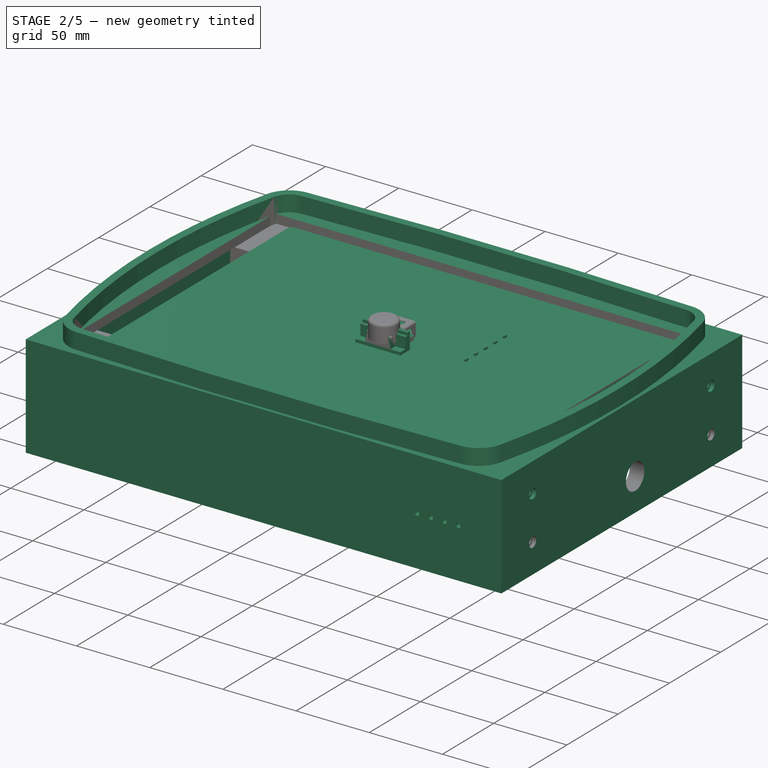
[diagram: stage 2 of 5 — iso view after this stage's code; geometry added in this stage tinted green]
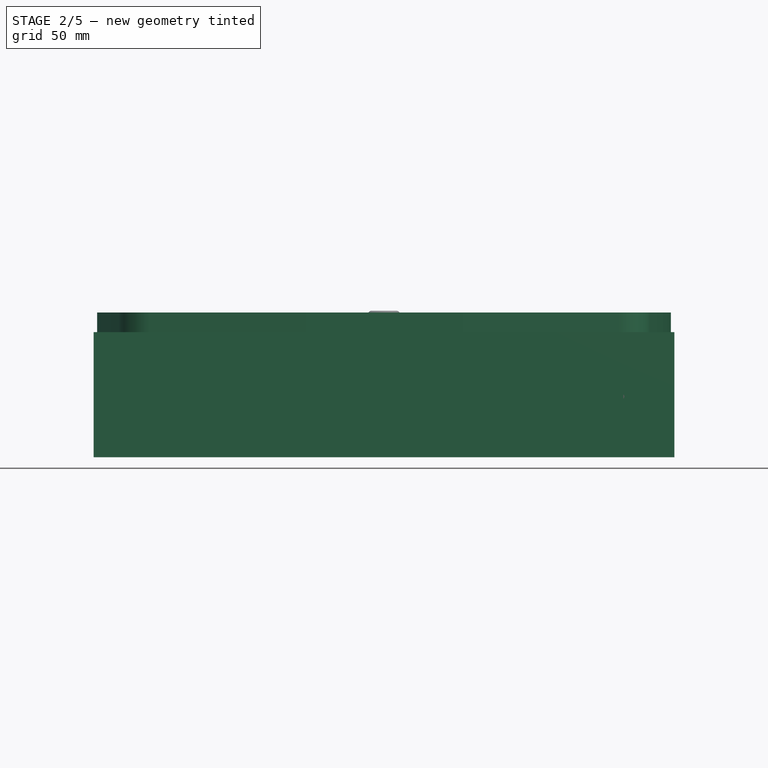
[diagram: stage 2 of 5 — front view after this stage's code; geometry added in this stage tinted green]
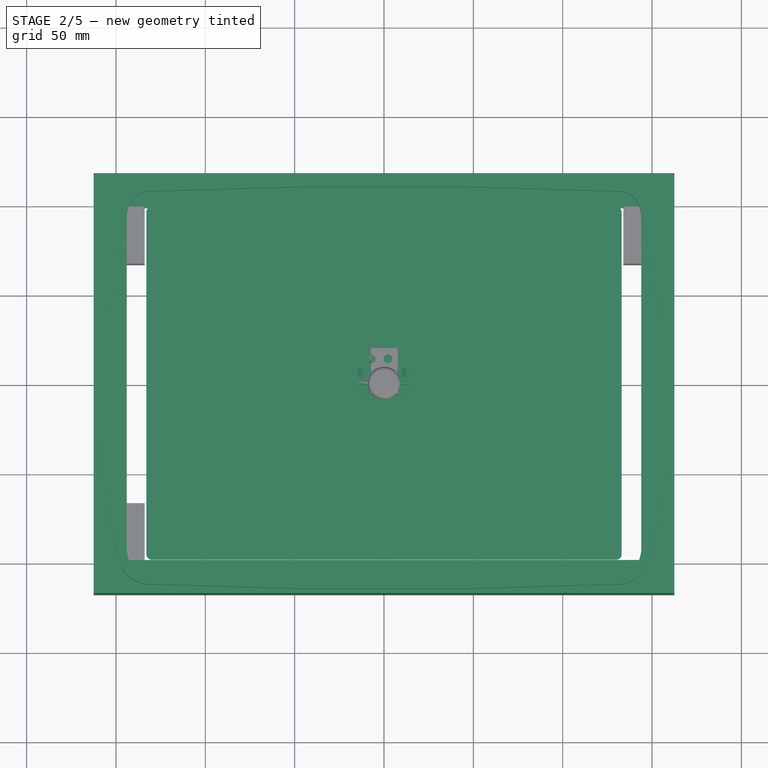
[diagram: stage 2 of 5 — top view after this stage's code; geometry added in this stage tinted green]
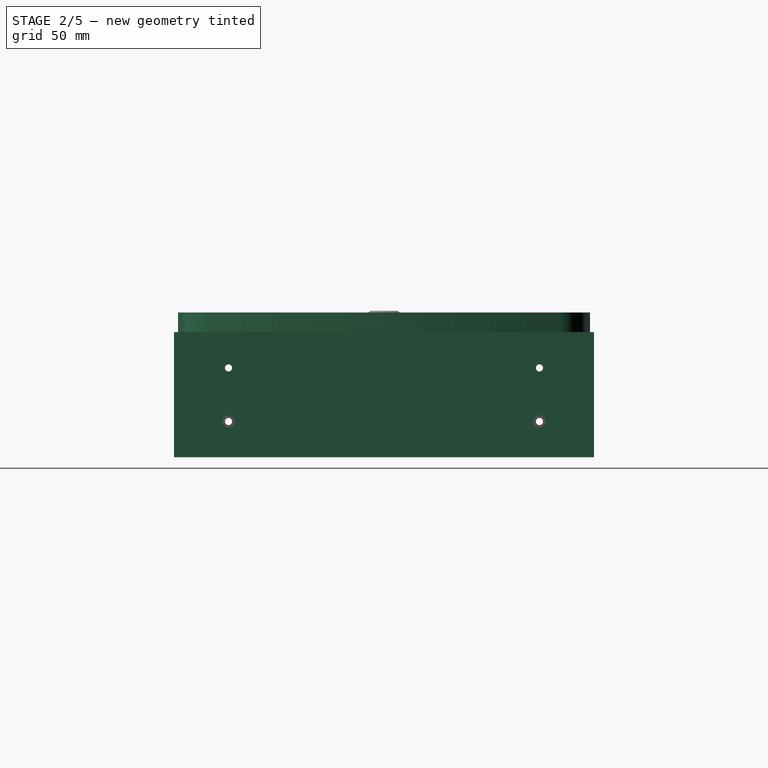
[diagram: stage 2 of 5 — right view after this stage's code; geometry added in this stage tinted green]
FEATURE [Part::Box] Box  label="CASE_2_frame_lo"
  AttacherType = Attacher::AttachEngine3D
  Height = 29
  Length = 325
  Placement = pos=(-162.5,-117.5,0) rot=(0,0,1;0rad)
  Width = 235
FEATURE [Part::Box] Box001  label="CASE_2_frame_li"
  AttacherType = Attacher::AttachEngine3D
  Height = 29
  Length = 305
  Placement = pos=(-152.5,-107.5,0) rot=(0,0,1;0rad)
  Width = 215
FEATURE [Part::Box] Box002  label="CASE_2_frame_uo"
  AttacherType = Attacher::AttachEngine3D
  Height = 6
  Length = 325
  Placement = pos=(-162.5,-117.5,0) rot=(0,0,1;0rad)
  Width = 235
FEATURE [Part::Box] Box003  label="CASE_2_frame_ui"
  AttacherType = Attacher::AttachEngine3D
  Height = 6
  Length = 288
  Placement = pos=(-144,-99,0) rot=(0,0,1;0rad)
  Width = 198
FEATURE [Part::Cut] Cut003  label="CASE_2_frame_u"
  Base = -> Box002
  Placement = pos=(0,0,-6) rot=(0,0,1;0rad)
  Tool = -> Box003
FEATURE [Part::Cut] Cut004  label="CASE_2_frame_l"
  Base = -> Box
  Tool = -> Box001
FEATURE [Sketcher::SketchObject] Sketch044  label="case001"
  MapMode = 5
  sketch-geometry (11):
    g0: LineSegment StartX=-150 StartY=-105 StartZ=0 EndX=150 EndY=-105 EndZ=0
    g1: LineSegment StartX=150 StartY=-105 StartZ=0 EndX=150 EndY=105 EndZ=0
    g2: LineSegment StartX=150 StartY=105 StartZ=0 EndX=-150 EndY=105 EndZ=0
    g3: LineSegment StartX=-150 StartY=105 StartZ=0 EndX=-150 EndY=-105 EndZ=0
    g4: Circle CenterX=-128.5 CenterY=95 CenterZ=0 NormalX=0 NormalY=0 NormalZ=1 AngleXU=0 Radius=1.5
    g5: Circle CenterX=128.5 CenterY=95 CenterZ=0 NormalX=0 NormalY=0 NormalZ=1 AngleXU=0 Radius=1.5
    g6: Circle CenterX=-128.5 CenterY=-67 CenterZ=0 NormalX=0 NormalY=0 NormalZ=1 AngleXU=0 Radius=1.5
    g7: Circle CenterX=128.5 CenterY=-67 CenterZ=0 NormalX=0 NormalY=0 NormalZ=1 AngleXU=0 Radius=1.5
    g8: Circle CenterX=21.5 CenterY=-78 CenterZ=0 NormalX=0 NormalY=0 NormalZ=1 AngleXU=0 Radius=3.5
    g9: Circle CenterX=51.5 CenterY=-78 CenterZ=0 NormalX=0 NormalY=0 NormalZ=1 AngleXU=0 Radius=3.5
    g10: Circle CenterX=101.5 CenterY=-78 CenterZ=0 NormalX=0 NormalY=0 NormalZ=1 AngleXU=0 Radius=3.5
  constraints (30):
    c: Coincident(g0,g1)
    c: Coincident(g1,g2)
    c: Coincident(g2,g3)
    c: Coincident(g3,g0)
    c: Horizontal(g0)
    c: Horizontal(g2)
    c: Vertical(g1)
    c: Vertical(g3)
    c: DistanceX(g2,g2) = 300
    c: DistanceY(g1,g1) = 210
    c: Symmetric(g2,g0,g-1)
    c: Symmetric(g5,g4,g-2)
    c: Symmetric(g6,g7,g-2)
    c: DistanceX(g4,g5) = 257
    c: DistanceX(g6,g7) = 257
    c: DistanceY(g6,g4) = 162
    c: Equal(g6,g4)
    c: Equal(g4,g5)
    c: Equal(g5,g7)
    c: Radius(g4) = 1.5
    c: Radius(g8) = 3.5
    c: Equal(g9,g8)
    c: Radius(g10) = 3.5
    c: Distance(g10,g1) = 48.5
    c: Distance(g10,g0) = 27
    c: Distance(g8,g0) = 27
    c: Distance(g9,g0) = 27
    c: Distance(g10,g9) = 50
    c: Distance(g9,g8) = 30
    c: Distance(g4,g2) = 10
FEATURE [Part::Box] Box004  label="CASE_2_frame_uo001"
  AttacherType = Attacher::AttachEngine3D
  Height = 6
  Length = 325
  Placement = pos=(-162.5,-117.5,0) rot=(0,0,1;0rad)
  Width = 235
FEATURE [Part::Cut] Cut005  label="CASE_2_frame_u001"
  Base = -> Box004
  Placement = pos=(0,0,58) rot=(0,0,1;0rad)
  Tool = -> Box005
FEATURE [Part::MultiFuse] Fusion017  label="CASE_2_frame_front"
  Placement = pos=(0,0,0) rot=(0,1,0;3.14159rad)
  Shapes = -> [Cut003,Cut004]
FEATURE [Part::MultiFuse] Fusion018  label="CASE_2_frame_back"
  Shapes = -> [Cut006,Cut005]
FEATURE [Part::Cut] Cut014  label="CASE_2_back"
  Base = -> Fusion018
  Placement = pos=(0,0,0) rot=(0,1,0;3.14159rad)
  Tool = -> Array007
FEATURE [PartDesign::Body] Pad047Body  label="POWER"
  Group = -> [Sketch048,Pad047]
  Origin = -> Origin052
  Tip = -> Pad047
FEATURE [Sketcher::SketchObject] Sketch010  label="vga002"
  MapMode = 5
  Placement = pos=(0,-1,0) rot=(1,0,0;1.5708rad)
  sketch-geometry (10):
    g0: LineSegment StartX=15.4 StartY=0 StartZ=0 EndX=15.4 EndY=3 EndZ=0
    g1: LineSegment StartX=15.4 StartY=3 StartZ=0 EndX=8.45 EndY=3 EndZ=0
    g2: LineSegment StartX=7.1174 StartY=10.5 StartZ=0 EndX=-7.1174 EndY=10.5 EndZ=0
    g3: LineSegment StartX=-8.45 StartY=3 StartZ=0 EndX=-15.4 EndY=3 EndZ=0
    g4: LineSegment StartX=-15.4 StartY=3 StartZ=0 EndX=-15.4 EndY=0 EndZ=0
    g5: LineSegment StartX=-15.4 StartY=0 StartZ=0 EndX=15.4 EndY=0 EndZ=0
    g6: LineSegment StartX=8.45 StartY=3 StartZ=0 EndX=8.45 EndY=9.1674 EndZ=0
    g7: LineSegment StartX=-8.45 StartY=9.1674 StartZ=0 EndX=-8.45 EndY=3 EndZ=0
    g8: ArcOfCircle CenterX=-7.1174 CenterY=9.1674 CenterZ=0 NormalX=0 NormalY=0 NormalZ=1 AngleXU=0 Radius=1.3326 StartAngle=1.5708 EndAngle=3.14159
    g9: ArcOfCircle CenterX=7.1174 CenterY=9.1674 CenterZ=0 NormalX=0 NormalY=0 NormalZ=1 AngleXU=0 Radius=1.3326 StartAngle=0 EndAngle=1.5708
  constraints (27):
    c: Coincident(g0,g1)
    c: Coincident(g0,g5)
    c: Coincident(g1,g6)
    c: Coincident(g3,g4)
    c: Coincident(g3,g7)
    c: Vertical(g6)
    c: Vertical(g7)
    c: Coincident(g4,g5)
    c: Vertical(g4)
    c: Vertical(g0)
    c: Horizontal(g1)
    c: Horizontal(g3)
    c: Equal(g1,g3)
    c: DistanceX(g5,g5) = 30.8
    c: Horizontal(g5)
    c: PointOnObject(g-1,g5)
    c: DistanceX(g3,g1) = 16.9
    c: Equal(g4,g0)
    c: DistanceY(g4,g4) = 3
    c: Tangent(g2,g8) = -1.5708
    c: Tangent(g7,g8) = -1.5708
    c: Tangent(g2,g9) = -1.5708
    c: Tangent(g6,g9) = -1.5708
    c: Horizontal(g2)
    c: Equal(g8,g9)
    c: Symmetric(g2,g2,g-2)
    c: Distance(g2,g5) = 10.5
FEATURE [Sketcher::SketchObject] Sketch011  label="vga003"
  MapMode = 5
  Placement = pos=(0,3.3,0) rot=(0,0.707107,0.707107;3.14159rad)
  sketch-geometry (16):
    g0: LineSegment StartX=-9.9 StartY=4.89323 StartZ=0 EndX=-9.9 EndY=7.60677 EndZ=0
    g1: LineSegment StartX=-9.9 StartY=7.60677 StartZ=0 EndX=-12.25 EndY=8.96355 EndZ=0
    g2: LineSegment StartX=-12.25 StartY=8.96355 StartZ=0 EndX=-14.6 EndY=7.60677 EndZ=0
    g3: LineSegment StartX=-14.6 StartY=7.60677 StartZ=0 EndX=-14.6 EndY=4.89323 EndZ=0
    g4: LineSegment StartX=-14.6 StartY=4.89323 StartZ=0 EndX=-12.25 EndY=3.53645 EndZ=0
    g5: LineSegment StartX=-12.25 StartY=3.53645 StartZ=0 EndX=-9.9 EndY=4.89323 EndZ=0
    g6: Circle [constr] CenterX=-12.25 CenterY=6.25 CenterZ=0 NormalX=0 NormalY=0 NormalZ=1 AngleXU=0 Radius=2.71355
    g7: Circle CenterX=-12.25 CenterY=6.25 CenterZ=0 NormalX=0 NormalY=0 NormalZ=1 AngleXU=0 Radius=1.5
    g8: Circle [constr] CenterX=12.25 CenterY=6.25 CenterZ=0 NormalX=0 NormalY=0 NormalZ=1 AngleXU=0 Radius=2.71355
    g9: LineSegment StartX=14.6 StartY=4.89323 StartZ=0 EndX=14.6 EndY=7.60677 EndZ=0
    g10: LineSegment StartX=14.6 StartY=7.60677 StartZ=0 EndX=12.25 EndY=8.96355 EndZ=0
    g11: LineSegment StartX=12.25 StartY=8.96355 StartZ=0 EndX=9.9 EndY=7.60677 EndZ=0
    g12: LineSegment StartX=9.9 StartY=7.60677 StartZ=0 EndX=9.9 EndY=4.89323 EndZ=0
    g13: LineSegment StartX=9.9 StartY=4.89323 StartZ=0 EndX=12.25 EndY=3.53645 EndZ=0
    g14: LineSegment StartX=12.25 StartY=3.53645 StartZ=0 EndX=14.6 EndY=4.89323 EndZ=0
    g15: Circle CenterX=12.25 CenterY=6.25 CenterZ=0 NormalX=0 NormalY=0 NormalZ=1 AngleXU=0 Radius=1.5
  constraints (37):
    c: Coincident(g0,g1)
    c: Coincident(g1,g2)
    c: Coincident(g2,g3)
    c: Coincident(g3,g4)
    c: Coincident(g4,g5)
    c: Coincident(g5,g0)
    c: Equal(g0, g1-g5) x5
    c: PointOnObject(g0,g6)
    c: PointOnObject(g1,g6)
    c: PointOnObject(g2,g6)
    c: PointOnObject(g3,g6)
    c: PointOnObject(g4,g6)
    c: PointOnObject(g5,g6)
    c: Vertical(g0)
    c: DistanceX(g2,g0) = 4.7
    c: Radius(g7) = 1.5
    c: Coincident(g7,g6)
    c: Coincident(g9,g10)
    c: Coincident(g10,g11)
    c: Coincident(g11,g12)
    c: Coincident(g12,g13)
    c: Coincident(g13,g14)
    c: Coincident(g14,g9)
    c: Equal(g9, g10-g14) x5
    c: PointOnObject(g9,g8)
    c: PointOnObject(g10,g8)
    c: PointOnObject(g11,g8)
    c: PointOnObject(g12,g8)
    c: PointOnObject(g13,g8)
    c: PointOnObject(g14,g8)
    c: Vertical(g9)
    c: Equal(g7,g15) = 1.5
    c: Coincident(g15,g8)
    c: DistanceX(g6,g8) = 24.5
    c: Equal(g6,g8)
    c: Symmetric(g6,g8,g-2)
    c: DistanceY(g-1,g6) = 6.25
FEATURE [Sketcher::SketchObject] Sketch009  label="vga001"
  MapMode = 5
  Placement = pos=(0,1,0) rot=(1,0,0;1.5708rad)
  sketch-geometry (4):
    g0: LineSegment StartX=-15.4 StartY=0 StartZ=0 EndX=15.4 EndY=0 EndZ=0
    g1: LineSegment StartX=15.4 StartY=0 StartZ=0 EndX=15.4 EndY=10.5 EndZ=0
    g2: LineSegment StartX=15.4 StartY=10.5 StartZ=0 EndX=-15.4 EndY=10.5 EndZ=0
    g3: LineSegment StartX=-15.4 StartY=10.5 StartZ=0 EndX=-15.4 EndY=0 EndZ=0
  constraints (12):
    c: Coincident(g0,g1)
    c: Coincident(g1,g2)
    c: Coincident(g2,g3)
    c: Coincident(g3,g0)
    c: Horizontal(g0)
    c: Horizontal(g2)
    c: Vertical(g1)
    c: Vertical(g3)
    c: PointOnObject(g-1,g0)
    c: DistanceX(g2,g2) = 30.8
    c: Symmetric(g0,g0,g-1)
    c: DistanceY(g3,g3) = 10.5
FEATURE [Sketcher::SketchObject] Sketch008  label="vga"
  MapMode = 5
  Placement = pos=(0,3,0) rot=(0,0.707107,0.707107;3.14159rad)
  sketch-geometry (4):
    g0: LineSegment StartX=-15.4 StartY=12.5 StartZ=0 EndX=15.4 EndY=12.5 EndZ=0
    g1: LineSegment StartX=15.4 StartY=12.5 StartZ=0 EndX=15.4 EndY=0 EndZ=0
    g2: LineSegment StartX=15.4 StartY=0 StartZ=0 EndX=-15.4 EndY=0 EndZ=0
    g3: LineSegment StartX=-15.4 StartY=0 StartZ=0 EndX=-15.4 EndY=12.5 EndZ=0
  constraints (12):
    c: Coincident(g0,g1)
    c: Coincident(g1,g2)
    c: Coincident(g2,g3)
    c: Coincident(g3,g0)
    c: Horizontal(g0)
    c: Horizontal(g2)
    c: Vertical(g1)
    c: Vertical(g3)
    c: DistanceY(g3,g3) = 12.5
    c: DistanceX(g0,g0) = 30.8
    c: PointOnObject(g-1,g2)
    c: Symmetric(g2,g1,g-1)
FEATURE [PartDesign::Pad] Pad006  label="VGA_base"
  Length = 2
  Length2 = 100
  Placement = pos=(0,3,0) rot=(0,0.707107,0.707107;3.14159rad)
  Profile = -> Sketch008
  Reversed = true
  Type = 0
FEATURE [PartDesign::Pad] Pad007  label="VGA_base2"
  BaseFeature = -> Pad006
  Length = 2
  Length2 = 100
  Placement = pos=(0,3,0) rot=(0,0.707107,0.707107;3.14159rad)
  Profile = -> Sketch009
  Type = 0
FEATURE [PartDesign::Pad] Pad067  label="VGA_back"
  BaseFeature = -> Pad007
  Length = 5
  Length2 = 100
  Placement = pos=(0,3,0) rot=(0,0.707107,0.707107;3.14159rad)
  Profile = -> Sketch010
  Type = 0
FEATURE [Part::Cut] Cut019  label="CASE_2_frame_back001"
  Base = -> Cut014
  Tool = -> Cylinder011
FEATURE [PartDesign::Pad] Pad110
  Length = 1
  Length2 = 100
  Profile = -> Sketch022
  Type = 0
FEATURE [PartDesign::Body] Body027  label="RCC"
  Group = -> [Sketch022,Pad110]
  Origin = -> Origin109
  Placement = pos=(1.8,50.3,0) rot=(0,0,1;3.14159rad)
  Tip = -> Pad110
FEATURE [Part::FeaturePython] Array018  label="RCC_locks"  # Draft array (typed FeaturePython)
  Angle = 360
  ArrayType = 0
  Axis = (0,0,1)
  Base = -> Body027
  Center = (0,0,0)
  Fuse = false
  IntervalAxis = (0,0,0)
  IntervalX = (28.6,0,0)
  IntervalY = (0,1,0)
  IntervalZ = (0,0,0)
  NumberPolar = 1
  NumberX = 2
  NumberY = 1
  NumberZ = 1
FEATURE [PartDesign::Pad] Pad111
  Length = 1
  Length2 = 100
  Placement = pos=(49.2,0,0) rot=(0.57735,0.57735,0.57735;2.0944rad)
  Profile = -> Sketch020
  Type = 0
FEATURE [PartDesign::Body] Body028  label="BT_knob001"
  Group = -> [Sketch020,Pad111]
  Origin = -> Origin110
  Placement = pos=(0,9.4,1.63) rot=(0,0,1;0rad)
  Tip = -> Pad111
FEATURE [Part::FeaturePython] Array019  label="BTN_knob"  # Draft array (typed FeaturePython)
  Angle = 360
  ArrayType = 0
  Axis = (0,0,1)
  Base = -> Body028
  Center = (0,0,0)
  Fuse = false
  IntervalAxis = (0,0,0)
  IntervalX = (0,0,0)
  IntervalY = (0,9.4,0)
  IntervalZ = (0,0,0)
  NumberPolar = 1
  NumberX = 1
  NumberY = 5
  NumberZ = 1
FEATURE [Sketcher::SketchObject] Sketch091  label="vga005"
  MapMode = 5
  Placement = pos=(0,3,0) rot=(0,0.707107,0.707107;3.14159rad)
  sketch-geometry (8):
    g0: LineSegment StartX=-7 StartY=10.175 StartZ=0 EndX=7 EndY=10.175 EndZ=0
    g1: LineSegment StartX=7.39196 StartY=9.675 StartZ=0 EndX=5.67688 EndY=2.69884 EndZ=0
    g2: LineSegment StartX=5.2 StartY=2.325 StartZ=0 EndX=-5.2 EndY=2.325 EndZ=0
    g3: LineSegment StartX=-5.67688 StartY=2.69884 StartZ=0 EndX=-7.39196 EndY=9.675 EndZ=0
    g4: ArcOfCircle CenterX=-7 CenterY=9.77136 CenterZ=0 NormalX=0 NormalY=0 NormalZ=1 AngleXU=0 Radius=0.403636 StartAngle=1.5708 EndAngle=3.38266
    g5: ArcOfCircle CenterX=7 CenterY=9.77136 CenterZ=0 NormalX=0 NormalY=0 NormalZ=1 AngleXU=0 Radius=0.403636 StartAngle=6.04212 EndAngle=7.85398
    g6: ArcOfCircle CenterX=5.2 CenterY=2.81608 CenterZ=0 NormalX=0 NormalY=0 NormalZ=1 AngleXU=0 Radius=0.49108 StartAngle=4.71239 EndAngle=6.04212
    g7: ArcOfCircle CenterX=-5.2 CenterY=2.81608 CenterZ=0 NormalX=0 NormalY=0 NormalZ=1 AngleXU=0 Radius=0.49108 StartAngle=3.38266 EndAngle=4.71239
  constraints (19):
    c: Horizontal(g0)
    c: Horizontal(g2)
    c: Tangent(g0,g4) = 1.5708
    c: Tangent(g3,g4) = 1.5708
    c: Tangent(g0,g5) = 1.5708
    c: Tangent(g1,g5) = 1.5708
    c: Tangent(g1,g6) = 1.5708
    c: Tangent(g2,g6) = 1.5708
    c: Tangent(g2,g7) = 1.5708
    c: Tangent(g3,g7) = 1.5708
    c: DistanceX(g0,g0) = 14
    c: DistanceX(g0,g2) = 1.8
    c: DistanceY(g2,g0) = 7.85
    c: Equal(g7,g6)
    c: Equal(g4,g5)
    c: DistanceY(g3,g0) = 0.5
    c: DistanceY(g-1,g2) = 2.325
    c: Symmetric(g0,g0,g-2)
    c: Symmetric(g2,g2,g-2)
FEATURE [Sketcher::SketchObject] Sketch092  label="vga006"
  MapMode = 5
  Placement = pos=(0,3,0) rot=(0,0.707107,0.707107;3.14159rad)
  sketch-geometry (4):
    g0: LineSegment StartX=-15.4 StartY=12.5 StartZ=0 EndX=15.4 EndY=12.5 EndZ=0
    g1: LineSegment StartX=15.4 StartY=12.5 StartZ=0 EndX=15.4 EndY=0 EndZ=0
    g2: LineSegment StartX=15.4 StartY=0 StartZ=0 EndX=-15.4 EndY=0 EndZ=0
    g3: LineSegment StartX=-15.4 StartY=0 StartZ=0 EndX=-15.4 EndY=12.5 EndZ=0
  constraints (12):
    c: Coincident(g0,g1)
    c: Coincident(g1,g2)
    c: Coincident(g2,g3)
    c: Coincident(g3,g0)
    c: Horizontal(g0)
    c: Horizontal(g2)
    c: Vertical(g1)
    c: Vertical(g3)
    c: DistanceY(g3,g3) = 12.5
    c: DistanceX(g0,g0) = 30.8
    c: PointOnObject(g-1,g2)
    c: Symmetric(g2,g1,g-1)
FEATURE [PartDesign::Pad] Pad112
  Length = 0.3
  Length2 = 100
  Placement = pos=(0,3,0) rot=(0,0.707107,0.707107;3.14159rad)
  Profile = -> Sketch092
  Type = 0
FEATURE [PartDesign::Pocket] Pocket002
  BaseFeature = -> Pad112
  Length = 0.3
  Length2 = 100
  Placement = pos=(0,3,0) rot=(0,0.707107,0.707107;3.14159rad)
  Profile = -> Sketch091
  Reversed = true
  Type = 0
FEATURE [PartDesign::Pad] Pad113
  BaseFeature = -> Pocket002
  Length = 5.5
  Length2 = 100
  Placement = pos=(0,3,0) rot=(0,0.707107,0.707107;3.14159rad)
  Profile = -> Sketch091
  Type = 0
FEATURE [Sketcher::SketchObject] Sketch093  label="vga007"
  MapMode = 5
  Placement = pos=(0,3,0) rot=(0,0.707107,0.707107;3.14159rad)
  sketch-geometry (8):
    g0: LineSegment StartX=-6 StartY=9.18 StartZ=0 EndX=6 EndY=9.18 EndZ=0
    g1: LineSegment StartX=6.39086 StartY=8.68 StartZ=0 EndX=5.09858 EndY=3.48523 EndZ=0
    g2: LineSegment StartX=4.9 StartY=3.33 StartZ=0 EndX=-4.9 EndY=3.33 EndZ=0
    g3: LineSegment StartX=-5.09858 StartY=3.48523 StartZ=0 EndX=-6.39086 EndY=8.68 EndZ=0
    g4: ArcOfCircle CenterX=-6 CenterY=8.77723 CenterZ=0 NormalX=0 NormalY=0 NormalZ=1 AngleXU=0 Radius=0.402769 StartAngle=1.5708 EndAngle=3.38541
    g5: ArcOfCircle CenterX=6 CenterY=8.77723 CenterZ=0 NormalX=0 NormalY=0 NormalZ=1 AngleXU=0 Radius=0.402769 StartAngle=6.03937 EndAngle=7.85398
    g6: ArcOfCircle CenterX=4.9 CenterY=3.53463 CenterZ=0 NormalX=0 NormalY=0 NormalZ=1 AngleXU=0 Radius=0.20463 StartAngle=4.71239 EndAngle=6.03937
    g7: ArcOfCircle CenterX=-4.9 CenterY=3.53463 CenterZ=0 NormalX=0 NormalY=0 NormalZ=1 AngleXU=0 Radius=0.20463 StartAngle=3.38541 EndAngle=4.71239
  constraints (19):
    c: Horizontal(g0)
    c: Horizontal(g2)
    c: Tangent(g0,g4) = 1.5708
    c: Tangent(g3,g4) = 1.5708
    c: Tangent(g0,g5) = 1.5708
    c: Tangent(g1,g5) = 1.5708
    c: Tangent(g1,g6) = 1.5708
    c: Tangent(g2,g6) = 1.5708
    c: Tangent(g2,g7) = 1.5708
    c: Tangent(g3,g7) = 1.5708
    c: DistanceX(g0,g0) = 12
    c: DistanceX(g0,g2) = 1.1
    c: DistanceY(g2,g0) = 5.85
    c: Equal(g7,g6)
    c: Equal(g4,g5)
    c: DistanceY(g3,g0) = 0.5
    c: DistanceY(g-1,g2) = 3.33
    c: Symmetric(g0,g0,g-2)
    c: Symmetric(g2,g2,g-2)
FEATURE [PartDesign::Pocket] Pocket003
  BaseFeature = -> Pad113
  Length = 5.5
  Length2 = 100
  Placement = pos=(0,3,0) rot=(0,0.707107,0.707107;3.14159rad)
  Profile = -> Sketch093
  Reversed = true
  Type = 0
FEATURE [Sketcher::SketchObject] Sketch094  label="vga008"
  MapMode = 5
  Placement = pos=(0,3,0) rot=(0,0.707107,0.707107;3.14159rad)
  sketch-geometry (8):
    g0: LineSegment StartX=-6 StartY=9.18 StartZ=0 EndX=6 EndY=9.18 EndZ=0
    g1: LineSegment StartX=6.39086 StartY=8.68 StartZ=0 EndX=5.09858 EndY=3.48523 EndZ=0
    g2: LineSegment StartX=4.9 StartY=3.33 StartZ=0 EndX=-4.9 EndY=3.33 EndZ=0
    g3: LineSegment StartX=-5.09858 StartY=3.48523 StartZ=0 EndX=-6.39086 EndY=8.68 EndZ=0
    g4: ArcOfCircle CenterX=-6 CenterY=8.77723 CenterZ=0 NormalX=0 NormalY=0 NormalZ=1 AngleXU=0 Radius=0.402769 StartAngle=1.5708 EndAngle=3.38541
    g5: ArcOfCircle CenterX=6 CenterY=8.77723 CenterZ=0 NormalX=0 NormalY=0 NormalZ=1 AngleXU=0 Radius=0.402769 StartAngle=6.03937 EndAngle=7.85398
    g6: ArcOfCircle CenterX=4.9 CenterY=3.53463 CenterZ=0 NormalX=0 NormalY=0 NormalZ=1 AngleXU=0 Radius=0.20463 StartAngle=4.71239 EndAngle=6.03937
    g7: ArcOfCircle CenterX=-4.9 CenterY=3.53463 CenterZ=0 NormalX=0 NormalY=0 NormalZ=1 AngleXU=0 Radius=0.20463 StartAngle=3.38541 EndAngle=4.71239
  constraints (19):
    c: Horizontal(g0)
    c: Horizontal(g2)
    c: Tangent(g0,g4) = 1.5708
    c: Tangent(g3,g4) = 1.5708
    c: Tangent(g0,g5) = 1.5708
    c: Tangent(g1,g5) = 1.5708
    c: Tangent(g1,g6) = 1.5708
    c: Tangent(g2,g6) = 1.5708
    c: Tangent(g2,g7) = 1.5708
    c: Tangent(g3,g7) = 1.5708
    c: DistanceX(g0,g0) = 12
    c: DistanceX(g0,g2) = 1.1
    c: DistanceY(g2,g0) = 5.85
    c: Equal(g7,g6)
    c: Equal(g4,g5)
    c: DistanceY(g3,g0) = 0.5
    c: DistanceY(g-1,g2) = 3.33
    c: Symmetric(g0,g0,g-2)
    c: Symmetric(g2,g2,g-2)
FEATURE [PartDesign::Fillet] Fillet014
  Base = -> Pocket003 [Edge47,Edge42,Edge38,Edge41,Edge44,Edge49,Edge52,Edge50]
  BaseFeature = -> Pocket003
  Placement = pos=(0,3,0) rot=(0,0.707107,0.707107;3.14159rad)
  Radius = 0.75
FEATURE [PartDesign::Pad] Pad114
  BaseFeature = -> Fillet014
  Length = 5
  Length2 = 100
  Placement = pos=(0,3,0) rot=(0,0.707107,0.707107;3.14159rad)
  Profile = -> Sketch011
  Type = 0
FEATURE [PartDesign::Body] Body029  label="VGA_front"
  Group = -> [Sketch011,Sketch091,Sketch092,Pad112,Pocket002,Pad113,Sketch093,Pocket003,Fillet014,Pad114]
  Origin = -> Origin111
  Placement = pos=(5.3,0,0) rot=(0,0,1;3.14159rad)
  Tip = -> Pad114
FEATURE [PartDesign::Pad] Pad115  label="VGA_plug_base"
  BaseFeature = -> Pad067
  Length = 5.5
  Length2 = 100
  Placement = pos=(0,3,0) rot=(0,0.707107,0.707107;3.14159rad)
  Profile = -> Sketch094
  Type = 0
FEATURE [PartDesign::Body] Body  label="VGA_back001"
  Group = -> [Pad006,Sketch008,Pad007,Sketch009,Sketch010,Pad067,Sketch094,Pad115]
  Origin = -> Origin066
  Placement = pos=(5.3,0,0) rot=(0,0,1;3.14159rad)
  Tip = -> Pad115
FEATURE [App::Part] Part003  label="LCD_controller_board001"
  Group = -> [Body,Body001,Pad024Body,Pad023Body,Pad019Body,PadBody,Pad001Body,Array013,Pad011Body,Array,Sketch023,Pad078,Array008,Body027,Array018,Body028,Array019,Body029]
  License = CC BY 3.0
  LicenseURL = http://creativecommons.org/licenses/by/3.0/
  Origin = -> Origin083
  Placement = pos=(86,-48,-32) rot=(0,0,1;4.71239rad)
FEATURE [PartDesign::Pad] Pad116
  Length = 1
  Length2 = 100
  Profile = -> Sketch071
  Reversed = true
  Type = 0
FEATURE [PartDesign::Body] Body030  label="RCC_lock"
  Group = -> [Sketch071,Pad116]
  Origin = -> Origin112
  Tip = -> Pad116
FEATURE [Part::FeaturePython] Array020  label="RCC_locks001"  # Draft array (typed FeaturePython)
  Angle = 360
  ArrayType = 0
  Axis = (0,0,1)
  Base = -> Body030
  Center = (0,0,0)
  Fuse = false
  IntervalAxis = (0,0,0)
  IntervalX = (89.5,0,0)
  IntervalY = (0,1,0)
  IntervalZ = (0,0,0)
  NumberPolar = 1
  NumberX = 2
  NumberY = 1
  NumberZ = 1
  Placement = pos=(0,-55,-12.6) rot=(0,0,1;0rad)
FEATURE [App::Part] Part006  label="LCD_board"
  Group = -> [Pad001Body001,Array014,Pad029Body,Body030,Array020]
  License = CC BY 3.0
  LicenseURL = http://creativecommons.org/licenses/by/3.0/
  Origin = -> Origin087
FEATURE [App::Part] Part005  label="LCD"
  Group = -> [Pad026Body,Part006]
  License = CC BY 3.0
  LicenseURL = http://creativecommons.org/licenses/by/3.0/
  Origin = -> Origin086
  Placement = pos=(0,0,-0.1) rot=(0,0,1;0rad)
FEATURE [PartDesign::Pad] Pad117
  Length = 1
  Length2 = 100
  Profile = -> Sketch032
  Type = 0
FEATURE [PartDesign::Body] Body031  label="CASE_1_plane_front"
  Group = -> [Sketch032,Pad117]
  Origin = -> Origin113
  Tip = -> Pad117
FEATURE [PartDesign::Pad] Pad118
  Length = 17
  Length2 = 100
  Profile = -> Sketch035
  Type = 0
FEATURE [PartDesign::Pocket] Pocket004
  BaseFeature = -> Pad118
  Length = 17
  Length2 = 100
  Profile = -> Sketch039
  Reversed = true
  Type = 0
FEATURE [Part::Cylinder] Cylinder024  label="CASE_2_frame_cut001"
  Angle = 360
  AttacherType = Attacher::AttachEngine3D
  Height = 9
  Placement = pos=(3,0,0) rot=(0,1,0;1.5708rad)
  Radius = 2
FEATURE [Part::Cylinder] Cylinder025  label="CASE_2_frame_cut002"
  Angle = 360
  AttacherType = Attacher::AttachEngine3D
  Height = 3
  Placement = pos=(0,0,0) rot=(0,1,0;1.5708rad)
  Radius = 3.5
FEATURE [Part::MultiFuse] Fusion  label="CASE_2_frame_cut003"
  Placement = pos=(-163,87,-14) rot=(0,0,1;0rad)
  Shapes = -> [Cylinder024,Cylinder025]
FEATURE [Part::FeaturePython] Array021  # Draft array (typed FeaturePython)
  Angle = 360
  ArrayType = 1
  Axis = (0,0,1)
  Base = -> Fusion
  Center = (0,87,0)
  Fuse = false
  IntervalAxis = (0,0,0)
  IntervalX = (1,0,0)
  IntervalY = (0,1,0)
  IntervalZ = (0,0,0)
  NumberPolar = 2
  NumberX = 1
  NumberY = 1
  NumberZ = 1
FEATURE [Part::FeaturePython] Array022  # Draft array (typed FeaturePython)
  Angle = 360
  ArrayType = 0
  Axis = (0,0,1)
  Base = -> Array021
  Center = (0,0,0)
  Fuse = false
  IntervalAxis = (0,0,0)
  IntervalX = (1,0,0)
  IntervalY = (0,-174,0)
  IntervalZ = (0,0,0)
  NumberPolar = 1
  NumberX = 1
  NumberY = 2
  NumberZ = 1
FEATURE [Part::Cut] Cut  label="CASE_2_frame_front001"
  Base = -> Fusion017
  Tool = -> Array022
FEATURE [Part::Cut] Cut025  label="CASE_2_frame_back002"
  Base = -> Cut019
  Tool = -> Array024
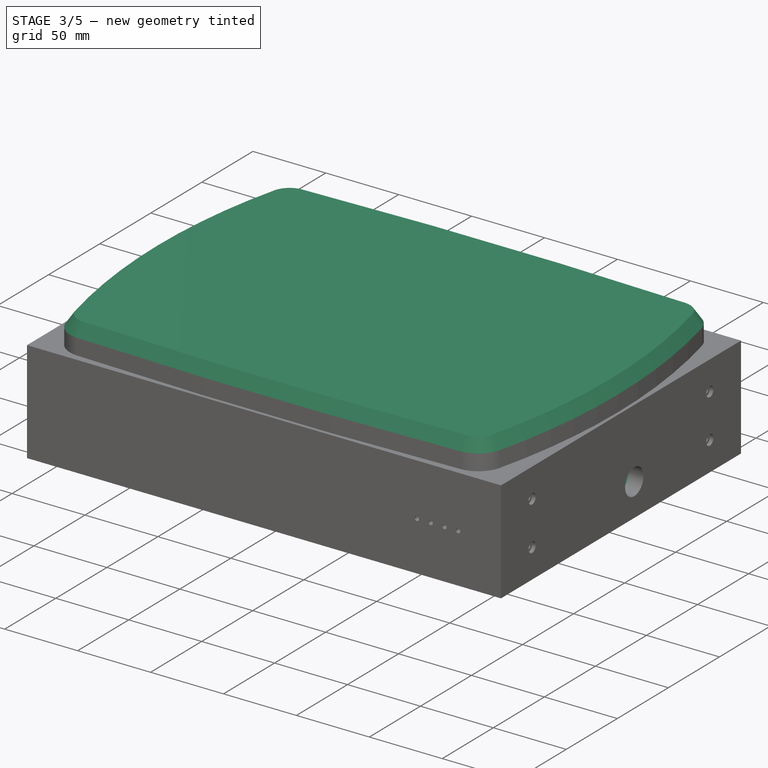
[diagram: stage 3 of 5 — iso view after this stage's code; geometry added in this stage tinted green]
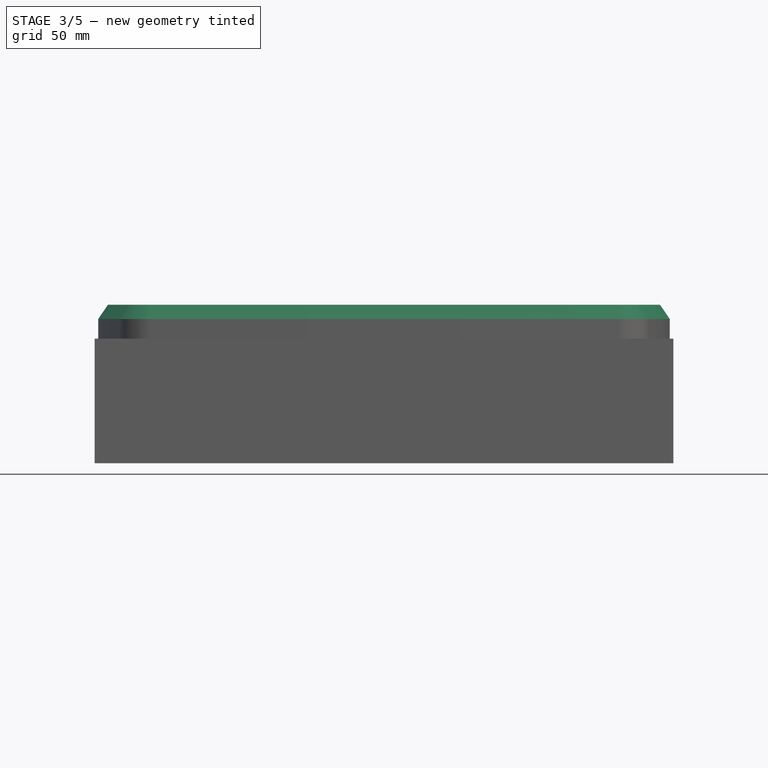
[diagram: stage 3 of 5 — front view after this stage's code; geometry added in this stage tinted green]
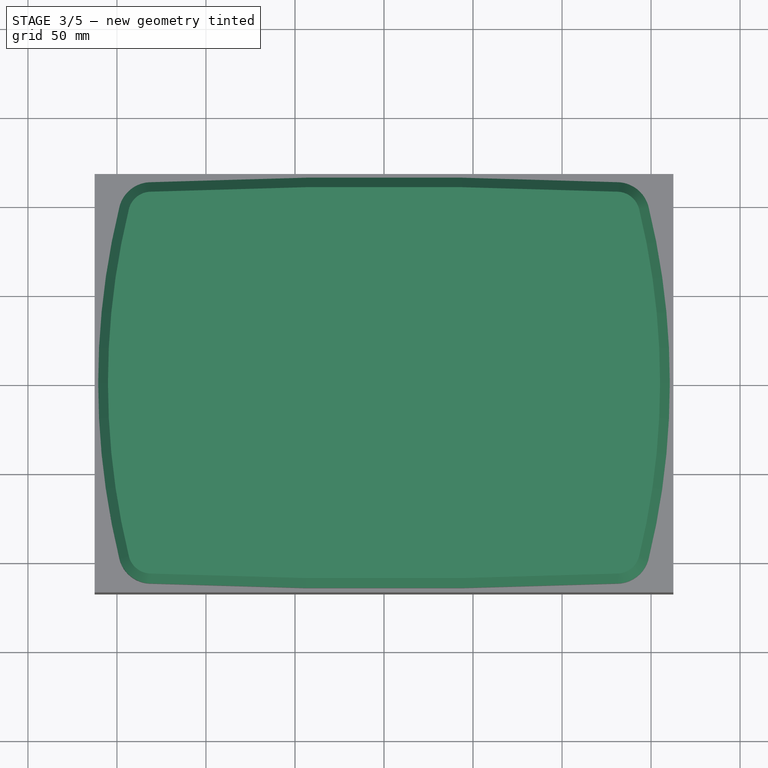
[diagram: stage 3 of 5 — top view after this stage's code; geometry added in this stage tinted green]
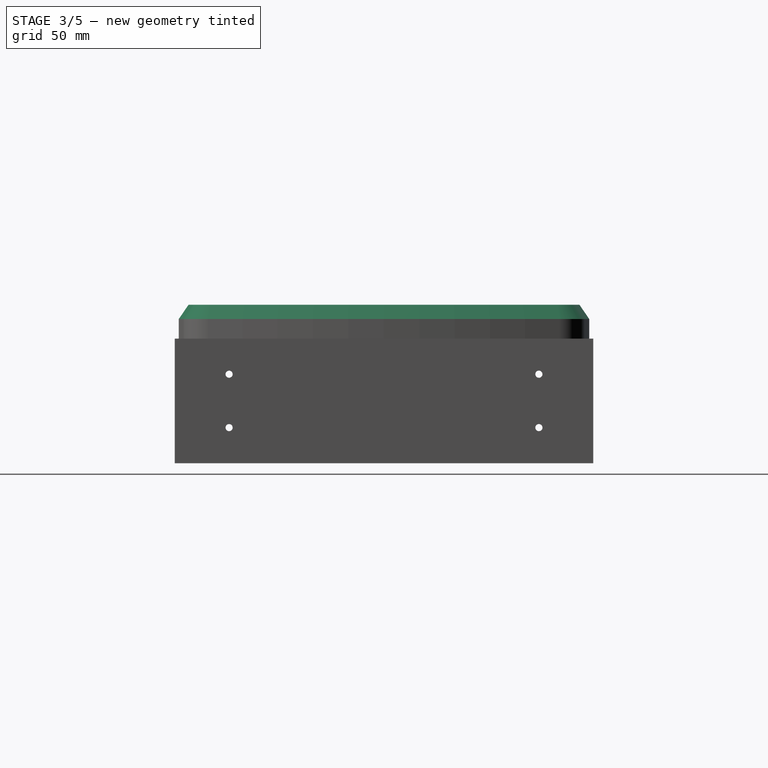
[diagram: stage 3 of 5 — right view after this stage's code; geometry added in this stage tinted green]
FEATURE [Sketcher::SketchObject] Sketch025  label="lock001"
  MapMode = 5
  sketch-geometry (5):
    g0: Circle CenterX=0 CenterY=0 CenterZ=0 NormalX=0 NormalY=0 NormalZ=1 AngleXU=0 Radius=11.15
    g1: LineSegment StartX=-5.15 StartY=1.2 StartZ=0 EndX=5.15 EndY=1.2 EndZ=0
    g2: LineSegment StartX=5.15 StartY=1.2 StartZ=0 EndX=5.15 EndY=-1.2 EndZ=0
    g3: LineSegment StartX=5.15 StartY=-1.2 StartZ=0 EndX=-5.15 EndY=-1.2 EndZ=0
    g4: LineSegment StartX=-5.15 StartY=-1.2 StartZ=0 EndX=-5.15 EndY=1.2 EndZ=0
  constraints (13):
    c: Radius(g0) = 11.15
    c: Coincident(g0,g-1)
    c: Coincident(g1,g2)
    c: Coincident(g2,g3)
    c: Coincident(g3,g4)
    c: Coincident(g4,g1)
    c: Horizontal(g1)
    c: Horizontal(g3)
    c: Vertical(g2)
    c: Vertical(g4)
    c: DistanceY(g4,g4) = 2.4
    c: DistanceX(g1,g1) = 10.3
    c: Symmetric(g1,g2,g-1)
FEATURE [Sketcher::SketchObject] Sketch026  label="lock"
  MapMode = 5
  Placement = pos=(0,0,0) rot=(0,1,0;3.14159rad)
  sketch-geometry (5):
    g0: LineSegment StartX=-5.25375 StartY=7.975 StartZ=0 EndX=5.25375 EndY=7.975 EndZ=0
    g1: LineSegment StartX=-5.25375 StartY=-7.975 StartZ=0 EndX=5.25375 EndY=-7.975 EndZ=0
    g2: ArcOfCircle CenterX=0 CenterY=0 CenterZ=0 NormalX=0 NormalY=0 NormalZ=1 AngleXU=0 Radius=9.55 StartAngle=2.15332 EndAngle=4.12987
    g3: ArcOfCircle CenterX=0 CenterY=0 CenterZ=0 NormalX=0 NormalY=0 NormalZ=1 AngleXU=0 Radius=9.55 StartAngle=5.29491 EndAngle=7.27146
    g4: GeomPoint X=9.55 Y=0 Z=0
  constraints (13):
    c: Horizontal(g0)
    c: Horizontal(g1)
    c: Coincident(g2,g-1)
    c: Coincident(g2,g0)
    c: Coincident(g2,g1)
    c: Coincident(g3,g-1)
    c: Coincident(g3,g1)
    c: Coincident(g3,g0)
    c: Symmetric(g0,g1,g-1)
    c: DistanceY(g1,g0) = 15.95
    c: PointOnObject(g4,g3)
    c: PointOnObject(g4,g-1)
    c: DistanceX(g-1,g4) = 9.55
FEATURE [Sketcher::SketchObject] Sketch027  label="lock002"
  MapMode = 5
  Placement = pos=(0,0,-22) rot=(0,0,1;0rad)
  sketch-geometry (8):
    g0: LineSegment StartX=-8.01731 StartY=8.45 StartZ=0 EndX=8.01731 EndY=8.45 EndZ=0
    g1: LineSegment StartX=9 StartY=7.46731 StartZ=0 EndX=9 EndY=-7.46731 EndZ=0
    g2: LineSegment StartX=8.01731 StartY=-8.45 StartZ=0 EndX=-8.01731 EndY=-8.45 EndZ=0
    g3: LineSegment StartX=-9 StartY=-7.46731 StartZ=0 EndX=-9 EndY=7.46731 EndZ=0
    g4: ArcOfCircle CenterX=-8.01731 CenterY=7.46731 CenterZ=0 NormalX=0 NormalY=0 NormalZ=1 AngleXU=0 Radius=0.982694 StartAngle=1.5708 EndAngle=3.14159
    g5: ArcOfCircle CenterX=8.01731 CenterY=7.46731 CenterZ=0 NormalX=0 NormalY=0 NormalZ=1 AngleXU=0 Radius=0.982694 StartAngle=0 EndAngle=1.5708
    g6: ArcOfCircle CenterX=8.01731 CenterY=-7.46731 CenterZ=0 NormalX=0 NormalY=0 NormalZ=1 AngleXU=0 Radius=0.982694 StartAngle=4.71239 EndAngle=6.28319
    g7: ArcOfCircle CenterX=-8.01731 CenterY=-7.46731 CenterZ=0 NormalX=0 NormalY=0 NormalZ=1 AngleXU=0 Radius=0.982694 StartAngle=3.14159 EndAngle=4.71239
  constraints (18):
    c: Horizontal(g0)
    c: Horizontal(g2)
    c: Vertical(g1)
    c: Vertical(g3)
    c: Tangent(g0,g4) = 1.5708
    c: Tangent(g3,g4) = 1.5708
    c: Tangent(g0,g5) = 1.5708
    c: Tangent(g1,g5) = 1.5708
    c: Tangent(g1,g6) = 1.5708
    c: Tangent(g2,g6) = 1.5708
    c: Tangent(g2,g7) = 1.5708
    c: Tangent(g3,g7) = 1.5708
    c: DistanceX(g3,g1) = 18
    c: DistanceY(g2,g0) = 16.9
    c: Equal(g4,g5)
    c: Equal(g5,g7)
    c: Equal(g7,g6)
    c: Symmetric(g0,g2,g-1)
FEATURE [Sketcher::SketchObject] Sketch028  label="lock003"
  MapMode = 5
  Placement = pos=(-5.35,4.45,-35.3) rot=(0,1,0;3.14159rad)
  sketch-geometry (4):
    g0: LineSegment StartX=-1.35 StartY=0.25 StartZ=0 EndX=1.35 EndY=0.25 EndZ=0
    g1: LineSegment StartX=1.35 StartY=0.25 StartZ=0 EndX=1.35 EndY=-0.25 EndZ=0
    g2: LineSegment StartX=1.35 StartY=-0.25 StartZ=0 EndX=-1.35 EndY=-0.25 EndZ=0
    g3: LineSegment StartX=-1.35 StartY=-0.25 StartZ=0 EndX=-1.35 EndY=0.25 EndZ=0
  constraints (11):
    c: Coincident(g0,g1)
    c: Coincident(g1,g2)
    c: Coincident(g2,g3)
    c: Coincident(g3,g0)
    c: Horizontal(g0)
    c: Horizontal(g2)
    c: Vertical(g1)
    c: Vertical(g3)
    c: DistanceX(g0,g0) = 2.7
    c: DistanceY(g3,g3) = 0.5
    c: Symmetric(g1,g0,g-1)
FEATURE [Sketcher::SketchObject] Sketch029  label="lock004"
  MapMode = 5
  Placement = pos=(0,8.2,0) rot=(0,0,1;0rad)
  sketch-geometry (4):
    g0: LineSegment StartX=-2.5 StartY=0.25 StartZ=0 EndX=2.5 EndY=0.25 EndZ=0
    g1: LineSegment StartX=2.5 StartY=0.25 StartZ=0 EndX=2.5 EndY=-0.25 EndZ=0
    g2: LineSegment StartX=2.5 StartY=-0.25 StartZ=0 EndX=-2.5 EndY=-0.25 EndZ=0
    g3: LineSegment StartX=-2.5 StartY=-0.25 StartZ=0 EndX=-2.5 EndY=0.25 EndZ=0
  constraints (11):
    c: Coincident(g0,g1)
    c: Coincident(g1,g2)
    c: Coincident(g2,g3)
    c: Coincident(g3,g0)
    c: Horizontal(g0)
    c: Horizontal(g2)
    c: Vertical(g1)
    c: Vertical(g3)
    c: DistanceY(g3,g3) = 0.5
    c: DistanceX(g0,g0) = 5
    c: Symmetric(g0,g1,g-1)
FEATURE [Sketcher::SketchObject] Sketch030  label="lock005"
  MapMode = 5
  Placement = pos=(0,0,-10.2) rot=(0,0,1;0rad)
  sketch-geometry (8):
    g0: LineSegment StartX=11.1 StartY=-6.40859 StartZ=0 EndX=11.1 EndY=6.40859 EndZ=0
    g1: LineSegment StartX=11.1 StartY=6.40859 StartZ=0 EndX=0 EndY=12.8172 EndZ=0
    g2: LineSegment StartX=0 StartY=12.8172 StartZ=0 EndX=-11.1 EndY=6.40859 EndZ=0
    g3: LineSegment StartX=-11.1 StartY=6.40859 StartZ=0 EndX=-11.1 EndY=-6.40859 EndZ=0
    g4: LineSegment StartX=-11.1 StartY=-6.40859 StartZ=0 EndX=0 EndY=-12.8172 EndZ=0
    g5: LineSegment StartX=0 StartY=-12.8172 StartZ=0 EndX=11.1 EndY=-6.40859 EndZ=0
    g6: Circle [constr] CenterX=0 CenterY=0 CenterZ=0 NormalX=0 NormalY=0 NormalZ=1 AngleXU=0 Radius=12.8172
    g7: Circle CenterX=0 CenterY=0 CenterZ=0 NormalX=0 NormalY=0 NormalZ=1 AngleXU=0 Radius=8.8
  constraints (18):
    c: Coincident(g0,g1)
    c: Coincident(g1,g2)
    c: Coincident(g2,g3)
    c: Coincident(g3,g4)
    c: Coincident(g4,g5)
    c: Coincident(g5,g0)
    c: Equal(g0, g1-g5) x5
    c: PointOnObject(g0,g6)
    c: PointOnObject(g1,g6)
    c: PointOnObject(g2,g6)
    c: PointOnObject(g3,g6)
    c: PointOnObject(g4,g6)
    c: PointOnObject(g5,g6)
    c: Vertical(g0)
    c: Coincident(g6,g-1)
    c: Coincident(g7,g-1)
    c: Radius(g7) = 8.8
    c: Distance(g-1,g0) = 11.1
FEATURE [Sketcher::SketchObject] Sketch031  label="lock006"
  MapMode = 5
  Placement = pos=(0,0,-3.5) rot=(0,0,1;0rad)
  sketch-geometry (13):
    g0: Circle CenterX=0 CenterY=0 CenterZ=0 NormalX=0 NormalY=0 NormalZ=1 AngleXU=0 Radius=12
    g1: ArcOfCircle CenterX=0 CenterY=0 CenterZ=0 NormalX=0 NormalY=0 NormalZ=1 AngleXU=0 Radius=10.5 StartAngle=2.27688 EndAngle=4.0063
    g2: ArcOfCircle CenterX=0 CenterY=0 CenterZ=0 NormalX=0 NormalY=0 NormalZ=1 AngleXU=0 Radius=10.5 StartAngle=5.41847 EndAngle=7.1479
    g3: LineSegment StartX=-6.81303 StartY=7.98953 StartZ=0 EndX=-2.6 EndY=7.98953 EndZ=0
    g4: LineSegment StartX=-2.6 StartY=7.98953 StartZ=0 EndX=-2.6 EndY=8.58953 EndZ=0
    g5: LineSegment StartX=-2.6 StartY=8.58953 StartZ=0 EndX=2.6 EndY=8.58953 EndZ=0
    g6: LineSegment StartX=2.6 StartY=8.58953 StartZ=0 EndX=2.6 EndY=7.98953 EndZ=0
    g7: LineSegment StartX=2.6 StartY=7.98953 StartZ=0 EndX=6.81303 EndY=7.98953 EndZ=0
    g8: LineSegment StartX=-6.81303 StartY=-7.98953 StartZ=0 EndX=-2.6 EndY=-7.98953 EndZ=0
    g9: LineSegment StartX=-2.6 StartY=-7.98953 StartZ=0 EndX=-2.6 EndY=-8.58953 EndZ=0
    g10: LineSegment StartX=-2.6 StartY=-8.58953 StartZ=0 EndX=2.6 EndY=-8.58953 EndZ=0
    g11: LineSegment StartX=2.6 StartY=-8.58953 StartZ=0 EndX=2.6 EndY=-7.98953 EndZ=0
    g12: LineSegment StartX=2.6 StartY=-7.98953 StartZ=0 EndX=6.81303 EndY=-7.98953 EndZ=0
  constraints (37):
    c: Coincident(g0,g-1)
    c: Coincident(g1,g-1)
    c: Coincident(g2,g-1)
    c: Horizontal(g3)
    c: Coincident(g3,g4)
    c: Vertical(g4)
    c: Coincident(g4,g5)
    c: Horizontal(g5)
    c: Coincident(g5,g6)
    c: Coincident(g6,g7)
    c: Horizontal(g7)
    c: Horizontal(g8)
    c: Coincident(g8,g9)
    c: Vertical(g9)
    c: Coincident(g9,g10)
    c: Horizontal(g10)
    c: Coincident(g10,g11)
    c: Vertical(g11)
    c: Coincident(g11,g12)
    c: Horizontal(g12)
    c: Vertical(g6)
    c: Coincident(g8,g1)
    c: Coincident(g12,g2)
    c: Coincident(g7,g2)
    c: Coincident(g3,g1)
    c: Equal(g8,g3)
    c: Equal(g3,g7)
    c: Equal(g7,g12)
    c: Equal(g4,g6)
    c: Equal(g6,g9)
    c: Equal(g9,g11)
    c: Equal(g10,g5)
    c: Symmetric(g9,g5,g-1)
    c: DistanceY(g4,g4) = 0.6
    c: DistanceX(g5,g5) = 5.2
    c: Radius(g0) = 12
    c: Radius(g2) = 10.5
FEATURE [Image::ImagePlane] ImagePlane003  label="CASE_top"
  Placement = pos=(22.8,236.7,0) rot=(0,1,0;3.14159rad)
  XSize = 1228.7
  YSize = 759.5
FEATURE [Sketcher::SketchObject] Sketch032  label="cse"
  MapMode = 5
  sketch-geometry (8):
    g0: LineSegment StartX=-130 StartY=98.75 StartZ=0 EndX=130 EndY=98.75 EndZ=0
    g1: LineSegment StartX=133 StartY=95.75 StartZ=0 EndX=133 EndY=-95.75 EndZ=0
    g2: LineSegment StartX=130 StartY=-98.75 StartZ=0 EndX=-130 EndY=-98.75 EndZ=0
    g3: LineSegment StartX=-133 StartY=-95.75 StartZ=0 EndX=-133 EndY=95.75 EndZ=0
    g4: ArcOfCircle CenterX=-130 CenterY=95.75 CenterZ=0 NormalX=0 NormalY=0 NormalZ=1 AngleXU=0 Radius=3 StartAngle=1.5708 EndAngle=3.14159
    g5: ArcOfCircle CenterX=130 CenterY=95.75 CenterZ=0 NormalX=0 NormalY=0 NormalZ=1 AngleXU=0 Radius=3 StartAngle=0 EndAngle=1.5708
    g6: ArcOfCircle CenterX=130 CenterY=-95.75 CenterZ=0 NormalX=0 NormalY=0 NormalZ=1 AngleXU=0 Radius=3 StartAngle=4.71239 EndAngle=6.28319
    g7: ArcOfCircle CenterX=-130 CenterY=-95.75 CenterZ=0 NormalX=0 NormalY=0 NormalZ=1 AngleXU=0 Radius=3 StartAngle=3.14159 EndAngle=4.71239
  constraints (19):
    c: Horizontal(g0)
    c: Horizontal(g2)
    c: Vertical(g1)
    c: Vertical(g3)
    c: Tangent(g0,g4) = 1.5708
    c: Tangent(g3,g4) = 1.5708
    c: Tangent(g0,g5) = 1.5708
    c: Tangent(g1,g5) = 1.5708
    c: Tangent(g1,g6) = 1.5708
    c: Tangent(g2,g6) = 1.5708
    c: Tangent(g2,g7) = 1.5708
    c: Tangent(g3,g7) = 1.5708
    c: Equal(g4,g5)
    c: Equal(g5,g6)
    c: Equal(g6,g7)
    c: DistanceX(g3,g1) = 266
    c: DistanceY(g2,g0) = 197.5
    c: Symmetric(g7,g5,g-1)
    c: DistanceX(g0,g0) = 260
FEATURE [Sketcher::SketchObject] Sketch035  label="cse003"
  MapMode = 5
  sketch-geometry (8):
    g0: ArcOfCircle CenterX=0 CenterY=-2899.13 CenterZ=0 NormalX=0 NormalY=0 NormalZ=1 AngleXU=0 Radius=3014.71 StartAngle=1.52716 EndAngle=1.61443
    g1: ArcOfCircle CenterX=0 CenterY=2899.13 CenterZ=0 NormalX=0 NormalY=0 NormalZ=1 AngleXU=0 Radius=3014.71 StartAngle=4.66876 EndAngle=4.75602
    g2: ArcOfCircle CenterX=-130.813 CenterY=94.3932 CenterZ=0 NormalX=0 NormalY=0 NormalZ=1 AngleXU=0 Radius=18.3304 StartAngle=1.60828 EndAngle=2.89546
    g3: ArcOfCircle CenterX=130.813 CenterY=94.3932 CenterZ=0 NormalX=0 NormalY=0 NormalZ=1 AngleXU=0 Radius=18.3304 StartAngle=0.233832 EndAngle=1.53331
    g4: ArcOfCircle CenterX=-254.94 CenterY=0 CenterZ=0 NormalX=0 NormalY=0 NormalZ=1 AngleXU=0 Radius=415.464 StartAngle=6.04293 EndAngle=6.5229
    g5: ArcOfCircle CenterX=254.94 CenterY=0 CenterZ=0 NormalX=0 NormalY=0 NormalZ=1 AngleXU=0 Radius=415.464 StartAngle=2.90134 EndAngle=3.3813
    g6: ArcOfCircle CenterX=130.813 CenterY=-94.3932 CenterZ=0 NormalX=0 NormalY=0 NormalZ=1 AngleXU=0 Radius=18.3304 StartAngle=4.74987 EndAngle=6.03705
    g7: ArcOfCircle CenterX=-130.813 CenterY=-94.3932 CenterZ=0 NormalX=0 NormalY=0 NormalZ=1 AngleXU=0 Radius=18.3304 StartAngle=3.37542 EndAngle=4.67491
  constraints (27):
    c: Coincident(g3,g0)
    c: Coincident(g4,g3)
    c: Coincident(g5,g2)
    c: Coincident(g6,g4)
    c: Coincident(g6,g1)
    c: Coincident(g7,g5)
    c: Coincident(g7,g1)
    c: Equal(g2,g3)
    c: Equal(g3,g6)
    c: Equal(g6,g7)
    c: Coincident(g2,g0)
    c: Equal(g1,g0)
    c: Equal(g5,g4)
    c: PointOnObject(g1,g-2)
    c: PointOnObject(g0,g-2)
    c: PointOnObject(g5,g-1)
    c: PointOnObject(g4,g-1)
    c: DistanceX(g0,g0) = 263
    c: DistanceY(g5,g2) = 197.5
    c: DistanceX(g1,g1) = 263
    c: DistanceY(g4,g3) = 197.5
    c: Angle(g0) = 0.0872665
    c: Angle(g5) = 0.479966
    c: Symmetric(g7,g2,g-1)
    c: Symmetric(g6,g3,g-1)
    c: Symmetric(g7,g6,g-2)
    c: Angle(g2) = 1.28718
FEATURE [Sketcher::SketchObject] Sketch036  label="cse004"
  MapMode = 5
  Placement = pos=(0,0,-5) rot=(0,0,1;0rad)
  sketch-geometry (8):
    g0: ArcOfCircle CenterX=0 CenterY=-2914.04 CenterZ=0 NormalX=0 NormalY=0 NormalZ=1 AngleXU=0 Radius=3020.01 StartAngle=1.52716 EndAngle=1.61443
    g1: ArcOfCircle CenterX=0 CenterY=2914.05 CenterZ=0 NormalX=0 NormalY=0 NormalZ=1 AngleXU=0 Radius=3020.01 StartAngle=4.66914 EndAngle=4.75564
    g2: ArcOfCircle CenterX=-130.813 CenterY=94.3932 CenterZ=0 NormalX=0 NormalY=0 NormalZ=1 AngleXU=0 Radius=8.74238 StartAngle=1.67597 EndAngle=2.96315
    g3: ArcOfCircle CenterX=130.813 CenterY=94.3932 CenterZ=0 NormalX=0 NormalY=0 NormalZ=1 AngleXU=0 Radius=8.74238 StartAngle=0.233653 EndAngle=1.46563
    g4: ArcOfCircle CenterX=-254.924 CenterY=0 CenterZ=0 NormalX=0 NormalY=0 NormalZ=1 AngleXU=0 Radius=405.86 StartAngle=6.04306 EndAngle=6.52304
    g5: ArcOfCircle CenterX=254.94 CenterY=0 CenterZ=0 NormalX=0 NormalY=0 NormalZ=1 AngleXU=0 Radius=405.86 StartAngle=2.90293 EndAngle=3.3829
    g6: ArcOfCircle CenterX=130.813 CenterY=-94.3932 CenterZ=0 NormalX=0 NormalY=0 NormalZ=1 AngleXU=0 Radius=8.74238 StartAngle=4.68452 EndAngle=6.03685
    g7: ArcOfCircle CenterX=-130.813 CenterY=-94.3932 CenterZ=0 NormalX=0 NormalY=0 NormalZ=1 AngleXU=0 Radius=8.74238 StartAngle=3.44311 EndAngle=4.74026
  constraints (23):
    c: Coincident(g3,g0)
    c: Coincident(g4,g3)
    c: Coincident(g5,g2)
    c: Coincident(g6,g4)
    c: Coincident(g6,g1)
    c: Coincident(g7,g5)
    c: Coincident(g7,g1)
    c: Equal(g2,g3)
    c: Equal(g3,g6)
    c: Equal(g6,g7)
    c: Coincident(g2,g0)
    c: Equal(g1,g0)
    c: Equal(g5,g4)
    c: PointOnObject(g1,g-2)
    c: PointOnObject(g0,g-2)
    c: PointOnObject(g5,g-1)
    c: PointOnObject(g4,g-1)
    c: Angle(g0) = 0.0872665
    c: Angle(g5) = 0.479966
    c: Symmetric(g7,g2,g-1)
    c: Symmetric(g6,g3,g-1)
    c: Symmetric(g7,g6,g-2)
    c: Angle(g2) = 1.28718
FEATURE [Sketcher::SketchObject] Sketch037  label="cse005"
  MapMode = 5
  Placement = pos=(0,0,-5) rot=(0,0,1;0rad)
  sketch-geometry (8):
    g0: LineSegment StartX=-130.314 StartY=99.9484 StartZ=0 EndX=129.686 EndY=99.9484 EndZ=0
    g1: LineSegment StartX=-130.314 StartY=-99.9484 StartZ=0 EndX=129.686 EndY=-99.9484 EndZ=0
    g2: ArcOfCircle CenterX=253.109 CenterY=0 CenterZ=0 NormalX=0 NormalY=0 NormalZ=1 AngleXU=0 Radius=400.867 StartAngle=2.90161 EndAngle=3.38158
    g3: ArcOfCircle CenterX=-254.378 CenterY=0 CenterZ=0 NormalX=0 NormalY=0 NormalZ=1 AngleXU=0 Radius=400.867 StartAngle=6.04465 EndAngle=6.52172
    g4: ArcOfCircle CenterX=-130.318 CenterY=-93.8201 CenterZ=0 NormalX=0 NormalY=0 NormalZ=1 AngleXU=0 Radius=6.1283 StartAngle=3.3822 EndAngle=4.71302
    g5: ArcOfCircle CenterX=-130.318 CenterY=93.8201 CenterZ=0 NormalX=0 NormalY=0 NormalZ=1 AngleXU=0 Radius=6.1283 StartAngle=1.57017 EndAngle=2.90098
    g6: ArcOfCircle CenterX=129.072 CenterY=93.8509 CenterZ=0 NormalX=0 NormalY=0 NormalZ=1 AngleXU=0 Radius=6.1283 StartAngle=0.141812 EndAngle=1.47038
    g7: ArcOfCircle CenterX=129.072 CenterY=-93.8509 CenterZ=0 NormalX=0 NormalY=0 NormalZ=1 AngleXU=0 Radius=6.1283 StartAngle=4.81281 EndAngle=6.14137
  constraints (22):
    c: Horizontal(g0)
    c: Horizontal(g1)
    c: Equal(g0,g1)
    c: Equal(g2,g3)
    c: PointOnObject(g2,g-1)
    c: PointOnObject(g3,g-1)
    c: Coincident(g4,g2)
    c: Coincident(g4,g1)
    c: Coincident(g5,g2)
    c: Coincident(g5,g0)
    c: Coincident(g6,g0)
    c: Coincident(g6,g3)
    c: Coincident(g7,g1)
    c: Coincident(g7,g3)
    c: Symmetric(g5,g4,g-1)
    c: Symmetric(g6,g7,g-1)
    c: Equal(g5,g4)
    c: Equal(g4,g6)
    c: Equal(g6,g7)
    c: Angle(g2) = 0.479966
    c: Angle(g5) = 1.33081
    c: DistanceX(g0,g0) = 260
FEATURE [Sketcher::SketchObject] Sketch038  label="cse006"
  MapMode = 5
  sketch-geometry (8):
    g0: LineSegment StartX=-130 StartY=98.75 StartZ=0 EndX=130 EndY=98.75 EndZ=0
    g1: LineSegment StartX=133 StartY=95.75 StartZ=0 EndX=133 EndY=-95.75 EndZ=0
    g2: LineSegment StartX=130 StartY=-98.75 StartZ=0 EndX=-130 EndY=-98.75 EndZ=0
    g3: LineSegment StartX=-133 StartY=-95.75 StartZ=0 EndX=-133 EndY=95.75 EndZ=0
    g4: ArcOfCircle CenterX=-130 CenterY=95.75 CenterZ=0 NormalX=0 NormalY=0 NormalZ=1 AngleXU=0 Radius=3 StartAngle=1.5708 EndAngle=3.14159
    g5: ArcOfCircle CenterX=130 CenterY=95.75 CenterZ=0 NormalX=0 NormalY=0 NormalZ=1 AngleXU=0 Radius=3 StartAngle=0 EndAngle=1.5708
    g6: ArcOfCircle CenterX=130 CenterY=-95.75 CenterZ=0 NormalX=0 NormalY=0 NormalZ=1 AngleXU=0 Radius=3 StartAngle=4.71239 EndAngle=6.28319
    g7: ArcOfCircle CenterX=-130 CenterY=-95.75 CenterZ=0 NormalX=0 NormalY=0 NormalZ=1 AngleXU=0 Radius=3 StartAngle=3.14159 EndAngle=4.71239
  constraints (19):
    c: Horizontal(g0)
    c: Horizontal(g2)
    c: Vertical(g1)
    c: Vertical(g3)
    c: Tangent(g0,g4) = 1.5708
    c: Tangent(g3,g4) = 1.5708
    c: Tangent(g0,g5) = 1.5708
    c: Tangent(g1,g5) = 1.5708
    c: Tangent(g1,g6) = 1.5708
    c: Tangent(g2,g6) = 1.5708
    c: Tangent(g2,g7) = 1.5708
    c: Tangent(g3,g7) = 1.5708
    c: Equal(g4,g5)
    c: Equal(g5,g6)
    c: Equal(g6,g7)
    c: DistanceX(g3,g1) = 266
    c: DistanceY(g2,g0) = 197.5
    c: Symmetric(g7,g5,g-1)
    c: DistanceX(g0,g0) = 260
FEATURE [Part::Loft] Loft  label="CASE_chamfer_front_inner"
  Closed = false
  MaxDegree = 5
  Ruled = false
  Sections = -> [Sketch037,Sketch038]
  Solid = true
FEATURE [Part::Loft] Loft001  label="CASE_chamfer_front_outer"
  Closed = false
  MaxDegree = 5
  Ruled = false
  Sections = -> [Sketch035,Sketch036]
  Solid = true
FEATURE [Image::ImagePlane] ImagePlane004  label="CASE_left_side"
  Placement = pos=(0,-85.6,568.7) rot=(0,1,0;1.5708rad)
  XSize = 1228.7
  YSize = 759.5
FEATURE [Image::ImagePlane] ImagePlane005  label="CASE_lower_side"
  Placement = pos=(-402,0,-317) rot=(1,0,0;4.71239rad)
  XSize = 1228.7
  YSize = 759.5
FEATURE [Image::ImagePlane] ImagePlane006  label="CASE_bottom"
  Placement = pos=(409,217,1) rot=(0,0,1;0rad)
  XSize = 1228.7
  YSize = 759.5
FEATURE [Sketcher::SketchObject] Sketch039  label="cse007"
  MapMode = 5
  Support = -> [XY_Plane042]
  sketch-geometry (8):
    g0: ArcOfCircle CenterX=0 CenterY=-2900.94 CenterZ=0 NormalX=0 NormalY=0 NormalZ=1 AngleXU=0 Radius=3011.05 StartAngle=1.52716 EndAngle=1.61443
    g1: ArcOfCircle CenterX=0 CenterY=2900.95 CenterZ=0 NormalX=0 NormalY=0 NormalZ=1 AngleXU=0 Radius=3011.05 StartAngle=4.66884 EndAngle=4.75594
    g2: ArcOfCircle CenterX=-130.813 CenterY=94.3932 CenterZ=0 NormalX=0 NormalY=0 NormalZ=1 AngleXU=0 Radius=12.8609 StartAngle=1.6118 EndAngle=2.89898
    g3: ArcOfCircle CenterX=130.813 CenterY=94.3932 CenterZ=0 NormalX=0 NormalY=0 NormalZ=1 AngleXU=0 Radius=12.8609 StartAngle=0.233787 EndAngle=1.52979
    g4: ArcOfCircle CenterX=-254.94 CenterY=0 CenterZ=0 NormalX=0 NormalY=0 NormalZ=1 AngleXU=0 Radius=409.995 StartAngle=6.04301 EndAngle=6.52297
    g5: ArcOfCircle CenterX=254.94 CenterY=0 CenterZ=0 NormalX=0 NormalY=0 NormalZ=1 AngleXU=0 Radius=409.995 StartAngle=2.90153 EndAngle=3.38149
    g6: ArcOfCircle CenterX=130.813 CenterY=-94.3932 CenterZ=0 NormalX=0 NormalY=0 NormalZ=1 AngleXU=0 Radius=12.8609 StartAngle=4.73444 EndAngle=6.03701
    g7: ArcOfCircle CenterX=-130.813 CenterY=-94.3932 CenterZ=0 NormalX=0 NormalY=0 NormalZ=1 AngleXU=0 Radius=12.8609 StartAngle=3.37895 EndAngle=4.69034
  constraints (23):
    c: Coincident(g3,g0)
    c: Coincident(g4,g3)
    c: Coincident(g5,g2)
    c: Coincident(g6,g4)
    c: Coincident(g6,g1)
    c: Coincident(g7,g5)
    c: Coincident(g7,g1)
    c: Equal(g2,g3)
    c: Equal(g3,g6)
    c: Equal(g6,g7)
    c: Coincident(g2,g0)
    c: Equal(g1,g0)
    c: Equal(g5,g4)
    c: PointOnObject(g1,g-2)
    c: PointOnObject(g0,g-2)
    c: PointOnObject(g5,g-1)
    c: PointOnObject(g4,g-1)
    c: Angle(g0) = 0.0872665
    c: Angle(g5) = 0.479966
    c: Symmetric(g7,g2,g-1)
    c: Symmetric(g6,g3,g-1)
    c: Symmetric(g7,g6,g-2)
    c: Angle(g2) = 1.28718
FEATURE [Part::Cylinder] Cylinder  label="KNOB"
  Angle = 360
  AttacherType = Attacher::AttachEngine3D
  Height = 10
  Placement = pos=(-94,-86,-10) rot=(0,0,1;0rad)
  Radius = 10
FEATURE [Sketcher::SketchObject] Sketch040  label="cse008"
  MapMode = 5
  Placement = pos=(0,0,17) rot=(0,0,1;0rad)
  sketch-geometry (8):
    g0: ArcOfCircle CenterX=0 CenterY=-2899.13 CenterZ=0 NormalX=0 NormalY=0 NormalZ=1 AngleXU=0 Radius=3014.71 StartAngle=1.52716 EndAngle=1.61443
    g1: ArcOfCircle CenterX=0 CenterY=2899.13 CenterZ=0 NormalX=0 NormalY=0 NormalZ=1 AngleXU=0 Radius=3014.71 StartAngle=4.66876 EndAngle=4.75602
    g2: ArcOfCircle CenterX=-130.813 CenterY=94.3932 CenterZ=0 NormalX=0 NormalY=0 NormalZ=1 AngleXU=0 Radius=18.3304 StartAngle=1.60828 EndAngle=2.89546
    g3: ArcOfCircle CenterX=130.813 CenterY=94.3932 CenterZ=0 NormalX=0 NormalY=0 NormalZ=1 AngleXU=0 Radius=18.3304 StartAngle=0.233832 EndAngle=1.53331
    g4: ArcOfCircle CenterX=-254.94 CenterY=0 CenterZ=0 NormalX=0 NormalY=0 NormalZ=1 AngleXU=0 Radius=415.464 StartAngle=6.04293 EndAngle=6.5229
    g5: ArcOfCircle CenterX=254.94 CenterY=0 CenterZ=0 NormalX=0 NormalY=0 NormalZ=1 AngleXU=0 Radius=415.464 StartAngle=2.90134 EndAngle=3.3813
    g6: ArcOfCircle CenterX=130.813 CenterY=-94.3932 CenterZ=0 NormalX=0 NormalY=0 NormalZ=1 AngleXU=0 Radius=18.3304 StartAngle=4.74987 EndAngle=6.03705
    g7: ArcOfCircle CenterX=-130.813 CenterY=-94.3932 CenterZ=0 NormalX=0 NormalY=0 NormalZ=1 AngleXU=0 Radius=18.3304 StartAngle=3.37542 EndAngle=4.67491
  constraints (27):
    c: Coincident(g3,g0)
    c: Coincident(g4,g3)
    c: Coincident(g5,g2)
    c: Coincident(g6,g4)
    c: Coincident(g6,g1)
    c: Coincident(g7,g5)
    c: Coincident(g7,g1)
    c: Equal(g2,g3)
    c: Equal(g3,g6)
    c: Equal(g6,g7)
    c: Coincident(g2,g0)
    c: Equal(g1,g0)
    c: Equal(g5,g4)
    c: PointOnObject(g1,g-2)
    c: PointOnObject(g0,g-2)
    c: PointOnObject(g5,g-1)
    c: PointOnObject(g4,g-1)
    c: DistanceX(g0,g0) = 263
    c: DistanceY(g5,g2) = 197.5
    c: DistanceX(g1,g1) = 263
    c: DistanceY(g4,g3) = 197.5
    c: Angle(g0) = 0.0872665
    c: Angle(g5) = 0.479966
    c: Symmetric(g7,g2,g-1)
    c: Symmetric(g6,g3,g-1)
    c: Symmetric(g7,g6,g-2)
    c: Angle(g2) = 1.28718
FEATURE [Sketcher::SketchObject] Sketch041  label="cse009"
  MapMode = 5
  Placement = pos=(0,0,25) rot=(0,0,1;0rad)
  sketch-geometry (8):
    g0: ArcOfCircle CenterX=0 CenterY=-2900.94 CenterZ=0 NormalX=0 NormalY=0 NormalZ=1 AngleXU=0 Radius=3011.05 StartAngle=1.52716 EndAngle=1.61443
    g1: ArcOfCircle CenterX=0 CenterY=2900.95 CenterZ=0 NormalX=0 NormalY=0 NormalZ=1 AngleXU=0 Radius=3011.05 StartAngle=4.66884 EndAngle=4.75594
    g2: ArcOfCircle CenterX=-130.813 CenterY=94.3932 CenterZ=0 NormalX=0 NormalY=0 NormalZ=1 AngleXU=0 Radius=12.8609 StartAngle=1.6118 EndAngle=2.89898
    g3: ArcOfCircle CenterX=130.813 CenterY=94.3932 CenterZ=0 NormalX=0 NormalY=0 NormalZ=1 AngleXU=0 Radius=12.8609 StartAngle=0.233787 EndAngle=1.52979
    g4: ArcOfCircle CenterX=-254.94 CenterY=0 CenterZ=0 NormalX=0 NormalY=0 NormalZ=1 AngleXU=0 Radius=409.995 StartAngle=6.04301 EndAngle=6.52297
    g5: ArcOfCircle CenterX=254.94 CenterY=0 CenterZ=0 NormalX=0 NormalY=0 NormalZ=1 AngleXU=0 Radius=409.995 StartAngle=2.90153 EndAngle=3.38149
    g6: ArcOfCircle CenterX=130.813 CenterY=-94.3932 CenterZ=0 NormalX=0 NormalY=0 NormalZ=1 AngleXU=0 Radius=12.8609 StartAngle=4.73444 EndAngle=6.03701
    g7: ArcOfCircle CenterX=-130.813 CenterY=-94.3932 CenterZ=0 NormalX=0 NormalY=0 NormalZ=1 AngleXU=0 Radius=12.8609 StartAngle=3.37895 EndAngle=4.69034
  constraints (23):
    c: Coincident(g3,g0)
    c: Coincident(g4,g3)
    c: Coincident(g5,g2)
    c: Coincident(g6,g4)
    c: Coincident(g6,g1)
    c: Coincident(g7,g5)
    c: Coincident(g7,g1)
    c: Equal(g2,g3)
    c: Equal(g3,g6)
    c: Equal(g6,g7)
    c: Coincident(g2,g0)
    c: Equal(g1,g0)
    c: Equal(g5,g4)
    c: PointOnObject(g1,g-2)
    c: PointOnObject(g0,g-2)
    c: PointOnObject(g5,g-1)
    c: PointOnObject(g4,g-1)
    c: Angle(g0) = 0.0872665
    c: Angle(g5) = 0.479966
    c: Symmetric(g7,g2,g-1)
    c: Symmetric(g6,g3,g-1)
    c: Symmetric(g7,g6,g-2)
    c: Angle(g2) = 1.28718
FEATURE [Part::Loft] Loft002  label="CASE_bottom_chamfer"
  Closed = false
  MaxDegree = 5
  Ruled = false
  Sections = -> [Sketch040,Sketch041]
  Solid = true
FEATURE [Part::Cut] Cut001  label="CASE_chamfer"
  Base = -> Loft001
  Tool = -> Loft
FEATURE [Sketcher::SketchObject] Sketch042  label="cse010"
  MapMode = 5
  Placement = pos=(0,0,21.75) rot=(0,0,1;0rad)
  sketch-geometry (8):
    g0: ArcOfCircle CenterX=0 CenterY=-2900.94 CenterZ=0 NormalX=0 NormalY=0 NormalZ=1 AngleXU=0 Radius=3011.05 StartAngle=1.52716 EndAngle=1.61443
    g1: ArcOfCircle CenterX=0 CenterY=2900.95 CenterZ=0 NormalX=0 NormalY=0 NormalZ=1 AngleXU=0 Radius=3011.05 StartAngle=4.66884 EndAngle=4.75594
    g2: ArcOfCircle CenterX=-130.813 CenterY=94.3932 CenterZ=0 NormalX=0 NormalY=0 NormalZ=1 AngleXU=0 Radius=12.8609 StartAngle=1.6118 EndAngle=2.89898
    g3: ArcOfCircle CenterX=130.813 CenterY=94.3932 CenterZ=0 NormalX=0 NormalY=0 NormalZ=1 AngleXU=0 Radius=12.8609 StartAngle=0.233787 EndAngle=1.52979
    g4: ArcOfCircle CenterX=-254.94 CenterY=0 CenterZ=0 NormalX=0 NormalY=0 NormalZ=1 AngleXU=0 Radius=409.995 StartAngle=6.04301 EndAngle=6.52297
    g5: ArcOfCircle CenterX=254.94 CenterY=0 CenterZ=0 NormalX=0 NormalY=0 NormalZ=1 AngleXU=0 Radius=409.995 StartAngle=2.90153 EndAngle=3.38149
    g6: ArcOfCircle CenterX=130.813 CenterY=-94.3932 CenterZ=0 NormalX=0 NormalY=0 NormalZ=1 AngleXU=0 Radius=12.8609 StartAngle=4.73444 EndAngle=6.03701
    g7: ArcOfCircle CenterX=-130.813 CenterY=-94.3932 CenterZ=0 NormalX=0 NormalY=0 NormalZ=1 AngleXU=0 Radius=12.8609 StartAngle=3.37895 EndAngle=4.69034
  constraints (23):
    c: Coincident(g3,g0)
    c: Coincident(g4,g3)
    c: Coincident(g5,g2)
    c: Coincident(g6,g4)
    c: Coincident(g6,g1)
    c: Coincident(g7,g5)
    c: Coincident(g7,g1)
    c: Equal(g2,g3)
    c: Equal(g3,g6)
    c: Equal(g6,g7)
    c: Coincident(g2,g0)
    c: Equal(g1,g0)
    c: Equal(g5,g4)
    c: PointOnObject(g1,g-2)
    c: PointOnObject(g0,g-2)
    c: PointOnObject(g5,g-1)
    c: PointOnObject(g4,g-1)
    c: Angle(g0) = 0.0872665
    c: Angle(g5) = 0.479966
    c: Symmetric(g7,g2,g-1)
    c: Symmetric(g6,g3,g-1)
    c: Symmetric(g7,g6,g-2)
    c: Angle(g2) = 1.28718
FEATURE [PartDesign::Pad] Pad042  label="CASE_bottom_cutout"
  Length = 4.75
  Length2 = 100
  Placement = pos=(0,0,21.75) rot=(0,0,1;0rad)
  Profile = -> Sketch042
  Reversed = true
  Type = 0
FEATURE [Sketcher::SketchObject] Sketch045  label="case"
  MapMode = 5
  Placement = pos=(0,0,-57) rot=(0,1,0;3.14159rad)
  sketch-geometry (28):
    g0: LineSegment StartX=-150 StartY=105 StartZ=0 EndX=150 EndY=105 EndZ=0
    g1: LineSegment StartX=150 StartY=105 StartZ=0 EndX=150 EndY=-105 EndZ=0
    g2: LineSegment StartX=150 StartY=-105 StartZ=0 EndX=-150 EndY=-105 EndZ=0
    g3: LineSegment StartX=-150 StartY=-105 StartZ=0 EndX=-150 EndY=105 EndZ=0
    g4: LineSegment StartX=-40 StartY=-35 StartZ=0 EndX=40 EndY=-35 EndZ=0
    g5: LineSegment StartX=40 StartY=-35 StartZ=0 EndX=40 EndY=-85 EndZ=0
    g6: LineSegment StartX=40 StartY=-85 StartZ=0 EndX=-40 EndY=-85 EndZ=0
    g7: LineSegment StartX=-40 StartY=-85 StartZ=0 EndX=-40 EndY=-35 EndZ=0
    g8: Circle CenterX=81 CenterY=17 CenterZ=0 NormalX=0 NormalY=0 NormalZ=1 AngleXU=0 Radius=1.5
    g9: Circle CenterX=139 CenterY=17 CenterZ=0 NormalX=0 NormalY=0 NormalZ=1 AngleXU=0 Radius=1.5
    g10: Circle CenterX=81 CenterY=-32 CenterZ=0 NormalX=0 NormalY=0 NormalZ=1 AngleXU=0 Radius=1.5
    g11: Circle CenterX=139 CenterY=-32 CenterZ=0 NormalX=0 NormalY=0 NormalZ=1 AngleXU=0 Radius=1.5
    g12: Circle CenterX=-140 CenterY=-1 CenterZ=0 NormalX=0 NormalY=0 NormalZ=1 AngleXU=0 Radius=1.5
    g13: Circle CenterX=-86 CenterY=-1 CenterZ=0 NormalX=0 NormalY=0 NormalZ=1 AngleXU=0 Radius=1.5
    g14: Circle CenterX=-140 CenterY=-95 CenterZ=0 NormalX=0 NormalY=0 NormalZ=1 AngleXU=0 Radius=1.5
    g15: Circle CenterX=-86 CenterY=-95 CenterZ=0 NormalX=0 NormalY=0 NormalZ=1 AngleXU=0 Radius=1.5
    g16: LineSegment StartX=85 StartY=12.5 StartZ=0 EndX=135 EndY=12.5 EndZ=0
    g17: LineSegment StartX=135 StartY=12.5 StartZ=0 EndX=135 EndY=-27.5 EndZ=0
    g18: LineSegment StartX=135 StartY=-27.5 StartZ=0 EndX=85 EndY=-27.5 EndZ=0
    g19: LineSegment StartX=85 StartY=-27.5 StartZ=0 EndX=85 EndY=12.5 EndZ=0
    g20: Circle CenterX=-34.5 CenterY=-29.3 CenterZ=0 NormalX=0 NormalY=0 NormalZ=1 AngleXU=0 Radius=1.5
    g21: Circle CenterX=-4.7 CenterY=10.5 CenterZ=0 NormalX=0 NormalY=0 NormalZ=1 AngleXU=0 Radius=1.5
    g22: Circle CenterX=15 CenterY=-21.5 CenterZ=0 NormalX=0 NormalY=0 NormalZ=1 AngleXU=0 Radius=2
    g23: Circle CenterX=50.5 CenterY=-21.5 CenterZ=0 NormalX=0 NormalY=0 NormalZ=1 AngleXU=0 Radius=2
    g24: LineSegment StartX=-30.6 StartY=8 StartZ=0 EndX=-8.6 EndY=8 EndZ=0
    g25: LineSegment StartX=-8.6 StartY=8 StartZ=0 EndX=-8.6 EndY=-27 EndZ=0
    g26: LineSegment StartX=-8.6 StartY=-27 StartZ=0 EndX=-30.6 EndY=-27 EndZ=0
    g27: LineSegment StartX=-30.6 StartY=-27 StartZ=0 EndX=-30.6 EndY=8 EndZ=0
  constraints (83):
    c: Coincident(g0,g1)
    c: Coincident(g1,g2)
    c: Coincident(g2,g3)
    c: Coincident(g3,g0)
    c: Horizontal(g0)
    c: Horizontal(g2)
    c: Vertical(g1)
    c: Vertical(g3)
    c: DistanceX(g0,g0) = 300
    c: DistanceY(g3,g3) = 210
    c: Symmetric(g0,g2,g-1)
    c: Coincident(g4,g5)
    c: Coincident(g5,g6)
    c: Coincident(g6,g7)
    c: Coincident(g7,g4)
    c: Horizontal(g4)
    c: Horizontal(g6)
    c: Vertical(g5)
    c: Vertical(g7)
    c: DistanceX(g4,g4) = 80
    c: DistanceY(g7,g7) = 50
    c: Symmetric(g4,g4,g-2)
    c: Distance(g6,g2) = 20
    c: Distance(g9,g1) = 11
    c: Distance(g11,g1) = 11
    c: DistanceX(g10,g11) = 58
    c: DistanceX(g8,g9) = 58
    c: DistanceY(g11,g9) = 49
    c: DistanceY(g10,g8) = 49
    c: DistanceY(g8,g9) = 0
    c: Distance(g11,g2) = 73
    c: Radius(g11) = 1.5
    c: DistanceX(g14,g15) = 54
    c: DistanceX(g12,g13) = 54
    c: DistanceY(g15,g13) = 94
    c: DistanceY(g14,g12) = 94
    c: DistanceY(g12,g13) = 0
    c: DistanceX(g14,g12) = 0
    c: Distance(g12,g3) = 10
    c: Distance(g14,g2) = 10
    c: Coincident(g16,g17)
    c: Coincident(g17,g18)
    c: Coincident(g18,g19)
    c: Coincident(g19,g16)
    c: Horizontal(g16)
    c: Horizontal(g18)
    c: Vertical(g17)
    c: Vertical(g19)
    c: DistanceY(g19,g19) = 40
    c: DistanceX(g16,g16) = 50
    c: DistanceX(g16,g9) = 4
    c: DistanceY(g16,g9) = 4.5
    c: Equal(g21,g20)
    c: Radius(g21) = 1.5
    c: Radius(g22) = 2
    c: DistanceX(g22,g23) = 35.5
    c: DistanceY(g4,g20) = 5.7
    c: DistanceY(g4,g23) = 13.5
    c: DistanceX(g20,g21) = 29.8
    c: DistanceY(g4,g22) = 13.5
    c: Coincident(g24,g25)
    c: Coincident(g25,g26)
    c: Coincident(g26,g27)
    c: Coincident(g27,g24)
    c: Horizontal(g24)
    c: Horizontal(g26)
    c: Vertical(g25)
    c: Vertical(g27)
    c: DistanceY(g4,g25) = 8
    c: DistanceX(g24,g24) = 22
    c: DistanceY(g27,g27) = 35
    c: DistanceX(g20,g26) = 3.9
    c: DistanceY(g20,g21) = 39.8
    c: DistanceX(g4,g23) = 10.5
    c: DistanceX(g4,g20) = 5.5
    c: Equal(g22,g23)
    c: Equal(g12,g13)
    c: Equal(g13,g14)
    c: Equal(g14,g15)
    c: Equal(g15,g20)
    c: Equal(g21,g8)
    c: Equal(g8,g9)
    c: Equal(g11,g10)
FEATURE [PartDesign::Pad] Pad044  label="CASE_2_backplate"
  Length = 3.6
  Length2 = 100
  Placement = pos=(0,0,-57) rot=(0,1,0;3.14159rad)
  Profile = -> Sketch045
  Reversed = true
  Type = 0
FEATURE [Sketcher::SketchObject] Sketch062  label="case002"
  MapMode = 5
  Placement = pos=(0,0,-10) rot=(0,0,1;0rad)
  sketch-geometry (4):
    g0: LineSegment StartX=-42.5 StartY=-30 StartZ=0 EndX=42.5 EndY=-30 EndZ=0
    g1: LineSegment StartX=42.5 StartY=-30 StartZ=0 EndX=42.5 EndY=30 EndZ=0
    g2: LineSegment StartX=42.5 StartY=30 StartZ=0 EndX=-42.5 EndY=30 EndZ=0
    g3: LineSegment StartX=-42.5 StartY=30 StartZ=0 EndX=-42.5 EndY=-30 EndZ=0
  constraints (11):
    c: Coincident(g0,g1)
    c: Coincident(g1,g2)
    c: Coincident(g2,g3)
    c: Coincident(g3,g0)
    c: Horizontal(g0)
    c: Horizontal(g2)
    c: Vertical(g1)
    c: Vertical(g3)
    c: DistanceY(g3,g3) = 60
    c: DistanceX(g2,g2) = 85
    c: Symmetric(g2,g0,g-1)
FEATURE [Sketcher::SketchObject] Sketch063  label="case003"
  MapMode = 5
  Placement = pos=(0,30,0) rot=(1,0,0;1.5708rad)
  sketch-geometry (20):
    g0: LineSegment StartX=52.5 StartY=10 StartZ=0 EndX=52.5 EndY=-10 EndZ=0
    g1: LineSegment StartX=-52.5 StartY=-10 StartZ=0 EndX=-52.5 EndY=10 EndZ=0
    g2: LineSegment StartX=23.2 StartY=10 StartZ=0 EndX=23.2 EndY=-5.7 EndZ=0
    g3: LineSegment StartX=23.2 StartY=-5.7 StartZ=0 EndX=37.5 EndY=-5.7 EndZ=0
    g4: LineSegment StartX=37.5 StartY=-5.7 StartZ=0 EndX=37.5 EndY=10 EndZ=0
    g5: LineSegment StartX=-26.5 StartY=-10 StartZ=0 EndX=-26.5 EndY=1.2 EndZ=0
    g6: LineSegment StartX=-26.5 StartY=1.2 StartZ=0 EndX=-17.3 EndY=1.2 EndZ=0
    g7: LineSegment StartX=-17.3 StartY=1.2 StartZ=0 EndX=-17.3 EndY=-10 EndZ=0
    g8: LineSegment StartX=-52.5 StartY=10 StartZ=0 EndX=23.2 EndY=10 EndZ=0
    g9: LineSegment StartX=-17.3 StartY=-10 StartZ=0 EndX=41 EndY=-10 EndZ=0
    g10: LineSegment StartX=41 StartY=-10 StartZ=0 EndX=41 EndY=0 EndZ=0
    g11: LineSegment StartX=41 StartY=0 StartZ=0 EndX=43 EndY=0 EndZ=0
    g12: LineSegment StartX=43 StartY=0 StartZ=0 EndX=43 EndY=-10 EndZ=0
    g13: LineSegment StartX=43 StartY=-10 StartZ=0 EndX=52.5 EndY=-10 EndZ=0
    g14: LineSegment StartX=37.5 StartY=10 StartZ=0 EndX=52.5 EndY=10 EndZ=0
    g15: LineSegment StartX=-52.5 StartY=-10 StartZ=0 EndX=-43 EndY=-10 EndZ=0
    g16: LineSegment StartX=-43 StartY=-10 StartZ=0 EndX=-43 EndY=0 EndZ=0
    g17: LineSegment StartX=-43 StartY=0 StartZ=0 EndX=-41 EndY=0 EndZ=0
    g18: LineSegment StartX=-41 StartY=0 StartZ=0 EndX=-41 EndY=-10 EndZ=0
    g19: LineSegment StartX=-41 StartY=-10 StartZ=0 EndX=-26.5 EndY=-10 EndZ=0
  constraints (59):
    c: Vertical(g0)
    c: Vertical(g1)
    c: Symmetric(g1,g0,g-1)
    c: DistanceY(g1,g1) = 20
    c: DistanceX(g1,g0) = 105
    c: Vertical(g2)
    c: Coincident(g2,g3)
    c: Horizontal(g3)
    c: Coincident(g3,g4)
    c: Vertical(g4)
    c: Equal(g2,g4)
    c: DistanceY(g2,g2) = 15.7
    c: DistanceX(g3,g3) = 14.3
    c: DistanceX(g4,g0) = 15
    c: Vertical(g5)
    c: Coincident(g5,g6)
    c: Horizontal(g6)
    c: Coincident(g6,g7)
    c: Vertical(g7)
    c: DistanceX(g6,g6) = 9.2
    c: DistanceY(g5,g5) = 11.2
    c: Equal(g1,g0)
    c: DistanceX(g1,g5) = 26
    c: Coincident(g8,g1)
    c: Coincident(g8,g2)
    c: Horizontal(g8)
    c: Equal(g7,g5)
    c: Coincident(g7,g9)
    c: Horizontal(g9)
    c: Coincident(g9,g10)
    c: PointOnObject(g10,g-1)
    c: Coincident(g10,g11)
    c: PointOnObject(g11,g-1)
    c: Coincident(g11,g12)
    c: Coincident(g12,g13)
    c: Coincident(g13,g0)
    c: Horizontal(g13)
    c: DistanceX(g13,g13) = 9.5
    c: DistanceX(g11,g11) = 2
    c: Vertical(g10)
    c: Vertical(g12)
    c: Coincident(g14,g4)
    c: Coincident(g14,g0)
    c: Horizontal(g14)
    c: Coincident(g1,g15)
    c: Horizontal(g15)
    c: Coincident(g15,g16)
    c: PointOnObject(g16,g-1)
    c: Vertical(g16)
    c: Coincident(g16,g17)
    c: PointOnObject(g17,g-1)
    c: Coincident(g17,g18)
    c: Vertical(g18)
    c: Coincident(g18,g19)
    c: Coincident(g19,g5)
    c: Horizontal(g19)
    c: DistanceX(g17,g17) = 2
    c: DistanceX(g15,g15) = 9.5
    c: Equal(g16,g18)
FEATURE [Sketcher::SketchObject] Sketch064  label="case004"
  MapMode = 5
  Placement = pos=(0,-30,0) rot=(0,0.707107,0.707107;3.14159rad)
  sketch-geometry (12):
    g0: LineSegment StartX=-52.5 StartY=10 StartZ=0 EndX=52.5 EndY=10 EndZ=0
    g1: LineSegment StartX=52.5 StartY=10 StartZ=0 EndX=52.5 EndY=-10 EndZ=0
    g2: LineSegment StartX=-52.5 StartY=-10 StartZ=0 EndX=-52.5 EndY=10 EndZ=0
    g3: LineSegment StartX=-52.5 StartY=-10 StartZ=0 EndX=-43 EndY=-10 EndZ=0
    g4: LineSegment StartX=-43 StartY=-10 StartZ=0 EndX=-43 EndY=0 EndZ=0
    g5: LineSegment StartX=-43 StartY=0 StartZ=0 EndX=-41 EndY=0 EndZ=0
    g6: LineSegment StartX=-41 StartY=0 StartZ=0 EndX=-41 EndY=-10 EndZ=0
    g7: LineSegment StartX=-41 StartY=-10 StartZ=0 EndX=41 EndY=-10 EndZ=0
    g8: LineSegment StartX=41 StartY=-10 StartZ=0 EndX=41 EndY=0 EndZ=0
    g9: LineSegment StartX=41 StartY=0 StartZ=0 EndX=43 EndY=0 EndZ=0
    g10: LineSegment StartX=43 StartY=0 StartZ=0 EndX=43 EndY=-10 EndZ=0
    g11: LineSegment StartX=43 StartY=-10 StartZ=0 EndX=52.5 EndY=-10 EndZ=0
  constraints (35):
    c: Coincident(g0,g1)
    c: Coincident(g2,g0)
    c: Horizontal(g0)
    c: Vertical(g1)
    c: Vertical(g2)
    c: Symmetric(g0,g1,g-1)
    c: DistanceY(g2,g2) = 20
    c: DistanceX(g0,g0) = 105
    c: Coincident(g2,g3)
    c: Horizontal(g3)
    c: Coincident(g3,g4)
    c: PointOnObject(g4,g-1)
    c: Vertical(g4)
    c: Coincident(g4,g5)
    c: PointOnObject(g5,g-1)
    c: Coincident(g5,g6)
    c: Vertical(g6)
    c: Coincident(g6,g7)
    c: Horizontal(g7)
    c: Coincident(g7,g8)
    c: PointOnObject(g8,g-1)
    c: Vertical(g8)
    c: Coincident(g8,g9)
    c: PointOnObject(g9,g-1)
    c: Coincident(g9,g10)
    c: Vertical(g10)
    c: Coincident(g10,g11)
    c: Coincident(g11,g1)
    c: Horizontal(g11)
    c: Equal(g4,g6)
    c: DistanceX(g3,g3) = 9.5
    c: DistanceX(g11,g11) = 9.5
    c: DistanceX(g9,g9) = 2
    c: Equal(g10,g8)
    c: DistanceX(g5,g5) = 2
FEATURE [Sketcher::SketchObject] Sketch065  label="case005"
  MapMode = 5
  Placement = pos=(-41,0,0) rot=(0.57735,0.57735,0.57735;2.0944rad)
  sketch-geometry (12):
    g0: LineSegment StartX=37.5 StartY=10 StartZ=0 EndX=37.5 EndY=-10 EndZ=0
    g1: LineSegment StartX=37.5 StartY=-10 StartZ=0 EndX=-37.5 EndY=-10 EndZ=0
    g2: LineSegment StartX=-37.5 StartY=-10 StartZ=0 EndX=-37.5 EndY=10 EndZ=0
    g3: LineSegment StartX=-37.5 StartY=10 StartZ=0 EndX=-30 EndY=10 EndZ=0
    g4: LineSegment StartX=-30 StartY=10 StartZ=0 EndX=-30 EndY=0 EndZ=0
    g5: LineSegment StartX=-30 StartY=0 StartZ=0 EndX=-28 EndY=0 EndZ=0
    g6: LineSegment StartX=-28 StartY=0 StartZ=0 EndX=-28 EndY=10 EndZ=0
    g7: LineSegment StartX=-28 StartY=10 StartZ=0 EndX=28 EndY=10 EndZ=0
    g8: LineSegment StartX=28 StartY=10 StartZ=0 EndX=28 EndY=0 EndZ=0
    g9: LineSegment StartX=28 StartY=0 StartZ=0 EndX=30 EndY=0 EndZ=0
    g10: LineSegment StartX=30 StartY=0 StartZ=0 EndX=30 EndY=10 EndZ=0
    g11: LineSegment StartX=30 StartY=10 StartZ=0 EndX=37.5 EndY=10 EndZ=0
  constraints (35):
    c: Coincident(g0,g1)
    c: Coincident(g1,g2)
    c: Horizontal(g1)
    c: Vertical(g0)
    c: Vertical(g2)
    c: Symmetric(g2,g0,g-1)
    c: DistanceY(g2,g2) = 20
    c: DistanceX(g2,g0) = 75
    c: Coincident(g2,g3)
    c: Horizontal(g3)
    c: Coincident(g3,g4)
    c: PointOnObject(g4,g-1)
    c: Vertical(g4)
    c: Coincident(g4,g5)
    c: PointOnObject(g5,g-1)
    c: Coincident(g5,g6)
    c: Vertical(g6)
    c: Coincident(g6,g7)
    c: Horizontal(g7)
    c: Coincident(g7,g8)
    c: PointOnObject(g8,g-1)
    c: Vertical(g8)
    c: Coincident(g8,g9)
    c: PointOnObject(g9,g-1)
    c: Coincident(g9,g10)
    c: Vertical(g10)
    c: Coincident(g10,g11)
    c: Coincident(g11,g0)
    c: Horizontal(g11)
    c: DistanceX(g5,g5) = 2
    c: DistanceX(g9,g9) = 2
    c: Equal(g10,g8)
    c: Equal(g6,g4)
    c: DistanceX(g11,g11) = 7.5
    c: DistanceX(g3,g3) = 7.5
FEATURE [Sketcher::SketchObject] Sketch066  label="case006"
  MapMode = 5
  Placement = pos=(41,0,0) rot=(0.57735,0.57735,0.57735;2.0944rad)
  sketch-geometry (12):
    g0: LineSegment StartX=37.5 StartY=10 StartZ=0 EndX=37.5 EndY=-10 EndZ=0
    g1: LineSegment StartX=37.5 StartY=-10 StartZ=0 EndX=-37.5 EndY=-10 EndZ=0
    g2: LineSegment StartX=-37.5 StartY=-10 StartZ=0 EndX=-37.5 EndY=10 EndZ=0
    g3: LineSegment StartX=-37.5 StartY=10 StartZ=0 EndX=-30 EndY=10 EndZ=0
    g4: LineSegment StartX=-30 StartY=10 StartZ=0 EndX=-30 EndY=0 EndZ=0
    g5: LineSegment StartX=-30 StartY=0 StartZ=0 EndX=-28 EndY=0 EndZ=0
    g6: LineSegment StartX=-28 StartY=0 StartZ=0 EndX=-28 EndY=10 EndZ=0
    g7: LineSegment StartX=-28 StartY=10 StartZ=0 EndX=28 EndY=10 EndZ=0
    g8: LineSegment StartX=28 StartY=10 StartZ=0 EndX=28 EndY=0 EndZ=0
    g9: LineSegment StartX=28 StartY=0 StartZ=0 EndX=30 EndY=0 EndZ=0
    g10: LineSegment StartX=30 StartY=0 StartZ=0 EndX=30 EndY=10 EndZ=0
    g11: LineSegment StartX=30 StartY=10 StartZ=0 EndX=37.5 EndY=10 EndZ=0
  constraints (35):
    c: Coincident(g0,g1)
    c: Coincident(g1,g2)
    c: Horizontal(g1)
    c: Vertical(g0)
    c: Vertical(g2)
    c: Symmetric(g2,g0,g-1)
    c: DistanceY(g2,g2) = 20
    c: DistanceX(g2,g0) = 75
    c: Coincident(g2,g3)
    c: Horizontal(g3)
    c: Coincident(g3,g4)
    c: PointOnObject(g4,g-1)
    c: Vertical(g4)
    c: Coincident(g4,g5)
    c: PointOnObject(g5,g-1)
    c: Coincident(g5,g6)
    c: Vertical(g6)
    c: Coincident(g6,g7)
    c: Horizontal(g7)
    c: Coincident(g7,g8)
    c: PointOnObject(g8,g-1)
    c: Vertical(g8)
    c: Coincident(g8,g9)
    c: PointOnObject(g9,g-1)
    c: Coincident(g9,g10)
    c: Vertical(g10)
    c: Coincident(g10,g11)
    c: Coincident(g11,g0)
    c: Horizontal(g11)
    c: DistanceX(g5,g5) = 2
    c: DistanceX(g9,g9) = 2
    c: DistanceX(g3,g3) = 7.5
    c: DistanceX(g11,g11) = 7.5
    c: Equal(g6,g4)
    c: Equal(g10,g8)
FEATURE [Part::Cylinder] Cylinder007  label="JOGWHEEL"
  Angle = 360
  AttacherType = Attacher::AttachEngine3D
  Height = 20
  Placement = pos=(0,0,-1.5) rot=(0,0,1;0rad)
  Radius = 16.5
FEATURE [Sketcher::SketchObject] Sketch067  label="case007"
  MapMode = 5
  sketch-geometry (15):
    g0: LineSegment StartX=-150 StartY=-105 StartZ=0 EndX=150 EndY=-105 EndZ=0
    g1: LineSegment StartX=150 StartY=-105 StartZ=0 EndX=150 EndY=105 EndZ=0
    g2: LineSegment StartX=150 StartY=105 StartZ=0 EndX=-150 EndY=105 EndZ=0
    g3: LineSegment StartX=-150 StartY=105 StartZ=0 EndX=-150 EndY=-105 EndZ=0
    g4: Circle CenterX=-128.5 CenterY=95 CenterZ=0 NormalX=0 NormalY=0 NormalZ=1 AngleXU=0 Radius=1.5
    g5: Circle CenterX=128.5 CenterY=95 CenterZ=0 NormalX=0 NormalY=0 NormalZ=1 AngleXU=0 Radius=1.5
    g6: Circle CenterX=-128.5 CenterY=-67 CenterZ=0 NormalX=0 NormalY=0 NormalZ=1 AngleXU=0 Radius=1.5
    g7: Circle CenterX=128.5 CenterY=-67 CenterZ=0 NormalX=0 NormalY=0 NormalZ=1 AngleXU=0 Radius=1.5
    g8: Circle CenterX=21.5 CenterY=-78 CenterZ=0 NormalX=0 NormalY=0 NormalZ=1 AngleXU=0 Radius=6
    g9: Circle CenterX=51.5 CenterY=-78 CenterZ=0 NormalX=0 NormalY=0 NormalZ=1 AngleXU=0 Radius=6
    g10: LineSegment StartX=93.5 StartY=-71 StartZ=0 EndX=109.5 EndY=-71 EndZ=0
    g11: LineSegment StartX=109.5 StartY=-71 StartZ=0 EndX=109.5 EndY=-85 EndZ=0
    g12: LineSegment StartX=109.5 StartY=-85 StartZ=0 EndX=93.5 EndY=-85 EndZ=0
    g13: LineSegment StartX=93.5 StartY=-85 StartZ=0 EndX=93.5 EndY=-71 EndZ=0
    g14: GeomPoint X=101.5 Y=-78 Z=0
  constraints (40):
    c: Coincident(g0,g1)
    c: Coincident(g1,g2)
    c: Coincident(g2,g3)
    c: Coincident(g3,g0)
    c: Horizontal(g0)
    c: Horizontal(g2)
    c: Vertical(g1)
    c: Vertical(g3)
    c: DistanceX(g2,g2) = 300
    c: DistanceY(g1,g1) = 210
    c: Symmetric(g2,g0,g-1)
    c: Symmetric(g5,g4,g-2)
    c: Symmetric(g6,g7,g-2)
    c: DistanceX(g4,g5) = 257
    c: DistanceX(g6,g7) = 257
    c: DistanceY(g6,g4) = 162
    c: Equal(g6,g4)
    c: Equal(g4,g5)
    c: Equal(g5,g7)
    c: Radius(g4) = 1.5
    c: Radius(g8) = 6
    c: Equal(g9,g8)
    c: Distance(g8,g0) = 27
    c: Distance(g9,g0) = 27
    c: Distance(g9,g8) = 30
    c: Distance(g4,g2) = 10
    c: Coincident(g10,g11)
    c: Coincident(g11,g12)
    c: Coincident(g12,g13)
    c: Coincident(g13,g10)
    c: Horizontal(g10)
    c: Horizontal(g12)
    c: Vertical(g11)
    c: Vertical(g13)
    c: Symmetric(g12,g10,g14)
    c: DistanceX(g10,g10) = 16
    c: DistanceY(g13,g13) = 14
    c: Distance(g14,g0) = 27
    c: DistanceX(g9,g14) = 50
    c: Distance(g10,g1) = 40.5
FEATURE [PartDesign::Body] PadBody  label="PCB002"
  Group = -> [Sketch001,Pad]
  Origin = -> Origin004
  Tip = -> Pad
FEATURE [PartDesign::Body] Pad001Body  label="RCC002"
  Group = -> [Sketch,Pad001]
  Origin = -> Origin005
  Placement = pos=(1.8,50.3,0) rot=(0,0,1;3.14159rad)
  Tip = -> Pad001
FEATURE [PartDesign::Body] Pad024Body  label="BT_housing001"
  Group = -> [Sketch019,Pad024]
  Origin = -> Origin011
  Placement = pos=(0,9.4,1.63) rot=(0,0,1;0rad)
  Tip = -> Pad024
FEATURE [PartDesign::Body] Pad023Body  label="MUSB003"
  Group = -> [Sketch018,Pad023,Pad022,Sketch017,Pad021,Sketch016]
  Origin = -> Origin012
  Placement = pos=(39.2,0,1.175) rot=(0,0,1;0rad)
  Tip = -> Pad021
FEATURE [PartDesign::Body] Pad029Body  label="PCB003"
  Group = -> [Sketch024,Pad029]
  Origin = -> Origin025
  Placement = pos=(0,-40,-11) rot=(0,0,1;0rad)
  Tip = -> Pad029
FEATURE [PartDesign::Body] Pad026Body  label="LCD_screen001"
  Group = -> [Sketch021,Pad026]
  Origin = -> Origin029
  Placement = pos=(0,14,-4) rot=(1,0,0;0rad)
  Tip = -> Pad026
FEATURE [PartDesign::Body] Pad042Body  label="CASE1"
  Group = -> [Sketch042,Pad042]
  Origin = -> Origin036
  Tip = -> Pad042
FEATURE [Part::Cut] Cut002  label="CASE_bottom_plane"
  Base = -> Loft002
  Tool = -> Pad042Body
FEATURE [PartDesign::Pad] Pad079  label="CASE_2_screen1"
  Length = 3
  Length2 = 100
  Profile = -> Sketch044
  Reversed = true
  Type = 0
FEATURE [PartDesign::Body] Body008  label="CASE_io_top"
  Group = -> [Sketch062,Pad087]
  Origin = -> Origin076
  Tip = -> Pad087
FEATURE [PartDesign::Pad] Pad088
  Length = 1.8
  Length2 = 100
  Placement = pos=(41,0,0) rot=(0.57735,0.57735,0.57735;2.0944rad)
  Profile = -> Sketch066
  Type = 0
FEATURE [PartDesign::Body] Pad023Body001  label="MUSB004"
  Group = -> [Sketch077,Pad102,Pad101,Sketch076,Pad100,Sketch078]
  Origin = -> Origin089
  Placement = pos=(15,-6.7,1.175) rot=(0,0,1;1.5708rad)
  Tip = -> Pad100
FEATURE [App::Part] Part010  label="PI_mounts001"
  Group = -> [Sketch069,Pad085,Array012]
  License = CC BY 3.0
  LicenseURL = http://creativecommons.org/licenses/by/3.0/
  Origin = -> Origin093
  Placement = pos=(-139,-32,-28.3) rot=(0,0,1;0rad)
FEATURE [PartDesign::Body] Body016  label="CASE_2_backplate001"
  Group = -> [Pad044,Sketch045]
  Origin = -> Origin095
  Placement = pos=(0,0,-1) rot=(0,0,1;0rad)
  Tip = -> Pad044
FEATURE [PartDesign::Body] Body017  label="SCREEN"
  Group = -> [Pad079,Sketch044]
  Origin = -> Origin096
  Tip = -> Pad079
FEATURE [Sketcher::SketchObject] Sketch079  label="pcb006"
  MapMode = 5
  Placement = pos=(0,0,0) rot=(0,1,0;3.14159rad)
  sketch-geometry (2):
    g0: Circle CenterX=0 CenterY=0 CenterZ=0 NormalX=0 NormalY=0 NormalZ=1 AngleXU=0 Radius=2.45
    g1: Circle CenterX=0 CenterY=0 CenterZ=0 NormalX=0 NormalY=0 NormalZ=1 AngleXU=0 Radius=1.7
  constraints (4):
    c: Radius(g0) = 2.45
    c: Radius(g1) = 1.7
    c: Coincident(g1,g0)
    c: Coincident(g0,g-1)
FEATURE [PartDesign::Pad] Pad103
  Length = 18
  Length2 = 100
  Placement = pos=(0,0,0) rot=(0,1,0;3.14159rad)
  Profile = -> Sketch079
  Reversed = true
  Type = 0
FEATURE [Part::FeaturePython] Array015  label="POWER_mounts002"  # Draft array (typed FeaturePython)
  Angle = 360
  ArrayType = 0
  Axis = (0,0,1)
  Base = -> Pad103
  Center = (0,0,0)
  Fuse = false
  IntervalAxis = (0,0,0)
  IntervalX = (29.8,39.8,0)
  IntervalY = (0,0,0)
  IntervalZ = (0,0,0)
  NumberPolar = 1
  NumberX = 2
  NumberY = 1
  NumberZ = 1
  Placement = pos=(-15,-20,0) rot=(0,0,1;0rad)
FEATURE [App::Part] Part004  label="POWER_board001"
  Group = -> [Body015,Pad023Body001,Pad047Body,Pad103,Sketch079,Array015]
  License = CC BY 3.0
  LicenseURL = http://creativecommons.org/licenses/by/3.0/
  Origin = -> Origin085
  Placement = pos=(19.1,-9,-35.3) rot=(0,1,0;3.14159rad)
FEATURE [PartDesign::Chamfer] Chamfer001
  Base = -> Pad088 [Edge1]
  BaseFeature = -> Pad088
  Placement = pos=(41,0,0) rot=(0.57735,0.57735,0.57735;2.0944rad)
  Size = 7
FEATURE [PartDesign::Body] Body009  label="CASE_io_side005"
  Group = -> [Sketch066,Pad088,Chamfer001]
  Origin = -> Origin077
  Tip = -> Chamfer001
FEATURE [App::Part] Part002  label="CASE_2_io"
  Group = -> [Body007,Body008,Body009,Body010,Body011]
  License = CC BY 3.0
  LicenseURL = http://creativecommons.org/licenses/by/3.0/
  Origin = -> Origin074
  Placement = pos=(0,-63,-44.3) rot=(0,1,0;3.14159rad)
FEATURE [Sketcher::SketchObject] Sketch082
  MapMode = 5
  Support = -> [XY_Plane097]
  sketch-geometry (2):
    g0: LineSegment StartX=1.63023 StartY=2.85 StartZ=0 EndX=1.63023 EndY=-2.85 EndZ=0
    g1: ArcOfCircle CenterX=0 CenterY=0 CenterZ=0 NormalX=0 NormalY=0 NormalZ=1 AngleXU=0 Radius=3.28331 StartAngle=1.05121 EndAngle=5.23197
  constraints (6):
    c: Vertical(g0)
    c: Coincident(g1,g-1)
    c: Coincident(g1,g0)
    c: Coincident(g1,g0)
    c: DistanceY(g0,g0) = 5.7
    c: Angle(g1) = 4.18076
FEATURE [PartDesign::Pad] Pad105
  Length = 7
  Length2 = 100
  Profile = -> Sketch082
  Type = 0
FEATURE [PartDesign::Body] Body018  label="JOGWHEEL_cut"
  Group = -> [Sketch082,Pad105]
  Origin = -> Origin097
  Placement = pos=(0,0,3) rot=(0,0,1;0rad)
  Tip = -> Pad105
FEATURE [Part::Cut] Cut018  label="JOGWHEEL001"
  Base = -> Cylinder007
  Tool = -> Body018
FEATURE [Sketcher::SketchObject] Sketch083
  MapMode = 5
  Placement = pos=(0,0,0) rot=(1,0,0;1.5708rad)
  Support = -> [XZ_Plane099]
  sketch-geometry (8):
    g0: LineSegment StartX=-2 StartY=0 StartZ=0 EndX=-2 EndY=8.6 EndZ=0
    g1: LineSegment StartX=-2 StartY=8.6 StartZ=0 EndX=-3.375 EndY=8.6 EndZ=0
    g2: LineSegment StartX=-3.375 StartY=8.6 StartZ=0 EndX=-3.375 EndY=3.25 EndZ=0
    g3: ArcOfCircle CenterX=-3.375 CenterY=2.875 CenterZ=0 NormalX=0 NormalY=0 NormalZ=1 AngleXU=0 Radius=0.375 StartAngle=4.71239 EndAngle=7.85398
    g4: LineSegment StartX=-3.375 StartY=2.5 StartZ=0 EndX=-5 EndY=2.5 EndZ=0
    g5: LineSegment StartX=-5 StartY=2.5 StartZ=0 EndX=-5 EndY=0.816878 EndZ=0
    g6: LineSegment StartX=-2 StartY=0 StartZ=0 EndX=-4.18312 EndY=0 EndZ=0
    g7: ArcOfCircle CenterX=-4.18312 CenterY=0.816878 CenterZ=0 NormalX=0 NormalY=0 NormalZ=1 AngleXU=0 Radius=0.816878 StartAngle=3.14159 EndAngle=4.71239
  constraints (22):
    c: Vertical(g0)
    c: Coincident(g0,g1)
    c: Horizontal(g1)
    c: Coincident(g1,g2)
    c: Vertical(g2)
    c: Coincident(g3,g2)
    c: Tangent(g3,g4) = 1.5708
    c: Coincident(g4,g5)
    c: Coincident(g6,g0)
    c: Tangent(g5,g7) = -1.5708
    c: Tangent(g6,g7) = 1.5708
    c: Angle(g3) = 3.14159
    c: Horizontal(g6)
    c: Horizontal(g4)
    c: Vertical(g5)
    c: PointOnObject(g0,g-1)
    c: DistanceX(g0,g-1) = 2
    c: DistanceX(g1,g1) = 1.375
    c: Radius(g3) = 0.375
    c: DistanceY(g0,g0) = 8.6
    c: DistanceX(g-2,g4) = -5
    c: DistanceY(g-1,g4) = 2.5
FEATURE [PartDesign::Revolution] Revolution
  Angle = 360
  Axis = (0,0,1)
  Base = (0,0,0)
  Placement = pos=(0,0,0) rot=(1,0,0;1.5708rad)
  Profile = -> Sketch083
  ReferenceAxis = -> Sketch083 [V_Axis]
FEATURE [PartDesign::Body] Body019  label="BUTTON_screw"
  Group = -> [Sketch083,Revolution]
  Origin = -> Origin099
  Tip = -> Revolution
FEATURE [Part::Cylinder] Cylinder012  label="BUTTON_body"
  Angle = 360
  AttacherType = Attacher::AttachEngine3D
  Height = 6.5
  Placement = pos=(0,0,-6.5) rot=(0,0,1;0rad)
  Radius = 3.9
FEATURE [Sketcher::SketchObject] Sketch084
  MapMode = 5
  Placement = pos=(0,0,0) rot=(1,0,0;1.5708rad)
  Support = -> [XZ_Plane100]
  sketch-geometry (8):
    g0: LineSegment StartX=0 StartY=14.2 StartZ=0 EndX=-0.75 EndY=14.2 EndZ=0
    g1: LineSegment StartX=-1.15 StartY=13.8 StartZ=0 EndX=-1.15 EndY=10.8 EndZ=0
    g2: LineSegment StartX=0 StartY=14.2 StartZ=0 EndX=0 EndY=0 EndZ=0
    g3: LineSegment StartX=0 StartY=0 StartZ=0 EndX=-1.925 EndY=0 EndZ=0
    g4: LineSegment StartX=-1.925 StartY=0 StartZ=0 EndX=-1.925 EndY=10.2 EndZ=0
    g5: LineSegment StartX=-1.925 StartY=10.2 StartZ=0 EndX=-1.15 EndY=10.2 EndZ=0
    g6: ArcOfCircle CenterX=-1.15 CenterY=10.5 CenterZ=0 NormalX=0 NormalY=0 NormalZ=1 AngleXU=0 Radius=0.3 StartAngle=4.71239 EndAngle=7.85398
    g7: ArcOfCircle CenterX=-0.75 CenterY=13.8 CenterZ=0 NormalX=0 NormalY=0 NormalZ=1 AngleXU=0 Radius=0.4 StartAngle=1.5708 EndAngle=3.14159
  constraints (23):
    c: Horizontal(g0)
    c: Vertical(g1)
    c: Coincident(g0,g2)
    c: Vertical(g2)
    c: Coincident(g2,g3)
    c: Horizontal(g3)
    c: Coincident(g3,g4)
    c: Vertical(g4)
    c: Coincident(g4,g5)
    c: Horizontal(g5)
    c: Coincident(g6,g1)
    c: Coincident(g6,g5)
    c: Tangent(g0,g7) = -1.5708
    c: Tangent(g1,g7) = -1.5708
    c: Angle(g6) = 3.14159
    c: DistanceX(g3,g3) = 1.925
    c: DistanceY(g2,g2) = 14.2
    c: Distance(g5,g2) = 1.15
    c: Distance(g1,g2) = 1.15
    c: DistanceY(g5,g0) = 4
    c: Radius(g6) = 0.3
    c: DistanceX(g0,g0) = 0.75
    c: Coincident(g2,g-1)
FEATURE [PartDesign::Revolution] Revolution001
  Angle = 360
  Axis = (0,0,1)
  Base = (0,0,0)
  Placement = pos=(0,0,0) rot=(1,0,0;1.5708rad)
  Profile = -> Sketch084
  ReferenceAxis = -> Sketch084 [V_Axis]
FEATURE [PartDesign::Body] Body020  label="BUTTON_piston"
  Group = -> [Sketch084,Revolution001]
  Origin = -> Origin100
  Tip = -> Revolution001
FEATURE [Sketcher::SketchObject] Sketch085
  MapMode = 5
  Placement = pos=(0,0,0) rot=(1,0,0;1.5708rad)
  Support = -> [XZ_Plane101]
  sketch-geometry (18):
    g0: LineSegment StartX=-0.801747 StartY=-1.7 StartZ=0 EndX=0.801747 EndY=-1.7 EndZ=0
    g1: LineSegment StartX=1 StartY=-1.50175 StartZ=0 EndX=1 EndY=2.61076 EndZ=0
    g2: LineSegment StartX=0.910762 StartY=2.7 StartZ=0 EndX=0.839238 EndY=2.7 EndZ=0
    g3: LineSegment StartX=0.75 StartY=2.78924 StartZ=0 EndX=0.75 EndY=4.4 EndZ=0
    g4: LineSegment StartX=0.75 StartY=4.4 StartZ=0 EndX=-0.75 EndY=4.4 EndZ=0
    g5: LineSegment StartX=-0.75 StartY=4.4 StartZ=0 EndX=-0.75 EndY=2.78924 EndZ=0
    g6: LineSegment StartX=-0.839238 StartY=2.7 StartZ=0 EndX=-0.910762 EndY=2.7 EndZ=0
    g7: LineSegment StartX=-1 StartY=2.61076 StartZ=0 EndX=-1 EndY=-1.50175 EndZ=0
    g8: LineSegment StartX=-0.5 StartY=0.95 StartZ=0 EndX=0.5 EndY=0.95 EndZ=0
    g9: LineSegment StartX=0.5 StartY=0.95 StartZ=0 EndX=0.5 EndY=-0.95 EndZ=0
    g10: LineSegment StartX=0.5 StartY=-0.95 StartZ=0 EndX=-0.5 EndY=-0.95 EndZ=0
    g11: LineSegment StartX=-0.5 StartY=-0.95 StartZ=0 EndX=-0.5 EndY=0.95 EndZ=0
    g12: ArcOfCircle CenterX=0.801747 CenterY=-1.50175 CenterZ=0 NormalX=0 NormalY=0 NormalZ=1 AngleXU=0 Radius=0.198253 StartAngle=4.71239 EndAngle=6.28319
    g13: ArcOfCircle CenterX=-0.801747 CenterY=-1.50175 CenterZ=0 NormalX=0 NormalY=0 NormalZ=1 AngleXU=0 Radius=0.198253 StartAngle=3.14159 EndAngle=4.71239
    g14: ArcOfCircle CenterX=0.910762 CenterY=2.61076 CenterZ=0 NormalX=0 NormalY=0 NormalZ=1 AngleXU=0 Radius=0.089238 StartAngle=0 EndAngle=1.5708
    g15: ArcOfCircle CenterX=-0.910762 CenterY=2.61076 CenterZ=0 NormalX=0 NormalY=0 NormalZ=1 AngleXU=0 Radius=0.089238 StartAngle=1.5708 EndAngle=3.14159
    g16: ArcOfCircle CenterX=-0.839238 CenterY=2.78924 CenterZ=0 NormalX=0 NormalY=0 NormalZ=1 AngleXU=0 Radius=0.089238 StartAngle=4.71239 EndAngle=6.28319
    g17: ArcOfCircle CenterX=0.839238 CenterY=2.78924 CenterZ=0 NormalX=0 NormalY=0 NormalZ=1 AngleXU=0 Radius=0.089238 StartAngle=3.14159 EndAngle=4.71239
  constraints (45):
    c: Horizontal(g0)
    c: Vertical(g1)
    c: Vertical(g3)
    c: Coincident(g3,g4)
    c: Horizontal(g4)
    c: Coincident(g4,g5)
    c: Vertical(g5)
    c: Horizontal(g6)
    c: Vertical(g7)
    c: Horizontal(g2)
    c: Equal(g5,g3)
    c: Coincident(g8,g9)
    c: Coincident(g9,g10)
    c: Coincident(g10,g11)
    c: Coincident(g11,g8)
    c: Horizontal(g8)
    c: Horizontal(g10)
    c: Vertical(g9)
    c: Vertical(g11)
    c: DistanceX(g10,g10) = 1
    c: DistanceY(g9,g9) = 1.9
    c: Symmetric(g8,g9,g-1)
    c: Distance(g10,g0) = 0.75
    c: Symmetric(g4,g3,g-2)
    c: Tangent(g0,g12) = -1.5708
    c: Tangent(g1,g12) = -1.5708
    c: Tangent(g0,g13) = -1.5708
    c: Tangent(g7,g13) = -1.5708
    c: DistanceX(g7,g1) = 2
    c: Tangent(g1,g14) = -1.5708
    c: Tangent(g2,g14) = -1.5708
    c: Tangent(g6,g15) = -1.5708
    c: Tangent(g7,g15) = -1.5708
    c: Tangent(g5,g16) = 1.5708
    c: Tangent(g6,g16) = 1.5708
    c: Tangent(g2,g17) = 1.5708
    c: Tangent(g3,g17) = 1.5708
    c: DistanceX(g5,g3) = 1.5
    c: DistanceY(g0,g2) = 4.4
    c: Equal(g15,g14)
    c: Equal(g14,g17)
    c: Equal(g17,g16)
    c: Equal(g12,g13)
    c: Symmetric(g1,g7,g-2)
    c: DistanceY(g2,g3) = 1.7
FEATURE [PartDesign::Pad] Pad106
  Length = 0.4
  Length2 = 100
  Placement = pos=(0,0,0) rot=(1,0,0;1.5708rad)
  Profile = -> Sketch085
  Type = 0
FEATURE [PartDesign::Body] Body021  label="BUTTON_pin"
  Group = -> [Sketch085,Pad106]
  Origin = -> Origin101
  Placement = pos=(0,-2,-10.9) rot=(0,0,1;0rad)
  Tip = -> Pad106
FEATURE [Part::FeaturePython] Array016  label="BUTTON_pins"  # Draft array (typed FeaturePython)
  Angle = 360
  ArrayType = 1
  Axis = (0,0,1)
  Base = -> Body021
  Center = (0,0,0)
  Fuse = false
  IntervalAxis = (0,0,0)
  IntervalX = (1,0,0)
  IntervalY = (0,4,0)
  IntervalZ = (0,0,0)
  NumberPolar = 2
  NumberX = 1
  NumberY = 1
  NumberZ = 1
FEATURE [Sketcher::SketchObject] Sketch086
  MapMode = 5
  Support = -> [XY_Plane103]
  sketch-geometry (8):
    g0: LineSegment StartX=5 StartY=-2.88675 StartZ=0 EndX=5 EndY=2.88675 EndZ=0
    g1: LineSegment StartX=5 StartY=2.88675 StartZ=0 EndX=0 EndY=5.7735 EndZ=0
    g2: LineSegment StartX=0 StartY=5.7735 StartZ=0 EndX=-5 EndY=2.88675 EndZ=0
    g3: LineSegment StartX=-5 StartY=2.88675 StartZ=0 EndX=-5 EndY=-2.88675 EndZ=0
    g4: LineSegment StartX=-5 StartY=-2.88675 StartZ=0 EndX=0 EndY=-5.7735 EndZ=0
    g5: LineSegment StartX=0 StartY=-5.7735 StartZ=0 EndX=5 EndY=-2.88675 EndZ=0
    g6: Circle [constr] CenterX=0 CenterY=0 CenterZ=0 NormalX=0 NormalY=0 NormalZ=1 AngleXU=0 Radius=5.7735
    g7: Circle CenterX=0 CenterY=0 CenterZ=0 NormalX=0 NormalY=0 NormalZ=1 AngleXU=0 Radius=3.2
  constraints (18):
    c: Coincident(g0,g1)
    c: Coincident(g1,g2)
    c: Coincident(g2,g3)
    c: Coincident(g3,g4)
    c: Coincident(g4,g5)
    c: Coincident(g5,g0)
    c: Equal(g0, g1-g5) x5
    c: PointOnObject(g0,g6)
    c: PointOnObject(g1,g6)
    c: PointOnObject(g2,g6)
    c: PointOnObject(g3,g6)
    c: PointOnObject(g4,g6)
    c: PointOnObject(g5,g6)
    c: Coincident(g6,g-1)
    c: Parallel(g0,g-2)
    c: Distance(g4,g2) = 10
    c: Coincident(g7,g-1)
    c: Radius(g7) = 3.2
FEATURE [PartDesign::Pad] Pad107
  Length = 1.9
  Length2 = 100
  Profile = -> Sketch086
  Type = 0
FEATURE [PartDesign::Body] Body022  label="BUTTON_nut"
  Group = -> [Sketch086,Pad107]
  Origin = -> Origin103
  Placement = pos=(0,0,5.7) rot=(0,0,1;0rad)
  Tip = -> Pad107
FEATURE [Sketcher::SketchObject] Sketch087
  MapMode = 5
  Placement = pos=(0,0,0) rot=(1,0,0;1.5708rad)
  Support = -> [XZ_Plane107]
  sketch-geometry (8):
    g0: LineSegment StartX=0 StartY=14.2 StartZ=0 EndX=-0.75 EndY=14.2 EndZ=0
    g1: LineSegment StartX=-1.15 StartY=13.8 StartZ=0 EndX=-1.15 EndY=10.8 EndZ=0
    g2: LineSegment StartX=0 StartY=14.2 StartZ=0 EndX=0 EndY=0 EndZ=0
    g3: LineSegment StartX=0 StartY=0 StartZ=0 EndX=-1.925 EndY=0 EndZ=0
    g4: LineSegment StartX=-1.925 StartY=0 StartZ=0 EndX=-1.925 EndY=10.2 EndZ=0
    g5: LineSegment StartX=-1.925 StartY=10.2 StartZ=0 EndX=-1.15 EndY=10.2 EndZ=0
    g6: ArcOfCircle CenterX=-1.15 CenterY=10.5 CenterZ=0 NormalX=0 NormalY=0 NormalZ=1 AngleXU=0 Radius=0.3 StartAngle=4.71239 EndAngle=7.85398
    g7: ArcOfCircle CenterX=-0.75 CenterY=13.8 CenterZ=0 NormalX=0 NormalY=0 NormalZ=1 AngleXU=0 Radius=0.4 StartAngle=1.5708 EndAngle=3.14159
  constraints (23):
    c: Horizontal(g0)
    c: Vertical(g1)
    c: Coincident(g0,g2)
    c: Vertical(g2)
    c: Coincident(g2,g3)
    c: Horizontal(g3)
    c: Coincident(g3,g4)
    c: Vertical(g4)
    c: Coincident(g4,g5)
    c: Horizontal(g5)
    c: Coincident(g6,g1)
    c: Coincident(g6,g5)
    c: Tangent(g0,g7) = -1.5708
    c: Tangent(g1,g7) = -1.5708
    c: Angle(g6) = 3.14159
    c: DistanceX(g3,g3) = 1.925
    c: DistanceY(g2,g2) = 14.2
    c: Distance(g5,g2) = 1.15
    c: Distance(g1,g2) = 1.15
    c: DistanceY(g5,g0) = 4
    c: Radius(g6) = 0.3
    c: DistanceX(g0,g0) = 0.75
    c: Coincident(g2,g-1)
FEATURE [Sketcher::SketchObject] Sketch088
  MapMode = 5
  Placement = pos=(0,0,0) rot=(1,0,0;1.5708rad)
  Support = -> [XZ_Plane108]
  sketch-geometry (8):
    g0: LineSegment StartX=-2 StartY=0 StartZ=0 EndX=-2 EndY=8.6 EndZ=0
    g1: LineSegment StartX=-2 StartY=8.6 StartZ=0 EndX=-3.375 EndY=8.6 EndZ=0
    g2: LineSegment StartX=-3.375 StartY=8.6 StartZ=0 EndX=-3.375 EndY=3.25 EndZ=0
    g3: ArcOfCircle CenterX=-3.375 CenterY=2.875 CenterZ=0 NormalX=0 NormalY=0 NormalZ=1 AngleXU=0 Radius=0.375 StartAngle=4.71239 EndAngle=7.85398
    g4: LineSegment StartX=-3.375 StartY=2.5 StartZ=0 EndX=-5 EndY=2.5 EndZ=0
    g5: LineSegment StartX=-5 StartY=2.5 StartZ=0 EndX=-5 EndY=0.816878 EndZ=0
    g6: LineSegment StartX=-2 StartY=0 StartZ=0 EndX=-4.18312 EndY=0 EndZ=0
    g7: ArcOfCircle CenterX=-4.18312 CenterY=0.816878 CenterZ=0 NormalX=0 NormalY=0 NormalZ=1 AngleXU=0 Radius=0.816878 StartAngle=3.14159 EndAngle=4.71239
  constraints (22):
    c: Vertical(g0)
    c: Coincident(g0,g1)
    c: Horizontal(g1)
    c: Coincident(g1,g2)
    c: Vertical(g2)
    c: Coincident(g3,g2)
    c: Tangent(g3,g4) = 1.5708
    c: Coincident(g4,g5)
    c: Coincident(g6,g0)
    c: Tangent(g5,g7) = -1.5708
    c: Tangent(g6,g7) = 1.5708
    c: Angle(g3) = 3.14159
    c: Horizontal(g6)
    c: Horizontal(g4)
    c: Vertical(g5)
    c: PointOnObject(g0,g-1)
    c: DistanceX(g0,g-1) = 2
    c: DistanceX(g1,g1) = 1.375
    c: Radius(g3) = 0.375
    c: DistanceY(g0,g0) = 8.6
    c: DistanceX(g-2,g4) = -5
    c: DistanceY(g-1,g4) = 2.5
FEATURE [PartDesign::Revolution] Revolution002
  Angle = 360
  Axis = (0,0,1)
  Base = (0,0,0)
  Placement = pos=(0,0,0) rot=(1,0,0;1.5708rad)
  Profile = -> Sketch088
  ReferenceAxis = -> Sketch088 [V_Axis]
FEATURE [Sketcher::SketchObject] Sketch089
  MapMode = 5
  Placement = pos=(0,0,0) rot=(1,0,0;1.5708rad)
  Support = -> [XZ_Plane105]
  sketch-geometry (18):
    g0: LineSegment StartX=-0.801747 StartY=-1.7 StartZ=0 EndX=0.801747 EndY=-1.7 EndZ=0
    g1: LineSegment StartX=1 StartY=-1.50175 StartZ=0 EndX=1 EndY=2.61076 EndZ=0
    g2: LineSegment StartX=0.910762 StartY=2.7 StartZ=0 EndX=0.839238 EndY=2.7 EndZ=0
    g3: LineSegment StartX=0.75 StartY=2.78924 StartZ=0 EndX=0.75 EndY=4.4 EndZ=0
    g4: LineSegment StartX=0.75 StartY=4.4 StartZ=0 EndX=-0.75 EndY=4.4 EndZ=0
    g5: LineSegment StartX=-0.75 StartY=4.4 StartZ=0 EndX=-0.75 EndY=2.78924 EndZ=0
    g6: LineSegment StartX=-0.839238 StartY=2.7 StartZ=0 EndX=-0.910762 EndY=2.7 EndZ=0
    g7: LineSegment StartX=-1 StartY=2.61076 StartZ=0 EndX=-1 EndY=-1.50175 EndZ=0
    g8: LineSegment StartX=-0.5 StartY=0.95 StartZ=0 EndX=0.5 EndY=0.95 EndZ=0
    g9: LineSegment StartX=0.5 StartY=0.95 StartZ=0 EndX=0.5 EndY=-0.95 EndZ=0
    g10: LineSegment StartX=0.5 StartY=-0.95 StartZ=0 EndX=-0.5 EndY=-0.95 EndZ=0
    g11: LineSegment StartX=-0.5 StartY=-0.95 StartZ=0 EndX=-0.5 EndY=0.95 EndZ=0
    g12: ArcOfCircle CenterX=0.801747 CenterY=-1.50175 CenterZ=0 NormalX=0 NormalY=0 NormalZ=1 AngleXU=0 Radius=0.198253 StartAngle=4.71239 EndAngle=6.28319
    g13: ArcOfCircle CenterX=-0.801747 CenterY=-1.50175 CenterZ=0 NormalX=0 NormalY=0 NormalZ=1 AngleXU=0 Radius=0.198253 StartAngle=3.14159 EndAngle=4.71239
    g14: ArcOfCircle CenterX=0.910762 CenterY=2.61076 CenterZ=0 NormalX=0 NormalY=0 NormalZ=1 AngleXU=0 Radius=0.089238 StartAngle=0 EndAngle=1.5708
    g15: ArcOfCircle CenterX=-0.910762 CenterY=2.61076 CenterZ=0 NormalX=0 NormalY=0 NormalZ=1 AngleXU=0 Radius=0.089238 StartAngle=1.5708 EndAngle=3.14159
    g16: ArcOfCircle CenterX=-0.839238 CenterY=2.78924 CenterZ=0 NormalX=0 NormalY=0 NormalZ=1 AngleXU=0 Radius=0.089238 StartAngle=4.71239 EndAngle=6.28319
    g17: ArcOfCircle CenterX=0.839238 CenterY=2.78924 CenterZ=0 NormalX=0 NormalY=0 NormalZ=1 AngleXU=0 Radius=0.089238 StartAngle=3.14159 EndAngle=4.71239
  constraints (45):
    c: Horizontal(g0)
    c: Vertical(g1)
    c: Vertical(g3)
    c: Coincident(g3,g4)
    c: Horizontal(g4)
    c: Coincident(g4,g5)
    c: Vertical(g5)
    c: Horizontal(g6)
    c: Vertical(g7)
    c: Horizontal(g2)
    c: Equal(g5,g3)
    c: Coincident(g8,g9)
    c: Coincident(g9,g10)
    c: Coincident(g10,g11)
    c: Coincident(g11,g8)
    c: Horizontal(g8)
    c: Horizontal(g10)
    c: Vertical(g9)
    c: Vertical(g11)
    c: DistanceX(g10,g10) = 1
    c: DistanceY(g9,g9) = 1.9
    c: Symmetric(g8,g9,g-1)
    c: Distance(g10,g0) = 0.75
    c: Symmetric(g4,g3,g-2)
    c: Tangent(g0,g12) = -1.5708
    c: Tangent(g1,g12) = -1.5708
    c: Tangent(g0,g13) = -1.5708
    c: Tangent(g7,g13) = -1.5708
    c: DistanceX(g7,g1) = 2
    c: Tangent(g1,g14) = -1.5708
    c: Tangent(g2,g14) = -1.5708
    c: Tangent(g6,g15) = -1.5708
    c: Tangent(g7,g15) = -1.5708
    c: Tangent(g5,g16) = 1.5708
    c: Tangent(g6,g16) = 1.5708
    c: Tangent(g2,g17) = 1.5708
    c: Tangent(g3,g17) = 1.5708
    c: DistanceX(g5,g3) = 1.5
    c: DistanceY(g0,g2) = 4.4
    c: Equal(g15,g14)
    c: Equal(g14,g17)
    c: Equal(g17,g16)
    c: Equal(g12,g13)
    c: Symmetric(g1,g7,g-2)
    c: DistanceY(g2,g3) = 1.7
FEATURE [PartDesign::Pad] Pad109
  Length = 0.4
  Length2 = 100
  Placement = pos=(0,0,0) rot=(1,0,0;1.5708rad)
  Profile = -> Sketch089
  Type = 0
FEATURE [PartDesign::Body] Body024  label="BUTTON_pin001"
  Group = -> [Sketch089,Pad109]
  Origin = -> Origin107
  Placement = pos=(0,-2,-10.9) rot=(0,0,1;0rad)
  Tip = -> Pad109
FEATURE [Part::FeaturePython] Array017  label="BUTTON_pins001"  # Draft array (typed FeaturePython)
  Angle = 360
  ArrayType = 1
  Axis = (0,0,1)
  Base = -> Body024
  Center = (0,0,0)
  Fuse = false
  IntervalAxis = (0,0,0)
  IntervalX = (1,0,0)
  IntervalY = (0,4,0)
  IntervalZ = (0,0,0)
  NumberPolar = 2
  NumberX = 1
  NumberY = 1
  NumberZ = 1
FEATURE [Sketcher::SketchObject] Sketch090
  MapMode = 5
  Support = -> [XY_Plane105]
  sketch-geometry (8):
    g0: LineSegment StartX=5 StartY=-2.88675 StartZ=0 EndX=5 EndY=2.88675 EndZ=0
    g1: LineSegment StartX=5 StartY=2.88675 StartZ=0 EndX=0 EndY=5.7735 EndZ=0
    g2: LineSegment StartX=0 StartY=5.7735 StartZ=0 EndX=-5 EndY=2.88675 EndZ=0
    g3: LineSegment StartX=-5 StartY=2.88675 StartZ=0 EndX=-5 EndY=-2.88675 EndZ=0
    g4: LineSegment StartX=-5 StartY=-2.88675 StartZ=0 EndX=0 EndY=-5.7735 EndZ=0
    g5: LineSegment StartX=0 StartY=-5.7735 StartZ=0 EndX=5 EndY=-2.88675 EndZ=0
    g6: Circle [constr] CenterX=0 CenterY=0 CenterZ=0 NormalX=0 NormalY=0 NormalZ=1 AngleXU=0 Radius=5.7735
    g7: Circle CenterX=0 CenterY=0 CenterZ=0 NormalX=0 NormalY=0 NormalZ=1 AngleXU=0 Radius=3.2
  constraints (18):
    c: Coincident(g0,g1)
    c: Coincident(g1,g2)
    c: Coincident(g2,g3)
    c: Coincident(g3,g4)
    c: Coincident(g4,g5)
    c: Coincident(g5,g0)
    c: Equal(g0, g1-g5) x5
    c: PointOnObject(g0,g6)
    c: PointOnObject(g1,g6)
    c: PointOnObject(g2,g6)
    c: PointOnObject(g3,g6)
    c: PointOnObject(g4,g6)
    c: PointOnObject(g5,g6)
    c: Coincident(g6,g-1)
    c: Parallel(g0,g-2)
    c: Distance(g4,g2) = 10
    c: Coincident(g7,g-1)
    c: Radius(g7) = 3.2
FEATURE [PartDesign::Pad] Pad108
  Length = 1.9
  Length2 = 100
  Profile = -> Sketch090
  Type = 0
FEATURE [Part::Cylinder] Cylinder013  label="BUTTON_body001"
  Angle = 360
  AttacherType = Attacher::AttachEngine3D
  Height = 6.5
  Placement = pos=(0,0,-6.5) rot=(0,0,1;0rad)
  Radius = 3.9
FEATURE [PartDesign::Body] Body025  label="BUTTON_nut001"
  Group = -> [Sketch090,Pad108]
  Origin = -> Origin105
  Placement = pos=(0,0,5.7) rot=(0,0,1;0rad)
  Tip = -> Pad108
FEATURE [PartDesign::Body] Body026  label="BUTTON_screw001"
  Group = -> [Sketch088,Revolution002]
  Origin = -> Origin104
  Tip = -> Revolution002
FEATURE [PartDesign::Revolution] Revolution003
  Angle = 360
  Axis = (0,0,1)
  Base = (0,0,0)
  Placement = pos=(0,0,0) rot=(1,0,0;1.5708rad)
  Profile = -> Sketch087
  ReferenceAxis = -> Sketch087 [V_Axis]
FEATURE [Part::Cylinder] Cylinder015  label="KNOB002"
  Angle = 360
  AttacherType = Attacher::AttachEngine3D
  Height = 12
  Placement = pos=(0,0,6) rot=(0,0,1;0rad)
  Radius = 9
FEATURE [Part::Cylinder] Cylinder017  label="KNOB_cut001"
  Angle = 360
  AttacherType = Attacher::AttachEngine3D
  Height = 4
  Placement = pos=(0,0,6) rot=(0,0,1;0rad)
  Radius = 6
FEATURE [Part::Cylinder] Cylinder018  label="BUTTON_cap"
  Angle = 360
  AttacherType = Attacher::AttachEngine3D
  Height = 5.6
  Placement = pos=(0,0,10.2) rot=(0,0,1;0rad)
  Radius = 3
FEATURE [Part::Cylinder] Cylinder019  label="BUTTON_cap001"
  Angle = 360
  AttacherType = Attacher::AttachEngine3D
  Height = 5.6
  Placement = pos=(0,0,10.2) rot=(0,0,1;0rad)
  Radius = 3
FEATURE [Part::Cylinder] Cylinder021  label="KNOB_cut003"
  Angle = 360
  AttacherType = Attacher::AttachEngine3D
  Height = 6
  Placement = pos=(0,0,10) rot=(0,0,1;0rad)
  Radius = 3.5
FEATURE [Part::Cut] Cut020
  Base = -> Cylinder015
  Tool = -> Cylinder017
FEATURE [Part::Cut] Cut021
  Base = -> Cut020
  Tool = -> Cylinder021
FEATURE [Part::Fillet] Fillet012  label="KNOB003"
  Base = -> Cut021
  Edges = 1 edges r=2: [Edge1]
FEATURE [App::Part] Part013  label="BUTTON001"
  Group = -> [Body026,Cylinder013,Body023,Body024,Array017,Body025,Cylinder015,Cylinder017,Cylinder019,Cylinder021,Cut020,Cut021,Fillet012]
  License = CC BY 3.0
  LicenseURL = http://creativecommons.org/licenses/by/3.0/
  Origin = -> Origin108
  Placement = pos=(30,0,0) rot=(0,0,1;0rad)
FEATURE [Part::Cylinder] Cylinder022  label="JOGWHEEL_cut001"
  Angle = 360
  AttacherType = Attacher::AttachEngine3D
  Height = 4.5
  Placement = pos=(0,0,-1.5) rot=(0,0,1;0rad)
  Radius = 6
FEATURE [Part::Cut] Cut024
  Base = -> Cut018
  Tool = -> Cylinder022
FEATURE [Part::Fillet] Fillet013  label="JOGWHEEL002"
  Base = -> Cut024
  Edges = 1 edges r=2: [Edge1]
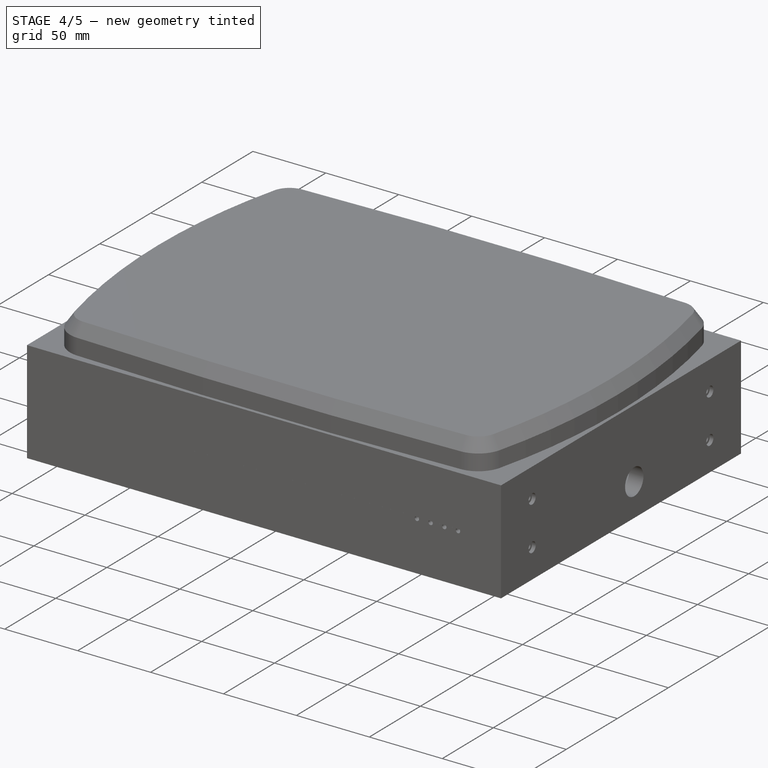
[diagram: stage 4 of 5 — iso view after this stage's code; geometry added in this stage tinted green]
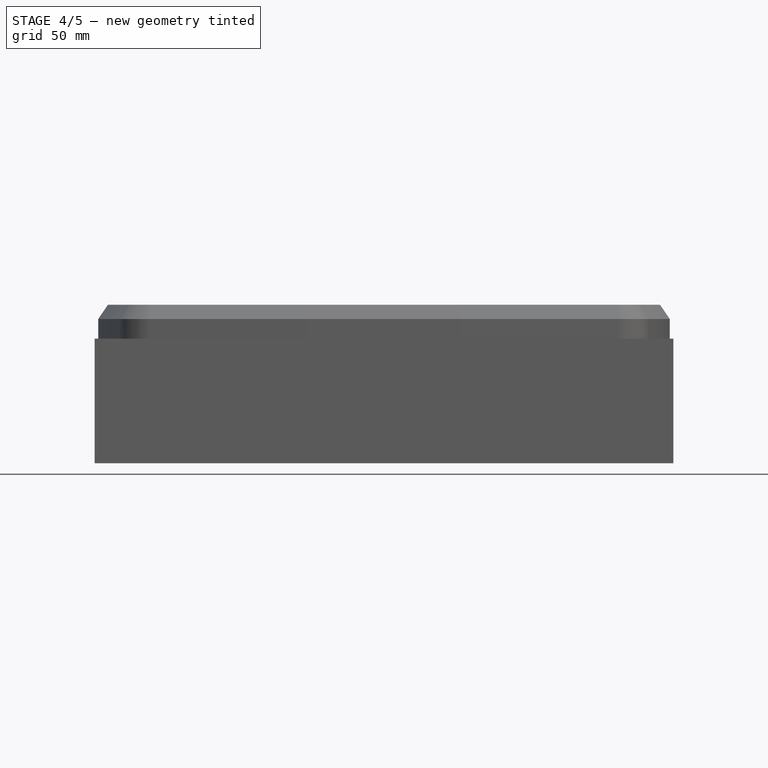
[diagram: stage 4 of 5 — front view after this stage's code; geometry added in this stage tinted green]
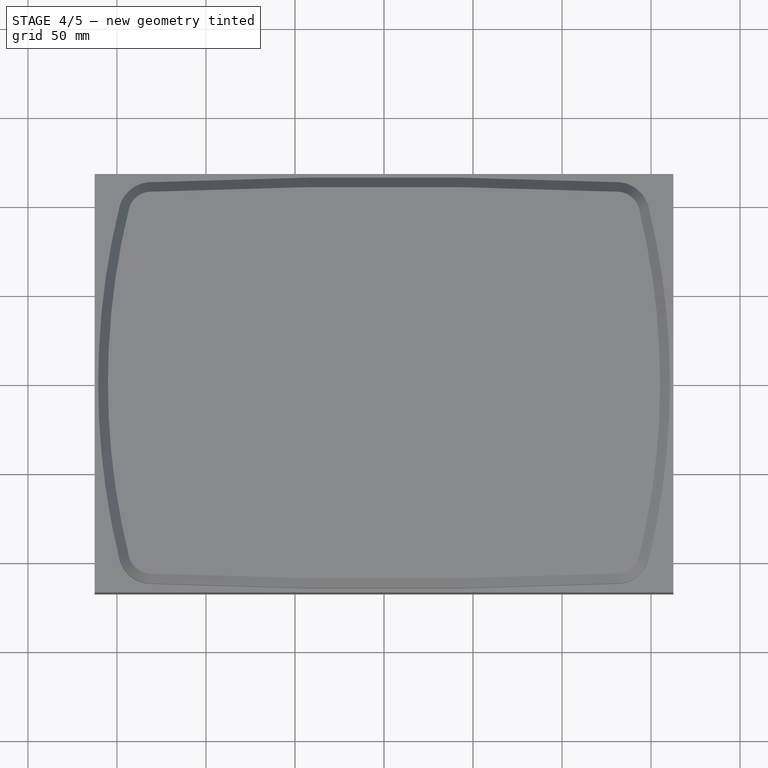
[diagram: stage 4 of 5 — top view after this stage's code; geometry added in this stage tinted green]
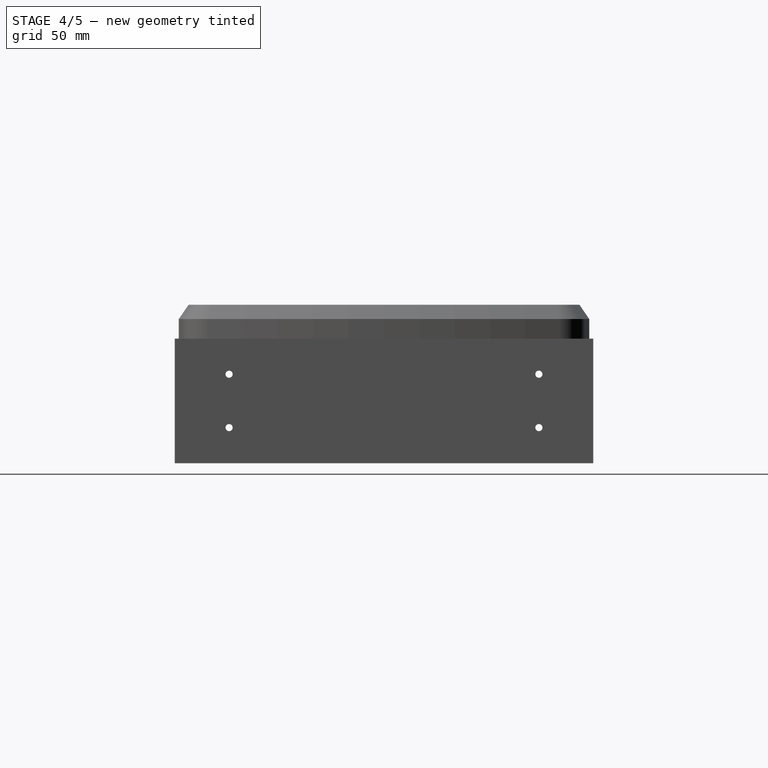
[diagram: stage 4 of 5 — right view after this stage's code; geometry added in this stage tinted green]
FEATURE [Sketcher::SketchObject] Sketch  label="rcc001"
  MapMode = 5
  Support = -> [XY_Plane005]
  sketch-geometry (8):
    g0: LineSegment StartX=-12.25 StartY=2.25 StartZ=0 EndX=12.25 EndY=2.25 EndZ=0
    g1: LineSegment StartX=12.25 StartY=2.25 StartZ=0 EndX=12.25 EndY=-2.25 EndZ=0
    g2: LineSegment StartX=-12.25 StartY=-2.25 StartZ=0 EndX=-12.25 EndY=2.25 EndZ=0
    g3: LineSegment StartX=-12.25 StartY=-2.25 StartZ=0 EndX=-11.4 EndY=-2.25 EndZ=0
    g4: LineSegment StartX=-11.4 StartY=-2.25 StartZ=0 EndX=-11.4 EndY=-0.75 EndZ=0
    g5: LineSegment StartX=-11.4 StartY=-0.75 StartZ=0 EndX=11.4 EndY=-0.75 EndZ=0
    g6: LineSegment StartX=11.4 StartY=-0.75 StartZ=0 EndX=11.4 EndY=-2.25 EndZ=0
    g7: LineSegment StartX=11.4 StartY=-2.25 StartZ=0 EndX=12.25 EndY=-2.25 EndZ=0
  constraints (23):
    c: Coincident(g0,g1)
    c: Coincident(g2,g0)
    c: Horizontal(g0)
    c: Vertical(g1)
    c: Vertical(g2)
    c: Symmetric(g0,g1,g-1)
    c: DistanceX(g0,g0) = 24.5
    c: DistanceY(g2,g2) = 4.5
    c: Horizontal(g3)
    c: Coincident(g3,g4)
    c: Vertical(g4)
    c: Coincident(g4,g5)
    c: Horizontal(g5)
    c: Coincident(g5,g6)
    c: Vertical(g6)
    c: Coincident(g6,g7)
    c: Horizontal(g7)
    c: Coincident(g7,g1)
    c: Coincident(g3,g2)
    c: DistanceY(g4,g4) = 1.5
    c: DistanceX(g3,g3) = 0.85
    c: Equal(g7,g3)
    c: Equal(g6,g4)
FEATURE [PartDesign::Pad] Pad001  label="RCC_base"
  Length = 1
  Length2 = 100
  Profile = -> Sketch
  Type = 0
FEATURE [Sketcher::SketchObject] Sketch019  label="bt"
  MapMode = 5
  Placement = pos=(47,0,0) rot=(0.57735,0.57735,0.57735;2.0944rad)
  sketch-geometry (4):
    g0: LineSegment StartX=-3.5 StartY=1.8 StartZ=0 EndX=3.5 EndY=1.8 EndZ=0
    g1: LineSegment StartX=3.5 StartY=1.8 StartZ=0 EndX=3.5 EndY=-1.8 EndZ=0
    g2: LineSegment StartX=3.5 StartY=-1.8 StartZ=0 EndX=-3.5 EndY=-1.8 EndZ=0
    g3: LineSegment StartX=-3.5 StartY=-1.8 StartZ=0 EndX=-3.5 EndY=1.8 EndZ=0
  constraints (11):
    c: Coincident(g0,g1)
    c: Coincident(g1,g2)
    c: Coincident(g2,g3)
    c: Coincident(g3,g0)
    c: Horizontal(g0)
    c: Horizontal(g2)
    c: Vertical(g1)
    c: Vertical(g3)
    c: Symmetric(g2,g0,g-1)
    c: DistanceX(g0,g0) = 7
    c: DistanceY(g3,g3) = 3.6
FEATURE [Sketcher::SketchObject] Sketch020  label="bt001"
  MapMode = 5
  Placement = pos=(49.2,0,0) rot=(0.57735,0.57735,0.57735;2.0944rad)
  sketch-geometry (4):
    g0: LineSegment StartX=-1.5 StartY=0.75 StartZ=0 EndX=1.5 EndY=0.75 EndZ=0
    g1: LineSegment StartX=1.5 StartY=0.75 StartZ=0 EndX=1.5 EndY=-0.75 EndZ=0
    g2: LineSegment StartX=1.5 StartY=-0.75 StartZ=0 EndX=-1.5 EndY=-0.75 EndZ=0
    g3: LineSegment StartX=-1.5 StartY=-0.75 StartZ=0 EndX=-1.5 EndY=0.75 EndZ=0
  constraints (11):
    c: Coincident(g0,g1)
    c: Coincident(g1,g2)
    c: Coincident(g2,g3)
    c: Coincident(g3,g0)
    c: Horizontal(g0)
    c: Horizontal(g2)
    c: Vertical(g1)
    c: Vertical(g3)
    c: Symmetric(g0,g1,g-1)
    c: DistanceX(g0,g0) = 3
    c: DistanceY(g3,g3) = 1.5
FEATURE [PartDesign::Pad] Pad024  label="BT_housing"
  Length = 2.2
  Length2 = 100
  Placement = pos=(47,0,0) rot=(0.57735,0.57735,0.57735;2.0944rad)
  Profile = -> Sketch019
  Type = 0
FEATURE [Sketcher::SketchObject] Sketch021  label="lcd"
  MapMode = 5
  Placement = pos=(0,0,0) rot=(0,1,0;3.14159rad)
  Support = -> [XY_Plane029]
  sketch-geometry (12):
    g0: LineSegment StartX=-128.5 StartY=85 StartZ=0 EndX=128.5 EndY=85 EndZ=0
    g1: LineSegment StartX=132.5 StartY=81 StartZ=0 EndX=132.5 EndY=-81 EndZ=0
    g2: LineSegment StartX=128.5 StartY=-85 StartZ=0 EndX=-128.5 EndY=-85 EndZ=0
    g3: LineSegment StartX=-132.5 StartY=-81 StartZ=0 EndX=-132.5 EndY=81 EndZ=0
    g4: ArcOfCircle CenterX=-128.5 CenterY=81 CenterZ=0 NormalX=0 NormalY=0 NormalZ=1 AngleXU=0 Radius=4 StartAngle=1.5708 EndAngle=3.14159
    g5: ArcOfCircle CenterX=128.5 CenterY=81 CenterZ=0 NormalX=0 NormalY=0 NormalZ=1 AngleXU=0 Radius=4 StartAngle=0 EndAngle=1.5708
    g6: ArcOfCircle CenterX=128.5 CenterY=-81 CenterZ=0 NormalX=0 NormalY=0 NormalZ=1 AngleXU=0 Radius=4 StartAngle=4.71239 EndAngle=6.28319
    g7: ArcOfCircle CenterX=-128.5 CenterY=-81 CenterZ=0 NormalX=0 NormalY=0 NormalZ=1 AngleXU=0 Radius=4 StartAngle=3.14159 EndAngle=4.71239
    g8: Circle CenterX=-128.5 CenterY=81 CenterZ=0 NormalX=0 NormalY=0 NormalZ=1 AngleXU=0 Radius=1.5
    g9: Circle CenterX=128.5 CenterY=81 CenterZ=0 NormalX=0 NormalY=0 NormalZ=1 AngleXU=0 Radius=1.5
    g10: Circle CenterX=-128.5 CenterY=-81 CenterZ=0 NormalX=0 NormalY=0 NormalZ=1 AngleXU=0 Radius=1.5
    g11: Circle CenterX=128.5 CenterY=-81 CenterZ=0 NormalX=0 NormalY=0 NormalZ=1 AngleXU=0 Radius=1.5
  constraints (27):
    c: Horizontal(g0)
    c: Horizontal(g2)
    c: Vertical(g1)
    c: Vertical(g3)
    c: Tangent(g0,g4) = 1.5708
    c: Tangent(g3,g4) = 1.5708
    c: Tangent(g0,g5) = 1.5708
    c: Tangent(g1,g5) = 1.5708
    c: Tangent(g1,g6) = 1.5708
    c: Tangent(g2,g6) = 1.5708
    c: Tangent(g2,g7) = 1.5708
    c: Tangent(g3,g7) = 1.5708
    c: Equal(g2,g0)
    c: Equal(g3,g1)
    c: DistanceY(g3,g3) = 162
    c: DistanceX(g0,g0) = 257
    c: DistanceX(g3,g1) = 265
    c: Equal(g4,g7)
    c: Symmetric(g4,g6,g-1)
    c: Equal(g8,g10)
    c: Equal(g10,g9)
    c: Equal(g9,g11)
    c: Radius(g8) = 1.5
    c: Coincident(g8,g4)
    c: Coincident(g10,g7)
    c: Coincident(g9,g5)
    c: Coincident(g11,g6)
FEATURE [Image::ImagePlane] ImagePlane002  label="LCD_front"
  Placement = pos=(-2.5,-7.5,0) rot=(0,1,0;3.14159rad)
  XSize = 306.9
  YSize = 222.6
FEATURE [PartDesign::Pad] Pad026  label="LCD_screen"
  Length = 7
  Length2 = 100
  Profile = -> Sketch021
  Type = 0
FEATURE [Sketcher::SketchObject] Sketch022  label="rcc"
  MapMode = 5
  sketch-geometry (12):
    g0: LineSegment StartX=-12.25 StartY=-2.25 StartZ=0 EndX=-12.25 EndY=-2.95 EndZ=0
    g1: LineSegment StartX=-12.25 StartY=-2.95 StartZ=0 EndX=12.25 EndY=-2.95 EndZ=0
    g2: LineSegment StartX=12.25 StartY=-2.95 StartZ=0 EndX=12.25 EndY=-2.25 EndZ=0
    g3: LineSegment StartX=12.25 StartY=-2.25 StartZ=0 EndX=11.4 EndY=-2.25 EndZ=0
    g4: LineSegment StartX=11.4 StartY=-2.25 StartZ=0 EndX=11.4 EndY=-0.75 EndZ=0
    g5: LineSegment StartX=11.4 StartY=-0.75 StartZ=0 EndX=10.4 EndY=-0.75 EndZ=0
    g6: LineSegment StartX=10.4 StartY=-0.75 StartZ=0 EndX=10.4 EndY=-2.25 EndZ=0
    g7: LineSegment StartX=10.4 StartY=-2.25 StartZ=0 EndX=-10.4 EndY=-2.25 EndZ=0
    g8: LineSegment StartX=-10.4 StartY=-2.25 StartZ=0 EndX=-10.4 EndY=-0.75 EndZ=0
    g9: LineSegment StartX=-10.4 StartY=-0.75 StartZ=0 EndX=-11.4 EndY=-0.75 EndZ=0
    g10: LineSegment StartX=-11.4 StartY=-0.75 StartZ=0 EndX=-11.4 EndY=-2.25 EndZ=0
    g11: LineSegment StartX=-11.4 StartY=-2.25 StartZ=0 EndX=-12.25 EndY=-2.25 EndZ=0
  constraints (36):
    c: Vertical(g0)
    c: Coincident(g0,g1)
    c: Horizontal(g1)
    c: Coincident(g1,g2)
    c: Vertical(g2)
    c: Coincident(g2,g3)
    c: Horizontal(g3)
    c: Coincident(g3,g4)
    c: Vertical(g4)
    c: Coincident(g4,g5)
    c: Horizontal(g5)
    c: Coincident(g5,g6)
    c: Vertical(g6)
    c: Coincident(g6,g7)
    c: Horizontal(g7)
    c: Coincident(g7,g8)
    c: Vertical(g8)
    c: Coincident(g8,g9)
    c: Horizontal(g9)
    c: Coincident(g9,g10)
    c: Vertical(g10)
    c: Coincident(g10,g11)
    c: Coincident(g11,g0)
    c: Horizontal(g11)
    c: Symmetric(g1,g0,g-2)
    c: Equal(g0,g2)
    c: Equal(g10,g4)
    c: DistanceY(g0,g0) = 0.7
    c: DistanceX(g1,g1) = 24.5
    c: DistanceX(g11,g11) = 0.85
    c: DistanceY(g10,g10) = 1.5
    c: Equal(g10,g8)
    c: Equal(g9,g5)
    c: Equal(g11,g3)
    c: Distance(g-1,g7) = 2.25
    c: DistanceX(g9,g9) = 1
FEATURE [Sketcher::SketchObject] Sketch023  label="pcb"
  MapMode = 5
  Placement = pos=(0,0,-1.63) rot=(0,1,0;3.14159rad)
  sketch-geometry (2):
    g0: Circle CenterX=0 CenterY=0 CenterZ=0 NormalX=0 NormalY=0 NormalZ=1 AngleXU=0 Radius=2.45
    g1: Circle CenterX=0 CenterY=0 CenterZ=0 NormalX=0 NormalY=0 NormalZ=1 AngleXU=0 Radius=1.7
  constraints (4):
    c: Radius(g0) = 2.45
    c: Radius(g1) = 1.7
    c: Coincident(g1,g0)
    c: Coincident(g0,g-1)
FEATURE [Sketcher::SketchObject] Sketch024  label="pcb002"
  MapMode = 5
  Support = -> [XY_Plane025]
  sketch-geometry (8):
    g0: LineSegment StartX=-125 StartY=20 StartZ=0 EndX=125 EndY=20 EndZ=0
    g1: LineSegment StartX=125 StartY=20 StartZ=0 EndX=125 EndY=-20 EndZ=0
    g2: LineSegment StartX=125 StartY=-20 StartZ=0 EndX=-125 EndY=-20 EndZ=0
    g3: LineSegment StartX=-125 StartY=-20 StartZ=0 EndX=-125 EndY=20 EndZ=0
    g4: Circle CenterX=-121.25 CenterY=16.25 CenterZ=0 NormalX=0 NormalY=0 NormalZ=1 AngleXU=0 Radius=1.5
    g5: Circle CenterX=121.25 CenterY=16.25 CenterZ=0 NormalX=0 NormalY=0 NormalZ=1 AngleXU=0 Radius=1.5
    g6: Circle CenterX=-121.25 CenterY=-16.25 CenterZ=0 NormalX=0 NormalY=0 NormalZ=1 AngleXU=0 Radius=1.5
    g7: Circle CenterX=121.25 CenterY=-16.25 CenterZ=0 NormalX=0 NormalY=0 NormalZ=1 AngleXU=0 Radius=1.5
  constraints (21):
    c: Coincident(g0,g1)
    c: Coincident(g1,g2)
    c: Coincident(g2,g3)
    c: Coincident(g3,g0)
    c: Horizontal(g0)
    c: Horizontal(g2)
    c: Vertical(g1)
    c: Vertical(g3)
    c: DistanceY(g3,g3) = 40
    c: Symmetric(g0,g1,g-1)
    c: DistanceX(g0,g0) = 250
    c: Equal(g4,g5)
    c: Equal(g5,g6)
    c: Equal(g6,g7)
    c: Radius(g4) = 1.5
    c: Symmetric(g6,g7,g-2)
    c: Symmetric(g4,g5,g-2)
    c: DistanceX(g4,g6) = 0
    c: DistanceX(g4,g5) = 242.5
    c: DistanceY(g6,g4) = 32.5
    c: Distance(g4,g0) = 3.75
FEATURE [PartDesign::Pad] Pad029  label="PCB001"
  Length = 1.6
  Length2 = 100
  Profile = -> Sketch024
  Reversed = true
  Type = 0
FEATURE [Part::Box] Box008  label="RJ45_body"
  AttacherType = Attacher::AttachEngine3D
  Height = 15.5
  Length = 14
  Placement = pos=(-7,0,-5.8) rot=(0,0,1;0rad)
  Width = 27
FEATURE [Sketcher::SketchObject] Sketch046  label="RJ45_cutout"
  MapMode = 5
  Placement = pos=(0,0,0) rot=(0,0.707107,0.707107;3.14159rad)
  sketch-geometry (12):
    g0: LineSegment StartX=-6 StartY=3.5 StartZ=0 EndX=6 EndY=3.5 EndZ=0
    g1: LineSegment StartX=6 StartY=3.5 StartZ=0 EndX=6 EndY=-3.5 EndZ=0
    g2: LineSegment StartX=6 StartY=-3.5 StartZ=0 EndX=3.5 EndY=-3.5 EndZ=0
    g3: LineSegment StartX=3.5 StartY=-3.5 StartZ=0 EndX=3.5 EndY=-4.5 EndZ=0
    g4: LineSegment StartX=3.5 StartY=-4.5 StartZ=0 EndX=1.75 EndY=-4.5 EndZ=0
    g5: LineSegment StartX=1.75 StartY=-4.5 StartZ=0 EndX=1.75 EndY=-5.5 EndZ=0
    g6: LineSegment StartX=1.75 StartY=-5.5 StartZ=0 EndX=-1.75 EndY=-5.5 EndZ=0
    g7: LineSegment StartX=-1.75 StartY=-5.5 StartZ=0 EndX=-1.75 EndY=-4.5 EndZ=0
    g8: LineSegment StartX=-1.75 StartY=-4.5 StartZ=0 EndX=-3.5 EndY=-4.5 EndZ=0
    g9: LineSegment StartX=-3.5 StartY=-4.5 StartZ=0 EndX=-3.5 EndY=-3.5 EndZ=0
    g10: LineSegment StartX=-3.5 StartY=-3.5 StartZ=0 EndX=-6 EndY=-3.5 EndZ=0
    g11: LineSegment StartX=-6 StartY=-3.5 StartZ=0 EndX=-6 EndY=3.5 EndZ=0
  constraints (36):
    c: Horizontal(g0)
    c: Coincident(g0,g1)
    c: Vertical(g1)
    c: Coincident(g1,g2)
    c: Horizontal(g2)
    c: Coincident(g2,g3)
    c: Vertical(g3)
    c: Coincident(g3,g4)
    c: Horizontal(g4)
    c: Coincident(g4,g5)
    c: Vertical(g5)
    c: Coincident(g5,g6)
    c: Horizontal(g6)
    c: Coincident(g6,g7)
    c: Vertical(g7)
    c: Coincident(g7,g8)
    c: Horizontal(g8)
    c: Coincident(g8,g9)
    c: Vertical(g9)
    c: Coincident(g9,g10)
    c: Horizontal(g10)
    c: Coincident(g10,g11)
    c: Coincident(g11,g0)
    c: Vertical(g11)
    c: DistanceX(g0,g0) = 12
    c: DistanceY(g11,g11) = 7
    c: Equal(g10,g2)
    c: Equal(g8,g4)
    c: Equal(g11,g1)
    c: Equal(g9,g3)
    c: Equal(g7,g5)
    c: DistanceX(g10,g10) = 2.5
    c: DistanceX(g6,g6) = 3.5
    c: DistanceY(g9,g9) = 1
    c: DistanceY(g7,g7) = 1
    c: Symmetric(g0,g1,g-1)
FEATURE [PartDesign::Pad] Pad045  label="RJ45_cutout1"
  Length = 8
  Length2 = 100
  Placement = pos=(0,0,0) rot=(0,0.707107,0.707107;3.14159rad)
  Profile = -> Sketch046
  Type = 0
FEATURE [Sketcher::SketchObject] Sketch047  label="RJ45_cutout002"
  MapMode = 5
  Placement = pos=(0,19,4) rot=(-1,0,0;1.5708rad)
  sketch-geometry (12):
    g0: LineSegment StartX=-6 StartY=3.5 StartZ=0 EndX=6 EndY=3.5 EndZ=0
    g1: LineSegment StartX=6 StartY=3.5 StartZ=0 EndX=6 EndY=-3.5 EndZ=0
    g2: LineSegment StartX=6 StartY=-3.5 StartZ=0 EndX=3.5 EndY=-3.5 EndZ=0
    g3: LineSegment StartX=3.5 StartY=-3.5 StartZ=0 EndX=3.5 EndY=-4.5 EndZ=0
    g4: LineSegment StartX=3.5 StartY=-4.5 StartZ=0 EndX=1.75 EndY=-4.5 EndZ=0
    g5: LineSegment StartX=1.75 StartY=-4.5 StartZ=0 EndX=1.75 EndY=-5.5 EndZ=0
    g6: LineSegment StartX=1.75 StartY=-5.5 StartZ=0 EndX=-1.75 EndY=-5.5 EndZ=0
    g7: LineSegment StartX=-1.75 StartY=-5.5 StartZ=0 EndX=-1.75 EndY=-4.5 EndZ=0
    g8: LineSegment StartX=-1.75 StartY=-4.5 StartZ=0 EndX=-3.5 EndY=-4.5 EndZ=0
    g9: LineSegment StartX=-3.5 StartY=-4.5 StartZ=0 EndX=-3.5 EndY=-3.5 EndZ=0
    g10: LineSegment StartX=-3.5 StartY=-3.5 StartZ=0 EndX=-6 EndY=-3.5 EndZ=0
    g11: LineSegment StartX=-6 StartY=-3.5 StartZ=0 EndX=-6 EndY=3.5 EndZ=0
  constraints (36):
    c: Horizontal(g0)
    c: Coincident(g0,g1)
    c: Vertical(g1)
    c: Coincident(g1,g2)
    c: Horizontal(g2)
    c: Coincident(g2,g3)
    c: Vertical(g3)
    c: Coincident(g3,g4)
    c: Horizontal(g4)
    c: Coincident(g4,g5)
    c: Vertical(g5)
    c: Coincident(g5,g6)
    c: Horizontal(g6)
    c: Coincident(g6,g7)
    c: Vertical(g7)
    c: Coincident(g7,g8)
    c: Horizontal(g8)
    c: Coincident(g8,g9)
    c: Vertical(g9)
    c: Coincident(g9,g10)
    c: Horizontal(g10)
    c: Coincident(g10,g11)
    c: Coincident(g11,g0)
    c: Vertical(g11)
    c: DistanceX(g0,g0) = 12
    c: DistanceY(g11,g11) = 7
    c: Equal(g10,g2)
    c: Equal(g8,g4)
    c: Equal(g11,g1)
    c: Equal(g9,g3)
    c: Equal(g7,g5)
    c: DistanceX(g10,g10) = 2.5
    c: DistanceX(g6,g6) = 3.5
    c: DistanceY(g9,g9) = 1
    c: DistanceY(g7,g7) = 1
    c: Symmetric(g0,g1,g-1)
FEATURE [PartDesign::Pad] Pad046  label="RJ45_cutout2"
  Length = 8
  Length2 = 100
  Placement = pos=(0,19,4) rot=(-1,0,0;1.5708rad)
  Profile = -> Sketch047
  Type = 0
FEATURE [Image::ImagePlane] ImagePlane007  label="POWER_pcb_eagle"
  Placement = pos=(-4.23,-4.3,0) rot=(0,0,1;0rad)
  XSize = 63.15
  YSize = 71.203
FEATURE [Sketcher::SketchObject] Sketch048
  MapMode = 5
  Support = -> [XY_Plane052]
  sketch-geometry (6):
    g0: LineSegment StartX=-17.855 StartY=23.015 StartZ=0 EndX=17.855 EndY=23.015 EndZ=0
    g1: LineSegment StartX=17.855 StartY=23.015 StartZ=0 EndX=17.855 EndY=-23.015 EndZ=0
    g2: LineSegment StartX=17.855 StartY=-23.015 StartZ=0 EndX=-17.855 EndY=-23.015 EndZ=0
    g3: LineSegment StartX=-17.855 StartY=-23.015 StartZ=0 EndX=-17.855 EndY=23.015 EndZ=0
    g4: Circle CenterX=14.665 CenterY=19.825 CenterZ=0 NormalX=0 NormalY=0 NormalZ=1 AngleXU=0 Radius=1.6
    g5: Circle CenterX=-15.145 CenterY=-19.985 CenterZ=0 NormalX=0 NormalY=0 NormalZ=1 AngleXU=0 Radius=1.6
  constraints (17):
    c: Coincident(g0,g1)
    c: Coincident(g1,g2)
    c: Coincident(g2,g3)
    c: Coincident(g3,g0)
    c: Horizontal(g0)
    c: Horizontal(g2)
    c: Vertical(g1)
    c: Vertical(g3)
    c: Symmetric(g1,g0,g-1)
    c: DistanceX(g0,g0) = 35.71
    c: DistanceY(g1,g1) = 46.03
    c: Radius(g4) = 1.6
    c: Equal(g4,g5)
    c: Distance(g5,g2) = 3.03
    c: Distance(g5,g3) = 2.71
    c: Distance(g4,g1) = 3.19
    c: Distance(g4,g0) = 3.19
FEATURE [PartDesign::Pad] Pad047  label="POWER_pcb"
  Length = 1.6
  Length2 = 100
  Profile = -> Sketch048
  Reversed = true
  Type = 0
FEATURE [Part::Cylinder] Cylinder002  label="ROTARY_bottom"
  Angle = 360
  AttacherType = Attacher::AttachEngine3D
  Height = 5
  Placement = pos=(0,0,-5) rot=(0,0,1;0rad)
  Radius = 3.3
FEATURE [Part::Box] Box010  label="ROTARY_base"
  AttacherType = Attacher::AttachEngine3D
  Height = 6.6
  Length = 13.4
  Placement = pos=(-6.7,-6.25,-11.6) rot=(0,0,1;0rad)
  Width = 12.5
FEATURE [PartDesign::Body] Pad011Body  label="HDMI001"
  Group = -> [Pad011,Sketch006,Sketch007,Pocket]
  Origin = -> Origin016
  Placement = pos=(-22,3,0) rot=(0,0,1;0rad)
  Tip = -> Pocket
FEATURE [PartDesign::Pad] Pad068  label="PWR_front"
  Length = 3.3
  Length2 = 100
  Placement = pos=(0,-6.3,0) rot=(0,0.707107,0.707107;3.14159rad)
  Profile = -> Sketch002
  Type = 0
FEATURE [PartDesign::Pad] Pad069  label="PWR_mid"
  BaseFeature = -> Pad068
  Length = 9
  Length2 = 100
  Placement = pos=(0,-6.3,0) rot=(0,0.707107,0.707107;3.14159rad)
  Profile = -> Sketch003
  Type = 0
FEATURE [PartDesign::Pad] Pad070  label="PWR_back"
  BaseFeature = -> Pad069
  Length = 1
  Length2 = 100
  Placement = pos=(0,-6.3,0) rot=(0,0.707107,0.707107;3.14159rad)
  Profile = -> Sketch004
  Type = 0
FEATURE [PartDesign::Pad] Pad071  label="PWR_pin"
  BaseFeature = -> Pad070
  Length = 10
  Length2 = 100
  Placement = pos=(0,-6.3,0) rot=(0,0.707107,0.707107;3.14159rad)
  Profile = -> Sketch005
  Reversed = true
  Type = 0
FEATURE [PartDesign::Body] Body001  label="PWR003"
  Group = -> [Sketch002,Sketch005,Sketch004,Sketch003,Pad068,Pad069,Pad070,Pad071]
  Origin = -> Origin067
  Placement = pos=(-39.5,0,0) rot=(0,0,1;0rad)
  Tip = -> Pad071
FEATURE [PartDesign::Pad] Pad072
  Length = 0.3
  Length2 = 100
  Placement = pos=(0,-0.3,0) rot=(0,0.707107,0.707107;3.14159rad)
  Profile = -> Sketch013
  Type = 0
FEATURE [PartDesign::Pad] Pad073
  BaseFeature = -> Pad072
  Length = 7
  Length2 = 100
  Placement = pos=(0,-0.3,0) rot=(0,0.707107,0.707107;3.14159rad)
  Profile = -> Sketch014
  Reversed = true
  Type = 0
FEATURE [PartDesign::Pad] Pad074
  BaseFeature = -> Pad073
  Length = 8.5
  Length2 = 100
  Placement = pos=(0,-0.3,0) rot=(0,0.707107,0.707107;3.14159rad)
  Profile = -> Sketch015
  Reversed = true
  Type = 0
FEATURE [PartDesign::Chamfer] Chamfer
  Base = -> Pad074 [Edge32,Edge37]
  BaseFeature = -> Pad074
  Placement = pos=(0,-0.3,0) rot=(0,0.707107,0.707107;3.14159rad)
  Size = 4
FEATURE [PartDesign::Fillet] Fillet
  Base = -> Chamfer [Face20]
  BaseFeature = -> Chamfer
  Placement = pos=(0,-0.3,0) rot=(0,0.707107,0.707107;3.14159rad)
  Radius = 1
FEATURE [PartDesign::Pad] Pad078
  Length = 22.7
  Length2 = 100
  Placement = pos=(0,0,-1.63) rot=(0,1,0;3.14159rad)
  Profile = -> Sketch023
  Type = 0
FEATURE [Part::FeaturePython] Array008  label="LCD_controller_mounts"  # Draft array (typed FeaturePython)
  Angle = 360
  ArrayType = 0
  Axis = (0,0,1)
  Base = -> Pad078
  Center = (0,0,0)
  Fuse = false
  IntervalAxis = (0,0,0)
  IntervalX = (94,0,0)
  IntervalY = (0,54,0)
  IntervalZ = (0,0,0)
  NumberPolar = 1
  NumberX = 2
  NumberY = 2
  NumberZ = 1
  Placement = pos=(-47,0,0) rot=(0,0,1;0rad)
FEATURE [PartDesign::Body] Body003  label="SCREEN1"
  Group = -> [Sketch067,Pad080]
  Origin = -> Origin069
  Placement = pos=(0,0,-3) rot=(0,0,1;0rad)
  Tip = -> Pad080
FEATURE [Part::Cut] Cut015  label="RJ45_stage1"
  Base = -> Box008
  Tool = -> Pad045
FEATURE [Part::Cut] Cut016  label="RJ45_adapter"
  Base = -> Cut015
  Tool = -> Pad046
FEATURE [PartDesign::Pad] Pad059  label="ROTARY_nut"
  Length = 2.3
  Length2 = 100
  Placement = pos=(0,0,0.3) rot=(0,0,1;0rad)
  Profile = -> Sketch060
  Reversed = true
  Type = 0
FEATURE [Part::Fuse] Fusion020
  Base = -> Cylinder002
  Tool = -> Box010
FEATURE [Sketcher::SketchObject] Sketch069  label="pcb005"
  MapMode = 5
  Placement = pos=(0,0,0) rot=(0,1,0;3.14159rad)
  sketch-geometry (2):
    g0: Circle CenterX=0 CenterY=0 CenterZ=0 NormalX=0 NormalY=0 NormalZ=1 AngleXU=0 Radius=2.45
    g1: Circle CenterX=0 CenterY=0 CenterZ=0 NormalX=0 NormalY=0 NormalZ=1 AngleXU=0 Radius=1.7
  constraints (4):
    c: Radius(g0) = 2.45
    c: Radius(g1) = 1.7
    c: Coincident(g1,g0)
    c: Coincident(g0,g-1)
FEATURE [PartDesign::Pad] Pad085
  Length = 25
  Length2 = 100
  Placement = pos=(0,0,0) rot=(0,1,0;3.14159rad)
  Profile = -> Sketch069
  Type = 0
FEATURE [Part::FeaturePython] Array012  label="PI_mounts"  # Draft array (typed FeaturePython)
  Angle = 360
  ArrayType = 0
  Axis = (0,0,1)
  Base = -> Pad085
  Center = (0,0,0)
  Fuse = false
  IntervalAxis = (0,0,0)
  IntervalX = (58,0,0)
  IntervalY = (0,49,0)
  IntervalZ = (0,0,0)
  NumberPolar = 1
  NumberX = 2
  NumberY = 2
  NumberZ = 1
FEATURE [PartDesign::Body] Body013  label="LOCK_body"
  Group = -> [Sketch027,Pad093]
  Origin = -> Origin081
  Tip = -> Pad093
FEATURE [App::Part] Part001  label="LOCK"
  Group = -> [Sketch029,Pad034,Body004,Body005,Body006,Array009,Array010,Array011,Body014,Body012,Body013]
  License = CC BY 3.0
  LicenseURL = http://creativecommons.org/licenses/by/3.0/
  Origin = -> Origin070
  Placement = pos=(162.5,13,-41.5) rot=(0.57735,-0.57735,0.57735;4.18879rad)
FEATURE [Sketcher::SketchObject] Sketch070  label="rcc002"
  MapMode = 5
  Support = -> [XY_Plane084]
  sketch-geometry (8):
    g0: LineSegment StartX=-12.25 StartY=2.25 StartZ=0 EndX=12.25 EndY=2.25 EndZ=0
    g1: LineSegment StartX=12.25 StartY=2.25 StartZ=0 EndX=12.25 EndY=-2.25 EndZ=0
    g2: LineSegment StartX=-12.25 StartY=-2.25 StartZ=0 EndX=-12.25 EndY=2.25 EndZ=0
    g3: LineSegment StartX=-12.25 StartY=-2.25 StartZ=0 EndX=-11.4 EndY=-2.25 EndZ=0
    g4: LineSegment StartX=-11.4 StartY=-2.25 StartZ=0 EndX=-11.4 EndY=-0.75 EndZ=0
    g5: LineSegment StartX=-11.4 StartY=-0.75 StartZ=0 EndX=11.4 EndY=-0.75 EndZ=0
    g6: LineSegment StartX=11.4 StartY=-0.75 StartZ=0 EndX=11.4 EndY=-2.25 EndZ=0
    g7: LineSegment StartX=11.4 StartY=-2.25 StartZ=0 EndX=12.25 EndY=-2.25 EndZ=0
  constraints (23):
    c: Coincident(g0,g1)
    c: Coincident(g2,g0)
    c: Horizontal(g0)
    c: Vertical(g1)
    c: Vertical(g2)
    c: Symmetric(g0,g1,g-1)
    c: DistanceX(g0,g0) = 24.5
    c: DistanceY(g2,g2) = 4.5
    c: Horizontal(g3)
    c: Coincident(g3,g4)
    c: Vertical(g4)
    c: Coincident(g4,g5)
    c: Horizontal(g5)
    c: Coincident(g5,g6)
    c: Vertical(g6)
    c: Coincident(g6,g7)
    c: Horizontal(g7)
    c: Coincident(g7,g1)
    c: Coincident(g3,g2)
    c: DistanceY(g4,g4) = 1.5
    c: DistanceX(g3,g3) = 0.85
    c: Equal(g7,g3)
    c: Equal(g6,g4)
FEATURE [PartDesign::Pad] Pad094  label="RCC_base001"
  Length = 1
  Length2 = 100
  Profile = -> Sketch070
  Reversed = true
  Type = 0
FEATURE [PartDesign::Body] Pad001Body001  label="RCC_base003"
  Group = -> [Sketch070,Pad094]
  Origin = -> Origin084
  Tip = -> Pad094
FEATURE [Sketcher::SketchObject] Sketch071  label="rcc003"
  MapMode = 5
  sketch-geometry (12):
    g0: LineSegment StartX=-12.25 StartY=-2.25 StartZ=0 EndX=-12.25 EndY=-2.95 EndZ=0
    g1: LineSegment StartX=-12.25 StartY=-2.95 StartZ=0 EndX=12.25 EndY=-2.95 EndZ=0
    g2: LineSegment StartX=12.25 StartY=-2.95 StartZ=0 EndX=12.25 EndY=-2.25 EndZ=0
    g3: LineSegment StartX=12.25 StartY=-2.25 StartZ=0 EndX=11.4 EndY=-2.25 EndZ=0
    g4: LineSegment StartX=11.4 StartY=-2.25 StartZ=0 EndX=11.4 EndY=-0.75 EndZ=0
    g5: LineSegment StartX=11.4 StartY=-0.75 StartZ=0 EndX=10.4 EndY=-0.75 EndZ=0
    g6: LineSegment StartX=10.4 StartY=-0.75 StartZ=0 EndX=10.4 EndY=-2.25 EndZ=0
    g7: LineSegment StartX=10.4 StartY=-2.25 StartZ=0 EndX=-10.4 EndY=-2.25 EndZ=0
    g8: LineSegment StartX=-10.4 StartY=-2.25 StartZ=0 EndX=-10.4 EndY=-0.75 EndZ=0
    g9: LineSegment StartX=-10.4 StartY=-0.75 StartZ=0 EndX=-11.4 EndY=-0.75 EndZ=0
    g10: LineSegment StartX=-11.4 StartY=-0.75 StartZ=0 EndX=-11.4 EndY=-2.25 EndZ=0
    g11: LineSegment StartX=-11.4 StartY=-2.25 StartZ=0 EndX=-12.25 EndY=-2.25 EndZ=0
  constraints (36):
    c: Vertical(g0)
    c: Coincident(g0,g1)
    c: Horizontal(g1)
    c: Coincident(g1,g2)
    c: Vertical(g2)
    c: Coincident(g2,g3)
    c: Horizontal(g3)
    c: Coincident(g3,g4)
    c: Vertical(g4)
    c: Coincident(g4,g5)
    c: Horizontal(g5)
    c: Coincident(g5,g6)
    c: Vertical(g6)
    c: Coincident(g6,g7)
    c: Horizontal(g7)
    c: Coincident(g7,g8)
    c: Vertical(g8)
    c: Coincident(g8,g9)
    c: Horizontal(g9)
    c: Coincident(g9,g10)
    c: Vertical(g10)
    c: Coincident(g10,g11)
    c: Coincident(g11,g0)
    c: Horizontal(g11)
    c: Symmetric(g1,g0,g-2)
    c: Equal(g0,g2)
    c: Equal(g10,g4)
    c: DistanceY(g0,g0) = 0.7
    c: DistanceX(g1,g1) = 24.5
    c: DistanceX(g11,g11) = 0.85
    c: DistanceY(g10,g10) = 1.5
    c: Equal(g10,g8)
    c: Equal(g9,g5)
    c: Equal(g11,g3)
    c: Distance(g-1,g7) = 2.25
    c: DistanceX(g9,g9) = 1
FEATURE [Part::FeaturePython] Array013  label="RCC_base002"  # Draft array (typed FeaturePython)
  Angle = 360
  ArrayType = 0
  Axis = (0,0,1)
  Base = -> Pad001Body
  Center = (0,0,0)
  Fuse = false
  IntervalAxis = (0,0,0)
  IntervalX = (28.6,0,0)
  IntervalY = (0,1,0)
  IntervalZ = (0,0,0)
  NumberPolar = 1
  NumberX = 2
  NumberY = 1
  NumberZ = 1
FEATURE [Part::FeaturePython] Array014  label="RCC_base004"  # Draft array (typed FeaturePython)
  Angle = 360
  ArrayType = 0
  Axis = (0,0,1)
  Base = -> Pad001Body001
  Center = (0,0,0)
  Fuse = false
  IntervalAxis = (0,0,0)
  IntervalX = (89.5,0,0)
  IntervalY = (0,1,0)
  IntervalZ = (0,0,0)
  NumberPolar = 1
  NumberX = 2
  NumberY = 1
  NumberZ = 1
  Placement = pos=(0,-55,-12.6) rot=(0,0,1;0rad)
FEATURE [Part::FeaturePython] Array  label="BTN_housing"  # Draft array (typed FeaturePython)
  Angle = 360
  ArrayType = 0
  Axis = (0,0,1)
  Base = -> Pad024Body
  Center = (0,0,0)
  Fuse = false
  IntervalAxis = (0,0,0)
  IntervalX = (1,0,0)
  IntervalY = (0,9.4,0)
  IntervalZ = (0,0,0)
  NumberPolar = 1
  NumberX = 1
  NumberY = 5
  NumberZ = 1
FEATURE [Sketcher::SketchObject] Sketch072  label="pwr007"
  MapMode = 5
  Placement = pos=(0,-3,0) rot=(0,0.707107,0.707107;3.14159rad)
  sketch-geometry (5):
    g0: LineSegment StartX=4.4 StartY=0 StartZ=0 EndX=-4.4 EndY=0 EndZ=0
    g1: LineSegment StartX=-4.4 StartY=0 StartZ=0 EndX=-4.4 EndY=6.45 EndZ=0
    g2: LineSegment StartX=4.4 StartY=6.45 StartZ=0 EndX=4.4 EndY=0 EndZ=0
    g3: Circle CenterX=0 CenterY=6.45 CenterZ=0 NormalX=0 NormalY=0 NormalZ=1 AngleXU=0 Radius=3.15
    g4: ArcOfCircle CenterX=0 CenterY=6.45 CenterZ=0 NormalX=0 NormalY=0 NormalZ=1 AngleXU=0 Radius=4.4 StartAngle=1e-12 EndAngle=3.14159
  constraints (15):
    c: Coincident(g0,g1)
    c: Coincident(g2,g0)
    c: Horizontal(g0)
    c: Vertical(g1)
    c: Vertical(g2)
    c: PointOnObject(g-1,g0)
    c: Radius(g3) = 3.15
    c: DistanceX(g0,g0) = 8.8
    c: Coincident(g4,g3)
    c: Coincident(g4,g2)
    c: Coincident(g4,g1)
    c: PointOnObject(g3,g-2)
    c: Distance(g3,g0) = 6.45
    c: Equal(g1,g2)
    c: DistanceY(g1,g1) = 6.45
FEATURE [Sketcher::SketchObject] Sketch073  label="pwr008"
  MapMode = 5
  Placement = pos=(0,6,0) rot=(0,0.707107,0.707107;3.14159rad)
  sketch-geometry (1):
    g0: Circle CenterX=0 CenterY=6.45 CenterZ=0 NormalX=0 NormalY=0 NormalZ=1 AngleXU=0 Radius=0.5
  constraints (2):
    c: Radius(g0) = 0.5
    c: DistanceY(g-1,g0) = 6.45
FEATURE [Sketcher::SketchObject] Sketch074  label="pwr009"
  MapMode = 5
  Placement = pos=(0,-6.3,0) rot=(0,0.707107,0.707107;3.14159rad)
  sketch-geometry (5):
    g0: LineSegment StartX=-4.4 StartY=11 StartZ=0 EndX=4.4 EndY=11 EndZ=0
    g1: LineSegment StartX=4.4 StartY=11 StartZ=0 EndX=4.4 EndY=0 EndZ=0
    g2: LineSegment StartX=4.4 StartY=0 StartZ=0 EndX=-4.4 EndY=0 EndZ=0
    g3: LineSegment StartX=-4.4 StartY=0 StartZ=0 EndX=-4.4 EndY=11 EndZ=0
    g4: Circle CenterX=0 CenterY=6.45 CenterZ=0 NormalX=0 NormalY=0 NormalZ=1 AngleXU=0 Radius=3.15
  constraints (15):
    c: Coincident(g0,g1)
    c: Coincident(g1,g2)
    c: Coincident(g2,g3)
    c: Coincident(g3,g0)
    c: Horizontal(g0)
    c: Horizontal(g2)
    c: Vertical(g1)
    c: Vertical(g3)
    c: DistanceX(g0,g0) = 8.8
    c: DistanceY(g3,g3) = 11
    c: PointOnObject(g1,g-1)
    c: Radius(g4) = 3.15
    c: PointOnObject(g4,g-2)
    c: Symmetric(g2,g1,g-1)
    c: DistanceY(g-1,g4) = 6.45
FEATURE [Sketcher::SketchObject] Sketch075  label="pwr010"
  MapMode = 5
  Placement = pos=(0,6,0) rot=(0,0.707107,0.707107;3.14159rad)
  sketch-geometry (4):
    g0: LineSegment StartX=4.4 StartY=0 StartZ=0 EndX=-4.4 EndY=0 EndZ=0
    g1: LineSegment StartX=-4.4 StartY=0 StartZ=0 EndX=-4.4 EndY=6.45 EndZ=0
    g2: LineSegment StartX=4.4 StartY=0 StartZ=0 EndX=4.4 EndY=6.45 EndZ=0
    g3: ArcOfCircle CenterX=0 CenterY=6.45 CenterZ=0 NormalX=0 NormalY=0 NormalZ=1 AngleXU=0 Radius=4.4 StartAngle=0 EndAngle=3.14159
  constraints (13):
    c: Coincident(g1,g0)
    c: Coincident(g2,g0)
    c: Horizontal(g0)
    c: Vertical(g1)
    c: Vertical(g2)
    c: PointOnObject(g-1,g0)
    c: DistanceX(g0,g0) = 8.8
    c: Equal(g2,g1)
    c: Coincident(g3,g2)
    c: Angle(g3) = 3.14159
    c: DistanceY(g1,g1) = 6.45
    c: Coincident(g3,g1)
    c: Symmetric(g0,g0,g-1)
FEATURE [PartDesign::Pad] Pad098  label="PWR_front001"
  Length = 3.3
  Length2 = 100
  Placement = pos=(0,-6.3,0) rot=(0,0.707107,0.707107;3.14159rad)
  Profile = -> Sketch074
  Type = 0
FEATURE [PartDesign::Pad] Pad099  label="PWR_mid001"
  BaseFeature = -> Pad098
  Length = 9
  Length2 = 100
  Placement = pos=(0,-6.3,0) rot=(0,0.707107,0.707107;3.14159rad)
  Profile = -> Sketch072
  Type = 0
FEATURE [PartDesign::Pad] Pad097  label="PWR_back001"
  BaseFeature = -> Pad099
  Length = 1
  Length2 = 100
  Placement = pos=(0,-6.3,0) rot=(0,0.707107,0.707107;3.14159rad)
  Profile = -> Sketch075
  Type = 0
FEATURE [PartDesign::Pad] Pad096  label="PWR_pin001"
  BaseFeature = -> Pad097
  Length = 10
  Length2 = 100
  Placement = pos=(0,-6.3,0) rot=(0,0.707107,0.707107;3.14159rad)
  Profile = -> Sketch073
  Reversed = true
  Type = 0
FEATURE [PartDesign::Body] Body015  label="PWR004"
  Group = -> [Sketch074,Sketch073,Sketch075,Sketch072,Pad098,Pad099,Pad097,Pad096]
  Origin = -> Origin088
  Placement = pos=(-2.8,-19.3,0) rot=(0,0,1;0rad)
  Tip = -> Pad096
FEATURE [Sketcher::SketchObject] Sketch076  label="musb003"
  MapMode = 5
  Placement = pos=(0,1.75,0) rot=(1,0,0;1.5708rad)
  sketch-geometry (14):
    g0: LineSegment StartX=3.56583 StartY=1.17459 StartZ=0 EndX=-3.56583 EndY=1.17459 EndZ=0
    g1: LineSegment StartX=-3.8 StartY=-0.0745863 StartZ=0 EndX=-3.8 EndY=0.940414 EndZ=0
    g2: LineSegment StartX=3.11532 StartY=-1.00256 StartZ=0 EndX=3.62797 EndY=-0.489904 EndZ=0
    g3: LineSegment StartX=-2.7 StartY=-1.17459 StartZ=0 EndX=2.7 EndY=-1.17459 EndZ=0
    g4: LineSegment StartX=-3.62797 StartY=-0.489904 StartZ=0 EndX=-3.11532 EndY=-1.00256 EndZ=0
    g5: LineSegment StartX=3.8 StartY=0.940414 StartZ=0 EndX=3.8 EndY=-0.0745863 EndZ=0
    g6: GeomPoint X=0 Y=1.17459 Z=0
    g7: GeomPoint X=0 Y=-1.17459 Z=0
    g8: ArcOfCircle CenterX=-3.21265 CenterY=-0.0745863 CenterZ=0 NormalX=0 NormalY=0 NormalZ=1 AngleXU=0 Radius=0.587348 StartAngle=3.14159 EndAngle=3.92699
    g9: ArcOfCircle CenterX=-3.56583 CenterY=0.940414 CenterZ=0 NormalX=0 NormalY=0 NormalZ=1 AngleXU=0 Radius=0.234173 StartAngle=1.5708 EndAngle=3.14159
    g10: ArcOfCircle CenterX=-2.7 CenterY=-0.587239 CenterZ=0 NormalX=0 NormalY=0 NormalZ=1 AngleXU=0 Radius=0.587348 StartAngle=3.92699 EndAngle=4.71239
    g11: ArcOfCircle CenterX=2.7 CenterY=-0.587239 CenterZ=0 NormalX=0 NormalY=0 NormalZ=1 AngleXU=0 Radius=0.587348 StartAngle=4.71239 EndAngle=5.49779
    g12: ArcOfCircle CenterX=3.21265 CenterY=-0.0745863 CenterZ=0 NormalX=0 NormalY=0 NormalZ=1 AngleXU=0 Radius=0.587348 StartAngle=5.49779 EndAngle=6.28319
    g13: ArcOfCircle CenterX=3.56583 CenterY=0.940414 CenterZ=0 NormalX=0 NormalY=0 NormalZ=1 AngleXU=0 Radius=0.234173 StartAngle=0 EndAngle=1.5708
  constraints (33):
    c: Horizontal(g0)
    c: Vertical(g1)
    c: Horizontal(g3)
    c: Vertical(g5)
    c: Equal(g1,g5)
    c: Equal(g4,g2)
    c: PointOnObject(g6,g0)
    c: PointOnObject(g6,g-2)
    c: PointOnObject(g7,g3)
    c: PointOnObject(g7,g-2)
    c: Tangent(g1,g8) = 1.5708
    c: Tangent(g4,g8) = -1.5708
    c: Tangent(g0,g9) = -1.5708
    c: Tangent(g1,g9) = 1.5708
    c: Tangent(g3,g10) = -1.5708
    c: Tangent(g4,g10) = -1.5708
    c: Tangent(g2,g11) = -1.5708
    c: Tangent(g3,g11) = -1.5708
    c: Tangent(g2,g12) = -1.5708
    c: Tangent(g5,g12) = 1.5708
    c: Tangent(g0,g13) = -1.5708
    c: Tangent(g5,g13) = 1.5708
    c: DistanceX(g1,g5) = 7.6
    c: Distance(g4) = 0.725
    c: DistanceY(g1,g1) = 1.015
    c: Equal(g8,g10)
    c: Equal(g10,g11)
    c: Equal(g11,g12)
    c: Angle(g8) = 0.785398
    c: Symmetric(g0,g0,g6)
    c: Symmetric(g3,g3,g7)
    c: Symmetric(g6,g7,g-1)
    c: DistanceX(g3,g3) = 5.4
FEATURE [Sketcher::SketchObject] Sketch077  label="musb004"
  MapMode = 5
  Placement = pos=(0,1.75,0) rot=(0,0.707107,0.707107;3.14159rad)
  sketch-geometry (4):
    g0: LineSegment StartX=-1.625 StartY=0.65 StartZ=0 EndX=1.625 EndY=0.65 EndZ=0
    g1: LineSegment StartX=1.625 StartY=0.65 StartZ=0 EndX=1.625 EndY=0.35 EndZ=0
    g2: LineSegment StartX=1.625 StartY=0.35 StartZ=0 EndX=-1.625 EndY=0.35 EndZ=0
    g3: LineSegment StartX=-1.625 StartY=0.35 StartZ=0 EndX=-1.625 EndY=0.65 EndZ=0
  constraints (12):
    c: Coincident(g0,g1)
    c: Coincident(g1,g2)
    c: Coincident(g2,g3)
    c: Coincident(g3,g0)
    c: Horizontal(g0)
    c: Horizontal(g2)
    c: Vertical(g1)
    c: Vertical(g3)
    c: Symmetric(g0,g0,g-2)
    c: DistanceX(g0,g0) = 3.25
    c: Distance(g-1,g2) = 0.35
    c: DistanceY(g3,g3) = 0.3
FEATURE [Sketcher::SketchObject] Sketch078  label="musb005"
  MapMode = 5
  Placement = pos=(0,-3,0) rot=(0,0.707107,0.707107;3.14159rad)
  sketch-geometry (28):
    g0: LineSegment StartX=-3.565 StartY=1.175 StartZ=0 EndX=3.565 EndY=1.175 EndZ=0
    g1: LineSegment StartX=3.8 StartY=0.94 StartZ=0 EndX=3.8 EndY=-0.075 EndZ=0
    g2: LineSegment StartX=3.62797 StartY=-0.490317 StartZ=0 EndX=3.11532 EndY=-1.00297 EndZ=0
    g3: LineSegment StartX=2.7 StartY=-1.175 StartZ=0 EndX=-2.7 EndY=-1.175 EndZ=0
    g4: LineSegment StartX=-3.11532 StartY=-1.00297 StartZ=0 EndX=-3.62797 EndY=-0.490317 EndZ=0
    g5: LineSegment StartX=-3.8 StartY=-0.075 StartZ=0 EndX=-3.8 EndY=0.94 EndZ=0
    g6: GeomPoint [constr] X=0 Y=1.175 Z=0
    g7: GeomPoint [constr] X=0 Y=-1.175 Z=0
    g8: ArcOfCircle CenterX=-3.565 CenterY=0.94 CenterZ=0 NormalX=0 NormalY=0 NormalZ=1 AngleXU=0 Radius=0.235 StartAngle=1.5708 EndAngle=3.14159
    g9: ArcOfCircle CenterX=3.565 CenterY=0.94 CenterZ=0 NormalX=0 NormalY=0 NormalZ=1 AngleXU=0 Radius=0.235 StartAngle=0 EndAngle=1.5708
    g10: ArcOfCircle CenterX=3.21265 CenterY=-0.075 CenterZ=0 NormalX=0 NormalY=0 NormalZ=1 AngleXU=0 Radius=0.587348 StartAngle=5.49779 EndAngle=6.28319
    g11: ArcOfCircle CenterX=2.7 CenterY=-0.587652 CenterZ=0 NormalX=0 NormalY=0 NormalZ=1 AngleXU=0 Radius=0.587348 StartAngle=4.71239 EndAngle=5.49779
    g12: ArcOfCircle CenterX=-2.7 CenterY=-0.587652 CenterZ=0 NormalX=0 NormalY=0 NormalZ=1 AngleXU=0 Radius=0.587348 StartAngle=3.92699 EndAngle=4.71239
    g13: ArcOfCircle CenterX=-3.21265 CenterY=-0.075 CenterZ=0 NormalX=0 NormalY=0 NormalZ=1 AngleXU=0 Radius=0.587348 StartAngle=3.14159 EndAngle=3.92699
    g14: LineSegment StartX=-3.37336 StartY=0.935 StartZ=0 EndX=3.37336 EndY=0.935 EndZ=0
    g15: LineSegment StartX=3.55 StartY=0.758361 StartZ=0 EndX=3.55 EndY=-0.0779671 EndZ=0
    g16: LineSegment StartX=3.45327 StartY=-0.311484 StartZ=0 EndX=2.93648 EndY=-0.828274 EndZ=0
    g17: LineSegment StartX=2.70297 StartY=-0.925 StartZ=0 EndX=-2.70297 EndY=-0.925 EndZ=0
    g18: LineSegment StartX=-2.93648 StartY=-0.828274 StartZ=0 EndX=-3.45327 EndY=-0.311484 EndZ=0
    g19: LineSegment StartX=-3.55 StartY=-0.0779671 StartZ=0 EndX=-3.55 EndY=0.758361 EndZ=0
    g20: GeomPoint [constr] X=0 Y=0.935 Z=0
    g21: GeomPoint [constr] X=0 Y=-0.925 Z=0
    g22: ArcOfCircle CenterX=-3.37336 CenterY=0.758361 CenterZ=0 NormalX=0 NormalY=0 NormalZ=1 AngleXU=0 Radius=0.176639 StartAngle=1.5708 EndAngle=3.14159
    g23: ArcOfCircle CenterX=3.37336 CenterY=0.758361 CenterZ=0 NormalX=0 NormalY=0 NormalZ=1 AngleXU=0 Radius=0.176639 StartAngle=0 EndAngle=1.5708
    g24: ArcOfCircle CenterX=3.21976 CenterY=-0.0779671 CenterZ=0 NormalX=0 NormalY=0 NormalZ=1 AngleXU=0 Radius=0.330243 StartAngle=5.49779 EndAngle=6.28319
    g25: ArcOfCircle CenterX=2.70297 CenterY=-0.594757 CenterZ=0 NormalX=0 NormalY=0 NormalZ=1 AngleXU=0 Radius=0.330243 StartAngle=4.71239 EndAngle=5.49779
    g26: ArcOfCircle CenterX=-2.70297 CenterY=-0.594757 CenterZ=0 NormalX=0 NormalY=0 NormalZ=1 AngleXU=0 Radius=0.330243 StartAngle=3.92699 EndAngle=4.71239
    g27: ArcOfCircle CenterX=-3.21976 CenterY=-0.0779671 CenterZ=0 NormalX=0 NormalY=0 NormalZ=1 AngleXU=0 Radius=0.330243 StartAngle=3.14159 EndAngle=3.92699
  constraints (58):
    c: Horizontal(g0)
    c: Horizontal(g3)
    c: PointOnObject(g7,g3)
    c: PointOnObject(g6,g0)
    c: Vertical(g5)
    c: Vertical(g1)
    c: Equal(g5,g1)
    c: Equal(g4,g2)
    c: Tangent(g0,g8) = 1.5708
    c: Tangent(g5,g8) = 1.5708
    c: Tangent(g0,g9) = 1.5708
    c: Tangent(g1,g9) = 1.5708
    c: Tangent(g1,g10) = 1.5708
    c: Tangent(g2,g10) = 1.5708
    c: Tangent(g2,g11) = 1.5708
    c: Tangent(g3,g11) = 1.5708
    c: Tangent(g3,g12) = 1.5708
    c: Tangent(g4,g12) = 1.5708
    c: Tangent(g4,g13) = 1.5708
    c: Tangent(g5,g13) = 1.5708
    c: Equal(g9,g8)
    c: Symmetric(g0,g0,g6)
    c: Angle(g12) = 0.785398
    c: DistanceX(g5,g1) = 7.6
    c: DistanceX(g3,g3) = 5.4
    c: Equal(g12,g13)
    c: Equal(g13,g10)
    c: Equal(g10,g11)
    c: Horizontal(g14)
    c: Horizontal(g17)
    c: PointOnObject(g21,g17)
    c: PointOnObject(g20,g14)
    c: Vertical(g19)
    c: Vertical(g15)
    c: Equal(g19,g15)
    c: Equal(g18,g16)
    c: Tangent(g14,g22) = 1.5708
    c: Tangent(g19,g22) = 1.5708
    c: Tangent(g14,g23) = 1.5708
    c: Tangent(g15,g23) = 1.5708
    c: Tangent(g15,g24) = 1.5708
    c: Tangent(g16,g24) = 1.5708
    c: Tangent(g16,g25) = 1.5708
    c: Tangent(g17,g25) = 1.5708
    c: Tangent(g17,g26) = 1.5708
    c: Tangent(g18,g26) = 1.5708
    c: Tangent(g18,g27) = 1.5708
    c: Tangent(g19,g27) = 1.5708
    c: Equal(g23,g22)
    c: Symmetric(g14,g14,g20)
    c: DistanceX(g19,g15) = 7.1
    c: Equal(g26,g27)
    c: Equal(g27,g24)
    c: Equal(g24,g25)
    c: Angle(g26) = 0.785398
    c: Distance(g4,g18) = 0.25
    c: Distance(g4,g4) = 0.725
    c: DistanceY(g5,g5) = 1.015
FEATURE [PartDesign::Pad] Pad102  label="MUSB_pins001"
  Length = 4
  Length2 = 100
  Placement = pos=(0,1.75,0) rot=(0,0.707107,0.707107;3.14159rad)
  Profile = -> Sketch077
  Reversed = true
  Type = 0
FEATURE [PartDesign::Pad] Pad101  label="MUSB_back001"
  BaseFeature = -> Pad102
  Length = 0.25
  Length2 = 100
  Placement = pos=(0,1.75,0) rot=(0,0.707107,0.707107;3.14159rad)
  Profile = -> Sketch076
  Reversed = true
  Type = 0
FEATURE [PartDesign::Pad] Pad100  label="MUSB_socket001"
  BaseFeature = -> Pad101
  Length = 4.75
  Length2 = 100
  Placement = pos=(0,1.75,0) rot=(0,0.707107,0.707107;3.14159rad)
  Profile = -> Sketch078
  Type = 0
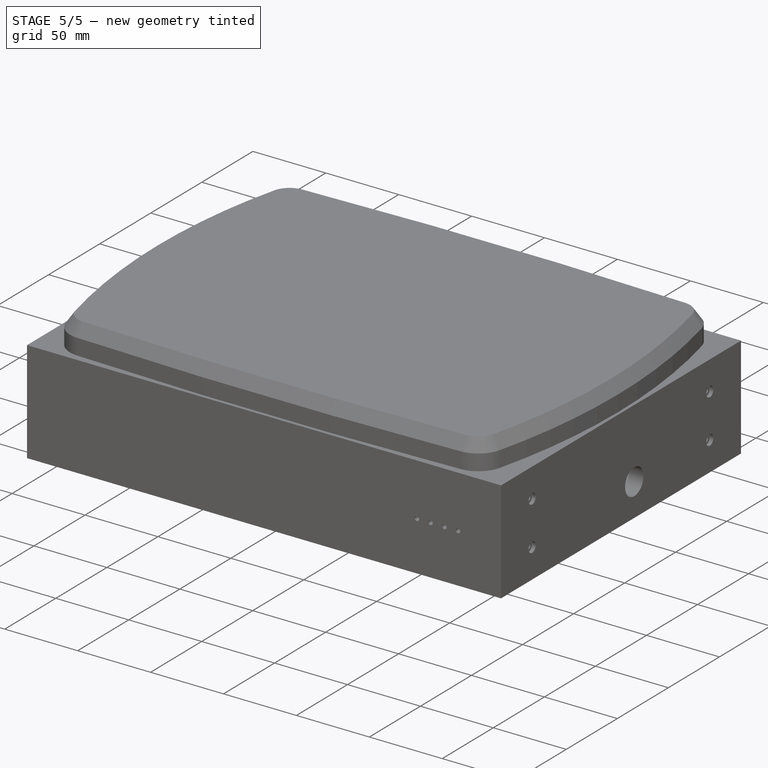
[diagram: stage 5 of 5 — iso view after this stage's code; geometry added in this stage tinted green]
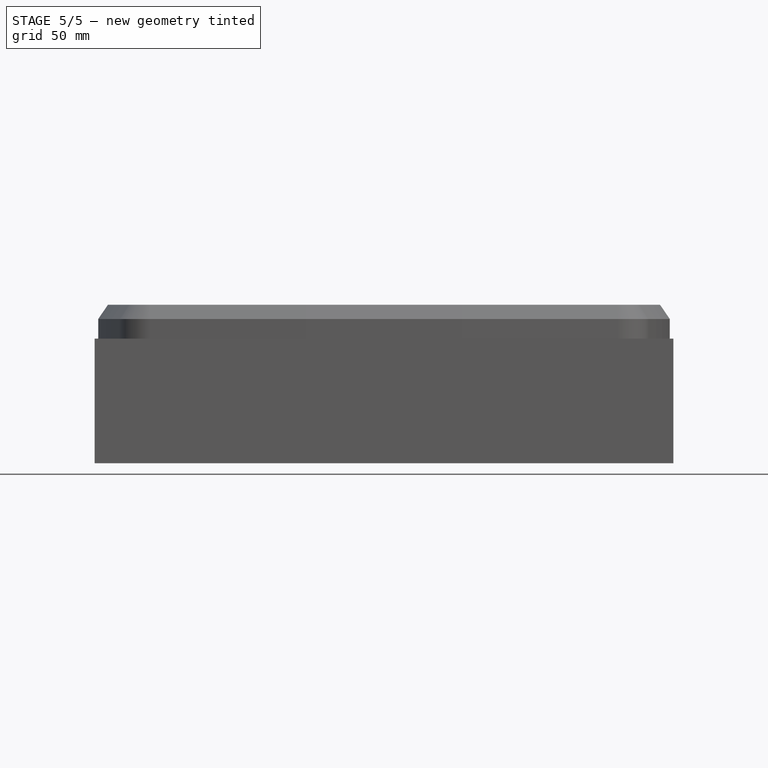
[diagram: stage 5 of 5 — front view after this stage's code; geometry added in this stage tinted green]
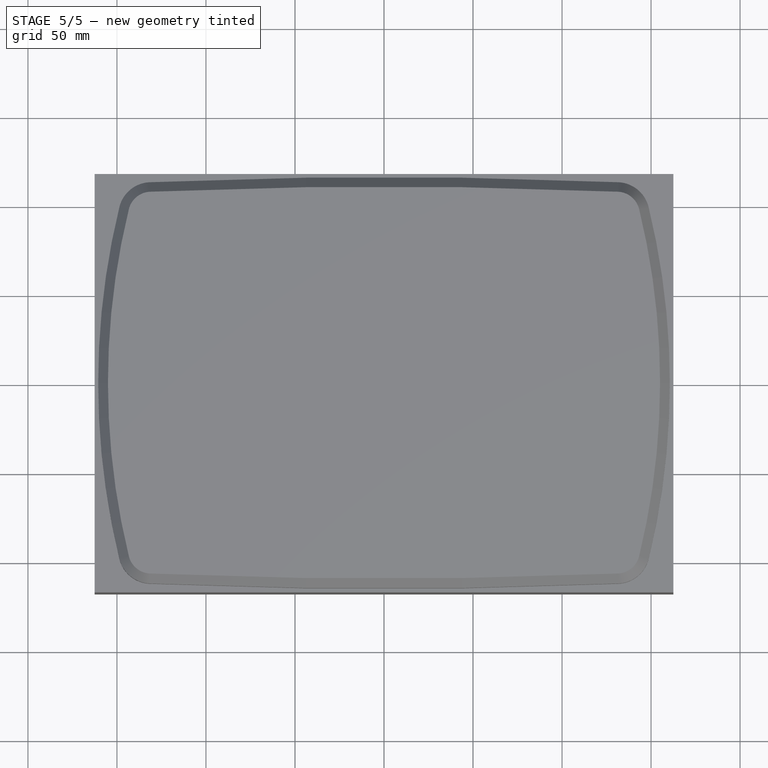
[diagram: stage 5 of 5 — top view after this stage's code; geometry added in this stage tinted green]
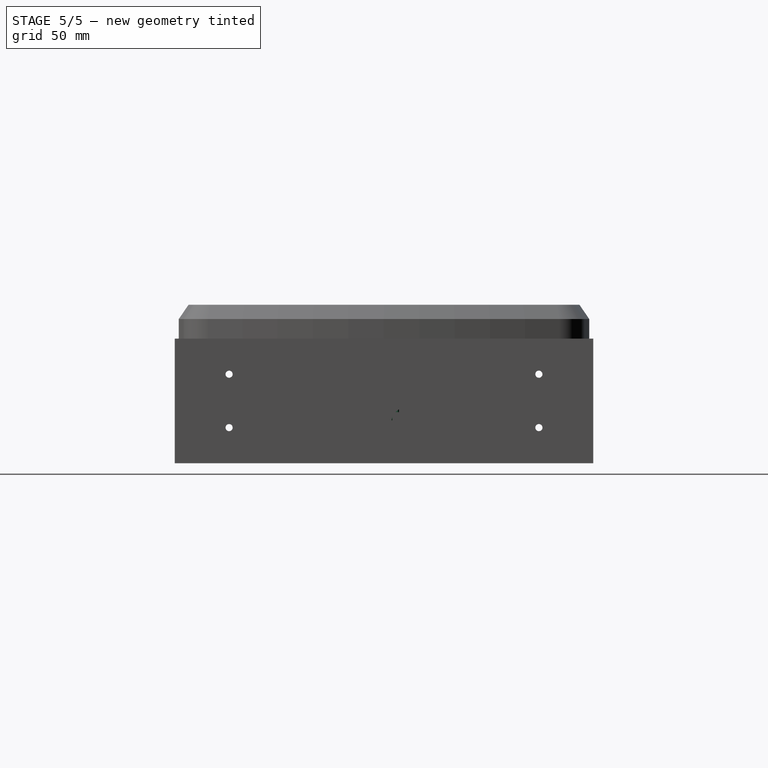
[diagram: stage 5 of 5 — right view after this stage's code; geometry added in this stage tinted green]
FEATURE [Sketcher::SketchObject] Sketch001  label="pcb001"
  MapMode = 5
  Support = -> [XY_Plane004]
  sketch-geometry (12):
    g0: LineSegment StartX=-47 StartY=57 StartZ=0 EndX=47 EndY=57 EndZ=0
    g1: LineSegment StartX=50 StartY=54 StartZ=0 EndX=50 EndY=1e-12 EndZ=0
    g2: LineSegment StartX=47 StartY=-3 StartZ=0 EndX=-47 EndY=-3 EndZ=0
    g3: LineSegment StartX=-50 StartY=0 StartZ=0 EndX=-50 EndY=54 EndZ=0
    g4: ArcOfCircle CenterX=-47 CenterY=54 CenterZ=0 NormalX=0 NormalY=0 NormalZ=1 AngleXU=0 Radius=3 StartAngle=1.5708 EndAngle=3.14159
    g5: ArcOfCircle CenterX=47 CenterY=54 CenterZ=0 NormalX=0 NormalY=0 NormalZ=1 AngleXU=0 Radius=3 StartAngle=0 EndAngle=1.5708
    g6: ArcOfCircle CenterX=47 CenterY=0 CenterZ=0 NormalX=0 NormalY=0 NormalZ=1 AngleXU=0 Radius=3 StartAngle=4.71239 EndAngle=6.28319
    g7: ArcOfCircle CenterX=-47 CenterY=0 CenterZ=0 NormalX=0 NormalY=0 NormalZ=1 AngleXU=0 Radius=3 StartAngle=3.14159 EndAngle=4.71239
    g8: Circle CenterX=-47 CenterY=54 CenterZ=0 NormalX=0 NormalY=0 NormalZ=1 AngleXU=0 Radius=1.5
    g9: Circle CenterX=-47 CenterY=0 CenterZ=0 NormalX=0 NormalY=0 NormalZ=1 AngleXU=0 Radius=1.5
    g10: Circle CenterX=47 CenterY=0 CenterZ=0 NormalX=0 NormalY=0 NormalZ=1 AngleXU=0 Radius=1.5
    g11: Circle CenterX=47 CenterY=54 CenterZ=0 NormalX=0 NormalY=0 NormalZ=1 AngleXU=0 Radius=1.5
  constraints (28):
    c: Horizontal(g0)
    c: Horizontal(g2)
    c: Vertical(g1)
    c: Vertical(g3)
    c: Tangent(g0,g4) = 1.5708
    c: Tangent(g3,g4) = 1.5708
    c: Tangent(g0,g5) = 1.5708
    c: Tangent(g1,g5) = 1.5708
    c: Tangent(g1,g6) = 1.5708
    c: Tangent(g2,g6) = 1.5708
    c: Tangent(g2,g7) = 1.5708
    c: Tangent(g3,g7) = 1.5708
    c: Equal(g5,g4)
    c: Equal(g4,g7)
    c: Equal(g7,g6)
    c: DistanceX(g0,g0) = 94
    c: DistanceY(g3,g3) = 54
    c: DistanceX(g3,g1) = 100
    c: PointOnObject(g9,g-1)
    c: Radius(g8) = 1.5
    c: Equal(g8,g10)
    c: Equal(g8,g11)
    c: Equal(g8,g9)
    c: Coincident(g8,g4)
    c: Coincident(g9,g7)
    c: Coincident(g11,g5)
    c: Coincident(g10,g6)
    c: Symmetric(g7,g6,g-2)
FEATURE [Image::ImagePlane] ImagePlane  label="LCD_controller"
  Placement = pos=(-1.65,28.1,0) rot=(0,0,1;0rad)
  XSize = 112.9
  YSize = 75.2
FEATURE [PartDesign::Pad] Pad  label="PCB_base"
  Length = 1.63
  Length2 = 100
  Profile = -> Sketch001
  Reversed = true
  Type = 0
FEATURE [Sketcher::SketchObject] Sketch002  label="pwr"
  MapMode = 5
  Placement = pos=(0,-6.3,0) rot=(0,0.707107,0.707107;3.14159rad)
  sketch-geometry (5):
    g0: LineSegment StartX=-4.4 StartY=11 StartZ=0 EndX=4.4 EndY=11 EndZ=0
    g1: LineSegment StartX=4.4 StartY=11 StartZ=0 EndX=4.4 EndY=0 EndZ=0
    g2: LineSegment StartX=4.4 StartY=0 StartZ=0 EndX=-4.4 EndY=0 EndZ=0
    g3: LineSegment StartX=-4.4 StartY=0 StartZ=0 EndX=-4.4 EndY=11 EndZ=0
    g4: Circle CenterX=0 CenterY=6.45 CenterZ=0 NormalX=0 NormalY=0 NormalZ=1 AngleXU=0 Radius=3.15
  constraints (15):
    c: Coincident(g0,g1)
    c: Coincident(g1,g2)
    c: Coincident(g2,g3)
    c: Coincident(g3,g0)
    c: Horizontal(g0)
    c: Horizontal(g2)
    c: Vertical(g1)
    c: Vertical(g3)
    c: DistanceX(g0,g0) = 8.8
    c: DistanceY(g3,g3) = 11
    c: PointOnObject(g1,g-1)
    c: Radius(g4) = 3.15
    c: PointOnObject(g4,g-2)
    c: Symmetric(g2,g1,g-1)
    c: DistanceY(g-1,g4) = 6.45
FEATURE [Sketcher::SketchObject] Sketch003  label="pwr001"
  MapMode = 5
  Placement = pos=(0,-3,0) rot=(0,0.707107,0.707107;3.14159rad)
  sketch-geometry (5):
    g0: LineSegment StartX=4.4 StartY=0 StartZ=0 EndX=-4.4 EndY=0 EndZ=0
    g1: LineSegment StartX=-4.4 StartY=0 StartZ=0 EndX=-4.4 EndY=6.45 EndZ=0
    g2: LineSegment StartX=4.4 StartY=6.45 StartZ=0 EndX=4.4 EndY=0 EndZ=0
    g3: Circle CenterX=0 CenterY=6.45 CenterZ=0 NormalX=0 NormalY=0 NormalZ=1 AngleXU=0 Radius=3.15
    g4: ArcOfCircle CenterX=0 CenterY=6.45 CenterZ=0 NormalX=0 NormalY=0 NormalZ=1 AngleXU=0 Radius=4.4 StartAngle=1e-12 EndAngle=3.14159
  constraints (15):
    c: Coincident(g0,g1)
    c: Coincident(g2,g0)
    c: Horizontal(g0)
    c: Vertical(g1)
    c: Vertical(g2)
    c: PointOnObject(g-1,g0)
    c: Radius(g3) = 3.15
    c: DistanceX(g0,g0) = 8.8
    c: Coincident(g4,g3)
    c: Coincident(g4,g2)
    c: Coincident(g4,g1)
    c: PointOnObject(g3,g-2)
    c: Distance(g3,g0) = 6.45
    c: Equal(g1,g2)
    c: DistanceY(g1,g1) = 6.45
FEATURE [Sketcher::SketchObject] Sketch004  label="pwr002"
  MapMode = 5
  Placement = pos=(0,6,0) rot=(0,0.707107,0.707107;3.14159rad)
  sketch-geometry (4):
    g0: LineSegment StartX=4.4 StartY=0 StartZ=0 EndX=-4.4 EndY=0 EndZ=0
    g1: LineSegment StartX=-4.4 StartY=0 StartZ=0 EndX=-4.4 EndY=6.45 EndZ=0
    g2: LineSegment StartX=4.4 StartY=0 StartZ=0 EndX=4.4 EndY=6.45 EndZ=0
    g3: ArcOfCircle CenterX=0 CenterY=6.45 CenterZ=0 NormalX=0 NormalY=0 NormalZ=1 AngleXU=0 Radius=4.4 StartAngle=0 EndAngle=3.14159
  constraints (13):
    c: Coincident(g1,g0)
    c: Coincident(g2,g0)
    c: Horizontal(g0)
    c: Vertical(g1)
    c: Vertical(g2)
    c: PointOnObject(g-1,g0)
    c: DistanceX(g0,g0) = 8.8
    c: Equal(g2,g1)
    c: Coincident(g3,g2)
    c: Angle(g3) = 3.14159
    c: DistanceY(g1,g1) = 6.45
    c: Coincident(g3,g1)
    c: Symmetric(g0,g0,g-1)
FEATURE [Sketcher::SketchObject] Sketch005  label="pwr003"
  MapMode = 5
  Placement = pos=(0,6,0) rot=(0,0.707107,0.707107;3.14159rad)
  sketch-geometry (1):
    g0: Circle CenterX=0 CenterY=6.45 CenterZ=0 NormalX=0 NormalY=0 NormalZ=1 AngleXU=0 Radius=0.5
  constraints (2):
    c: Radius(g0) = 0.5
    c: DistanceY(g-1,g0) = 6.45
FEATURE [Sketcher::SketchObject] Sketch006  label="hdmi"
  MapMode = 5
  Support = -> [XY_Plane016]
  sketch-geometry (4):
    g0: LineSegment StartX=-7.25 StartY=6.05 StartZ=0 EndX=7.25 EndY=6.05 EndZ=0
    g1: LineSegment StartX=7.25 StartY=6.05 StartZ=0 EndX=7.25 EndY=-6.05 EndZ=0
    g2: LineSegment StartX=7.25 StartY=-6.05 StartZ=0 EndX=-7.25 EndY=-6.05 EndZ=0
    g3: LineSegment StartX=-7.25 StartY=-6.05 StartZ=0 EndX=-7.25 EndY=6.05 EndZ=0
  constraints (11):
    c: Coincident(g0,g1)
    c: Coincident(g1,g2)
    c: Coincident(g2,g3)
    c: Coincident(g3,g0)
    c: Horizontal(g0)
    c: Horizontal(g2)
    c: Vertical(g1)
    c: Vertical(g3)
    c: Symmetric(g0,g1,g-1)
    c: DistanceY(g3,g3) = 12.1
    c: DistanceX(g0,g0) = 14.5
FEATURE [PartDesign::Pad] Pad011  label="HDMI_block"
  Length = 6.2
  Length2 = 100
  Profile = -> Sketch006
  Type = 0
FEATURE [Sketcher::SketchObject] Sketch007  label="hdmi001"
  MapMode = 5
  Placement = pos=(0,-6.05,0) rot=(1,0,0;1.5708rad)
  Support = -> [Pad011]
  sketch-geometry (12):
    g0: LineSegment StartX=-7 StartY=5.9 StartZ=0 EndX=7 EndY=5.9 EndZ=0
    g1: LineSegment StartX=7 StartY=5.9 StartZ=0 EndX=7 EndY=3.1 EndZ=0
    g2: LineSegment StartX=7 StartY=3.1 StartZ=0 EndX=5.75519 EndY=2.80191 EndZ=0
    g3: LineSegment StartX=5.75519 StartY=2.80191 StartZ=0 EndX=5.5 EndY=1.3 EndZ=0
    g4: LineSegment StartX=5.5 StartY=1.3 StartZ=0 EndX=-5.5 EndY=1.3 EndZ=0
    g5: LineSegment StartX=-5.5 StartY=1.3 StartZ=0 EndX=-5.75519 EndY=2.80191 EndZ=0
    g6: LineSegment StartX=-5.75519 StartY=2.80191 StartZ=0 EndX=-7 EndY=3.1 EndZ=0
    g7: LineSegment StartX=-7 StartY=3.1 StartZ=0 EndX=-7 EndY=5.9 EndZ=0
    g8: LineSegment StartX=-5.10889 StartY=3.65782 StartZ=0 EndX=5.10889 EndY=3.65782 EndZ=0
    g9: LineSegment StartX=5.10889 StartY=3.65782 StartZ=0 EndX=5.10889 EndY=3.35782 EndZ=0
    g10: LineSegment StartX=5.10889 StartY=3.35782 StartZ=0 EndX=-5.10889 EndY=3.35782 EndZ=0
    g11: LineSegment StartX=-5.10889 StartY=3.35782 StartZ=0 EndX=-5.10889 EndY=3.65782 EndZ=0
  constraints (33):
    c: Horizontal(g0)
    c: Coincident(g0,g1)
    c: Vertical(g1)
    c: Coincident(g1,g2)
    c: Coincident(g2,g3)
    c: Coincident(g3,g4)
    c: Horizontal(g4)
    c: Coincident(g4,g5)
    c: Coincident(g5,g6)
    c: Coincident(g6,g7)
    c: Coincident(g7,g0)
    c: Vertical(g7)
    c: Symmetric(g0,g0,g-2)
    c: Symmetric(g3,g4,g-2)
    c: Symmetric(g5,g2,g-2)
    c: Equal(g7,g1)
    c: Equal(g5,g3)
    c: Equal(g2,g6)
    c: Coincident(g8,g9)
    c: Coincident(g9,g10)
    c: Coincident(g10,g11)
    c: Coincident(g11,g8)
    c: Horizontal(g8)
    c: Horizontal(g10)
    c: Vertical(g9)
    c: Vertical(g11)
    c: Symmetric(g8,g8,g-2)
    c: DistanceY(g9,g9) = 0.3
    c: DistanceY(g7,g7) = 2.8
    c: DistanceY(g4,g0) = 4.6
    c: DistanceX(g0,g0) = 14
    c: DistanceX(g6,g4) = 1.5
    c: DistanceY(g-1,g3) = 1.3
FEATURE [Sketcher::SketchObject] Sketch013  label="com"
  MapMode = 5
  Placement = pos=(0,-0.3,0) rot=(0,0.707107,0.707107;3.14159rad)
  sketch-geometry (4):
    g0: LineSegment StartX=5.4 StartY=-6.25 StartZ=0 EndX=-5.4 EndY=-6.25 EndZ=0
    g1: LineSegment StartX=-5.4 StartY=-6.25 StartZ=0 EndX=-5.4 EndY=6.25 EndZ=0
    g2: LineSegment StartX=-5.4 StartY=6.25 StartZ=0 EndX=5.4 EndY=6.25 EndZ=0
    g3: LineSegment StartX=5.4 StartY=6.25 StartZ=0 EndX=5.4 EndY=-6.25 EndZ=0
  constraints (11):
    c: Coincident(g0,g1)
    c: Coincident(g1,g2)
    c: Coincident(g2,g3)
    c: Coincident(g3,g0)
    c: Horizontal(g0)
    c: Horizontal(g2)
    c: Vertical(g1)
    c: Vertical(g3)
    c: DistanceX(g2,g2) = 10.8
    c: Symmetric(g1,g0,g-1)
    c: DistanceY(g1,g1) = 12.5
FEATURE [Sketcher::SketchObject] Sketch014  label="com001"
  MapMode = 5
  Placement = pos=(0,0,0) rot=(1,0,0;1.5708rad)
  sketch-geometry (8):
    g0: LineSegment StartX=5.4 StartY=-6.25 StartZ=0 EndX=5.1 EndY=-6.25 EndZ=0
    g1: LineSegment StartX=5.1 StartY=-6.25 StartZ=0 EndX=5.1 EndY=6.25 EndZ=0
    g2: LineSegment StartX=5.1 StartY=6.25 StartZ=0 EndX=5.4 EndY=6.25 EndZ=0
    g3: LineSegment StartX=5.4 StartY=6.25 StartZ=0 EndX=5.4 EndY=-6.25 EndZ=0
    g4: LineSegment StartX=-5.1 StartY=-6.25 StartZ=0 EndX=-5.4 EndY=-6.25 EndZ=0
    g5: LineSegment StartX=-5.4 StartY=-6.25 StartZ=0 EndX=-5.4 EndY=6.25 EndZ=0
    g6: LineSegment StartX=-5.4 StartY=6.25 StartZ=0 EndX=-5.1 EndY=6.25 EndZ=0
    g7: LineSegment StartX=-5.1 StartY=6.25 StartZ=0 EndX=-5.1 EndY=-6.25 EndZ=0
  constraints (23):
    c: Coincident(g0,g1)
    c: Coincident(g1,g2)
    c: Coincident(g2,g3)
    c: Coincident(g3,g0)
    c: Horizontal(g0)
    c: Horizontal(g2)
    c: Vertical(g1)
    c: Vertical(g3)
    c: DistanceX(g0,g0) = 0.3
    c: Coincident(g4,g5)
    c: Coincident(g5,g6)
    c: Coincident(g6,g7)
    c: Coincident(g7,g4)
    c: Horizontal(g4)
    c: Horizontal(g6)
    c: Vertical(g5)
    c: Vertical(g7)
    c: Equal(g0,g4) = 0.3
    c: Symmetric(g2,g4,g-1)
    c: DistanceX(g4,g0) = 10.8
    c: DistanceY(g3,g3) = 12.5
    c: Equal(g3,g7)
    c: Symmetric(g2,g0,g-1)
FEATURE [Sketcher::SketchObject] Sketch015  label="com002"
  MapMode = 5
  Placement = pos=(0,-0.3,0) rot=(0,0.707107,0.707107;3.14159rad)
  sketch-geometry (2):
    g0: Circle CenterX=0 CenterY=0 CenterZ=0 NormalX=0 NormalY=0 NormalZ=1 AngleXU=0 Radius=4.15
    g1: Circle CenterX=0 CenterY=0 CenterZ=0 NormalX=0 NormalY=0 NormalZ=1 AngleXU=0 Radius=1.65
  constraints (4):
    c: Coincident(g0,g-1)
    c: Radius(g0) = 4.15
    c: Coincident(g1,g-1)
    c: Radius(g1) = 1.65
FEATURE [Sketcher::SketchObject] Sketch016  label="musb"
  MapMode = 5
  Placement = pos=(0,-3,0) rot=(0,0.707107,0.707107;3.14159rad)
  sketch-geometry (28):
    g0: LineSegment StartX=-3.565 StartY=1.175 StartZ=0 EndX=3.565 EndY=1.175 EndZ=0
    g1: LineSegment StartX=3.8 StartY=0.94 StartZ=0 EndX=3.8 EndY=-0.075 EndZ=0
    g2: LineSegment StartX=3.62797 StartY=-0.490317 StartZ=0 EndX=3.11532 EndY=-1.00297 EndZ=0
    g3: LineSegment StartX=2.7 StartY=-1.175 StartZ=0 EndX=-2.7 EndY=-1.175 EndZ=0
    g4: LineSegment StartX=-3.11532 StartY=-1.00297 StartZ=0 EndX=-3.62797 EndY=-0.490317 EndZ=0
    g5: LineSegment StartX=-3.8 StartY=-0.075 StartZ=0 EndX=-3.8 EndY=0.94 EndZ=0
    g6: GeomPoint [constr] X=0 Y=1.175 Z=0
    g7: GeomPoint [constr] X=0 Y=-1.175 Z=0
    g8: ArcOfCircle CenterX=-3.565 CenterY=0.94 CenterZ=0 NormalX=0 NormalY=0 NormalZ=1 AngleXU=0 Radius=0.235 StartAngle=1.5708 EndAngle=3.14159
    g9: ArcOfCircle CenterX=3.565 CenterY=0.94 CenterZ=0 NormalX=0 NormalY=0 NormalZ=1 AngleXU=0 Radius=0.235 StartAngle=0 EndAngle=1.5708
    g10: ArcOfCircle CenterX=3.21265 CenterY=-0.075 CenterZ=0 NormalX=0 NormalY=0 NormalZ=1 AngleXU=0 Radius=0.587348 StartAngle=5.49779 EndAngle=6.28319
    g11: ArcOfCircle CenterX=2.7 CenterY=-0.587652 CenterZ=0 NormalX=0 NormalY=0 NormalZ=1 AngleXU=0 Radius=0.587348 StartAngle=4.71239 EndAngle=5.49779
    g12: ArcOfCircle CenterX=-2.7 CenterY=-0.587652 CenterZ=0 NormalX=0 NormalY=0 NormalZ=1 AngleXU=0 Radius=0.587348 StartAngle=3.92699 EndAngle=4.71239
    g13: ArcOfCircle CenterX=-3.21265 CenterY=-0.075 CenterZ=0 NormalX=0 NormalY=0 NormalZ=1 AngleXU=0 Radius=0.587348 StartAngle=3.14159 EndAngle=3.92699
    g14: LineSegment StartX=-3.37336 StartY=0.935 StartZ=0 EndX=3.37336 EndY=0.935 EndZ=0
    g15: LineSegment StartX=3.55 StartY=0.758361 StartZ=0 EndX=3.55 EndY=-0.0779671 EndZ=0
    g16: LineSegment StartX=3.45327 StartY=-0.311484 StartZ=0 EndX=2.93648 EndY=-0.828274 EndZ=0
    g17: LineSegment StartX=2.70297 StartY=-0.925 StartZ=0 EndX=-2.70297 EndY=-0.925 EndZ=0
    g18: LineSegment StartX=-2.93648 StartY=-0.828274 StartZ=0 EndX=-3.45327 EndY=-0.311484 EndZ=0
    g19: LineSegment StartX=-3.55 StartY=-0.0779671 StartZ=0 EndX=-3.55 EndY=0.758361 EndZ=0
    g20: GeomPoint [constr] X=0 Y=0.935 Z=0
    g21: GeomPoint [constr] X=0 Y=-0.925 Z=0
    g22: ArcOfCircle CenterX=-3.37336 CenterY=0.758361 CenterZ=0 NormalX=0 NormalY=0 NormalZ=1 AngleXU=0 Radius=0.176639 StartAngle=1.5708 EndAngle=3.14159
    g23: ArcOfCircle CenterX=3.37336 CenterY=0.758361 CenterZ=0 NormalX=0 NormalY=0 NormalZ=1 AngleXU=0 Radius=0.176639 StartAngle=0 EndAngle=1.5708
    g24: ArcOfCircle CenterX=3.21976 CenterY=-0.0779671 CenterZ=0 NormalX=0 NormalY=0 NormalZ=1 AngleXU=0 Radius=0.330243 StartAngle=5.49779 EndAngle=6.28319
    g25: ArcOfCircle CenterX=2.70297 CenterY=-0.594757 CenterZ=0 NormalX=0 NormalY=0 NormalZ=1 AngleXU=0 Radius=0.330243 StartAngle=4.71239 EndAngle=5.49779
    g26: ArcOfCircle CenterX=-2.70297 CenterY=-0.594757 CenterZ=0 NormalX=0 NormalY=0 NormalZ=1 AngleXU=0 Radius=0.330243 StartAngle=3.92699 EndAngle=4.71239
    g27: ArcOfCircle CenterX=-3.21976 CenterY=-0.0779671 CenterZ=0 NormalX=0 NormalY=0 NormalZ=1 AngleXU=0 Radius=0.330243 StartAngle=3.14159 EndAngle=3.92699
  constraints (58):
    c: Horizontal(g0)
    c: Horizontal(g3)
    c: PointOnObject(g7,g3)
    c: PointOnObject(g6,g0)
    c: Vertical(g5)
    c: Vertical(g1)
    c: Equal(g5,g1)
    c: Equal(g4,g2)
    c: Tangent(g0,g8) = 1.5708
    c: Tangent(g5,g8) = 1.5708
    c: Tangent(g0,g9) = 1.5708
    c: Tangent(g1,g9) = 1.5708
    c: Tangent(g1,g10) = 1.5708
    c: Tangent(g2,g10) = 1.5708
    c: Tangent(g2,g11) = 1.5708
    c: Tangent(g3,g11) = 1.5708
    c: Tangent(g3,g12) = 1.5708
    c: Tangent(g4,g12) = 1.5708
    c: Tangent(g4,g13) = 1.5708
    c: Tangent(g5,g13) = 1.5708
    c: Equal(g9,g8)
    c: Symmetric(g0,g0,g6)
    c: Angle(g12) = 0.785398
    c: DistanceX(g5,g1) = 7.6
    c: DistanceX(g3,g3) = 5.4
    c: Equal(g12,g13)
    c: Equal(g13,g10)
    c: Equal(g10,g11)
    c: Horizontal(g14)
    c: Horizontal(g17)
    c: PointOnObject(g21,g17)
    c: PointOnObject(g20,g14)
    c: Vertical(g19)
    c: Vertical(g15)
    c: Equal(g19,g15)
    c: Equal(g18,g16)
    c: Tangent(g14,g22) = 1.5708
    c: Tangent(g19,g22) = 1.5708
    c: Tangent(g14,g23) = 1.5708
    c: Tangent(g15,g23) = 1.5708
    c: Tangent(g15,g24) = 1.5708
    c: Tangent(g16,g24) = 1.5708
    c: Tangent(g16,g25) = 1.5708
    c: Tangent(g17,g25) = 1.5708
    c: Tangent(g17,g26) = 1.5708
    c: Tangent(g18,g26) = 1.5708
    c: Tangent(g18,g27) = 1.5708
    c: Tangent(g19,g27) = 1.5708
    c: Equal(g23,g22)
    c: Symmetric(g14,g14,g20)
    c: DistanceX(g19,g15) = 7.1
    c: Equal(g26,g27)
    c: Equal(g27,g24)
    c: Equal(g24,g25)
    c: Angle(g26) = 0.785398
    c: Distance(g4,g18) = 0.25
    c: Distance(g4,g4) = 0.725
    c: DistanceY(g5,g5) = 1.015
FEATURE [Sketcher::SketchObject] Sketch017  label="musb001"
  MapMode = 5
  Placement = pos=(0,1.75,0) rot=(1,0,0;1.5708rad)
  sketch-geometry (14):
    g0: LineSegment StartX=3.56583 StartY=1.17459 StartZ=0 EndX=-3.56583 EndY=1.17459 EndZ=0
    g1: LineSegment StartX=-3.8 StartY=-0.0745863 StartZ=0 EndX=-3.8 EndY=0.940414 EndZ=0
    g2: LineSegment StartX=3.11532 StartY=-1.00256 StartZ=0 EndX=3.62797 EndY=-0.489904 EndZ=0
    g3: LineSegment StartX=-2.7 StartY=-1.17459 StartZ=0 EndX=2.7 EndY=-1.17459 EndZ=0
    g4: LineSegment StartX=-3.62797 StartY=-0.489904 StartZ=0 EndX=-3.11532 EndY=-1.00256 EndZ=0
    g5: LineSegment StartX=3.8 StartY=0.940414 StartZ=0 EndX=3.8 EndY=-0.0745863 EndZ=0
    g6: GeomPoint X=0 Y=1.17459 Z=0
    g7: GeomPoint X=0 Y=-1.17459 Z=0
    g8: ArcOfCircle CenterX=-3.21265 CenterY=-0.0745863 CenterZ=0 NormalX=0 NormalY=0 NormalZ=1 AngleXU=0 Radius=0.587348 StartAngle=3.14159 EndAngle=3.92699
    g9: ArcOfCircle CenterX=-3.56583 CenterY=0.940414 CenterZ=0 NormalX=0 NormalY=0 NormalZ=1 AngleXU=0 Radius=0.234173 StartAngle=1.5708 EndAngle=3.14159
    g10: ArcOfCircle CenterX=-2.7 CenterY=-0.587239 CenterZ=0 NormalX=0 NormalY=0 NormalZ=1 AngleXU=0 Radius=0.587348 StartAngle=3.92699 EndAngle=4.71239
    g11: ArcOfCircle CenterX=2.7 CenterY=-0.587239 CenterZ=0 NormalX=0 NormalY=0 NormalZ=1 AngleXU=0 Radius=0.587348 StartAngle=4.71239 EndAngle=5.49779
    g12: ArcOfCircle CenterX=3.21265 CenterY=-0.0745863 CenterZ=0 NormalX=0 NormalY=0 NormalZ=1 AngleXU=0 Radius=0.587348 StartAngle=5.49779 EndAngle=6.28319
    g13: ArcOfCircle CenterX=3.56583 CenterY=0.940414 CenterZ=0 NormalX=0 NormalY=0 NormalZ=1 AngleXU=0 Radius=0.234173 StartAngle=0 EndAngle=1.5708
  constraints (33):
    c: Horizontal(g0)
    c: Vertical(g1)
    c: Horizontal(g3)
    c: Vertical(g5)
    c: Equal(g1,g5)
    c: Equal(g4,g2)
    c: PointOnObject(g6,g0)
    c: PointOnObject(g6,g-2)
    c: PointOnObject(g7,g3)
    c: PointOnObject(g7,g-2)
    c: Tangent(g1,g8) = 1.5708
    c: Tangent(g4,g8) = -1.5708
    c: Tangent(g0,g9) = -1.5708
    c: Tangent(g1,g9) = 1.5708
    c: Tangent(g3,g10) = -1.5708
    c: Tangent(g4,g10) = -1.5708
    c: Tangent(g2,g11) = -1.5708
    c: Tangent(g3,g11) = -1.5708
    c: Tangent(g2,g12) = -1.5708
    c: Tangent(g5,g12) = 1.5708
    c: Tangent(g0,g13) = -1.5708
    c: Tangent(g5,g13) = 1.5708
    c: DistanceX(g1,g5) = 7.6
    c: Distance(g4) = 0.725
    c: DistanceY(g1,g1) = 1.015
    c: Equal(g8,g10)
    c: Equal(g10,g11)
    c: Equal(g11,g12)
    c: Angle(g8) = 0.785398
    c: Symmetric(g0,g0,g6)
    c: Symmetric(g3,g3,g7)
    c: Symmetric(g6,g7,g-1)
    c: DistanceX(g3,g3) = 5.4
FEATURE [Sketcher::SketchObject] Sketch018  label="musb002"
  MapMode = 5
  Placement = pos=(0,1.75,0) rot=(0,0.707107,0.707107;3.14159rad)
  sketch-geometry (4):
    g0: LineSegment StartX=-1.625 StartY=0.65 StartZ=0 EndX=1.625 EndY=0.65 EndZ=0
    g1: LineSegment StartX=1.625 StartY=0.65 StartZ=0 EndX=1.625 EndY=0.35 EndZ=0
    g2: LineSegment StartX=1.625 StartY=0.35 StartZ=0 EndX=-1.625 EndY=0.35 EndZ=0
    g3: LineSegment StartX=-1.625 StartY=0.35 StartZ=0 EndX=-1.625 EndY=0.65 EndZ=0
  constraints (12):
    c: Coincident(g0,g1)
    c: Coincident(g1,g2)
    c: Coincident(g2,g3)
    c: Coincident(g3,g0)
    c: Horizontal(g0)
    c: Horizontal(g2)
    c: Vertical(g1)
    c: Vertical(g3)
    c: Symmetric(g0,g0,g-2)
    c: DistanceX(g0,g0) = 3.25
    c: Distance(g-1,g2) = 0.35
    c: DistanceY(g3,g3) = 0.3
FEATURE [PartDesign::Pad] Pad023  label="MUSB_pins"
  Length = 4
  Length2 = 100
  Placement = pos=(0,1.75,0) rot=(0,0.707107,0.707107;3.14159rad)
  Profile = -> Sketch018
  Reversed = true
  Type = 0
FEATURE [PartDesign::Pad] Pad022  label="MUSB_back"
  BaseFeature = -> Pad023
  Length = 0.25
  Length2 = 100
  Placement = pos=(0,1.75,0) rot=(0,0.707107,0.707107;3.14159rad)
  Profile = -> Sketch017
  Reversed = true
  Type = 0
FEATURE [PartDesign::Pad] Pad021  label="MUSB_socket"
  BaseFeature = -> Pad022
  Length = 4.75
  Length2 = 100
  Placement = pos=(0,1.75,0) rot=(0,0.707107,0.707107;3.14159rad)
  Profile = -> Sketch016
  Type = 0
FEATURE [Sketcher::SketchObject] Sketch060
  MapMode = 5
  Placement = pos=(0,0,0.3) rot=(0,0,1;0rad)
  sketch-geometry (8):
    g0: LineSegment StartX=5.5 StartY=0 StartZ=0 EndX=2.75 EndY=4.76314 EndZ=0
    g1: LineSegment StartX=2.75 StartY=4.76314 StartZ=0 EndX=-2.75 EndY=4.76314 EndZ=0
    g2: LineSegment StartX=-2.75 StartY=4.76314 StartZ=0 EndX=-5.5 EndY=0 EndZ=0
    g3: LineSegment StartX=-5.5 StartY=0 StartZ=0 EndX=-2.75 EndY=-4.76314 EndZ=0
    g4: LineSegment StartX=-2.75 StartY=-4.76314 StartZ=0 EndX=2.75 EndY=-4.76314 EndZ=0
    g5: LineSegment StartX=2.75 StartY=-4.76314 StartZ=0 EndX=5.5 EndY=0 EndZ=0
    g6: Circle [constr] CenterX=0 CenterY=0 CenterZ=0 NormalX=0 NormalY=0 NormalZ=1 AngleXU=0 Radius=5.5
    g7: Circle CenterX=0 CenterY=0 CenterZ=0 NormalX=0 NormalY=0 NormalZ=1 AngleXU=0 Radius=3.3
  constraints (18):
    c: Coincident(g0,g1)
    c: Coincident(g1,g2)
    c: Coincident(g2,g3)
    c: Coincident(g3,g4)
    c: Coincident(g4,g5)
    c: Coincident(g5,g0)
    c: Equal(g0, g1-g5) x5
    c: PointOnObject(g0,g6)
    c: PointOnObject(g1,g6)
    c: PointOnObject(g2,g6)
    c: PointOnObject(g3,g6)
    c: PointOnObject(g4,g6)
    c: PointOnObject(g5,g6)
    c: Coincident(g6,g-1)
    c: Horizontal(g1)
    c: Radius(g6) = 5.5
    c: Radius(g7) = 3.3
    c: Coincident(g7,g-1)
FEATURE [Part::Box] Box013  label="GRILL_shield"
  AttacherType = Attacher::AttachEngine3D
  Height = 1
  Length = 70
  Placement = pos=(-36,-30,0) rot=(0,0,1;0rad)
  Width = 60
FEATURE [Part::Cylinder] Cylinder005  label="GRILL_hole"
  Angle = 360
  AttacherType = Attacher::AttachEngine3D
  Height = 1
  Placement = pos=(-30,-25,0) rot=(0,0,1;0rad)
  Radius = 1.5
FEATURE [Part::FeaturePython] Array003  label="GRILL_holes"  # Draft array (typed FeaturePython)
  Angle = 0
  ArrayType = 0
  Axis = (0,0,1)
  Base = -> Cylinder005
  Center = (0,0,0)
  Fuse = false
  IntervalAxis = (0,0,0)
  IntervalX = (4.8333,0,0)
  IntervalY = (0,4.9,0)
  IntervalZ = (0,0,0)
  NumberPolar = 0
  NumberX = 13
  NumberY = 11
  NumberZ = 1
FEATURE [Part::Cylinder] Cylinder006  label="GRILL_hole001"
  Angle = 360
  AttacherType = Attacher::AttachEngine3D
  Height = 1
  Placement = pos=(-27.5,-22.5,0) rot=(0,0,1;0rad)
  Radius = 1.5
FEATURE [Part::FeaturePython] Array004  label="GRILL_holes001"  # Draft array (typed FeaturePython)
  Angle = 0
  ArrayType = 0
  Axis = (0,0,1)
  Base = -> Cylinder006
  Center = (0,0,0)
  Fuse = false
  IntervalAxis = (0,0,0)
  IntervalX = (4.8333,0,0)
  IntervalY = (0,4.9,0)
  IntervalZ = (0,7,0)
  NumberPolar = 0
  NumberX = 12
  NumberY = 10
  NumberZ = 1
FEATURE [Part::Cut] Cut010  label="GRILL_cut"
  Base = -> Box013
  Tool = -> Array003
FEATURE [Part::Cut] Cut011  label="GRILL"
  Base = -> Cut010
  Placement = pos=(-109,-7,-54.3) rot=(0,0,1;0rad)
  Tool = -> Array004
FEATURE [Part::Box] Box014  label="GRILL_shield001"
  AttacherType = Attacher::AttachEngine3D
  Height = 1
  Length = 37
  Placement = pos=(-34,-28,0) rot=(0,0,1;0rad)
  Width = 45
FEATURE [Part::Cylinder] Cylinder008  label="GRILL_hole002"
  Angle = 360
  AttacherType = Attacher::AttachEngine3D
  Height = 1
  Placement = pos=(-30,-25,0) rot=(0,0,1;0rad)
  Radius = 1.5
FEATURE [Part::FeaturePython] Array005  label="GRILL_holes002"  # Draft array (typed FeaturePython)
  Angle = 0
  ArrayType = 0
  Axis = (0,0,1)
  Base = -> Cylinder008
  Center = (0,0,0)
  Fuse = false
  IntervalAxis = (0,0,0)
  IntervalX = (4.975,0,0)
  IntervalY = (0,4.9666,0)
  IntervalZ = (0,0,0)
  NumberPolar = 0
  NumberX = 7
  NumberY = 9
  NumberZ = 1
FEATURE [Part::Cylinder] Cylinder009  label="GRILL_hole003"
  Angle = 360
  AttacherType = Attacher::AttachEngine3D
  Height = 1
  Placement = pos=(-27.5,-22.5,0) rot=(0,0,1;0rad)
  Radius = 1.5
FEATURE [Part::FeaturePython] Array006  label="GRILL_holes003"  # Draft array (typed FeaturePython)
  Angle = 0
  ArrayType = 0
  Axis = (0,0,1)
  Base = -> Cylinder009
  Center = (0,0,0)
  Fuse = false
  IntervalAxis = (0,0,0)
  IntervalX = (4.975,0,0)
  IntervalY = (0,4.9666,0)
  IntervalZ = (0,7,0)
  NumberPolar = 0
  NumberX = 6
  NumberY = 8
  NumberZ = 1
FEATURE [Part::Cut] Cut012  label="GRILL_cut001"
  Base = -> Box014
  Tool = -> Array005
FEATURE [Part::Cut] Cut013  label="GRILL001"
  Base = -> Cut012
  Placement = pos=(34.55,-4.3,-54.3) rot=(0,0,1;0rad)
  Tool = -> Array006
FEATURE [PartDesign::Pocket] Pocket  label="HDMI_cutout"
  BaseFeature = -> Pad011
  Length = 6
  Length2 = 100
  Profile = -> Sketch007
  Type = 0
FEATURE [PartDesign::Body] Pad019Body  label="COM001"
  Group = -> [Sketch015,Sketch014,Sketch013,Pad072,Pad073,Pad074,Chamfer,Fillet]
  Origin = -> Origin009
  Placement = pos=(28.1,0,6.25) rot=(0,0,1;0rad)
  Tip = -> Fillet
FEATURE [PartDesign::Pad] Pad034  label="LOCK_rail"
  Length = 22
  Length2 = 100
  Placement = pos=(0,8.2,0) rot=(0,0,1;0rad)
  Profile = -> Sketch029
  Reversed = true
  Type = 0
FEATURE [PartDesign::Pad] Pad080  label="CASE2_screen2"
  Length = 1
  Length2 = 100
  Profile = -> Sketch067
  Reversed = true
  Type = 0
FEATURE [PartDesign::Pad] Pad081
  Length = 7
  Length2 = 100
  Profile = -> Sketch025
  Type = 0
FEATURE [PartDesign::Pad] Pad082
  Length = 4.6
  Length2 = 100
  Placement = pos=(-5.35,4.45,-35.3) rot=(0,1,0;3.14159rad)
  Profile = -> Sketch028
  Type = 0
FEATURE [PartDesign::Pad] Pad083
  BaseFeature = -> Pad081
  Length = 16
  Length2 = 100
  Profile = -> Sketch026
  Type = 0
FEATURE [PartDesign::Fillet] Fillet005
  Base = -> Pad083 [Edge3]
  BaseFeature = -> Pad083
  Radius = 3
FEATURE [PartDesign::Body] Body005  label="LOCK_front"
  Group = -> [Sketch025,Pad081,Sketch026,Pad083,Fillet005]
  Origin = -> Origin072
  Tip = -> Fillet005
FEATURE [PartDesign::Fillet] Fillet006
  Base = -> Pad082 [Edge7,Edge12]
  BaseFeature = -> Pad082
  Placement = pos=(-5.35,4.45,-35.3) rot=(0,1,0;3.14159rad)
  Radius = 1.34
FEATURE [PartDesign::Body] Body004  label="LOCK_pin"
  Group = -> [Sketch028,Pad082,Fillet006]
  Origin = -> Origin071
  Tip = -> Fillet006
FEATURE [Sketcher::SketchObject] Sketch068  label="lock007"
  MapMode = 5
  Placement = pos=(-6.45,-5.85,-35.3) rot=(0.707107,0.707107,0;3.14159rad)
  sketch-geometry (4):
    g0: LineSegment StartX=-1.35 StartY=0.25 StartZ=0 EndX=1.35 EndY=0.25 EndZ=0
    g1: LineSegment StartX=1.35 StartY=0.25 StartZ=0 EndX=1.35 EndY=-0.25 EndZ=0
    g2: LineSegment StartX=1.35 StartY=-0.25 StartZ=0 EndX=-1.35 EndY=-0.25 EndZ=0
    g3: LineSegment StartX=-1.35 StartY=-0.25 StartZ=0 EndX=-1.35 EndY=0.25 EndZ=0
  constraints (11):
    c: Coincident(g0,g1)
    c: Coincident(g1,g2)
    c: Coincident(g2,g3)
    c: Coincident(g3,g0)
    c: Horizontal(g0)
    c: Horizontal(g2)
    c: Vertical(g1)
    c: Vertical(g3)
    c: DistanceX(g0,g0) = 2.7
    c: DistanceY(g3,g3) = 0.5
    c: Symmetric(g1,g0,g-1)
FEATURE [PartDesign::Pad] Pad084
  Length = 4.6
  Length2 = 100
  Placement = pos=(-6.45,-5.85,-35.3) rot=(0.707107,0.707107,0;3.14159rad)
  Profile = -> Sketch068
  Type = 0
FEATURE [PartDesign::Fillet] Fillet007
  Base = -> Pad084 [Edge7,Edge12]
  BaseFeature = -> Pad084
  Placement = pos=(-6.45,-5.85,-35.3) rot=(0.707107,0.707107,0;3.14159rad)
  Radius = 1.34
FEATURE [PartDesign::Body] Body006  label="LOCK_pin001"
  Group = -> [Sketch068,Pad084,Fillet007]
  Origin = -> Origin073
  Tip = -> Fillet007
FEATURE [Part::FeaturePython] Array009  label="LOCK_pins"  # Draft array (typed FeaturePython)
  Angle = 360
  ArrayType = 0
  Axis = (0,0,1)
  Base = -> Body004
  Center = (0,0,0)
  Fuse = false
  IntervalAxis = (0,0,0)
  IntervalX = (10.7,0,0)
  IntervalY = (0,1,0)
  IntervalZ = (0,0,0)
  NumberPolar = 1
  NumberX = 2
  NumberY = 1
  NumberZ = 1
FEATURE [Part::FeaturePython] Array010  label="LOCK_pins001"  # Draft array (typed FeaturePython)
  Angle = 360
  ArrayType = 0
  Axis = (0,0,1)
  Base = -> Body006
  Center = (0,0,0)
  Fuse = false
  IntervalAxis = (0,0,0)
  IntervalX = (8,0,0)
  IntervalY = (0,1,0)
  IntervalZ = (0,0,0)
  NumberPolar = 1
  NumberX = 2
  NumberY = 1
  NumberZ = 1
FEATURE [Part::FeaturePython] Array011  label="LOCK_rails"  # Draft array (typed FeaturePython)
  Angle = 360
  ArrayType = 0
  Axis = (0,0,1)
  Base = -> Pad034
  Center = (0,0,0)
  Fuse = false
  IntervalAxis = (0,0,0)
  IntervalX = (1,0,0)
  IntervalY = (0,-16.4,0)
  IntervalZ = (0,0,0)
  NumberPolar = 1
  NumberX = 1
  NumberY = 2
  NumberZ = 1
FEATURE [PartDesign::Pad] Pad086
  Length = 1.8
  Length2 = 100
  Placement = pos=(-41,0,0) rot=(0.57735,0.57735,0.57735;2.0944rad)
  Profile = -> Sketch065
  Reversed = true
  Type = 0
FEATURE [PartDesign::Body] Body007  label="CASE_io_side004"
  Group = -> [Sketch065,Pad086]
  Origin = -> Origin075
  Tip = -> Pad086
FEATURE [PartDesign::Pad] Pad087
  Length = 1.8
  Length2 = 100
  Placement = pos=(0,0,-10) rot=(0,0,1;0rad)
  Profile = -> Sketch062
  Reversed = true
  Type = 0
FEATURE [PartDesign::Pad] Pad089
  Length = 1.8
  Length2 = 100
  Placement = pos=(0,-30,0) rot=(0,0.707107,0.707107;3.14159rad)
  Profile = -> Sketch064
  Type = 0
FEATURE [PartDesign::Body] Body010  label="CASE_io_side"
  Group = -> [Sketch064,Pad089]
  Origin = -> Origin078
  Tip = -> Pad089
FEATURE [PartDesign::Pad] Pad090
  Length = 1.8
  Length2 = 100
  Placement = pos=(0,30,0) rot=(1,0,0;1.5708rad)
  Profile = -> Sketch063
  Type = 0
FEATURE [PartDesign::Body] Body011  label="CASE_io_portside"
  Group = -> [Sketch063,Pad090]
  Origin = -> Origin079
  Tip = -> Pad090
FEATURE [PartDesign::Pad] Pad091
  Length = 3.15
  Length2 = 100
  Placement = pos=(0,0,-10.2) rot=(0,0,1;0rad)
  Profile = -> Sketch030
  Reversed = true
  Type = 0
FEATURE [PartDesign::Body] Body014  label="LOCK_nut"
  Group = -> [Sketch030,Pad091]
  Origin = -> Origin082
  Tip = -> Pad091
FEATURE [PartDesign::Pad] Pad092
  Length = 5.2
  Length2 = 100
  Placement = pos=(0,0,-3.5) rot=(0,0,1;0rad)
  Profile = -> Sketch031
  Reversed = true
  Type = 0
FEATURE [PartDesign::Body] Body012  label="LOCK_spacer"
  Group = -> [Sketch031,Pad092]
  Origin = -> Origin080
  Tip = -> Pad092
FEATURE [PartDesign::Pad] Pad093
  Length = 13.3
  Length2 = 100
  Placement = pos=(0,0,-22) rot=(0,0,1;0rad)
  Profile = -> Sketch027
  Reversed = true
  Type = 0
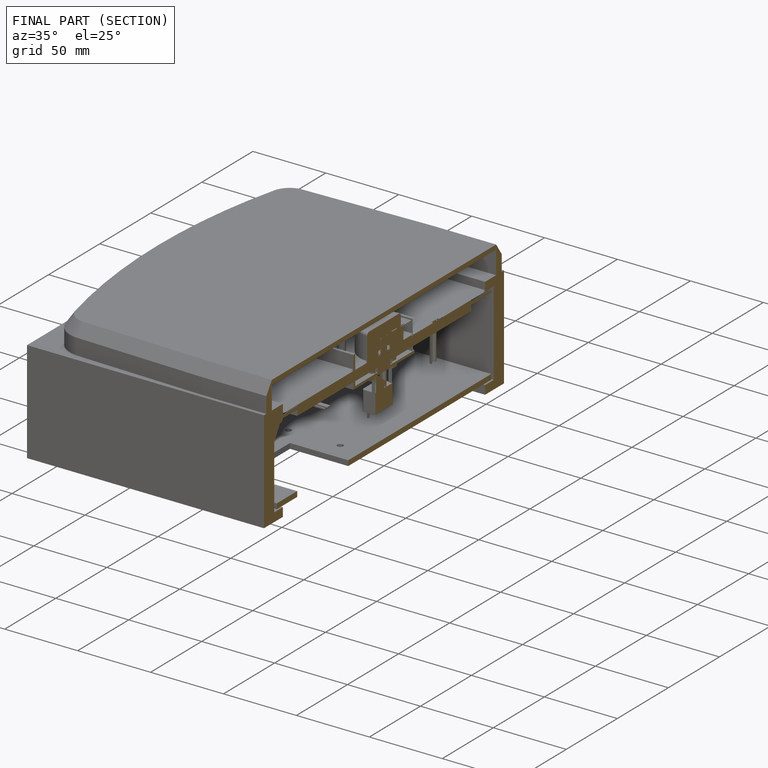
[diagram: finished part — half-section view (interior)]
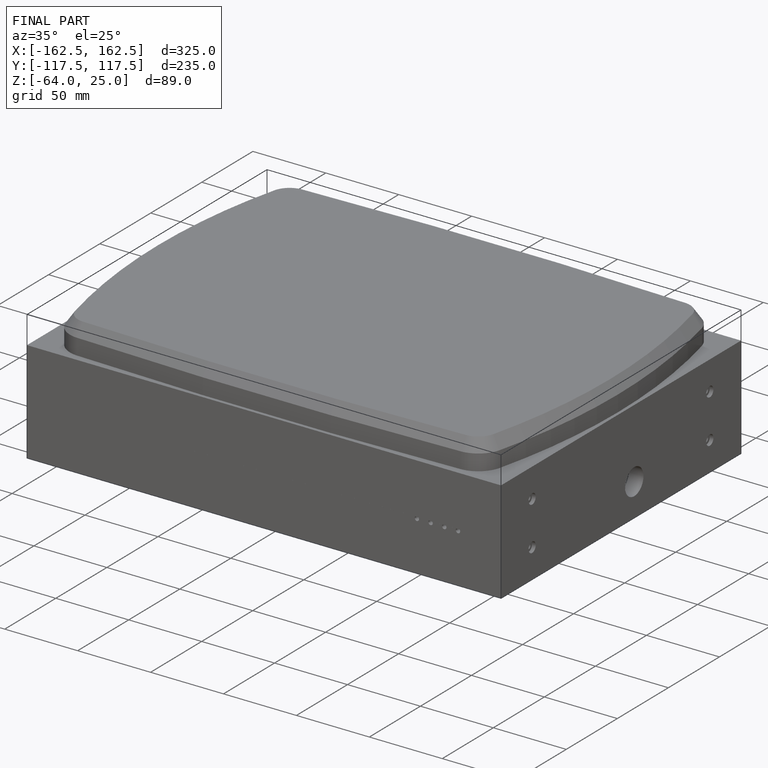
[diagram: finished part — iso view with bounding-box wireframe]
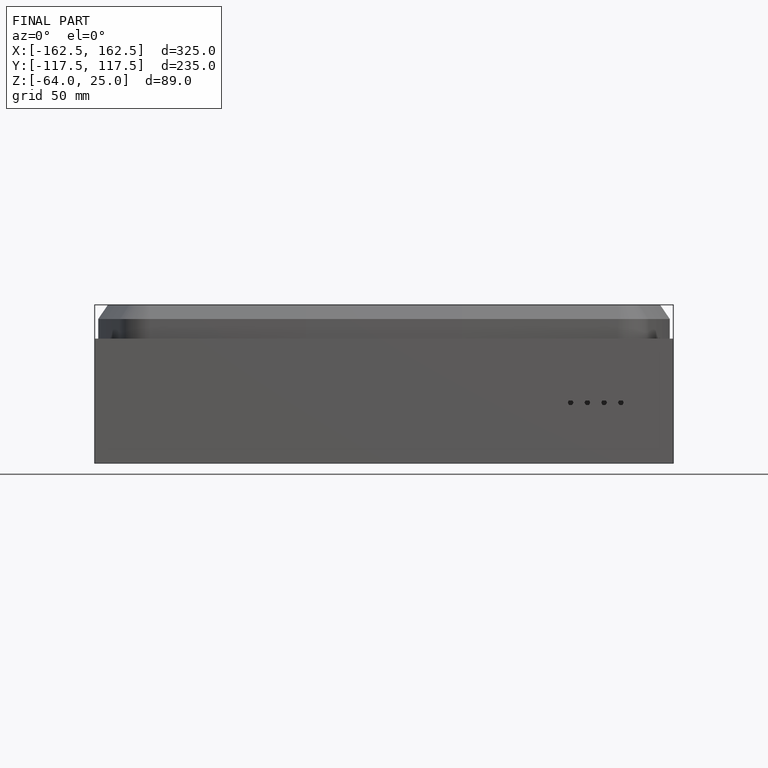
[diagram: finished part — front view with bounding-box wireframe]
